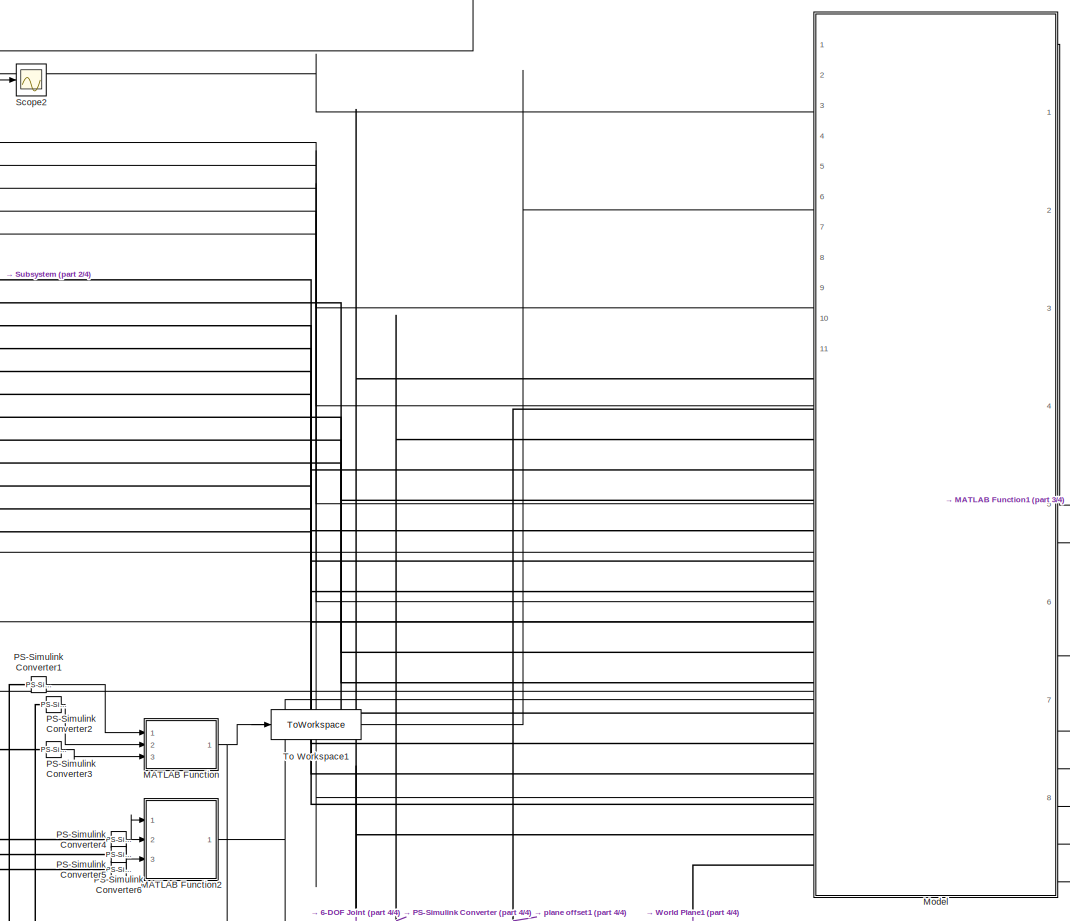
[diagram: root canvas - part 1/4, central region]
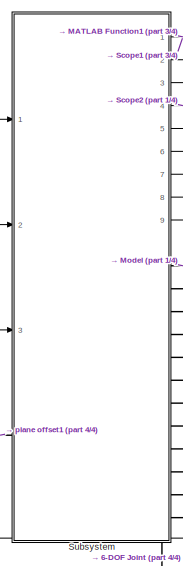
[diagram: root canvas - part 2/4, top left region]
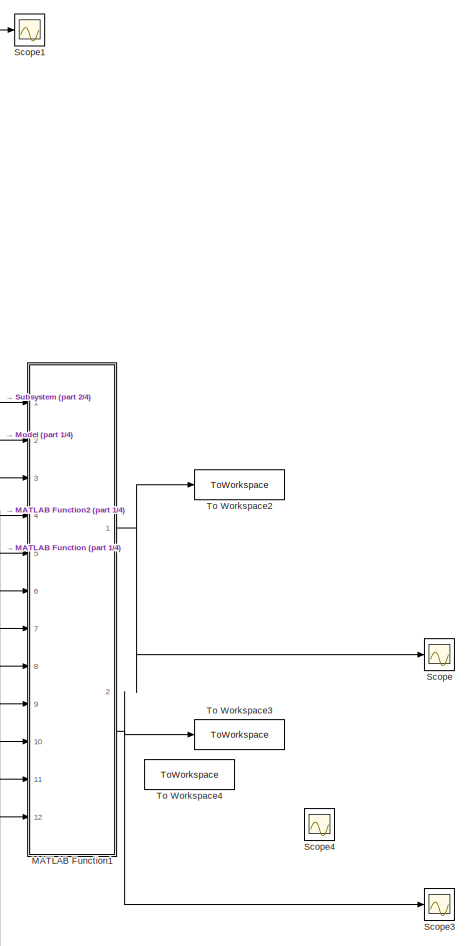
[diagram: root canvas - part 3/4, middle right region]
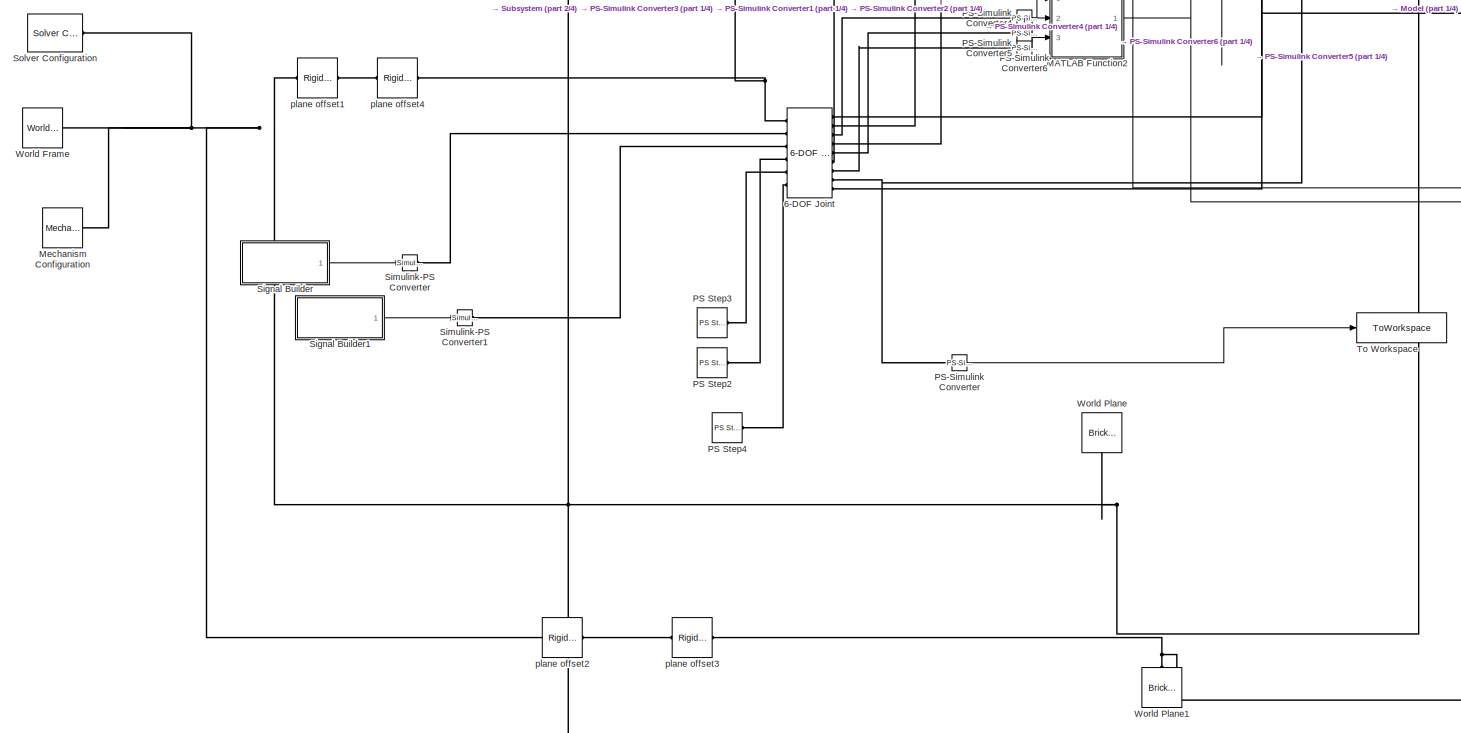
[diagram: root canvas - part 4/4, bottom left region]
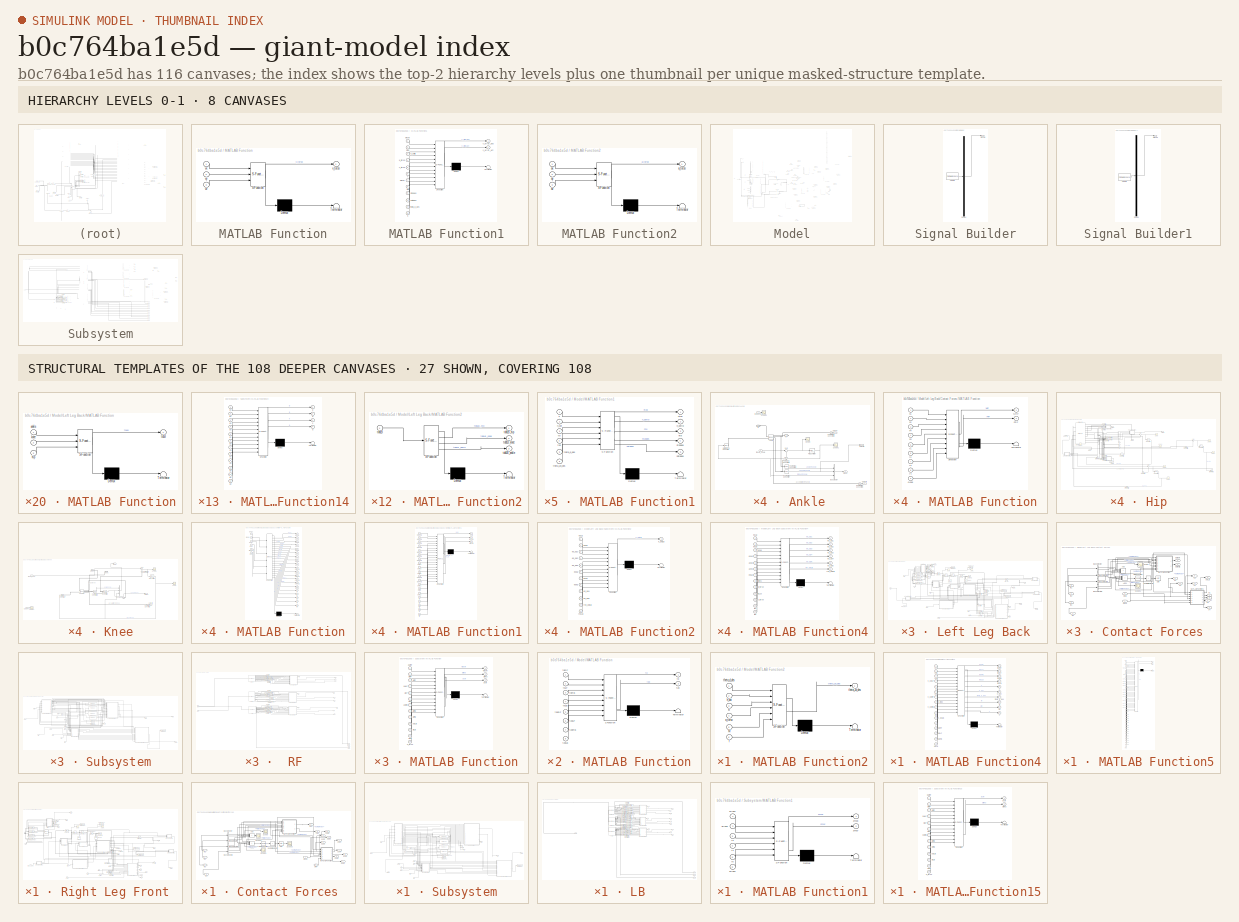
[diagram: thumbnail index - top-2 hierarchy levels (8 canvases) + 27 structural-template representatives of the remaining 108 canvases]
MODEL slx_b0c764ba1e5d
KIND model
CONFIG AbsTol = auto
CONFIG EnableMultiTasking = on
CONFIG FixedStep = 1e-3
CONFIG MaxStep = auto
CONFIG MinStep = auto
CONFIG RelTol = 1e-5
CONFIG SampleTimeConstraint = Unconstrained
CONFIG SolverName = ode15s
CONFIG StartTime = 0.0
CONFIG StopTime = 10
BLOCK [Reference] 6-DOF Joint  REF=sm_lib/Joints/6-DOF Joint
  Ports = [0, 0, 0, 0, 0, 6, 9]
  SourceBlock = sm_lib/Joints/6-DOF Joint
  SourceProductBaseCode = MS
  SourceType = 6-DOF Joint
BLOCK [SubSystem] MATLAB Function
  ErrorFcn = Stateflow.Translate.translate
  PermitHierarchicalResolution = ExplicitOnly
  Ports = [3, 1]
  RequestExecContextInheritance = off
  SFBlockType = MATLAB Function
  TreatAsAtomicUnit = on
BLOCK [Demux] MATLAB Function/ Demux 
  Outputs = 1
  Ports = [1, 1]
BLOCK [S-Function] MATLAB Function/ SFunction 
  EnableBusSupport = on
  FunctionName = sf_sfun
  PortCounts = [3 2]
  Ports = [3, 2]
  SFcnIsStateOwnerBlock = off
  SFunctionDeploymentMode = off
  Tag = Stateflow S-Function 14
BLOCK [Terminator] MATLAB Function/ Terminator 
BLOCK [Outport] MATLAB Function/v_torso
BLOCK [Inport] MATLAB Function/vx
BLOCK [Inport] MATLAB Function/vy
  Port = 2
BLOCK [Inport] MATLAB Function/vz
  Port = 3
BLOCK [SubSystem] MATLAB Function1
  ErrorFcn = Stateflow.Translate.translate
  PermitHierarchicalResolution = ExplicitOnly
  Ports = [12, 2]
  RequestExecContextInheritance = off
  SFBlockType = MATLAB Function
  TreatAsAtomicUnit = on
BLOCK [Demux] MATLAB Function1/ Demux 
  Outputs = 1
  Ports = [1, 1]
BLOCK [S-Function] MATLAB Function1/ SFunction 
  EnableBusSupport = on
  FunctionName = sf_sfun
  PortCounts = [12 3]
  Ports = [12, 3]
  SFcnIsStateOwnerBlock = off
  SFunctionDeploymentMode = off
  Tag = Stateflow S-Function 35
BLOCK [Terminator] MATLAB Function1/ Terminator 
BLOCK [Inport] MATLAB Function1/Macm
  Port = 7
BLOCK [Inport] MATLAB Function1/Mvcm
BLOCK [Inport] MATLAB Function1/a_torso
  Port = 4
BLOCK [Inport] MATLAB Function1/f
  Port = 6
BLOCK [Inport] MATLAB Function1/h
  Port = 12
BLOCK [Inport] MATLAB Function1/h_dottd
  Port = 3
BLOCK [Inport] MATLAB Function1/hdtddes
  Port = 10
BLOCK [Inport] MATLAB Function1/ht2d
  Port = 2
BLOCK [Inport] MATLAB Function1/ht2ddes
  Port = 9
BLOCK [Inport] MATLAB Function1/htd
  Port = 8
BLOCK [Inport] MATLAB Function1/theta_d_des
  Port = 11
BLOCK [Outport] MATLAB Function1/v_error_act
  Port = 2
BLOCK [Outport] MATLAB Function1/v_error_des
BLOCK [Inport] MATLAB Function1/v_torso
  Port = 5
BLOCK [SubSystem] MATLAB Function2
  ErrorFcn = Stateflow.Translate.translate
  PermitHierarchicalResolution = ExplicitOnly
  Ports = [3, 1]
  RequestExecContextInheritance = off
  SFBlockType = MATLAB Function
  TreatAsAtomicUnit = on
BLOCK [Demux] MATLAB Function2/ Demux 
  Outputs = 1
  Ports = [1, 1]
BLOCK [S-Function] MATLAB Function2/ SFunction 
  EnableBusSupport = on
  FunctionName = sf_sfun
  PortCounts = [3 2]
  Ports = [3, 2]
  SFcnIsStateOwnerBlock = off
  SFunctionDeploymentMode = off
  Tag = Stateflow S-Function 46
BLOCK [Terminator] MATLAB Function2/ Terminator 
BLOCK [Outport] MATLAB Function2/a_torso
BLOCK [Inport] MATLAB Function2/ax
BLOCK [Inport] MATLAB Function2/ay
  Port = 2
BLOCK [Inport] MATLAB Function2/az
  Port = 3
BLOCK [Reference] Mechanism Configuration  REF=sm_lib/Utilities/Mechanism
Configuration
  Ports = [0, 0, 0, 0, 0, 0, 1]
  SourceBlock = sm_lib/Utilities/Mechanism\nConfiguration
  SourceProductBaseCode = MS
  SourceType = Mechanism\nConfiguration
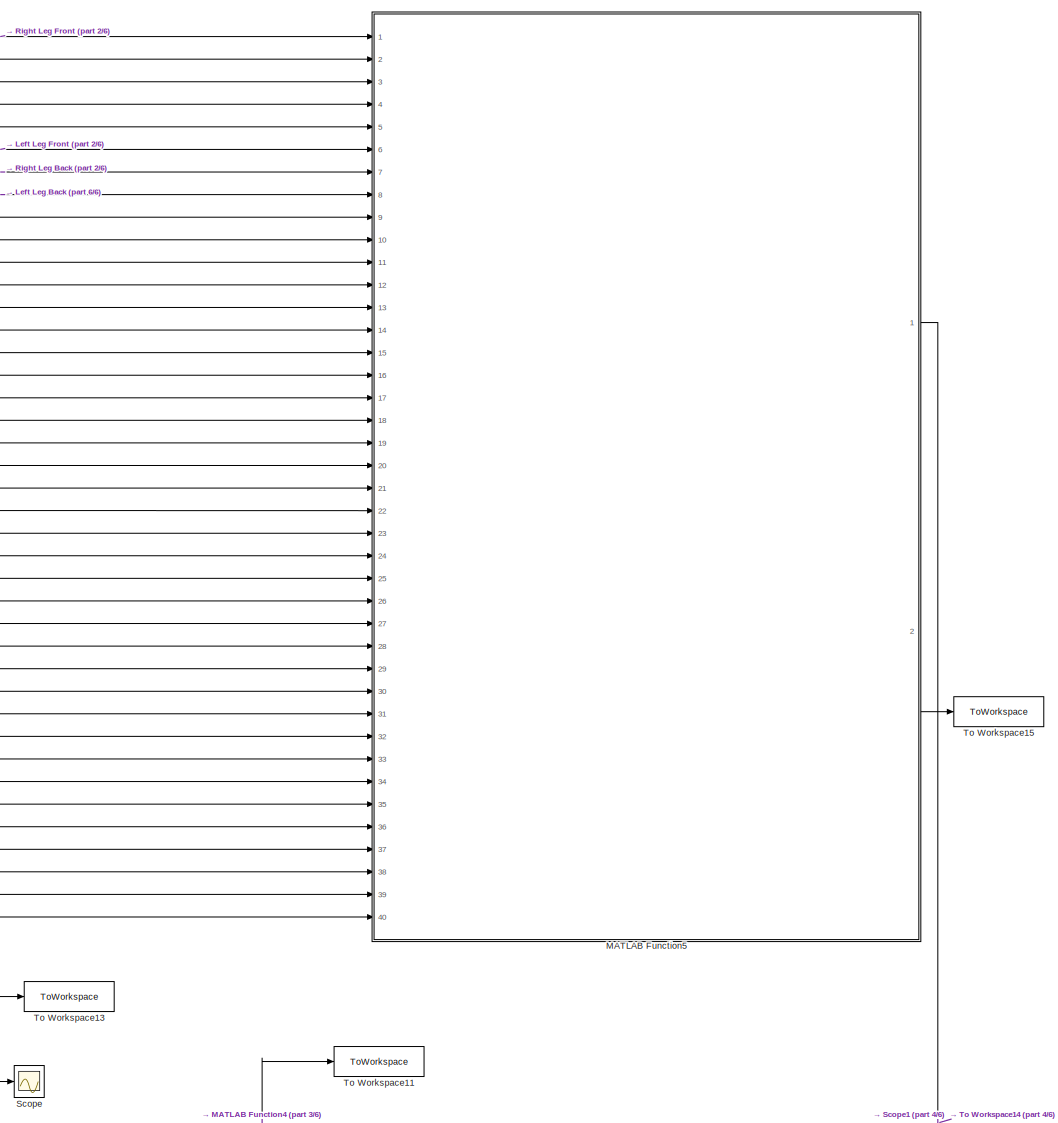
[diagram: Model - part 1/6, top right region]
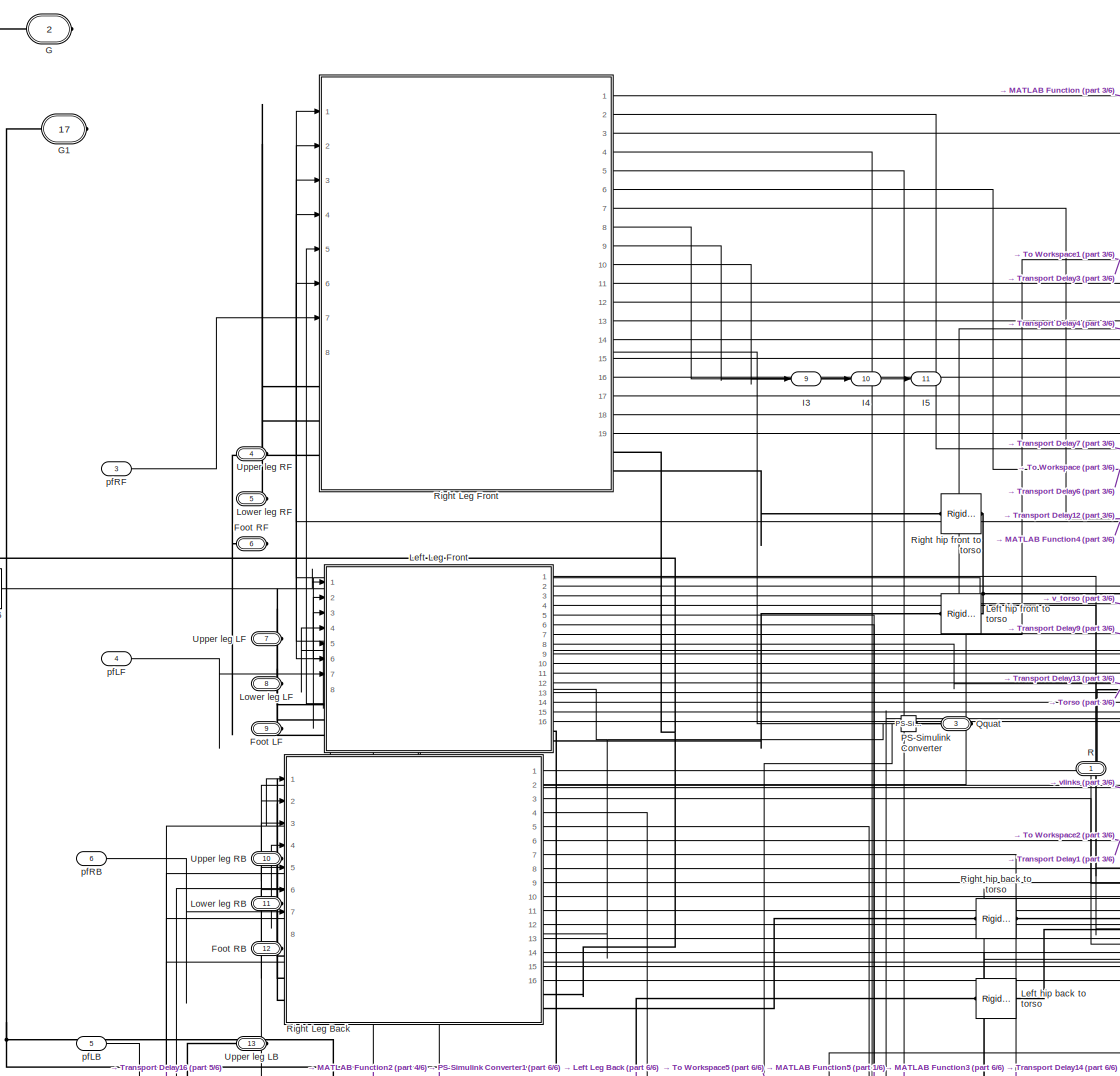
[diagram: Model - part 2/6, middle left region]
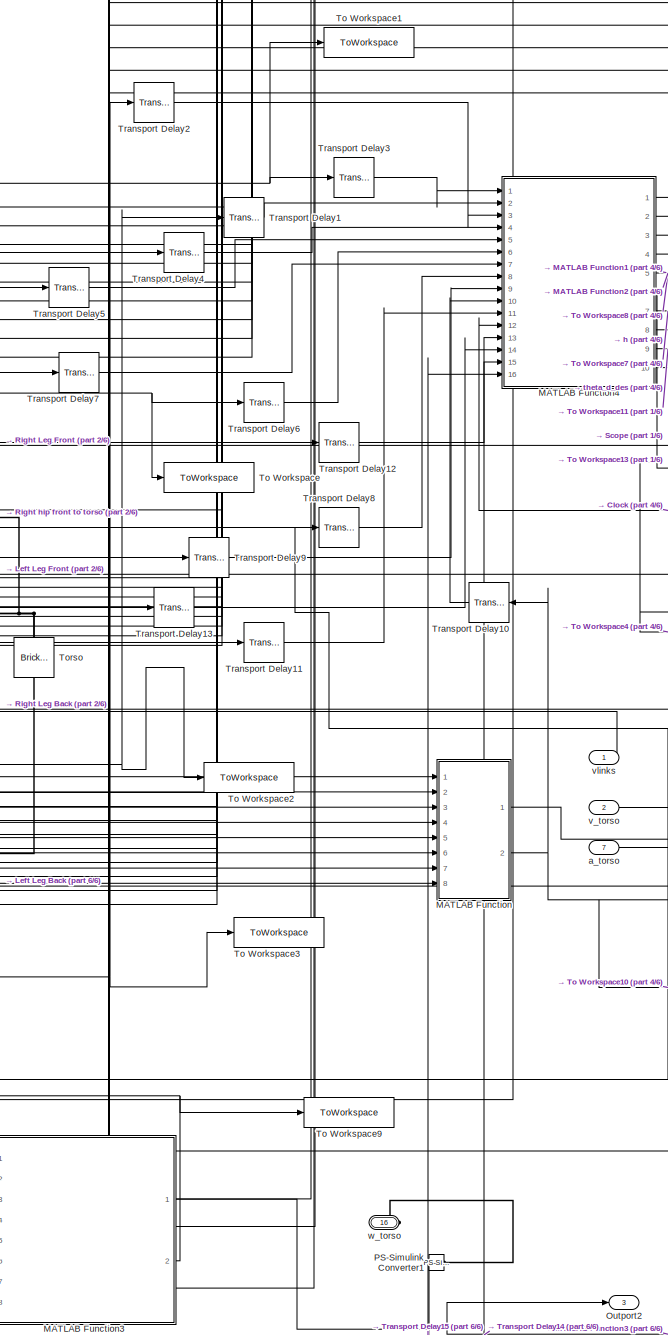
[diagram: Model - part 3/6, central region]
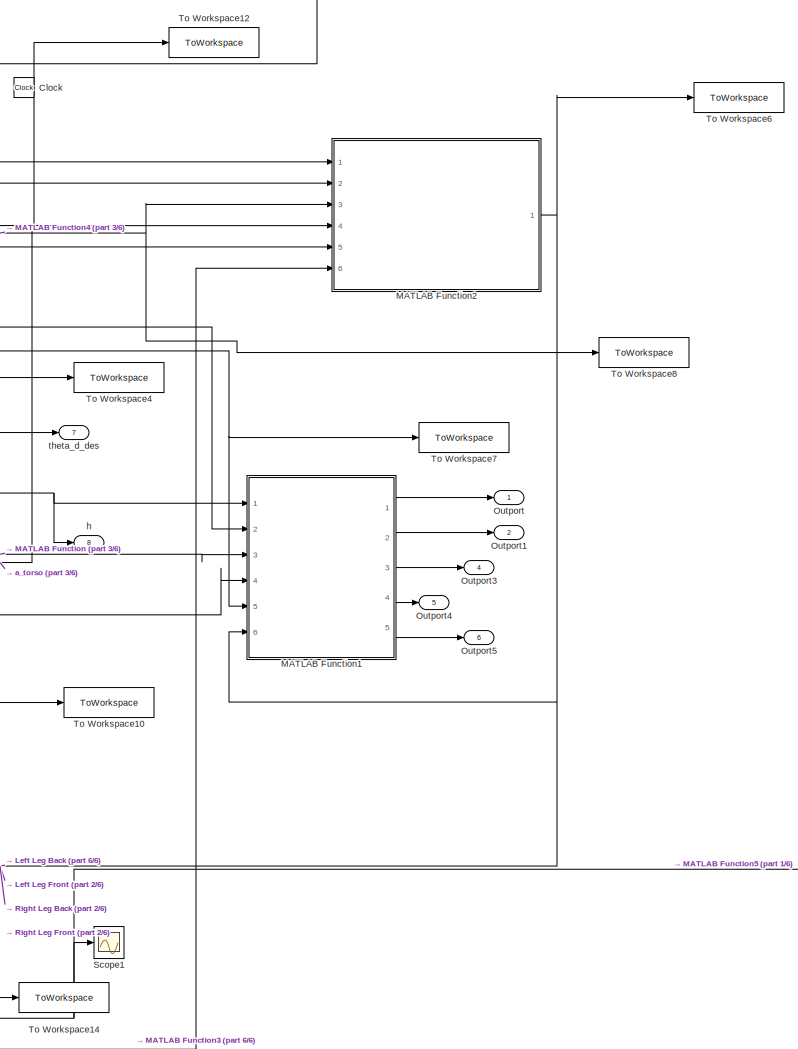
[diagram: Model - part 4/6, middle right region]
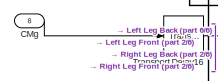
[diagram: Model - part 5/6, middle left region]
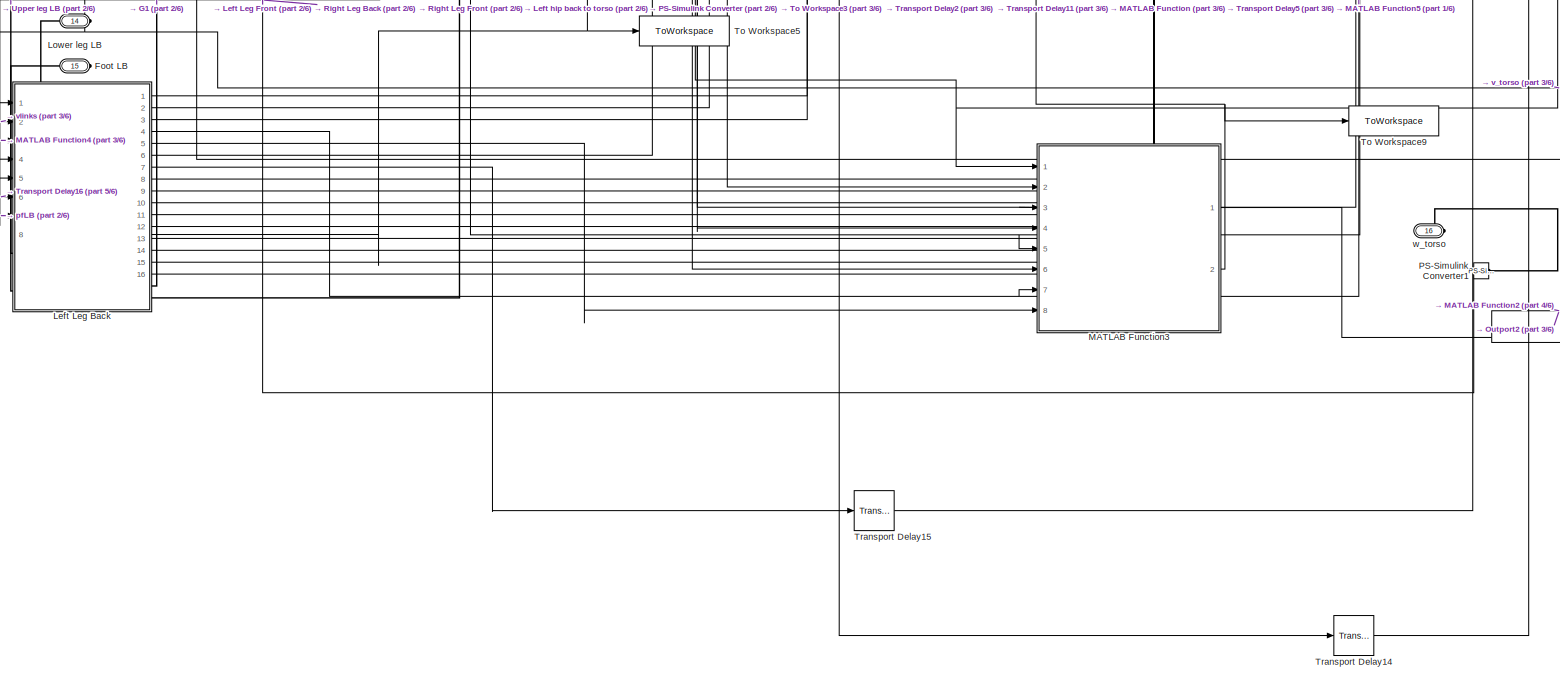
[diagram: Model - part 6/6, bottom center region]
BLOCK [SubSystem] Model
  PortSchema = {"entries":[{"content":{"sides":[{"content":{"connectorIds":["Out1","Out2","Out3","Out4","Out5","Out6","Out7","Out8","Out9","Out10","Out11"]},"type":"ConnectorPlacement.EquallySpacedRectSide","uuid":"648e0f1c-94fd-432d-b314-f859853b28dc"},{"content":{"connectorIds":["In1","In2","RConn1","In3","In4","In5","In6","RConn2","RConn3","RConn4","RConn5","RConn6","RConn7","RConn8","RConn9","RConn10","RConn...<+659ch>
  Ports = [8, 11, 0, 0, 0, 0, 17]
  RequestExecContextInheritance = off
BLOCK [Inport] Model/CMg
  Port = 8
BLOCK [Clock] Model/Clock
BLOCK [PMIOPort] Model/Foot LB
  Port = 15
  Side = Right
BLOCK [PMIOPort] Model/Foot LF
  Port = 9
  Side = Right
BLOCK [PMIOPort] Model/Foot RB
  Port = 12
  Side = Right
BLOCK [PMIOPort] Model/Foot RF
  Port = 6
  Side = Right
BLOCK [PMIOPort] Model/G
  Port = 2
  Side = Right
BLOCK [PMIOPort] Model/G1
  Port = 17
  Side = Right
BLOCK [Outport] Model/I3
  Port = 9
BLOCK [Outport] Model/I4
  Port = 10
BLOCK [Outport] Model/I5
  Port = 11
BLOCK [SubSystem] Model/Left Leg Back
  PortSchema = {"entries":[{"content":{"sides":[{"content":{"connectorIds":["LConn1","LConn2","In1","In2","LConn3","In3","In4","In5","In6","In7"]},"type":"ConnectorPlacement.EquallySpacedRectSide","uuid":"22ee734e-d516-4767-9dd7-a84a6d7499a1"},{"content":{"connectorIds":["Out1","Out2","Out3","Out4","Out5","Out6","Out7","Out8","Out9","Out10","Out11","Out12","Out13","Out14","Out15","Out16","In8","RConn1","RConn2"]...<+439ch>
  Ports = [8, 16, 0, 0, 0, 3, 2]
  RequestExecContextInheritance = off
BLOCK [SubSystem] Model/Left Leg Back/Ankle 
  PortSchema = {"entries":[{"content":{"sides":[{"content":{"connectorIds":["In1","LConn1","In2"]},"type":"ConnectorPlacement.EquallySpacedRectSide","uuid":"8820d672-3cef-4e81-999d-8ce69d7112c4"},{"content":{"connectorIds":["Out1","Out2","Out3","Out4","RConn1"],"side":"RIGHT"},"type":"ConnectorPlacement.EquallySpacedRectSide","uuid":"2ab010ff-dc37-45a7-8249-0a0b10f28039"},{"content":{"connectorIds":[],"side":"TO...<+285ch>  <repeated x4 — deduplicated; at blocks: Ankle>
  Ports = [2, 4, 0, 0, 0, 1, 1]
  RequestExecContextInheritance = off
BLOCK [Reference] Model/Left Leg Back/Ankle /Ankle  REF=sm_lib/Joints/Revolute Joint
  Ports = [0, 0, 0, 0, 0, 2, 4]
  SourceBlock = sm_lib/Joints/Revolute Joint
  SourceProductBaseCode = MS
  SourceType = Revolute Joint
BLOCK [PMIOPort] Model/Left Leg Back/Ankle /B
  Side = Left
BLOCK [BusCreator] Model/Left Leg Back/Ankle /Bus Creator
  DisplayOption = bar
  InheritFromInputs = on
  Inputs = 3
  Ports = [3, 1]
BLOCK [PMIOPort] Model/Left Leg Back/Ankle /F
  Port = 2
  Side = Right
BLOCK [Outport] Model/Left Leg Back/Ankle /Outport
  Port = 2
BLOCK [Outport] Model/Left Leg Back/Ankle /Outport1
  Port = 3
BLOCK [Outport] Model/Left Leg Back/Ankle /Outport2
  Port = 4
BLOCK [Reference] Model/Left Leg Back/Ankle /PID Controller  REF=pid_lib/PID Controller
  Ports = [1, 1]
  SourceBlock = pid_lib/PID Controller
  SourceProductBaseCode = SL
  SourceType = PID 1dof
BLOCK [Reference] Model/Left Leg Back/Ankle /PS-Simulink Converter  REF=nesl_utility/PS-Simulink
Converter
  NameLocation = top
  Ports = [0, 1, 0, 0, 0, 1]
  SourceBlock = nesl_utility/PS-Simulink\nConverter
  SourceProductBaseCode = PW,SS
  SourceType = PS-Simulink\nConverter
BLOCK [Reference] Model/Left Leg Back/Ankle /PS-Simulink Converter1  REF=nesl_utility/PS-Simulink
Converter
  Ports = [0, 1, 0, 0, 0, 1]
  SourceBlock = nesl_utility/PS-Simulink\nConverter
  SourceProductBaseCode = PW,SS
  SourceType = PS-Simulink\nConverter
BLOCK [Reference] Model/Left Leg Back/Ankle /PS-Simulink Converter2  REF=nesl_utility/PS-Simulink
Converter
  Ports = [0, 1, 0, 0, 0, 1]
  SourceBlock = nesl_utility/PS-Simulink\nConverter
  SourceProductBaseCode = PW,SS
  SourceType = PS-Simulink\nConverter
BLOCK [Reference] Model/Left Leg Back/Ankle /PS-Simulink Converter3  REF=nesl_utility/PS-Simulink
Converter
  Ports = [0, 1, 0, 0, 0, 1]
  SourceBlock = nesl_utility/PS-Simulink\nConverter
  SourceProductBaseCode = PW,SS
  SourceType = PS-Simulink\nConverter
BLOCK [Reference] Model/Left Leg Back/Ankle /PS-Simulink Converter4  REF=nesl_utility/PS-Simulink
Converter
  NameLocation = right
  Ports = [0, 1, 0, 0, 0, 1]
  SourceBlock = nesl_utility/PS-Simulink\nConverter
  SourceProductBaseCode = PW,SS
  SourceType = PS-Simulink\nConverter
BLOCK [Scope] Model/Left Leg Back/Ankle /Scope
  Floating = off
  NumInputPorts = 1
  Ports = [1]
  ScopeSpecificationString = Simulink.scopes.TimeScopeBlockCfg('CurrentConfiguration', extmgr.ConfigurationSet(extmgr.Configuration('Core','General UI',true),extmgr.Configuration('Core','Source UI',true),extmgr.Configuration('Sources','WiredSimulink',true,'DataLoggingVariableName','ScopeData1'),extmgr.Configuration('Visuals','Time Domain',true,'SerializedDisplays',{struct('MinYLimReal','-50.74829','MaxYLimReal','52.50975','YL...<+1387ch>  <repeated x4 — deduplicated; at blocks: Scope>
BLOCK [Scope] Model/Left Leg Back/Ankle /Scope1
  Floating = off
  NumInputPorts = 1
  Ports = [1]
  ScopeSpecificationString = Simulink.scopes.TimeScopeBlockCfg('CurrentConfiguration', extmgr.ConfigurationSet(extmgr.Configuration('Core','General UI',true),extmgr.Configuration('Core','Source UI',true),extmgr.Configuration('Sources','WiredSimulink',true,'DataLoggingVariableName','ScopeData2'),extmgr.Configuration('Visuals','Time Domain',true,'SerializedDisplays',{struct('MinYLimReal','-20516.67305','MaxYLimReal','25733.4016...<+1402ch>  <repeated x4 — deduplicated; at blocks: Scope1>
BLOCK [Scope] Model/Left Leg Back/Ankle /Scope2
  Floating = off
  NumInputPorts = 1
  Ports = [1]
  ScopeSpecificationString = Simulink.scopes.TimeScopeBlockCfg('CurrentConfiguration', extmgr.ConfigurationSet(extmgr.Configuration('Core','General UI',true),extmgr.Configuration('Core','Source UI',true),extmgr.Configuration('Sources','WiredSimulink',true,'DataLoggingVariableName','ScopeData4'),extmgr.Configuration('Visuals','Time Domain',true),extmgr.Configuration('Tools','Plot Navigation',true),extmgr.Configuration('Tools',...<+40ch>  <repeated x4 — deduplicated; at blocks: Scope2>
BLOCK [Reference] Model/Left Leg Back/Ankle /Simulink-PS Converter  REF=nesl_utility/Simulink-PS
Converter
  Ports = [1, 0, 0, 0, 0, 0, 1]
  SourceBlock = nesl_utility/Simulink-PS\nConverter
  SourceProductBaseCode = PW,SS
  SourceType = Simulink-PS\nConverter
BLOCK [Sum] Model/Left Leg Back/Ankle /Sum
  Inputs = |+-
  Ports = [2, 1]
BLOCK [Outport] Model/Left Leg Back/Ankle /meas
  VectorParamsAs1DForOutWhenUnconnected = off
BLOCK [Inport] Model/Left Leg Back/Ankle /t2ddankle
  Port = 2
BLOCK [Inport] Model/Left Leg Back/Ankle /tddLB_ankle
BLOCK [Reference] Model/Left Leg Back/Ankle to Lower Leg  REF=sm_lib/Frames and
Transforms/Rigid
Transform
  Ports = [0, 0, 0, 0, 0, 1, 1]
  SourceBlock = sm_lib/Frames and\nTransforms/Rigid\nTransform
  SourceProductBaseCode = MS
  SourceType = Rigid\nTransform
BLOCK [Inport] Model/Left Leg Back/CMg
  Port = 6
BLOCK [SubSystem] Model/Left Leg Back/Contact Forces 
  Ports = [6, 11]
  RequestExecContextInheritance = off
BLOCK [Sum] Model/Left Leg Back/Contact Forces /Add
  IconShape = rectangular
  Inputs = ++++
  Ports = [4, 1]
BLOCK [Sum] Model/Left Leg Back/Contact Forces /Add1
  IconShape = rectangular
  Inputs = ++++
  Ports = [4, 1]
BLOCK [BusSelector] Model/Left Leg Back/Contact Forces /Bus Selector
  OutputSignals = Normal Force,Friction Force
  Ports = [1, 2]
BLOCK [BusSelector] Model/Left Leg Back/Contact Forces /Bus Selector1
  OutputSignals = Normal Force,Friction Force
  Ports = [1, 2]
BLOCK [BusSelector] Model/Left Leg Back/Contact Forces /Bus Selector2
  OutputSignals = Normal Force,Friction Force
  Ports = [1, 2]
BLOCK [BusSelector] Model/Left Leg Back/Contact Forces /Bus Selector3
  OutputSignals = Normal Force,Friction Force
  Ports = [1, 2]
BLOCK [Inport] Model/Left Leg Back/Contact Forces /In1
BLOCK [Inport] Model/Left Leg Back/Contact Forces /In2
  Port = 2
BLOCK [Inport] Model/Left Leg Back/Contact Forces /In3
  Port = 3
BLOCK [Inport] Model/Left Leg Back/Contact Forces /In4
  Port = 6
BLOCK [SubSystem] Model/Left Leg Back/Contact Forces /MATLAB Function
  ErrorFcn = Stateflow.Translate.translate
  PermitHierarchicalResolution = ExplicitOnly
  Ports = [9, 2]
  RequestExecContextInheritance = off
  SFBlockType = MATLAB Function
  TreatAsAtomicUnit = on
BLOCK [Demux] Model/Left Leg Back/Contact Forces /MATLAB Function/ Demux 
  Outputs = 1
  Ports = [1, 1]
BLOCK [S-Function] Model/Left Leg Back/Contact Forces /MATLAB Function/ SFunction 
  EnableBusSupport = on
  FunctionName = sf_sfun
  PortCounts = [9 3]
  Ports = [9, 3]
  SFcnIsStateOwnerBlock = off
  SFunctionDeploymentMode = off
  Tag = Stateflow S-Function 8
BLOCK [Terminator] Model/Left Leg Back/Contact Forces /MATLAB Function/ Terminator 
BLOCK [Outport] Model/Left Leg Back/Contact Forces /MATLAB Function/FRF
  Port = 2
BLOCK [Outport] Model/Left Leg Back/Contact Forces /MATLAB Function/NRF
BLOCK [Inport] Model/Left Leg Back/Contact Forces /MATLAB Function/Qd3g
  Port = 9
BLOCK [Inport] Model/Left Leg Back/Contact Forces /MATLAB Function/f1
  Port = 5
BLOCK [Inport] Model/Left Leg Back/Contact Forces /MATLAB Function/f2
  Port = 6
BLOCK [Inport] Model/Left Leg Back/Contact Forces /MATLAB Function/f3
  Port = 7
BLOCK [Inport] Model/Left Leg Back/Contact Forces /MATLAB Function/f4
  Port = 8
BLOCK [Inport] Model/Left Leg Back/Contact Forces /MATLAB Function/n1
BLOCK [Inport] Model/Left Leg Back/Contact Forces /MATLAB Function/n2
  Port = 2
BLOCK [Inport] Model/Left Leg Back/Contact Forces /MATLAB Function/n3
  Port = 4
BLOCK [Inport] Model/Left Leg Back/Contact Forces /MATLAB Function/n4
  Port = 3
BLOCK [SubSystem] Model/Left Leg Back/Contact Forces /MATLAB Function1
  ErrorFcn = Stateflow.Translate.translate
  PermitHierarchicalResolution = ExplicitOnly
  Ports = [6, 5]
  RequestExecContextInheritance = off
  SFBlockType = MATLAB Function
  TreatAsAtomicUnit = on
BLOCK [Demux] Model/Left Leg Back/Contact Forces /MATLAB Function1/ Demux 
  Outputs = 1
  Ports = [1, 1]
BLOCK [S-Function] Model/Left Leg Back/Contact Forces /MATLAB Function1/ SFunction 
  EnableBusSupport = on
  FunctionName = sf_sfun
  PortCounts = [6 6]
  Ports = [6, 6]
  SFcnIsStateOwnerBlock = off
  SFunctionDeploymentMode = off
  Tag = Stateflow S-Function 82
BLOCK [Terminator] Model/Left Leg Back/Contact Forces /MATLAB Function1/ Terminator 
BLOCK [Inport] Model/Left Leg Back/Contact Forces /MATLAB Function1/Qd5g
  Port = 5
BLOCK [Inport] Model/Left Leg Back/Contact Forces /MATLAB Function1/n1
BLOCK [Inport] Model/Left Leg Back/Contact Forces /MATLAB Function1/n2
  Port = 2
BLOCK [Inport] Model/Left Leg Back/Contact Forces /MATLAB Function1/n3
  Port = 3
BLOCK [Inport] Model/Left Leg Back/Contact Forces /MATLAB Function1/n4
  Port = 4
BLOCK [Outport] Model/Left Leg Back/Contact Forces /MATLAB Function1/p1
  Port = 2
BLOCK [Outport] Model/Left Leg Back/Contact Forces /MATLAB Function1/p2
  Port = 3
BLOCK [Outport] Model/Left Leg Back/Contact Forces /MATLAB Function1/p3
  Port = 4
BLOCK [Outport] Model/Left Leg Back/Contact Forces /MATLAB Function1/p4
  Port = 5
BLOCK [Outport] Model/Left Leg Back/Contact Forces /MATLAB Function1/pNLB
BLOCK [Inport] Model/Left Leg Back/Contact Forces /MATLAB Function1/pfLB
  Port = 6
BLOCK [Math] Model/Left Leg Back/Contact Forces /Math Function
  Operator = square
  Ports = [1, 1]
  SignedPower = on
BLOCK [Outport] Model/Left Leg Back/Contact Forces /Outport
BLOCK [Outport] Model/Left Leg Back/Contact Forces /Outport1
  Port = 2
BLOCK [Inport] Model/Left Leg Back/Contact Forces /Qd3g
  Port = 5
BLOCK [Scope] Model/Left Leg Back/Contact Forces /Scope
  Floating = off
  NumInputPorts = 1
  Ports = [1]
  ScopeSpecificationString = Simulink.scopes.TimeScopeBlockCfg('CurrentConfiguration', extmgr.ConfigurationSet(extmgr.Configuration('Core','General UI',true),extmgr.Configuration('Core','Source UI',true),extmgr.Configuration('Sources','WiredSimulink',true,'DataLoggingVariableName','ScopeData1'),extmgr.Configuration('Visuals','Time Domain',true,'SerializedDisplays',{struct('MinYLimReal','1.13436','MaxYLimReal','4.67734','YLabe...<+1371ch>  <repeated x4 — deduplicated; at blocks: Scope>
BLOCK [Scope] Model/Left Leg Back/Contact Forces /Scope1
  Floating = off
  NumInputPorts = 1
  Ports = [1]
  ScopeSpecificationString = Simulink.scopes.TimeScopeBlockCfg('CurrentConfiguration', extmgr.ConfigurationSet(extmgr.Configuration('Core','General UI',true),extmgr.Configuration('Core','Source UI',true),extmgr.Configuration('Sources','WiredSimulink',true,'DataLoggingVariableName','ScopeData2'),extmgr.Configuration('Visuals','Time Domain',true,'SerializedDisplays',{struct('MinYLimReal','-0.01466','MaxYLimReal','0.13197','YLab...<+1540ch>  <repeated x4 — deduplicated; at blocks: Scope1>
BLOCK [Sqrt] Model/Left Leg Back/Contact Forces /Sqrt
BLOCK [Sum] Model/Left Leg Back/Contact Forces /Sum of Elements
  IconShape = rectangular
  Inputs = +
  Ports = [1, 1]
BLOCK [Outport] Model/Left Leg Back/Contact Forces /n1
  Port = 8
BLOCK [Outport] Model/Left Leg Back/Contact Forces /n2
  Port = 9
BLOCK [Outport] Model/Left Leg Back/Contact Forces /n3
  Port = 10
BLOCK [Outport] Model/Left Leg Back/Contact Forces /n4
  Port = 11
BLOCK [Outport] Model/Left Leg Back/Contact Forces /p1
  Port = 4
BLOCK [Outport] Model/Left Leg Back/Contact Forces /p2
  Port = 5
BLOCK [Outport] Model/Left Leg Back/Contact Forces /p3
  Port = 6
BLOCK [Outport] Model/Left Leg Back/Contact Forces /p4
  Port = 7
BLOCK [Outport] Model/Left Leg Back/Contact Forces /pNLB
  Port = 3
BLOCK [Inport] Model/Left Leg Back/Contact Forces /pfLB
  Port = 4
BLOCK [Reference] Model/Left Leg Back/Foot  REF=sm_lib/Body Elements/Brick Solid
  Ports = [0, 0, 0, 0, 0, 3, 2]
  SourceBlock = sm_lib/Body Elements/Brick Solid
  SourceProductBaseCode = MS
  SourceType = Brick Solid
BLOCK [PMIOPort] Model/Left Leg Back/Foot RB
  NameLocation = top
  Port = 3
  Side = Left
BLOCK [Reference] Model/Left Leg Back/Foot to Ankle  REF=sm_lib/Frames and
Transforms/Rigid
Transform
  Ports = [0, 0, 0, 0, 0, 1, 1]
  SourceBlock = sm_lib/Frames and\nTransforms/Rigid\nTransform
  SourceProductBaseCode = MS
  SourceType = Rigid\nTransform
BLOCK [PMIOPort] Model/Left Leg Back/G 
  Port = 4
  Side = Right
BLOCK [PMIOPort] Model/Left Leg Back/H
  Port = 5
  Side = Right
BLOCK [SubSystem] Model/Left Leg Back/Hip
  PortSchema = {"entries":[{"content":{"sides":[{"content":{"connectorIds":["In1","In2"]},"type":"ConnectorPlacement.EquallySpacedRectSide","uuid":"3c672348-e331-4589-83a8-aa84cb04ec22"},{"content":{"connectorIds":["Out1","Out2","Out3","RConn1","RConn2","RConn3","RConn4"],"side":"RIGHT"},"type":"ConnectorPlacement.EquallySpacedRectSide","uuid":"0cc20eac-f861-4ef7-921b-23889a7eea47"},{"content":{"connectorIds":["...<+304ch>  <repeated x4 — deduplicated; at blocks: Hip>
  Ports = [2, 3, 0, 0, 0, 1, 4]
  RequestExecContextInheritance = off
BLOCK [Reference] Model/Left Leg Back/Hip to Torso  REF=sm_lib/Frames and
Transforms/Rigid
Transform
  Ports = [0, 0, 0, 0, 0, 1, 1]
  SourceBlock = sm_lib/Frames and\nTransforms/Rigid\nTransform
  SourceProductBaseCode = MS
  SourceType = Rigid\nTransform
BLOCK [PMIOPort] Model/Left Leg Back/Hip/Conn1
  Side = Left
BLOCK [PMIOPort] Model/Left Leg Back/Hip/Conn2
  Port = 2
  Side = Right
BLOCK [Reference] Model/Left Leg Back/Hip/Gimbal Joint  REF=sm_lib/Joints/Gimbal Joint
  Ports = [0, 0, 0, 0, 0, 4, 10]
  SourceBlock = sm_lib/Joints/Gimbal Joint
  SourceProductBaseCode = MS
  SourceType = Gimbal Joint
BLOCK [SubSystem] Model/Left Leg Back/Hip/MATLAB Function
  ErrorFcn = Stateflow.Translate.translate
  PermitHierarchicalResolution = ExplicitOnly
  Ports = [3, 1]
  RequestExecContextInheritance = off
  SFBlockType = MATLAB Function
  TreatAsAtomicUnit = on
BLOCK [Demux] Model/Left Leg Back/Hip/MATLAB Function/ Demux 
  Outputs = 1
  Ports = [1, 1]
BLOCK [S-Function] Model/Left Leg Back/Hip/MATLAB Function/ SFunction 
  EnableBusSupport = on
  FunctionName = sf_sfun
  PortCounts = [3 2]
  Ports = [3, 2]
  SFcnIsStateOwnerBlock = off
  SFunctionDeploymentMode = off
  Tag = Stateflow S-Function 13
BLOCK [Terminator] Model/Left Leg Back/Hip/MATLAB Function/ Terminator 
BLOCK [Outport] Model/Left Leg Back/Hip/MATLAB Function/hip
BLOCK [Inport] Model/Left Leg Back/Hip/MATLAB Function/qx
BLOCK [Inport] Model/Left Leg Back/Hip/MATLAB Function/qy
  Port = 2
BLOCK [Inport] Model/Left Leg Back/Hip/MATLAB Function/qz
  Port = 3
BLOCK [SubSystem] Model/Left Leg Back/Hip/MATLAB Function1
  ErrorFcn = Stateflow.Translate.translate
  PermitHierarchicalResolution = ExplicitOnly
  Ports = [3, 1]
  RequestExecContextInheritance = off
  SFBlockType = MATLAB Function
  TreatAsAtomicUnit = on
BLOCK [Demux] Model/Left Leg Back/Hip/MATLAB Function1/ Demux 
  Outputs = 1
  Ports = [1, 1]
BLOCK [S-Function] Model/Left Leg Back/Hip/MATLAB Function1/ SFunction 
  EnableBusSupport = on
  FunctionName = sf_sfun
  PortCounts = [3 2]
  Ports = [3, 2]
  SFcnIsStateOwnerBlock = off
  SFunctionDeploymentMode = off
  Tag = Stateflow S-Function 18
BLOCK [Terminator] Model/Left Leg Back/Hip/MATLAB Function1/ Terminator 
BLOCK [Outport] Model/Left Leg Back/Hip/MATLAB Function1/hip
BLOCK [Inport] Model/Left Leg Back/Hip/MATLAB Function1/wx
BLOCK [Inport] Model/Left Leg Back/Hip/MATLAB Function1/wy
  Port = 2
BLOCK [Inport] Model/Left Leg Back/Hip/MATLAB Function1/wz
  Port = 3
BLOCK [SubSystem] Model/Left Leg Back/Hip/MATLAB Function2
  ErrorFcn = Stateflow.Translate.translate
  PermitHierarchicalResolution = ExplicitOnly
  Ports = [1, 3]
  RequestExecContextInheritance = off
  SFBlockType = MATLAB Function
  TreatAsAtomicUnit = on
BLOCK [Demux] Model/Left Leg Back/Hip/MATLAB Function2/ Demux 
  Outputs = 1
  Ports = [1, 1]
BLOCK [S-Function] Model/Left Leg Back/Hip/MATLAB Function2/ SFunction 
  EnableBusSupport = on
  FunctionName = sf_sfun
  PortCounts = [1 4]
  Ports = [1, 4]
  SFcnIsStateOwnerBlock = off
  SFunctionDeploymentMode = off
  Tag = Stateflow S-Function 32
BLOCK [Terminator] Model/Left Leg Back/Hip/MATLAB Function2/ Terminator 
BLOCK [Inport] Model/Left Leg Back/Hip/MATLAB Function2/tddRF
BLOCK [Outport] Model/Left Leg Back/Hip/MATLAB Function2/tddRFx
BLOCK [Outport] Model/Left Leg Back/Hip/MATLAB Function2/tddRFy
  Port = 2
BLOCK [Outport] Model/Left Leg Back/Hip/MATLAB Function2/tddRFz
  Port = 3
BLOCK [SubSystem] Model/Left Leg Back/Hip/MATLAB Function3
  ErrorFcn = Stateflow.Translate.translate
  PermitHierarchicalResolution = ExplicitOnly
  Ports = [3, 1]
  RequestExecContextInheritance = off
  SFBlockType = MATLAB Function
  TreatAsAtomicUnit = on
BLOCK [Demux] Model/Left Leg Back/Hip/MATLAB Function3/ Demux 
  Outputs = 1
  Ports = [1, 1]
BLOCK [S-Function] Model/Left Leg Back/Hip/MATLAB Function3/ SFunction 
  EnableBusSupport = on
  FunctionName = sf_sfun
  PortCounts = [3 2]
  Ports = [3, 2]
  SFcnIsStateOwnerBlock = off
  SFunctionDeploymentMode = off
  Tag = Stateflow S-Function 42
BLOCK [Terminator] Model/Left Leg Back/Hip/MATLAB Function3/ Terminator 
BLOCK [Inport] Model/Left Leg Back/Hip/MATLAB Function3/bx
BLOCK [Inport] Model/Left Leg Back/Hip/MATLAB Function3/by
  Port = 2
BLOCK [Inport] Model/Left Leg Back/Hip/MATLAB Function3/bz
  Port = 3
BLOCK [Outport] Model/Left Leg Back/Hip/MATLAB Function3/hip
BLOCK [Outport] Model/Left Leg Back/Hip/Outport
  Port = 3
BLOCK [Outport] Model/Left Leg Back/Hip/Outport1
  Port = 2
BLOCK [Outport] Model/Left Leg Back/Hip/Outport2
BLOCK [Reference] Model/Left Leg Back/Hip/PID Controller  REF=pid_lib/PID Controller
  Ports = [1, 1]
  SourceBlock = pid_lib/PID Controller
  SourceProductBaseCode = SL
  SourceType = PID 1dof
BLOCK [Reference] Model/Left Leg Back/Hip/PID Controller1  REF=pid_lib/PID Controller
  Ports = [1, 1]
  SourceBlock = pid_lib/PID Controller
  SourceProductBaseCode = SL
  SourceType = PID 1dof
BLOCK [Reference] Model/Left Leg Back/Hip/PID Controller2  REF=pid_lib/PID Controller
  Ports = [1, 1]
  SourceBlock = pid_lib/PID Controller
  SourceProductBaseCode = SL
  SourceType = PID 1dof
BLOCK [Reference] Model/Left Leg Back/Hip/PS-Simulink Converter  REF=nesl_utility/PS-Simulink
Converter
  Ports = [0, 1, 0, 0, 0, 1]
  SourceBlock = nesl_utility/PS-Simulink\nConverter
  SourceProductBaseCode = PW,SS
  SourceType = PS-Simulink\nConverter
BLOCK [Reference] Model/Left Leg Back/Hip/PS-Simulink Converter1  REF=nesl_utility/PS-Simulink
Converter
  Ports = [0, 1, 0, 0, 0, 1]
  SourceBlock = nesl_utility/PS-Simulink\nConverter
  SourceProductBaseCode = PW,SS
  SourceType = PS-Simulink\nConverter
BLOCK [Reference] Model/Left Leg Back/Hip/PS-Simulink Converter10  REF=nesl_utility/PS-Simulink
Converter
  Ports = [0, 1, 0, 0, 0, 1]
  SourceBlock = nesl_utility/PS-Simulink\nConverter
  SourceProductBaseCode = PW,SS
  SourceType = PS-Simulink\nConverter
BLOCK [Reference] Model/Left Leg Back/Hip/PS-Simulink Converter11  REF=nesl_utility/PS-Simulink
Converter
  NameLocation = right
  Ports = [0, 1, 0, 0, 0, 1]
  SourceBlock = nesl_utility/PS-Simulink\nConverter
  SourceProductBaseCode = PW,SS
  SourceType = PS-Simulink\nConverter
BLOCK [Reference] Model/Left Leg Back/Hip/PS-Simulink Converter2  REF=nesl_utility/PS-Simulink
Converter
  Ports = [0, 1, 0, 0, 0, 1]
  SourceBlock = nesl_utility/PS-Simulink\nConverter
  SourceProductBaseCode = PW,SS
  SourceType = PS-Simulink\nConverter
BLOCK [Reference] Model/Left Leg Back/Hip/PS-Simulink Converter3  REF=nesl_utility/PS-Simulink
Converter
  Ports = [0, 1, 0, 0, 0, 1]
  SourceBlock = nesl_utility/PS-Simulink\nConverter
  SourceProductBaseCode = PW,SS
  SourceType = PS-Simulink\nConverter
BLOCK [Reference] Model/Left Leg Back/Hip/PS-Simulink Converter4  REF=nesl_utility/PS-Simulink
Converter
  Ports = [0, 1, 0, 0, 0, 1]
  SourceBlock = nesl_utility/PS-Simulink\nConverter
  SourceProductBaseCode = PW,SS
  SourceType = PS-Simulink\nConverter
BLOCK [Reference] Model/Left Leg Back/Hip/PS-Simulink Converter5  REF=nesl_utility/PS-Simulink
Converter
  Ports = [0, 1, 0, 0, 0, 1]
  SourceBlock = nesl_utility/PS-Simulink\nConverter
  SourceProductBaseCode = PW,SS
  SourceType = PS-Simulink\nConverter
BLOCK [Reference] Model/Left Leg Back/Hip/PS-Simulink Converter6  REF=nesl_utility/PS-Simulink
Converter
  Ports = [0, 1, 0, 0, 0, 1]
  SourceBlock = nesl_utility/PS-Simulink\nConverter
  SourceProductBaseCode = PW,SS
  SourceType = PS-Simulink\nConverter
BLOCK [Reference] Model/Left Leg Back/Hip/PS-Simulink Converter7  REF=nesl_utility/PS-Simulink
Converter
  Ports = [0, 1, 0, 0, 0, 1]
  SourceBlock = nesl_utility/PS-Simulink\nConverter
  SourceProductBaseCode = PW,SS
  SourceType = PS-Simulink\nConverter
BLOCK [Reference] Model/Left Leg Back/Hip/PS-Simulink Converter8  REF=nesl_utility/PS-Simulink
Converter
  Ports = [0, 1, 0, 0, 0, 1]
  SourceBlock = nesl_utility/PS-Simulink\nConverter
  SourceProductBaseCode = PW,SS
  SourceType = PS-Simulink\nConverter
BLOCK [Reference] Model/Left Leg Back/Hip/PS-Simulink Converter9  REF=nesl_utility/PS-Simulink
Converter
  Ports = [0, 1, 0, 0, 0, 1]
  SourceBlock = nesl_utility/PS-Simulink\nConverter
  SourceProductBaseCode = PW,SS
  SourceType = PS-Simulink\nConverter
BLOCK [Scope] Model/Left Leg Back/Hip/Scope
  Floating = off
  NumInputPorts = 1
  Ports = [1]
  ScopeSpecificationString = Simulink.scopes.TimeScopeBlockCfg('CurrentConfiguration', extmgr.ConfigurationSet(extmgr.Configuration('Core','General UI',true),extmgr.Configuration('Core','Source UI',true),extmgr.Configuration('Sources','WiredSimulink',true,'DataLoggingVariableName','ScopeData5'),extmgr.Configuration('Visuals','Time Domain',true,'SerializedDisplays',{struct('MinYLimReal','-4.97156','MaxYLimReal','2.83845','YLab...<+1362ch>  <repeated x4 — deduplicated; at blocks: Scope>
BLOCK [Scope] Model/Left Leg Back/Hip/Scope1
  Floating = off
  NumInputPorts = 1
  Ports = [1]
  ScopeSpecificationString = Simulink.scopes.TimeScopeBlockCfg('CurrentConfiguration', extmgr.ConfigurationSet(extmgr.Configuration('Core','General UI',true),extmgr.Configuration('Core','Source UI',true),extmgr.Configuration('Sources','WiredSimulink',true,'DataLoggingVariableName','ScopeData6'),extmgr.Configuration('Visuals','Time Domain',true,'SerializedDisplays',{struct('MinYLimReal','-0.04079','MaxYLimReal','0.37302','YLab...<+1370ch>  <repeated x4 — deduplicated; at blocks: Scope1>
BLOCK [Scope] Model/Left Leg Back/Hip/Scope2
  Floating = off
  NumInputPorts = 1
  Ports = [1]
  ScopeSpecificationString = Simulink.scopes.TimeScopeBlockCfg('CurrentConfiguration', extmgr.ConfigurationSet(extmgr.Configuration('Core','General UI',true),extmgr.Configuration('Core','Source UI',true),extmgr.Configuration('Sources','WiredSimulink',true,'DataLoggingVariableName','ScopeData6'),extmgr.Configuration('Visuals','Time Domain',true),extmgr.Configuration('Tools','Plot Navigation',true),extmgr.Configuration('Tools',...<+40ch>  <repeated x4 — deduplicated; at blocks: Scope2>
BLOCK [Scope] Model/Left Leg Back/Hip/Scope3
  Floating = off
  NumInputPorts = 1
  Ports = [1]
  ScopeSpecificationString = Simulink.scopes.TimeScopeBlockCfg('CurrentConfiguration', extmgr.ConfigurationSet(extmgr.Configuration('Core','General UI',true),extmgr.Configuration('Core','Source UI',true),extmgr.Configuration('Sources','WiredSimulink',true,'DataLoggingVariableName','ScopeData1'),extmgr.Configuration('Visuals','Time Domain',true,'SerializedDisplays',{struct('MinYLimReal','-4.97156','MaxYLimReal','2.83845','YLab...<+1362ch>  <repeated x4 — deduplicated; at blocks: Scope3>
BLOCK [Scope] Model/Left Leg Back/Hip/Scope4
  Floating = off
  NumInputPorts = 1
  Ports = [1]
  ScopeSpecificationString = Simulink.scopes.TimeScopeBlockCfg('CurrentConfiguration', extmgr.ConfigurationSet(extmgr.Configuration('Core','General UI',true),extmgr.Configuration('Core','Source UI',true),extmgr.Configuration('Sources','WiredSimulink',true,'DataLoggingVariableName','ScopeData2'),extmgr.Configuration('Visuals','Time Domain',true,'SerializedDisplays',{struct('MinYLimReal','-0.04079','MaxYLimReal','0.37302','YLab...<+1370ch>  <repeated x4 — deduplicated; at blocks: Scope4>
BLOCK [Scope] Model/Left Leg Back/Hip/Scope5
  Floating = off
  NumInputPorts = 1
  Ports = [1]
  ScopeSpecificationString = Simulink.scopes.TimeScopeBlockCfg('CurrentConfiguration', extmgr.ConfigurationSet(extmgr.Configuration('Core','General UI',true),extmgr.Configuration('Core','Source UI',true),extmgr.Configuration('Sources','WiredSimulink',true,'DataLoggingVariableName','ScopeData3'),extmgr.Configuration('Visuals','Time Domain',true,'SerializedDisplays',{struct('MinYLimReal','-4.97156','MaxYLimReal','2.83845','YLab...<+1362ch>  <repeated x4 — deduplicated; at blocks: Scope5>
BLOCK [Scope] Model/Left Leg Back/Hip/Scope6
  Floating = off
  NumInputPorts = 1
  Ports = [1]
  ScopeSpecificationString = Simulink.scopes.TimeScopeBlockCfg('CurrentConfiguration', extmgr.ConfigurationSet(extmgr.Configuration('Core','General UI',true),extmgr.Configuration('Core','Source UI',true),extmgr.Configuration('Sources','WiredSimulink',true,'DataLoggingVariableName','ScopeData4'),extmgr.Configuration('Visuals','Time Domain',true,'SerializedDisplays',{struct('MinYLimReal','-0.04079','MaxYLimReal','0.37302','YLab...<+1370ch>  <repeated x4 — deduplicated; at blocks: Scope6>
BLOCK [Reference] Model/Left Leg Back/Hip/Simulink-PS Converter  REF=nesl_utility/Simulink-PS
Converter
  Ports = [1, 0, 0, 0, 0, 0, 1]
  SourceBlock = nesl_utility/Simulink-PS\nConverter
  SourceProductBaseCode = PW,SS
  SourceType = Simulink-PS\nConverter
BLOCK [Reference] Model/Left Leg Back/Hip/Simulink-PS Converter1  REF=nesl_utility/Simulink-PS
Converter
  NameLocation = top
  Ports = [1, 0, 0, 0, 0, 0, 1]
  SourceBlock = nesl_utility/Simulink-PS\nConverter
  SourceProductBaseCode = PW,SS
  SourceType = Simulink-PS\nConverter
BLOCK [Reference] Model/Left Leg Back/Hip/Simulink-PS Converter2  REF=nesl_utility/Simulink-PS
Converter
  Ports = [1, 0, 0, 0, 0, 0, 1]
  SourceBlock = nesl_utility/Simulink-PS\nConverter
  SourceProductBaseCode = PW,SS
  SourceType = Simulink-PS\nConverter
BLOCK [Sum] Model/Left Leg Back/Hip/Sum
  Inputs = |+-
  Ports = [2, 1]
BLOCK [Sum] Model/Left Leg Back/Hip/Sum1
  Inputs = |+-
  Ports = [2, 1]
BLOCK [Sum] Model/Left Leg Back/Hip/Sum2
  Inputs = |+-
  Ports = [2, 1]
BLOCK [PMIOPort] Model/Left Leg Back/Hip/qx
  Port = 3
  Side = Right
BLOCK [PMIOPort] Model/Left Leg Back/Hip/qy
  Port = 4
  Side = Right
BLOCK [PMIOPort] Model/Left Leg Back/Hip/qz
  Port = 5
  Side = Right
BLOCK [Inport] Model/Left Leg Back/Hip/t2ddhip
BLOCK [Inport] Model/Left Leg Back/Hip/tddLB_hip
  Port = 2
BLOCK [Inport] Model/Left Leg Back/In2
  Port = 8
BLOCK [SubSystem] Model/Left Leg Back/Knee
  PortSchema = {"entries":[{"content":{"sides":[{"content":{"connectorIds":["LConn1","In1","In2","LConn2"]},"type":"ConnectorPlacement.EquallySpacedRectSide","uuid":"3c672348-e331-4589-83a8-aa84cb04ec22"},{"content":{"connectorIds":["Out1","Out2","Out3","RConn1"],"side":"RIGHT"},"type":"ConnectorPlacement.EquallySpacedRectSide","uuid":"0cc20eac-f861-4ef7-921b-23889a7eea47"},{"content":{"connectorIds":[],"side":"...<+287ch>  <repeated x4 — deduplicated; at blocks: Knee>
  Ports = [2, 3, 0, 0, 0, 2, 1]
  RequestExecContextInheritance = off
BLOCK [Reference] Model/Left Leg Back/Knee to Upper Leg  REF=sm_lib/Frames and
Transforms/Rigid
Transform
  Ports = [0, 0, 0, 0, 0, 1, 1]
  SourceBlock = sm_lib/Frames and\nTransforms/Rigid\nTransform
  SourceProductBaseCode = MS
  SourceType = Rigid\nTransform
BLOCK [BusCreator] Model/Left Leg Back/Knee/Bus Creator
  DisplayOption = bar
  InheritFromInputs = on
  Inputs = 3
  Ports = [3, 1]
BLOCK [PMIOPort] Model/Left Leg Back/Knee/Conn1
  Side = Left
BLOCK [PMIOPort] Model/Left Leg Back/Knee/Conn2
  Port = 2
  Side = Right
BLOCK [Reference] Model/Left Leg Back/Knee/Knee joint  REF=sm_lib/Joints/Revolute Joint
  Ports = [0, 0, 0, 0, 0, 2, 4]
  SourceBlock = sm_lib/Joints/Revolute Joint
  SourceProductBaseCode = MS
  SourceType = Revolute Joint
BLOCK [Outport] Model/Left Leg Back/Knee/Outport
  Port = 2
BLOCK [Outport] Model/Left Leg Back/Knee/Outport2
  Port = 3
BLOCK [Reference] Model/Left Leg Back/Knee/PID Controller  REF=pid_lib/PID Controller
  Ports = [1, 1]
  SourceBlock = pid_lib/PID Controller
  SourceProductBaseCode = SL
  SourceType = PID 1dof
BLOCK [Reference] Model/Left Leg Back/Knee/PS-Simulink Converter  REF=nesl_utility/PS-Simulink
Converter
  NameLocation = right
  Ports = [0, 1, 0, 0, 0, 1]
  SourceBlock = nesl_utility/PS-Simulink\nConverter
  SourceProductBaseCode = PW,SS
  SourceType = PS-Simulink\nConverter
BLOCK [Reference] Model/Left Leg Back/Knee/PS-Simulink Converter1  REF=nesl_utility/PS-Simulink
Converter
  Ports = [0, 1, 0, 0, 0, 1]
  SourceBlock = nesl_utility/PS-Simulink\nConverter
  SourceProductBaseCode = PW,SS
  SourceType = PS-Simulink\nConverter
BLOCK [Reference] Model/Left Leg Back/Knee/PS-Simulink Converter2  REF=nesl_utility/PS-Simulink
Converter
  Ports = [0, 1, 0, 0, 0, 1]
  SourceBlock = nesl_utility/PS-Simulink\nConverter
  SourceProductBaseCode = PW,SS
  SourceType = PS-Simulink\nConverter
BLOCK [Reference] Model/Left Leg Back/Knee/PS-Simulink Converter3  REF=nesl_utility/PS-Simulink
Converter
  Ports = [0, 1, 0, 0, 0, 1]
  SourceBlock = nesl_utility/PS-Simulink\nConverter
  SourceProductBaseCode = PW,SS
  SourceType = PS-Simulink\nConverter
BLOCK [Scope] Model/Left Leg Back/Knee/Scope
  Floating = off
  NumInputPorts = 1
  Ports = [1]
  ScopeSpecificationString = Simulink.scopes.TimeScopeBlockCfg('CurrentConfiguration', extmgr.ConfigurationSet(extmgr.Configuration('Core','General UI',true),extmgr.Configuration('Core','Source UI',true),extmgr.Configuration('Sources','WiredSimulink',true,'DataLoggingVariableName','ScopeData3'),extmgr.Configuration('Visuals','Time Domain',true,'SerializedDisplays',{struct('MinYLimReal','-4.80986','MaxYLimReal','1.32489','YLab...<+1469ch>  <repeated x4 — deduplicated; at blocks: Scope>
BLOCK [Scope] Model/Left Leg Back/Knee/Scope1
  Floating = off
  NumInputPorts = 1
  Ports = [1]
  ScopeSpecificationString = Simulink.scopes.TimeScopeBlockCfg('CurrentConfiguration', extmgr.ConfigurationSet(extmgr.Configuration('Core','General UI',true),extmgr.Configuration('Core','Source UI',true),extmgr.Configuration('Sources','WiredSimulink',true,'DataLoggingVariableName','ScopeData4'),extmgr.Configuration('Visuals','Time Domain',true,'SerializedDisplays',{struct('MinYLimReal','-2.13903','MaxYLimReal','3.70067','YLab...<+1362ch>  <repeated x4 — deduplicated; at blocks: Scope1>
BLOCK [Scope] Model/Left Leg Back/Knee/Scope2
  Floating = off
  NumInputPorts = 1
  Ports = [1]
  ScopeSpecificationString = Simulink.scopes.TimeScopeBlockCfg('CurrentConfiguration', extmgr.ConfigurationSet(extmgr.Configuration('Core','General UI',true),extmgr.Configuration('Core','Source UI',true),extmgr.Configuration('Sources','WiredSimulink',true,'DataLoggingVariableName','ScopeData5'),extmgr.Configuration('Visuals','Time Domain',true,'SerializedDisplays',{struct('MinYLimReal','-1.1631','MaxYLimReal','0.37895','YLabe...<+1365ch>  <repeated x4 — deduplicated; at blocks: Scope2>
BLOCK [Reference] Model/Left Leg Back/Knee/Simulink-PS Converter  REF=nesl_utility/Simulink-PS
Converter
  Ports = [1, 0, 0, 0, 0, 0, 1]
  SourceBlock = nesl_utility/Simulink-PS\nConverter
  SourceProductBaseCode = PW,SS
  SourceType = Simulink-PS\nConverter
BLOCK [Sum] Model/Left Leg Back/Knee/Sum
  Inputs = |+-
  Ports = [2, 1]
BLOCK [Outport] Model/Left Leg Back/Knee/meas
BLOCK [PMIOPort] Model/Left Leg Back/Knee/q
  Port = 3
  Side = Left
BLOCK [Inport] Model/Left Leg Back/Knee/t2ddknee
  Port = 2
BLOCK [Inport] Model/Left Leg Back/Knee/tddLB_knee
BLOCK [Reference] Model/Left Leg Back/Lower Leg  REF=sm_lib/Body Elements/Cylindrical Solid
  NameLocation = right
  Ports = [0, 0, 0, 0, 0, 0, 1]
  SourceBlock = sm_lib/Body Elements/Cylindrical Solid
  SourceProductBaseCode = MS
  SourceType = Cylindrical Solid
BLOCK [Reference] Model/Left Leg Back/Lower Leg to Knee  REF=sm_lib/Frames and
Transforms/Rigid
Transform
  Ports = [0, 0, 0, 0, 0, 1, 1]
  SourceBlock = sm_lib/Frames and\nTransforms/Rigid\nTransform
  SourceProductBaseCode = MS
  SourceType = Rigid\nTransform
BLOCK [PMIOPort] Model/Left Leg Back/Lower leg RB
  NameLocation = top
  Port = 2
  Side = Left
BLOCK [SubSystem] Model/Left Leg Back/MATLAB Function
  ErrorFcn = Stateflow.Translate.translate
  PermitHierarchicalResolution = ExplicitOnly
  Ports = [3, 1]
  RequestExecContextInheritance = off
  SFBlockType = MATLAB Function
  TreatAsAtomicUnit = on
BLOCK [Demux] Model/Left Leg Back/MATLAB Function/ Demux 
  Outputs = 1
  Ports = [1, 1]
BLOCK [S-Function] Model/Left Leg Back/MATLAB Function/ SFunction 
  EnableBusSupport = on
  FunctionName = sf_sfun
  PortCounts = [3 2]
  Ports = [3, 2]
  SFcnIsStateOwnerBlock = off
  SFunctionDeploymentMode = off
  Tag = Stateflow S-Function 43
BLOCK [Terminator] Model/Left Leg Back/MATLAB Function/ Terminator 
BLOCK [Inport] Model/Left Leg Back/MATLAB Function/ankle
BLOCK [Inport] Model/Left Leg Back/MATLAB Function/hip
  Port = 3
BLOCK [Inport] Model/Left Leg Back/MATLAB Function/knee
  Port = 2
BLOCK [Outport] Model/Left Leg Back/MATLAB Function/tdLB
BLOCK [SubSystem] Model/Left Leg Back/MATLAB Function1
  ErrorFcn = Stateflow.Translate.translate
  PermitHierarchicalResolution = ExplicitOnly
  Ports = [3, 1]
  RequestExecContextInheritance = off
  SFBlockType = MATLAB Function
  TreatAsAtomicUnit = on
BLOCK [Demux] Model/Left Leg Back/MATLAB Function1/ Demux 
  Outputs = 1
  Ports = [1, 1]
BLOCK [S-Function] Model/Left Leg Back/MATLAB Function1/ SFunction 
  EnableBusSupport = on
  FunctionName = sf_sfun
  PortCounts = [3 2]
  Ports = [3, 2]
  SFcnIsStateOwnerBlock = off
  SFunctionDeploymentMode = off
  Tag = Stateflow S-Function 51
BLOCK [Terminator] Model/Left Leg Back/MATLAB Function1/ Terminator 
BLOCK [Inport] Model/Left Leg Back/MATLAB Function1/ankle
BLOCK [Inport] Model/Left Leg Back/MATLAB Function1/hip
  Port = 3
BLOCK [Inport] Model/Left Leg Back/MATLAB Function1/knee
  Port = 2
BLOCK [Outport] Model/Left Leg Back/MATLAB Function1/t2dLB
BLOCK [SubSystem] Model/Left Leg Back/MATLAB Function2
  ErrorFcn = Stateflow.Translate.translate
  PermitHierarchicalResolution = ExplicitOnly
  Ports = [1, 3]
  RequestExecContextInheritance = off
  SFBlockType = MATLAB Function
  TreatAsAtomicUnit = on
BLOCK [Demux] Model/Left Leg Back/MATLAB Function2/ Demux 
  Outputs = 1
  Ports = [1, 1]
BLOCK [S-Function] Model/Left Leg Back/MATLAB Function2/ SFunction 
  EnableBusSupport = on
  FunctionName = sf_sfun
  PortCounts = [1 4]
  Ports = [1, 4]
  SFcnIsStateOwnerBlock = off
  SFunctionDeploymentMode = off
  Tag = Stateflow S-Function 56
BLOCK [Terminator] Model/Left Leg Back/MATLAB Function2/ Terminator 
BLOCK [Inport] Model/Left Leg Back/MATLAB Function2/tddLB
BLOCK [Outport] Model/Left Leg Back/MATLAB Function2/tddLB_ankle
  Port = 3
BLOCK [Outport] Model/Left Leg Back/MATLAB Function2/tddLB_hip
BLOCK [Outport] Model/Left Leg Back/MATLAB Function2/tddLB_knee
  Port = 2
BLOCK [SubSystem] Model/Left Leg Back/MATLAB Function3
  ErrorFcn = Stateflow.Translate.translate
  PermitHierarchicalResolution = ExplicitOnly
  Ports = [1, 3]
  RequestExecContextInheritance = off
  SFBlockType = MATLAB Function
  TreatAsAtomicUnit = on
BLOCK [Demux] Model/Left Leg Back/MATLAB Function3/ Demux 
  Outputs = 1
  Ports = [1, 1]
BLOCK [S-Function] Model/Left Leg Back/MATLAB Function3/ SFunction 
  EnableBusSupport = on
  FunctionName = sf_sfun
  PortCounts = [1 4]
  Ports = [1, 4]
  SFcnIsStateOwnerBlock = off
  SFunctionDeploymentMode = off
  Tag = Stateflow S-Function 58
BLOCK [Terminator] Model/Left Leg Back/MATLAB Function3/ Terminator 
BLOCK [Outport] Model/Left Leg Back/MATLAB Function3/t2ddankle
  Port = 3
BLOCK [Outport] Model/Left Leg Back/MATLAB Function3/t2ddhip
BLOCK [Outport] Model/Left Leg Back/MATLAB Function3/t2ddknee
  Port = 2
BLOCK [Inport] Model/Left Leg Back/MATLAB Function3/theta_2d_des
BLOCK [Outport] Model/Left Leg Back/Outport1
BLOCK [Outport] Model/Left Leg Back/Outport2
  Port = 2
BLOCK [Outport] Model/Left Leg Back/Outport3
  Port = 3
BLOCK [Outport] Model/Left Leg Back/Outport4
  Port = 4
BLOCK [Outport] Model/Left Leg Back/Outport5
  Port = 5
BLOCK [Reference] Model/Left Leg Back/PS-Simulink Converter  REF=nesl_utility/PS-Simulink
Converter
  Ports = [0, 1, 0, 0, 0, 1]
  SourceBlock = nesl_utility/PS-Simulink\nConverter
  SourceProductBaseCode = PW,SS
  SourceType = PS-Simulink\nConverter
BLOCK [Reference] Model/Left Leg Back/PS-Simulink Converter1  REF=nesl_utility/PS-Simulink
Converter
  NameLocation = right
  Ports = [0, 1, 0, 0, 0, 1]
  SourceBlock = nesl_utility/PS-Simulink\nConverter
  SourceProductBaseCode = PW,SS
  SourceType = PS-Simulink\nConverter
BLOCK [Reference] Model/Left Leg Back/PS-Simulink Converter2  REF=nesl_utility/PS-Simulink
Converter
  Ports = [0, 1, 0, 0, 0, 1]
  SourceBlock = nesl_utility/PS-Simulink\nConverter
  SourceProductBaseCode = PW,SS
  SourceType = PS-Simulink\nConverter
BLOCK [Reference] Model/Left Leg Back/PS-Simulink Converter3  REF=nesl_utility/PS-Simulink
Converter
  Ports = [0, 1, 0, 0, 0, 1]
  SourceBlock = nesl_utility/PS-Simulink\nConverter
  SourceProductBaseCode = PW,SS
  SourceType = PS-Simulink\nConverter
BLOCK [Scope] Model/Left Leg Back/Scope
  Floating = off
  NumInputPorts = 1
  Ports = [1]
  ScopeSpecificationString = Simulink.scopes.TimeScopeBlockCfg('CurrentConfiguration', extmgr.ConfigurationSet(extmgr.Configuration('Core','General UI',true),extmgr.Configuration('Core','Source UI',true),extmgr.Configuration('Sources','WiredSimulink',true),extmgr.Configuration('Visuals','Time Domain',true,'SerializedDisplays',{struct('MinYLimReal','-4.59525','MaxYLimReal','5.86763','YLabelReal','','MinYLimMag','0.00000','MaxY...<+1856ch>  <repeated x4 — deduplicated; at blocks: Scope>
BLOCK [Scope] Model/Left Leg Back/Scope1
  Floating = off
  NumInputPorts = 1
  Ports = [1]
  ScopeSpecificationString = Simulink.scopes.TimeScopeBlockCfg('CurrentConfiguration', extmgr.ConfigurationSet(extmgr.Configuration('Core','General UI',true),extmgr.Configuration('Core','Source UI',true),extmgr.Configuration('Sources','WiredSimulink',true,'DataLoggingVariableName','ScopeData1'),extmgr.Configuration('Visuals','Time Domain',true,'SerializedDisplays',{struct('MinYLimReal','-4.59525','MaxYLimReal','5.86763','YLab...<+1890ch>  <repeated x4 — deduplicated; at blocks: Scope1>
BLOCK [Reference] Model/Left Leg Back/Sphere to Plane Force  REF=Contact_Forces_Lib/3D/Sphere to Plane Force
  Ports = [0, 1, 0, 0, 0, 1, 1]
  SourceBlock = Contact_Forces_Lib/3D/Sphere to Plane Force
  SourceProductName = Simscape Multibody Contact Forces Library
  SourceType = Sphere to Plane Force
BLOCK [Reference] Model/Left Leg Back/Sphere to Plane Force1  REF=Contact_Forces_Lib/3D/Sphere to Plane Force
  Ports = [0, 1, 0, 0, 0, 1, 1]
  SourceBlock = Contact_Forces_Lib/3D/Sphere to Plane Force
  SourceProductName = Simscape Multibody Contact Forces Library
  SourceType = Sphere to Plane Force
BLOCK [Reference] Model/Left Leg Back/Sphere to Plane Force2  REF=Contact_Forces_Lib/3D/Sphere to Plane Force
  Ports = [0, 1, 0, 0, 0, 1, 1]
  SourceBlock = Contact_Forces_Lib/3D/Sphere to Plane Force
  SourceProductName = Simscape Multibody Contact Forces Library
  SourceType = Sphere to Plane Force
BLOCK [Reference] Model/Left Leg Back/Sphere to Plane Force4  REF=Contact_Forces_Lib/3D/Sphere to Plane Force
  Ports = [0, 1, 0, 0, 0, 1, 1]
  SourceBlock = Contact_Forces_Lib/3D/Sphere to Plane Force
  SourceProductName = Simscape Multibody Contact Forces Library
  SourceType = Sphere to Plane Force
BLOCK [SubSystem] Model/Left Leg Back/Subsystem
  PortSchema = {"entries":[{"content":{"sides":[{"content":{"connectorIds":["In1","In2","In3","In4","In5","In6","In7","In8","In9","In10","In11","In12"]},"type":"ConnectorPlacement.EquallySpacedRectSide","uuid":"86ce1042-93a3-4257-9482-b934ed56108e"},{"content":{"connectorIds":["Out1","Out2","Out3","Out4"],"side":"RIGHT"},"type":"ConnectorPlacement.EquallySpacedRectSide","uuid":"9186dd22-c036-4814-9c8f-a02c82466c...<+336ch>  <repeated x3 — deduplicated; at blocks: Subsystem>
  Ports = [13, 4]
  RequestExecContextInheritance = off
BLOCK [Inport] Model/Left Leg Back/Subsystem/CMg
  Port = 2
BLOCK [SubSystem] Model/Left Leg Back/Subsystem/MATLAB Function
  ErrorFcn = Stateflow.Translate.translate
  PermitHierarchicalResolution = ExplicitOnly
  Ports = [6, 20]
  RequestExecContextInheritance = off
  SFBlockType = MATLAB Function
  TreatAsAtomicUnit = on
BLOCK [Demux] Model/Left Leg Back/Subsystem/MATLAB Function/ Demux 
  Outputs = 1
  Ports = [1, 1]
BLOCK [S-Function] Model/Left Leg Back/Subsystem/MATLAB Function/ SFunction 
  EnableBusSupport = on
  FunctionName = sf_sfun
  PortCounts = [6 21]
  Ports = [6, 21]
  SFcnIsStateOwnerBlock = off
  SFunctionDeploymentMode = off
  Tag = Stateflow S-Function 73
BLOCK [Terminator] Model/Left Leg Back/Subsystem/MATLAB Function/ Terminator 
BLOCK [Outport] Model/Left Leg Back/Subsystem/MATLAB Function/I1
  Port = 16
BLOCK [Outport] Model/Left Leg Back/Subsystem/MATLAB Function/I2
  Port = 17
BLOCK [Outport] Model/Left Leg Back/Subsystem/MATLAB Function/I3
  Port = 18
BLOCK [Outport] Model/Left Leg Back/Subsystem/MATLAB Function/I4
  Port = 19
BLOCK [Outport] Model/Left Leg Back/Subsystem/MATLAB Function/I5
  Port = 20
BLOCK [Outport] Model/Left Leg Back/Subsystem/MATLAB Function/Qd5g
  Port = 15
BLOCK [Inport] Model/Left Leg Back/Subsystem/MATLAB Function/Qquat
  Port = 5
BLOCK [Outport] Model/Left Leg Back/Subsystem/MATLAB Function/ad1g
  Port = 6
BLOCK [Outport] Model/Left Leg Back/Subsystem/MATLAB Function/ad2g
  Port = 7
BLOCK [Outport] Model/Left Leg Back/Subsystem/MATLAB Function/ad3g
  Port = 8
BLOCK [Outport] Model/Left Leg Back/Subsystem/MATLAB Function/ad4g
  Port = 9
BLOCK [Outport] Model/Left Leg Back/Subsystem/MATLAB Function/cmd1g
  Port = 10
BLOCK [Outport] Model/Left Leg Back/Subsystem/MATLAB Function/cmd2g
  Port = 11
BLOCK [Outport] Model/Left Leg Back/Subsystem/MATLAB Function/cmd3g
  Port = 12
BLOCK [Outport] Model/Left Leg Back/Subsystem/MATLAB Function/cmd4g
  Port = 13
BLOCK [Outport] Model/Left Leg Back/Subsystem/MATLAB Function/cmd5g
  Port = 14
BLOCK [Outport] Model/Left Leg Back/Subsystem/MATLAB Function/ed1g
BLOCK [Outport] Model/Left Leg Back/Subsystem/MATLAB Function/ed2g
  Port = 2
BLOCK [Outport] Model/Left Leg Back/Subsystem/MATLAB Function/ed3g
  Port = 3
BLOCK [Outport] Model/Left Leg Back/Subsystem/MATLAB Function/ed4g
  Port = 4
BLOCK [Outport] Model/Left Leg Back/Subsystem/MATLAB Function/ed5g
  Port = 5
BLOCK [Inport] Model/Left Leg Back/Subsystem/MATLAB Function/qad
  Port = 4
BLOCK [Inport] Model/Left Leg Back/Subsystem/MATLAB Function/qhdx
  Port = 2
BLOCK [Inport] Model/Left Leg Back/Subsystem/MATLAB Function/qhdy
  Port = 3
BLOCK [Inport] Model/Left Leg Back/Subsystem/MATLAB Function/qhdz
BLOCK [Inport] Model/Left Leg Back/Subsystem/MATLAB Function/qkd
  Port = 6
BLOCK [SubSystem] Model/Left Leg Back/Subsystem/MATLAB Function1
  ErrorFcn = Stateflow.Translate.translate
  PermitHierarchicalResolution = ExplicitOnly
  Ports = [20, 3]
  RequestExecContextInheritance = off
  SFBlockType = MATLAB Function
  TreatAsAtomicUnit = on
BLOCK [Demux] Model/Left Leg Back/Subsystem/MATLAB Function1/ Demux 
  Outputs = 1
  Ports = [1, 1]
BLOCK [S-Function] Model/Left Leg Back/Subsystem/MATLAB Function1/ SFunction 
  EnableBusSupport = on
  FunctionName = sf_sfun
  PortCounts = [20 4]
  Ports = [20, 4]
  SFcnIsStateOwnerBlock = off
  SFunctionDeploymentMode = off
  Tag = Stateflow S-Function 74
BLOCK [Terminator] Model/Left Leg Back/Subsystem/MATLAB Function1/ Terminator 
BLOCK [Inport] Model/Left Leg Back/Subsystem/MATLAB Function1/CMg
  Port = 14
BLOCK [Inport] Model/Left Leg Back/Subsystem/MATLAB Function1/I1
  Port = 16
BLOCK [Inport] Model/Left Leg Back/Subsystem/MATLAB Function1/I2
  Port = 17
BLOCK [Inport] Model/Left Leg Back/Subsystem/MATLAB Function1/I3
  Port = 18
BLOCK [Inport] Model/Left Leg Back/Subsystem/MATLAB Function1/I4
  Port = 19
BLOCK [Inport] Model/Left Leg Back/Subsystem/MATLAB Function1/I5
  Port = 20
BLOCK [Inport] Model/Left Leg Back/Subsystem/MATLAB Function1/ad10g
  Port = 5
BLOCK [Inport] Model/Left Leg Back/Subsystem/MATLAB Function1/ad20g
  Port = 6
BLOCK [Inport] Model/Left Leg Back/Subsystem/MATLAB Function1/ad30g
  Port = 7
BLOCK [Inport] Model/Left Leg Back/Subsystem/MATLAB Function1/ad40g
  Port = 12
BLOCK [Outport] Model/Left Leg Back/Subsystem/MATLAB Function1/alpLB
  Port = 3
BLOCK [Inport] Model/Left Leg Back/Subsystem/MATLAB Function1/cmd1
  Port = 13
BLOCK [Inport] Model/Left Leg Back/Subsystem/MATLAB Function1/cmd2
  Port = 15
BLOCK [Inport] Model/Left Leg Back/Subsystem/MATLAB Function1/cmd3
  Port = 9
BLOCK [Inport] Model/Left Leg Back/Subsystem/MATLAB Function1/cmd4
  Port = 8
BLOCK [Inport] Model/Left Leg Back/Subsystem/MATLAB Function1/cmd5
  Port = 10
BLOCK [Inport] Model/Left Leg Back/Subsystem/MATLAB Function1/ed10g
BLOCK [Inport] Model/Left Leg Back/Subsystem/MATLAB Function1/ed20g
  Port = 2
BLOCK [Inport] Model/Left Leg Back/Subsystem/MATLAB Function1/ed30g
  Port = 3
BLOCK [Inport] Model/Left Leg Back/Subsystem/MATLAB Function1/ed40g
  Port = 4
BLOCK [Inport] Model/Left Leg Back/Subsystem/MATLAB Function1/ed50g
  Port = 11
BLOCK [Outport] Model/Left Leg Back/Subsystem/MATLAB Function1/hLB
BLOCK [Outport] Model/Left Leg Back/Subsystem/MATLAB Function1/rhoLB
  Port = 2
BLOCK [SubSystem] Model/Left Leg Back/Subsystem/MATLAB Function2
  ErrorFcn = Stateflow.Translate.translate
  PermitHierarchicalResolution = ExplicitOnly
  Ports = [12, 1]
  RequestExecContextInheritance = off
  SFBlockType = MATLAB Function
  TreatAsAtomicUnit = on
BLOCK [Demux] Model/Left Leg Back/Subsystem/MATLAB Function2/ Demux 
  Outputs = 1
  Ports = [1, 1]
BLOCK [S-Function] Model/Left Leg Back/Subsystem/MATLAB Function2/ SFunction 
  EnableBusSupport = on
  FunctionName = sf_sfun
  PortCounts = [12 2]
  Ports = [12, 2]
  SFcnIsStateOwnerBlock = off
  SFunctionDeploymentMode = off
  Tag = Stateflow S-Function 75
BLOCK [Terminator] Model/Left Leg Back/Subsystem/MATLAB Function2/ Terminator 
BLOCK [Inport] Model/Left Leg Back/Subsystem/MATLAB Function2/ed1g
BLOCK [Inport] Model/Left Leg Back/Subsystem/MATLAB Function2/ed2g
  Port = 2
BLOCK [Inport] Model/Left Leg Back/Subsystem/MATLAB Function2/ed3g
  Port = 6
BLOCK [Inport] Model/Left Leg Back/Subsystem/MATLAB Function2/ed4g
  Port = 7
BLOCK [Inport] Model/Left Leg Back/Subsystem/MATLAB Function2/ed5g
  Port = 8
BLOCK [Inport] Model/Left Leg Back/Subsystem/MATLAB Function2/ed_dg1
  Port = 3
BLOCK [Inport] Model/Left Leg Back/Subsystem/MATLAB Function2/ed_dg2
  Port = 4
BLOCK [Inport] Model/Left Leg Back/Subsystem/MATLAB Function2/ed_dg3
  Port = 5
BLOCK [Inport] Model/Left Leg Back/Subsystem/MATLAB Function2/ed_dg4
  Port = 9
BLOCK [Inport] Model/Left Leg Back/Subsystem/MATLAB Function2/ed_dg5
  Port = 10
BLOCK [Outport] Model/Left Leg Back/Subsystem/MATLAB Function2/h_dotLB
BLOCK [Inport] Model/Left Leg Back/Subsystem/MATLAB Function2/rhoLB
  Port = 12
BLOCK [Inport] Model/Left Leg Back/Subsystem/MATLAB Function2/rho_dotLB
  Port = 11
BLOCK [SubSystem] Model/Left Leg Back/Subsystem/MATLAB Function4
  ErrorFcn = Stateflow.Translate.translate
  PermitHierarchicalResolution = ExplicitOnly
  Ports = [13, 6]
  RequestExecContextInheritance = off
  SFBlockType = MATLAB Function
  TreatAsAtomicUnit = on
BLOCK [Demux] Model/Left Leg Back/Subsystem/MATLAB Function4/ Demux 
  Outputs = 1
  Ports = [1, 1]
BLOCK [S-Function] Model/Left Leg Back/Subsystem/MATLAB Function4/ SFunction 
  EnableBusSupport = on
  FunctionName = sf_sfun
  PortCounts = [13 7]
  Ports = [13, 7]
  SFcnIsStateOwnerBlock = off
  SFunctionDeploymentMode = off
  Tag = Stateflow S-Function 76
BLOCK [Terminator] Model/Left Leg Back/Subsystem/MATLAB Function4/ Terminator 
BLOCK [Inport] Model/Left Leg Back/Subsystem/MATLAB Function4/ad3g
  Port = 5
BLOCK [Inport] Model/Left Leg Back/Subsystem/MATLAB Function4/ad4g
  Port = 6
BLOCK [Inport] Model/Left Leg Back/Subsystem/MATLAB Function4/ed1g
BLOCK [Inport] Model/Left Leg Back/Subsystem/MATLAB Function4/ed2g
  Port = 2
BLOCK [Inport] Model/Left Leg Back/Subsystem/MATLAB Function4/ed3g
  Port = 3
BLOCK [Inport] Model/Left Leg Back/Subsystem/MATLAB Function4/ed4g
  Port = 4
BLOCK [Inport] Model/Left Leg Back/Subsystem/MATLAB Function4/ed5g
  Port = 7
BLOCK [Outport] Model/Left Leg Back/Subsystem/MATLAB Function4/ed_dg1
BLOCK [Outport] Model/Left Leg Back/Subsystem/MATLAB Function4/ed_dg2
  Port = 2
BLOCK [Outport] Model/Left Leg Back/Subsystem/MATLAB Function4/ed_dg3
  Port = 3
BLOCK [Outport] Model/Left Leg Back/Subsystem/MATLAB Function4/ed_dg4
  Port = 4
BLOCK [Outport] Model/Left Leg Back/Subsystem/MATLAB Function4/ed_dg5
  Port = 5
BLOCK [Outport] Model/Left Leg Back/Subsystem/MATLAB Function4/rho_dotLB
  Port = 6
BLOCK [Inport] Model/Left Leg Back/Subsystem/MATLAB Function4/td123
  Port = 10
BLOCK [Inport] Model/Left Leg Back/Subsystem/MATLAB Function4/td4
  Port = 12
BLOCK [Inport] Model/Left Leg Back/Subsystem/MATLAB Function4/td5
  Port = 13
BLOCK [Inport] Model/Left Leg Back/Subsystem/MATLAB Function4/v_torso
  Port = 11
BLOCK [Inport] Model/Left Leg Back/Subsystem/MATLAB Function4/vlinks
  Port = 8
BLOCK [Inport] Model/Left Leg Back/Subsystem/MATLAB Function4/w_torso
  Port = 9
BLOCK [Outport] Model/Left Leg Back/Subsystem/Outport2
  Port = 3
BLOCK [Inport] Model/Left Leg Back/Subsystem/Qquat
  Port = 4
BLOCK [ToWorkspace] Model/Left Leg Back/Subsystem/To Workspace
  FixptAsFi = on
  MaxDataPoints = inf
  Ports = [1]
  SampleTime = -1
  SaveFormat = Timeseries
  VariableName = h_dotLB
BLOCK [ToWorkspace] Model/Left Leg Back/Subsystem/To Workspace2
  FixptAsFi = on
  MaxDataPoints = inf
  Ports = [1]
  SampleTime = -1
  SaveFormat = Timeseries
  VariableName = ed4g
BLOCK [ToWorkspace] Model/Left Leg Back/Subsystem/To Workspace4
  FixptAsFi = on
  MaxDataPoints = inf
  Ports = [1]
  SampleTime = -1
  SaveFormat = Timeseries
  VariableName = ed5g
BLOCK [ToWorkspace] Model/Left Leg Back/Subsystem/To Workspace5
  FixptAsFi = on
  MaxDataPoints = inf
  Ports = [1]
  SampleTime = -1
  SaveFormat = Timeseries
  VariableName = cmd4
BLOCK [ToWorkspace] Model/Left Leg Back/Subsystem/To Workspace6
  FixptAsFi = on
  MaxDataPoints = inf
  Ports = [1]
  SampleTime = -1
  SaveFormat = Timeseries
  VariableName = ad3g
BLOCK [ToWorkspace] Model/Left Leg Back/Subsystem/To Workspace7
  FixptAsFi = on
  MaxDataPoints = inf
  Ports = [1]
  SampleTime = -1
  SaveFormat = Timeseries
  VariableName = ad4g
BLOCK [ToWorkspace] Model/Left Leg Back/Subsystem/To Workspace8
  FixptAsFi = on
  MaxDataPoints = inf
  Ports = [1]
  SampleTime = -1
  SaveFormat = Timeseries
  VariableName = cmd5
BLOCK [Outport] Model/Left Leg Back/Subsystem/alpLB
  Port = 4
BLOCK [Outport] Model/Left Leg Back/Subsystem/hLB
BLOCK [Outport] Model/Left Leg Back/Subsystem/h_dotLB
  Port = 2
BLOCK [Inport] Model/Left Leg Back/Subsystem/qad
BLOCK [Inport] Model/Left Leg Back/Subsystem/qhdx
  Port = 11
BLOCK [Inport] Model/Left Leg Back/Subsystem/qhdy
  Port = 12
BLOCK [Inport] Model/Left Leg Back/Subsystem/qhdz
  Port = 3
BLOCK [Inport] Model/Left Leg Back/Subsystem/qkd
  Port = 5
BLOCK [Inport] Model/Left Leg Back/Subsystem/td123
  Port = 13
BLOCK [Inport] Model/Left Leg Back/Subsystem/td4
  Port = 6
BLOCK [Inport] Model/Left Leg Back/Subsystem/td5
  Port = 7
BLOCK [Inport] Model/Left Leg Back/Subsystem/v_torso
  Port = 10
BLOCK [Inport] Model/Left Leg Back/Subsystem/vlinks
  Port = 9
BLOCK [Inport] Model/Left Leg Back/Subsystem/w_torso
  Port = 8
BLOCK [ToWorkspace] Model/Left Leg Back/To Workspace
  FixptAsFi = on
  MaxDataPoints = inf
  Ports = [1]
  SampleTime = -1
  SaveFormat = Timeseries
  VariableName = LBAnkle_measures
BLOCK [ToWorkspace] Model/Left Leg Back/To Workspace1
  FixptAsFi = on
  MaxDataPoints = inf
  Ports = [1]
  SampleTime = -1
  SaveFormat = Timeseries
  VariableName = LBKnee_measures
BLOCK [ToWorkspace] Model/Left Leg Back/To Workspace2
  FixptAsFi = on
  MaxDataPoints = inf
  Ports = [1]
  SampleTime = -1
  SaveFormat = Timeseries
  VariableName = tdLB
BLOCK [ToWorkspace] Model/Left Leg Back/To Workspace4
  FixptAsFi = on
  MaxDataPoints = inf
  Ports = [1]
  SampleTime = -1
  SaveFormat = Timeseries
  VariableName = LBhip
BLOCK [Reference] Model/Left Leg Back/Upper Leg  REF=sm_lib/Body Elements/Cylindrical Solid
  NameLocation = right
  Ports = [0, 0, 0, 0, 0, 0, 1]
  SourceBlock = sm_lib/Body Elements/Cylindrical Solid
  SourceProductBaseCode = MS
  SourceType = Cylindrical Solid
BLOCK [PMIOPort] Model/Left Leg Back/Upper leg RB
  NameLocation = top
  Side = Left
BLOCK [Reference] Model/Left Leg Back/Upper leg to Hip  REF=sm_lib/Frames and
Transforms/Rigid
Transform
  Ports = [0, 0, 0, 0, 0, 1, 1]
  SourceBlock = sm_lib/Frames and\nTransforms/Rigid\nTransform
  SourceProductBaseCode = MS
  SourceType = Rigid\nTransform
BLOCK [Outport] Model/Left Leg Back/alpLB
  Port = 7
BLOCK [Outport] Model/Left Leg Back/hLB
  Port = 6
BLOCK [Outport] Model/Left Leg Back/n1
  Port = 13
BLOCK [Outport] Model/Left Leg Back/n2
  Port = 14
BLOCK [Outport] Model/Left Leg Back/n3
  Port = 15
BLOCK [Outport] Model/Left Leg Back/n4
  Port = 16
BLOCK [Outport] Model/Left Leg Back/p1
  Port = 9
BLOCK [Outport] Model/Left Leg Back/p2
  Port = 10
BLOCK [Outport] Model/Left Leg Back/p3
  Port = 11
BLOCK [Outport] Model/Left Leg Back/p4
  Port = 12
BLOCK [Outport] Model/Left Leg Back/pNLB
  Port = 8
BLOCK [Inport] Model/Left Leg Back/pfLB
  Port = 7
BLOCK [Inport] Model/Left Leg Back/tddLB
  Port = 3
BLOCK [Inport] Model/Left Leg Back/theta_2d_des
BLOCK [Inport] Model/Left Leg Back/v_torso
  Port = 5
BLOCK [Inport] Model/Left Leg Back/vlinks
  Port = 2
BLOCK [Inport] Model/Left Leg Back/w_torso
  Port = 4
BLOCK [SubSystem] Model/Left Leg Front 
  PortSchema = {"entries":[{"content":{"sides":[{"content":{"connectorIds":["In1","LConn1","LConn2","In2","In3","LConn3","In4","In5","In6","In7"]},"type":"ConnectorPlacement.EquallySpacedRectSide","uuid":"22ee734e-d516-4767-9dd7-a84a6d7499a1"},{"content":{"connectorIds":["Out1","Out2","Out3","Out4","Out5","Out6","Out7","Out8","Out9","Out10","Out11","Out12","Out13","Out14","Out15","Out16","In8","RConn1","RConn2"]...<+439ch>
  Ports = [8, 16, 0, 0, 0, 3, 2]
  RequestExecContextInheritance = off
BLOCK [SubSystem] Model/Left Leg Front /Ankle 
  Ports = [2, 4, 0, 0, 0, 1, 1]
  RequestExecContextInheritance = off
BLOCK [Reference] Model/Left Leg Front /Ankle /Ankle  REF=sm_lib/Joints/Revolute Joint
  Ports = [0, 0, 0, 0, 0, 2, 4]
  SourceBlock = sm_lib/Joints/Revolute Joint
  SourceProductBaseCode = MS
  SourceType = Revolute Joint
BLOCK [PMIOPort] Model/Left Leg Front /Ankle /B
  Side = Left
BLOCK [BusCreator] Model/Left Leg Front /Ankle /Bus Creator
  DisplayOption = bar
  InheritFromInputs = on
  Inputs = 3
  Ports = [3, 1]
BLOCK [PMIOPort] Model/Left Leg Front /Ankle /F
  Port = 2
  Side = Right
BLOCK [Outport] Model/Left Leg Front /Ankle /Outport
  Port = 2
BLOCK [Outport] Model/Left Leg Front /Ankle /Outport1
  Port = 3
BLOCK [Outport] Model/Left Leg Front /Ankle /Outport2
  Port = 4
BLOCK [Reference] Model/Left Leg Front /Ankle /PID Controller  REF=pid_lib/PID Controller
  Ports = [1, 1]
  SourceBlock = pid_lib/PID Controller
  SourceProductBaseCode = SL
  SourceType = PID 1dof
BLOCK [Reference] Model/Left Leg Front /Ankle /PS-Simulink Converter  REF=nesl_utility/PS-Simulink
Converter
  NameLocation = top
  Ports = [0, 1, 0, 0, 0, 1]
  SourceBlock = nesl_utility/PS-Simulink\nConverter
  SourceProductBaseCode = PW,SS
  SourceType = PS-Simulink\nConverter
BLOCK [Reference] Model/Left Leg Front /Ankle /PS-Simulink Converter1  REF=nesl_utility/PS-Simulink
Converter
  Ports = [0, 1, 0, 0, 0, 1]
  SourceBlock = nesl_utility/PS-Simulink\nConverter
  SourceProductBaseCode = PW,SS
  SourceType = PS-Simulink\nConverter
BLOCK [Reference] Model/Left Leg Front /Ankle /PS-Simulink Converter2  REF=nesl_utility/PS-Simulink
Converter
  Ports = [0, 1, 0, 0, 0, 1]
  SourceBlock = nesl_utility/PS-Simulink\nConverter
  SourceProductBaseCode = PW,SS
  SourceType = PS-Simulink\nConverter
BLOCK [Reference] Model/Left Leg Front /Ankle /PS-Simulink Converter3  REF=nesl_utility/PS-Simulink
Converter
  Ports = [0, 1, 0, 0, 0, 1]
  SourceBlock = nesl_utility/PS-Simulink\nConverter
  SourceProductBaseCode = PW,SS
  SourceType = PS-Simulink\nConverter
BLOCK [Reference] Model/Left Leg Front /Ankle /PS-Simulink Converter4  REF=nesl_utility/PS-Simulink
Converter
  NameLocation = right
  Ports = [0, 1, 0, 0, 0, 1]
  SourceBlock = nesl_utility/PS-Simulink\nConverter
  SourceProductBaseCode = PW,SS
  SourceType = PS-Simulink\nConverter
BLOCK [Scope] Model/Left Leg Front /Ankle /Scope
  Floating = off
  NumInputPorts = 1
  Ports = [1]
BLOCK [Scope] Model/Left Leg Front /Ankle /Scope1
  Floating = off
  NumInputPorts = 1
  Ports = [1]
BLOCK [Scope] Model/Left Leg Front /Ankle /Scope2
  Floating = off
  NumInputPorts = 1
  Ports = [1]
BLOCK [Reference] Model/Left Leg Front /Ankle /Simulink-PS Converter  REF=nesl_utility/Simulink-PS
Converter
  Ports = [1, 0, 0, 0, 0, 0, 1]
  SourceBlock = nesl_utility/Simulink-PS\nConverter
  SourceProductBaseCode = PW,SS
  SourceType = Simulink-PS\nConverter
BLOCK [Sum] Model/Left Leg Front /Ankle /Sum
  Inputs = |+-
  Ports = [2, 1]
BLOCK [Outport] Model/Left Leg Front /Ankle /meas
  VectorParamsAs1DForOutWhenUnconnected = off
BLOCK [Inport] Model/Left Leg Front /Ankle /t2ddankle
  Port = 2
BLOCK [Inport] Model/Left Leg Front /Ankle /tddLF_ankle
BLOCK [Reference] Model/Left Leg Front /Ankle to Lower Leg  REF=sm_lib/Frames and
Transforms/Rigid
Transform
  Ports = [0, 0, 0, 0, 0, 1, 1]
  SourceBlock = sm_lib/Frames and\nTransforms/Rigid\nTransform
  SourceProductBaseCode = MS
  SourceType = Rigid\nTransform
BLOCK [Inport] Model/Left Leg Front /CMg
BLOCK [SubSystem] Model/Left Leg Front /Contact Forces 
  Ports = [6, 11]
  RequestExecContextInheritance = off
BLOCK [Sum] Model/Left Leg Front /Contact Forces /Add
  IconShape = rectangular
  Inputs = ++++
  Ports = [4, 1]
BLOCK [Sum] Model/Left Leg Front /Contact Forces /Add1
  IconShape = rectangular
  Inputs = ++++
  Ports = [4, 1]
BLOCK [BusSelector] Model/Left Leg Front /Contact Forces /Bus Selector
  OutputSignals = Normal Force,Friction Force
  Ports = [1, 2]
BLOCK [BusSelector] Model/Left Leg Front /Contact Forces /Bus Selector1
  OutputSignals = Normal Force,Friction Force
  Ports = [1, 2]
BLOCK [BusSelector] Model/Left Leg Front /Contact Forces /Bus Selector2
  OutputSignals = Normal Force,Friction Force
  Ports = [1, 2]
BLOCK [BusSelector] Model/Left Leg Front /Contact Forces /Bus Selector3
  OutputSignals = Normal Force,Friction Force
  Ports = [1, 2]
BLOCK [Inport] Model/Left Leg Front /Contact Forces /In1
BLOCK [Inport] Model/Left Leg Front /Contact Forces /In2
  Port = 2
BLOCK [Inport] Model/Left Leg Front /Contact Forces /In3
  Port = 3
BLOCK [Inport] Model/Left Leg Front /Contact Forces /In4
  Port = 5
BLOCK [SubSystem] Model/Left Leg Front /Contact Forces /MATLAB Function
  ErrorFcn = Stateflow.Translate.translate
  PermitHierarchicalResolution = ExplicitOnly
  Ports = [9, 2]
  RequestExecContextInheritance = off
  SFBlockType = MATLAB Function
  TreatAsAtomicUnit = on
BLOCK [Demux] Model/Left Leg Front /Contact Forces /MATLAB Function/ Demux 
  Outputs = 1
  Ports = [1, 1]
BLOCK [S-Function] Model/Left Leg Front /Contact Forces /MATLAB Function/ SFunction 
  EnableBusSupport = on
  FunctionName = sf_sfun
  PortCounts = [9 3]
  Ports = [9, 3]
  SFcnIsStateOwnerBlock = off
  SFunctionDeploymentMode = off
  Tag = Stateflow S-Function 6
BLOCK [Terminator] Model/Left Leg Front /Contact Forces /MATLAB Function/ Terminator 
BLOCK [Outport] Model/Left Leg Front /Contact Forces /MATLAB Function/FRF
  Port = 2
BLOCK [Outport] Model/Left Leg Front /Contact Forces /MATLAB Function/NRF
BLOCK [Inport] Model/Left Leg Front /Contact Forces /MATLAB Function/Qd3g
  Port = 9
BLOCK [Inport] Model/Left Leg Front /Contact Forces /MATLAB Function/f1
  Port = 5
BLOCK [Inport] Model/Left Leg Front /Contact Forces /MATLAB Function/f2
  Port = 6
BLOCK [Inport] Model/Left Leg Front /Contact Forces /MATLAB Function/f3
  Port = 7
BLOCK [Inport] Model/Left Leg Front /Contact Forces /MATLAB Function/f4
  Port = 8
BLOCK [Inport] Model/Left Leg Front /Contact Forces /MATLAB Function/n1
BLOCK [Inport] Model/Left Leg Front /Contact Forces /MATLAB Function/n2
  Port = 2
BLOCK [Inport] Model/Left Leg Front /Contact Forces /MATLAB Function/n3
  Port = 4
BLOCK [Inport] Model/Left Leg Front /Contact Forces /MATLAB Function/n4
  Port = 3
BLOCK [SubSystem] Model/Left Leg Front /Contact Forces /MATLAB Function1
  ErrorFcn = Stateflow.Translate.translate
  PermitHierarchicalResolution = ExplicitOnly
  Ports = [6, 5]
  RequestExecContextInheritance = off
  SFBlockType = MATLAB Function
  TreatAsAtomicUnit = on
BLOCK [Demux] Model/Left Leg Front /Contact Forces /MATLAB Function1/ Demux 
  Outputs = 1
  Ports = [1, 1]
BLOCK [S-Function] Model/Left Leg Front /Contact Forces /MATLAB Function1/ SFunction 
  EnableBusSupport = on
  FunctionName = sf_sfun
  PortCounts = [6 6]
  Ports = [6, 6]
  SFcnIsStateOwnerBlock = off
  SFunctionDeploymentMode = off
  Tag = Stateflow S-Function 80
BLOCK [Terminator] Model/Left Leg Front /Contact Forces /MATLAB Function1/ Terminator 
BLOCK [Inport] Model/Left Leg Front /Contact Forces /MATLAB Function1/Qd5g
  Port = 5
BLOCK [Inport] Model/Left Leg Front /Contact Forces /MATLAB Function1/n1
BLOCK [Inport] Model/Left Leg Front /Contact Forces /MATLAB Function1/n2
  Port = 2
BLOCK [Inport] Model/Left Leg Front /Contact Forces /MATLAB Function1/n3
  Port = 3
BLOCK [Inport] Model/Left Leg Front /Contact Forces /MATLAB Function1/n4
  Port = 4
BLOCK [Outport] Model/Left Leg Front /Contact Forces /MATLAB Function1/p1
  Port = 2
BLOCK [Outport] Model/Left Leg Front /Contact Forces /MATLAB Function1/p2
  Port = 3
BLOCK [Outport] Model/Left Leg Front /Contact Forces /MATLAB Function1/p3
  Port = 4
BLOCK [Outport] Model/Left Leg Front /Contact Forces /MATLAB Function1/p4
  Port = 5
BLOCK [Outport] Model/Left Leg Front /Contact Forces /MATLAB Function1/pNLF
BLOCK [Inport] Model/Left Leg Front /Contact Forces /MATLAB Function1/pfLF
  Port = 6
BLOCK [Math] Model/Left Leg Front /Contact Forces /Math Function
  Operator = square
  Ports = [1, 1]
  SignedPower = on
BLOCK [Outport] Model/Left Leg Front /Contact Forces /Outport
BLOCK [Outport] Model/Left Leg Front /Contact Forces /Outport1
  Port = 2
BLOCK [Inport] Model/Left Leg Front /Contact Forces /Qd3g
  Port = 4
BLOCK [Scope] Model/Left Leg Front /Contact Forces /Scope
  Floating = off
  NumInputPorts = 1
  Ports = [1]
BLOCK [Scope] Model/Left Leg Front /Contact Forces /Scope1
  Floating = off
  NumInputPorts = 1
  Ports = [1]
BLOCK [Sqrt] Model/Left Leg Front /Contact Forces /Sqrt
BLOCK [Sum] Model/Left Leg Front /Contact Forces /Sum of Elements
  IconShape = rectangular
  Inputs = +
  Ports = [1, 1]
BLOCK [Outport] Model/Left Leg Front /Contact Forces /n1
  Port = 8
BLOCK [Outport] Model/Left Leg Front /Contact Forces /n2
  Port = 9
BLOCK [Outport] Model/Left Leg Front /Contact Forces /n3
  Port = 10
BLOCK [Outport] Model/Left Leg Front /Contact Forces /n4
  Port = 11
BLOCK [Outport] Model/Left Leg Front /Contact Forces /p1
  Port = 4
BLOCK [Outport] Model/Left Leg Front /Contact Forces /p2
  Port = 5
BLOCK [Outport] Model/Left Leg Front /Contact Forces /p3
  Port = 6
BLOCK [Outport] Model/Left Leg Front /Contact Forces /p4
  Port = 7
BLOCK [Outport] Model/Left Leg Front /Contact Forces /pNLF
  Port = 3
BLOCK [Inport] Model/Left Leg Front /Contact Forces /pfLF
  Port = 6
BLOCK [Reference] Model/Left Leg Front /Foot  REF=sm_lib/Body Elements/Brick Solid
  Ports = [0, 0, 0, 0, 0, 3, 2]
  SourceBlock = sm_lib/Body Elements/Brick Solid
  SourceProductBaseCode = MS
  SourceType = Brick Solid
BLOCK [PMIOPort] Model/Left Leg Front /Foot RF
  NameLocation = top
  Port = 3
  Side = Left
BLOCK [Reference] Model/Left Leg Front /Foot to Ankle  REF=sm_lib/Frames and
Transforms/Rigid
Transform
  Ports = [0, 0, 0, 0, 0, 1, 1]
  SourceBlock = sm_lib/Frames and\nTransforms/Rigid\nTransform
  SourceProductBaseCode = MS
  SourceType = Rigid\nTransform
BLOCK [PMIOPort] Model/Left Leg Front /G 
  Port = 4
  Side = Right
BLOCK [PMIOPort] Model/Left Leg Front /H
  Port = 5
  Side = Right
BLOCK [SubSystem] Model/Left Leg Front /Hip
  Ports = [2, 3, 0, 0, 0, 1, 4]
  RequestExecContextInheritance = off
BLOCK [Reference] Model/Left Leg Front /Hip to Torso  REF=sm_lib/Frames and
Transforms/Rigid
Transform
  Ports = [0, 0, 0, 0, 0, 1, 1]
  SourceBlock = sm_lib/Frames and\nTransforms/Rigid\nTransform
  SourceProductBaseCode = MS
  SourceType = Rigid\nTransform
BLOCK [PMIOPort] Model/Left Leg Front /Hip/Conn1
  Side = Left
BLOCK [PMIOPort] Model/Left Leg Front /Hip/Conn2
  Port = 2
  Side = Right
BLOCK [Reference] Model/Left Leg Front /Hip/Gimbal Joint  REF=sm_lib/Joints/Gimbal Joint
  Ports = [0, 0, 0, 0, 0, 4, 10]
  SourceBlock = sm_lib/Joints/Gimbal Joint
  SourceProductBaseCode = MS
  SourceType = Gimbal Joint
BLOCK [SubSystem] Model/Left Leg Front /Hip/MATLAB Function
  ErrorFcn = Stateflow.Translate.translate
  PermitHierarchicalResolution = ExplicitOnly
  Ports = [3, 1]
  RequestExecContextInheritance = off
  SFBlockType = MATLAB Function
  TreatAsAtomicUnit = on
BLOCK [Demux] Model/Left Leg Front /Hip/MATLAB Function/ Demux 
  Outputs = 1
  Ports = [1, 1]
BLOCK [S-Function] Model/Left Leg Front /Hip/MATLAB Function/ SFunction 
  EnableBusSupport = on
  FunctionName = sf_sfun
  PortCounts = [3 2]
  Ports = [3, 2]
  SFcnIsStateOwnerBlock = off
  SFunctionDeploymentMode = off
  Tag = Stateflow S-Function 11
BLOCK [Terminator] Model/Left Leg Front /Hip/MATLAB Function/ Terminator 
BLOCK [Outport] Model/Left Leg Front /Hip/MATLAB Function/hip
BLOCK [Inport] Model/Left Leg Front /Hip/MATLAB Function/qx
BLOCK [Inport] Model/Left Leg Front /Hip/MATLAB Function/qy
  Port = 2
BLOCK [Inport] Model/Left Leg Front /Hip/MATLAB Function/qz
  Port = 3
BLOCK [SubSystem] Model/Left Leg Front /Hip/MATLAB Function1
  ErrorFcn = Stateflow.Translate.translate
  PermitHierarchicalResolution = ExplicitOnly
  Ports = [3, 1]
  RequestExecContextInheritance = off
  SFBlockType = MATLAB Function
  TreatAsAtomicUnit = on
BLOCK [Demux] Model/Left Leg Front /Hip/MATLAB Function1/ Demux 
  Outputs = 1
  Ports = [1, 1]
BLOCK [S-Function] Model/Left Leg Front /Hip/MATLAB Function1/ SFunction 
  EnableBusSupport = on
  FunctionName = sf_sfun
  PortCounts = [3 2]
  Ports = [3, 2]
  SFcnIsStateOwnerBlock = off
  SFunctionDeploymentMode = off
  Tag = Stateflow S-Function 16
BLOCK [Terminator] Model/Left Leg Front /Hip/MATLAB Function1/ Terminator 
BLOCK [Outport] Model/Left Leg Front /Hip/MATLAB Function1/hip
BLOCK [Inport] Model/Left Leg Front /Hip/MATLAB Function1/wx
BLOCK [Inport] Model/Left Leg Front /Hip/MATLAB Function1/wy
  Port = 2
BLOCK [Inport] Model/Left Leg Front /Hip/MATLAB Function1/wz
  Port = 3
BLOCK [SubSystem] Model/Left Leg Front /Hip/MATLAB Function2
  ErrorFcn = Stateflow.Translate.translate
  PermitHierarchicalResolution = ExplicitOnly
  Ports = [1, 3]
  RequestExecContextInheritance = off
  SFBlockType = MATLAB Function
  TreatAsAtomicUnit = on
BLOCK [Demux] Model/Left Leg Front /Hip/MATLAB Function2/ Demux 
  Outputs = 1
  Ports = [1, 1]
BLOCK [S-Function] Model/Left Leg Front /Hip/MATLAB Function2/ SFunction 
  EnableBusSupport = on
  FunctionName = sf_sfun
  PortCounts = [1 4]
  Ports = [1, 4]
  SFcnIsStateOwnerBlock = off
  SFunctionDeploymentMode = off
  Tag = Stateflow S-Function 30
BLOCK [Terminator] Model/Left Leg Front /Hip/MATLAB Function2/ Terminator 
BLOCK [Inport] Model/Left Leg Front /Hip/MATLAB Function2/tddRF
BLOCK [Outport] Model/Left Leg Front /Hip/MATLAB Function2/tddRFx
BLOCK [Outport] Model/Left Leg Front /Hip/MATLAB Function2/tddRFy
  Port = 2
BLOCK [Outport] Model/Left Leg Front /Hip/MATLAB Function2/tddRFz
  Port = 3
BLOCK [SubSystem] Model/Left Leg Front /Hip/MATLAB Function3
  ErrorFcn = Stateflow.Translate.translate
  PermitHierarchicalResolution = ExplicitOnly
  Ports = [3, 1]
  RequestExecContextInheritance = off
  SFBlockType = MATLAB Function
  TreatAsAtomicUnit = on
BLOCK [Demux] Model/Left Leg Front /Hip/MATLAB Function3/ Demux 
  Outputs = 1
  Ports = [1, 1]
BLOCK [S-Function] Model/Left Leg Front /Hip/MATLAB Function3/ SFunction 
  EnableBusSupport = on
  FunctionName = sf_sfun
  PortCounts = [3 2]
  Ports = [3, 2]
  SFcnIsStateOwnerBlock = off
  SFunctionDeploymentMode = off
  Tag = Stateflow S-Function 37
BLOCK [Terminator] Model/Left Leg Front /Hip/MATLAB Function3/ Terminator 
BLOCK [Inport] Model/Left Leg Front /Hip/MATLAB Function3/bx
BLOCK [Inport] Model/Left Leg Front /Hip/MATLAB Function3/by
  Port = 2
BLOCK [Inport] Model/Left Leg Front /Hip/MATLAB Function3/bz
  Port = 3
BLOCK [Outport] Model/Left Leg Front /Hip/MATLAB Function3/hip
BLOCK [Outport] Model/Left Leg Front /Hip/Outport
  Port = 3
BLOCK [Outport] Model/Left Leg Front /Hip/Outport1
  Port = 2
BLOCK [Outport] Model/Left Leg Front /Hip/Outport2
BLOCK [Reference] Model/Left Leg Front /Hip/PID Controller  REF=pid_lib/PID Controller
  Ports = [1, 1]
  SourceBlock = pid_lib/PID Controller
  SourceProductBaseCode = SL
  SourceType = PID 1dof
BLOCK [Reference] Model/Left Leg Front /Hip/PID Controller1  REF=pid_lib/PID Controller
  Ports = [1, 1]
  SourceBlock = pid_lib/PID Controller
  SourceProductBaseCode = SL
  SourceType = PID 1dof
BLOCK [Reference] Model/Left Leg Front /Hip/PID Controller2  REF=pid_lib/PID Controller
  Ports = [1, 1]
  SourceBlock = pid_lib/PID Controller
  SourceProductBaseCode = SL
  SourceType = PID 1dof
BLOCK [Reference] Model/Left Leg Front /Hip/PS-Simulink Converter  REF=nesl_utility/PS-Simulink
Converter
  Ports = [0, 1, 0, 0, 0, 1]
  SourceBlock = nesl_utility/PS-Simulink\nConverter
  SourceProductBaseCode = PW,SS
  SourceType = PS-Simulink\nConverter
BLOCK [Reference] Model/Left Leg Front /Hip/PS-Simulink Converter1  REF=nesl_utility/PS-Simulink
Converter
  Ports = [0, 1, 0, 0, 0, 1]
  SourceBlock = nesl_utility/PS-Simulink\nConverter
  SourceProductBaseCode = PW,SS
  SourceType = PS-Simulink\nConverter
BLOCK [Reference] Model/Left Leg Front /Hip/PS-Simulink Converter10  REF=nesl_utility/PS-Simulink
Converter
  Ports = [0, 1, 0, 0, 0, 1]
  SourceBlock = nesl_utility/PS-Simulink\nConverter
  SourceProductBaseCode = PW,SS
  SourceType = PS-Simulink\nConverter
BLOCK [Reference] Model/Left Leg Front /Hip/PS-Simulink Converter11  REF=nesl_utility/PS-Simulink
Converter
  NameLocation = right
  Ports = [0, 1, 0, 0, 0, 1]
  SourceBlock = nesl_utility/PS-Simulink\nConverter
  SourceProductBaseCode = PW,SS
  SourceType = PS-Simulink\nConverter
BLOCK [Reference] Model/Left Leg Front /Hip/PS-Simulink Converter2  REF=nesl_utility/PS-Simulink
Converter
  Ports = [0, 1, 0, 0, 0, 1]
  SourceBlock = nesl_utility/PS-Simulink\nConverter
  SourceProductBaseCode = PW,SS
  SourceType = PS-Simulink\nConverter
BLOCK [Reference] Model/Left Leg Front /Hip/PS-Simulink Converter3  REF=nesl_utility/PS-Simulink
Converter
  Ports = [0, 1, 0, 0, 0, 1]
  SourceBlock = nesl_utility/PS-Simulink\nConverter
  SourceProductBaseCode = PW,SS
  SourceType = PS-Simulink\nConverter
BLOCK [Reference] Model/Left Leg Front /Hip/PS-Simulink Converter4  REF=nesl_utility/PS-Simulink
Converter
  Ports = [0, 1, 0, 0, 0, 1]
  SourceBlock = nesl_utility/PS-Simulink\nConverter
  SourceProductBaseCode = PW,SS
  SourceType = PS-Simulink\nConverter
BLOCK [Reference] Model/Left Leg Front /Hip/PS-Simulink Converter5  REF=nesl_utility/PS-Simulink
Converter
  Ports = [0, 1, 0, 0, 0, 1]
  SourceBlock = nesl_utility/PS-Simulink\nConverter
  SourceProductBaseCode = PW,SS
  SourceType = PS-Simulink\nConverter
BLOCK [Reference] Model/Left Leg Front /Hip/PS-Simulink Converter6  REF=nesl_utility/PS-Simulink
Converter
  Ports = [0, 1, 0, 0, 0, 1]
  SourceBlock = nesl_utility/PS-Simulink\nConverter
  SourceProductBaseCode = PW,SS
  SourceType = PS-Simulink\nConverter
BLOCK [Reference] Model/Left Leg Front /Hip/PS-Simulink Converter7  REF=nesl_utility/PS-Simulink
Converter
  Ports = [0, 1, 0, 0, 0, 1]
  SourceBlock = nesl_utility/PS-Simulink\nConverter
  SourceProductBaseCode = PW,SS
  SourceType = PS-Simulink\nConverter
BLOCK [Reference] Model/Left Leg Front /Hip/PS-Simulink Converter8  REF=nesl_utility/PS-Simulink
Converter
  Ports = [0, 1, 0, 0, 0, 1]
  SourceBlock = nesl_utility/PS-Simulink\nConverter
  SourceProductBaseCode = PW,SS
  SourceType = PS-Simulink\nConverter
BLOCK [Reference] Model/Left Leg Front /Hip/PS-Simulink Converter9  REF=nesl_utility/PS-Simulink
Converter
  Ports = [0, 1, 0, 0, 0, 1]
  SourceBlock = nesl_utility/PS-Simulink\nConverter
  SourceProductBaseCode = PW,SS
  SourceType = PS-Simulink\nConverter
BLOCK [Scope] Model/Left Leg Front /Hip/Scope
  Floating = off
  NumInputPorts = 1
  Ports = [1]
BLOCK [Scope] Model/Left Leg Front /Hip/Scope1
  Floating = off
  NumInputPorts = 1
  Ports = [1]
BLOCK [Scope] Model/Left Leg Front /Hip/Scope2
  Floating = off
  NumInputPorts = 1
  Ports = [1]
BLOCK [Scope] Model/Left Leg Front /Hip/Scope3
  Floating = off
  NumInputPorts = 1
  Ports = [1]
BLOCK [Scope] Model/Left Leg Front /Hip/Scope4
  Floating = off
  NumInputPorts = 1
  Ports = [1]
BLOCK [Scope] Model/Left Leg Front /Hip/Scope5
  Floating = off
  NumInputPorts = 1
  Ports = [1]
BLOCK [Scope] Model/Left Leg Front /Hip/Scope6
  Floating = off
  NumInputPorts = 1
  Ports = [1]
BLOCK [Reference] Model/Left Leg Front /Hip/Simulink-PS Converter  REF=nesl_utility/Simulink-PS
Converter
  Ports = [1, 0, 0, 0, 0, 0, 1]
  SourceBlock = nesl_utility/Simulink-PS\nConverter
  SourceProductBaseCode = PW,SS
  SourceType = Simulink-PS\nConverter
BLOCK [Reference] Model/Left Leg Front /Hip/Simulink-PS Converter1  REF=nesl_utility/Simulink-PS
Converter
  NameLocation = top
  Ports = [1, 0, 0, 0, 0, 0, 1]
  SourceBlock = nesl_utility/Simulink-PS\nConverter
  SourceProductBaseCode = PW,SS
  SourceType = Simulink-PS\nConverter
BLOCK [Reference] Model/Left Leg Front /Hip/Simulink-PS Converter2  REF=nesl_utility/Simulink-PS
Converter
  Ports = [1, 0, 0, 0, 0, 0, 1]
  SourceBlock = nesl_utility/Simulink-PS\nConverter
  SourceProductBaseCode = PW,SS
  SourceType = Simulink-PS\nConverter
BLOCK [Sum] Model/Left Leg Front /Hip/Sum
  Inputs = |+-
  Ports = [2, 1]
BLOCK [Sum] Model/Left Leg Front /Hip/Sum1
  Inputs = |+-
  Ports = [2, 1]
BLOCK [Sum] Model/Left Leg Front /Hip/Sum2
  Inputs = |+-
  Ports = [2, 1]
BLOCK [PMIOPort] Model/Left Leg Front /Hip/qx
  Port = 3
  Side = Right
BLOCK [PMIOPort] Model/Left Leg Front /Hip/qy
  Port = 4
  Side = Right
BLOCK [PMIOPort] Model/Left Leg Front /Hip/qz
  Port = 5
  Side = Right
BLOCK [Inport] Model/Left Leg Front /Hip/t2ddhip
BLOCK [Inport] Model/Left Leg Front /Hip/tddLF_hip
  Port = 2
BLOCK [Inport] Model/Left Leg Front /In2
  Port = 8
BLOCK [SubSystem] Model/Left Leg Front /Knee
  Ports = [2, 3, 0, 0, 0, 2, 1]
  RequestExecContextInheritance = off
BLOCK [Reference] Model/Left Leg Front /Knee to Upper Leg  REF=sm_lib/Frames and
Transforms/Rigid
Transform
  Ports = [0, 0, 0, 0, 0, 1, 1]
  SourceBlock = sm_lib/Frames and\nTransforms/Rigid\nTransform
  SourceProductBaseCode = MS
  SourceType = Rigid\nTransform
BLOCK [BusCreator] Model/Left Leg Front /Knee/Bus Creator
  DisplayOption = bar
  InheritFromInputs = on
  Inputs = 3
  Ports = [3, 1]
BLOCK [PMIOPort] Model/Left Leg Front /Knee/Conn1
  Side = Left
BLOCK [PMIOPort] Model/Left Leg Front /Knee/Conn2
  Port = 2
  Side = Right
BLOCK [Reference] Model/Left Leg Front /Knee/Knee joint  REF=sm_lib/Joints/Revolute Joint
  Ports = [0, 0, 0, 0, 0, 2, 4]
  SourceBlock = sm_lib/Joints/Revolute Joint
  SourceProductBaseCode = MS
  SourceType = Revolute Joint
BLOCK [Outport] Model/Left Leg Front /Knee/Outport
  Port = 2
BLOCK [Outport] Model/Left Leg Front /Knee/Outport2
  Port = 3
BLOCK [Reference] Model/Left Leg Front /Knee/PID Controller  REF=pid_lib/PID Controller
  Ports = [1, 1]
  SourceBlock = pid_lib/PID Controller
  SourceProductBaseCode = SL
  SourceType = PID 1dof
BLOCK [Reference] Model/Left Leg Front /Knee/PS-Simulink Converter  REF=nesl_utility/PS-Simulink
Converter
  NameLocation = right
  Ports = [0, 1, 0, 0, 0, 1]
  SourceBlock = nesl_utility/PS-Simulink\nConverter
  SourceProductBaseCode = PW,SS
  SourceType = PS-Simulink\nConverter
BLOCK [Reference] Model/Left Leg Front /Knee/PS-Simulink Converter1  REF=nesl_utility/PS-Simulink
Converter
  Ports = [0, 1, 0, 0, 0, 1]
  SourceBlock = nesl_utility/PS-Simulink\nConverter
  SourceProductBaseCode = PW,SS
  SourceType = PS-Simulink\nConverter
BLOCK [Reference] Model/Left Leg Front /Knee/PS-Simulink Converter2  REF=nesl_utility/PS-Simulink
Converter
  Ports = [0, 1, 0, 0, 0, 1]
  SourceBlock = nesl_utility/PS-Simulink\nConverter
  SourceProductBaseCode = PW,SS
  SourceType = PS-Simulink\nConverter
BLOCK [Reference] Model/Left Leg Front /Knee/PS-Simulink Converter3  REF=nesl_utility/PS-Simulink
Converter
  Ports = [0, 1, 0, 0, 0, 1]
  SourceBlock = nesl_utility/PS-Simulink\nConverter
  SourceProductBaseCode = PW,SS
  SourceType = PS-Simulink\nConverter
BLOCK [Scope] Model/Left Leg Front /Knee/Scope
  Floating = off
  NumInputPorts = 1
  Ports = [1]
BLOCK [Scope] Model/Left Leg Front /Knee/Scope1
  Floating = off
  NumInputPorts = 1
  Ports = [1]
BLOCK [Scope] Model/Left Leg Front /Knee/Scope2
  Floating = off
  NumInputPorts = 1
  Ports = [1]
BLOCK [Reference] Model/Left Leg Front /Knee/Simulink-PS Converter  REF=nesl_utility/Simulink-PS
Converter
  Ports = [1, 0, 0, 0, 0, 0, 1]
  SourceBlock = nesl_utility/Simulink-PS\nConverter
  SourceProductBaseCode = PW,SS
  SourceType = Simulink-PS\nConverter
BLOCK [Sum] Model/Left Leg Front /Knee/Sum
  Inputs = |+-
  Ports = [2, 1]
BLOCK [Outport] Model/Left Leg Front /Knee/meas
BLOCK [PMIOPort] Model/Left Leg Front /Knee/q
  Port = 3
  Side = Left
BLOCK [Inport] Model/Left Leg Front /Knee/t2ddknee
  Port = 2
BLOCK [Inport] Model/Left Leg Front /Knee/tddLF_knee
BLOCK [Reference] Model/Left Leg Front /Lower Leg  REF=sm_lib/Body Elements/Cylindrical Solid
  NameLocation = right
  Ports = [0, 0, 0, 0, 0, 0, 1]
  SourceBlock = sm_lib/Body Elements/Cylindrical Solid
  SourceProductBaseCode = MS
  SourceType = Cylindrical Solid
BLOCK [Reference] Model/Left Leg Front /Lower Leg to Knee  REF=sm_lib/Frames and
Transforms/Rigid
Transform
  Ports = [0, 0, 0, 0, 0, 1, 1]
  SourceBlock = sm_lib/Frames and\nTransforms/Rigid\nTransform
  SourceProductBaseCode = MS
  SourceType = Rigid\nTransform
BLOCK [PMIOPort] Model/Left Leg Front /Lower leg RF
  NameLocation = top
  Port = 2
  Side = Left
BLOCK [SubSystem] Model/Left Leg Front /MATLAB Function
  ErrorFcn = Stateflow.Translate.translate
  PermitHierarchicalResolution = ExplicitOnly
  Ports = [3, 1]
  RequestExecContextInheritance = off
  SFBlockType = MATLAB Function
  TreatAsAtomicUnit = on
BLOCK [Demux] Model/Left Leg Front /MATLAB Function/ Demux 
  Outputs = 1
  Ports = [1, 1]
BLOCK [S-Function] Model/Left Leg Front /MATLAB Function/ SFunction 
  EnableBusSupport = on
  FunctionName = sf_sfun
  PortCounts = [3 2]
  Ports = [3, 2]
  SFcnIsStateOwnerBlock = off
  SFunctionDeploymentMode = off
  Tag = Stateflow S-Function 39
BLOCK [Terminator] Model/Left Leg Front /MATLAB Function/ Terminator 
BLOCK [Inport] Model/Left Leg Front /MATLAB Function/ankle
BLOCK [Inport] Model/Left Leg Front /MATLAB Function/hip
  Port = 3
BLOCK [Inport] Model/Left Leg Front /MATLAB Function/knee
  Port = 2
BLOCK [Outport] Model/Left Leg Front /MATLAB Function/tdLF
BLOCK [SubSystem] Model/Left Leg Front /MATLAB Function1
  ErrorFcn = Stateflow.Translate.translate
  PermitHierarchicalResolution = ExplicitOnly
  Ports = [3, 1]
  RequestExecContextInheritance = off
  SFBlockType = MATLAB Function
  TreatAsAtomicUnit = on
BLOCK [Demux] Model/Left Leg Front /MATLAB Function1/ Demux 
  Outputs = 1
  Ports = [1, 1]
BLOCK [S-Function] Model/Left Leg Front /MATLAB Function1/ SFunction 
  EnableBusSupport = on
  FunctionName = sf_sfun
  PortCounts = [3 2]
  Ports = [3, 2]
  SFcnIsStateOwnerBlock = off
  SFunctionDeploymentMode = off
  Tag = Stateflow S-Function 44
BLOCK [Terminator] Model/Left Leg Front /MATLAB Function1/ Terminator 
BLOCK [Inport] Model/Left Leg Front /MATLAB Function1/ankle
BLOCK [Inport] Model/Left Leg Front /MATLAB Function1/hip
  Port = 3
BLOCK [Inport] Model/Left Leg Front /MATLAB Function1/knee
  Port = 2
BLOCK [Outport] Model/Left Leg Front /MATLAB Function1/t2dLF
BLOCK [SubSystem] Model/Left Leg Front /MATLAB Function2
  ErrorFcn = Stateflow.Translate.translate
  PermitHierarchicalResolution = ExplicitOnly
  Ports = [1, 3]
  RequestExecContextInheritance = off
  SFBlockType = MATLAB Function
  TreatAsAtomicUnit = on
BLOCK [Demux] Model/Left Leg Front /MATLAB Function2/ Demux 
  Outputs = 1
  Ports = [1, 1]
BLOCK [S-Function] Model/Left Leg Front /MATLAB Function2/ SFunction 
  EnableBusSupport = on
  FunctionName = sf_sfun
  PortCounts = [1 4]
  Ports = [1, 4]
  SFcnIsStateOwnerBlock = off
  SFunctionDeploymentMode = off
  Tag = Stateflow S-Function 47
BLOCK [Terminator] Model/Left Leg Front /MATLAB Function2/ Terminator 
BLOCK [Inport] Model/Left Leg Front /MATLAB Function2/tddLF
BLOCK [Outport] Model/Left Leg Front /MATLAB Function2/tddLF_ankle
  Port = 3
BLOCK [Outport] Model/Left Leg Front /MATLAB Function2/tddLF_hip
BLOCK [Outport] Model/Left Leg Front /MATLAB Function2/tddLF_knee
  Port = 2
BLOCK [SubSystem] Model/Left Leg Front /MATLAB Function3
  ErrorFcn = Stateflow.Translate.translate
  PermitHierarchicalResolution = ExplicitOnly
  Ports = [1, 3]
  RequestExecContextInheritance = off
  SFBlockType = MATLAB Function
  TreatAsAtomicUnit = on
BLOCK [Demux] Model/Left Leg Front /MATLAB Function3/ Demux 
  Outputs = 1
  Ports = [1, 1]
BLOCK [S-Function] Model/Left Leg Front /MATLAB Function3/ SFunction 
  EnableBusSupport = on
  FunctionName = sf_sfun
  PortCounts = [1 4]
  Ports = [1, 4]
  SFcnIsStateOwnerBlock = off
  SFunctionDeploymentMode = off
  Tag = Stateflow S-Function 54
BLOCK [Terminator] Model/Left Leg Front /MATLAB Function3/ Terminator 
BLOCK [Outport] Model/Left Leg Front /MATLAB Function3/t2ddankle
  Port = 3
BLOCK [Outport] Model/Left Leg Front /MATLAB Function3/t2ddhip
BLOCK [Outport] Model/Left Leg Front /MATLAB Function3/t2ddknee
  Port = 2
BLOCK [Inport] Model/Left Leg Front /MATLAB Function3/theta_2d_des
BLOCK [Outport] Model/Left Leg Front /Outport1
BLOCK [Outport] Model/Left Leg Front /Outport2
  Port = 3
BLOCK [Outport] Model/Left Leg Front /Outport3
  Port = 4
BLOCK [Outport] Model/Left Leg Front /Outport4
  Port = 5
BLOCK [Outport] Model/Left Leg Front /Outport5
  Port = 6
BLOCK [Reference] Model/Left Leg Front /PS-Simulink Converter  REF=nesl_utility/PS-Simulink
Converter
  Ports = [0, 1, 0, 0, 0, 1]
  SourceBlock = nesl_utility/PS-Simulink\nConverter
  SourceProductBaseCode = PW,SS
  SourceType = PS-Simulink\nConverter
BLOCK [Reference] Model/Left Leg Front /PS-Simulink Converter1  REF=nesl_utility/PS-Simulink
Converter
  NameLocation = right
  Ports = [0, 1, 0, 0, 0, 1]
  SourceBlock = nesl_utility/PS-Simulink\nConverter
  SourceProductBaseCode = PW,SS
  SourceType = PS-Simulink\nConverter
BLOCK [Reference] Model/Left Leg Front /PS-Simulink Converter2  REF=nesl_utility/PS-Simulink
Converter
  Ports = [0, 1, 0, 0, 0, 1]
  SourceBlock = nesl_utility/PS-Simulink\nConverter
  SourceProductBaseCode = PW,SS
  SourceType = PS-Simulink\nConverter
BLOCK [Reference] Model/Left Leg Front /PS-Simulink Converter3  REF=nesl_utility/PS-Simulink
Converter
  Ports = [0, 1, 0, 0, 0, 1]
  SourceBlock = nesl_utility/PS-Simulink\nConverter
  SourceProductBaseCode = PW,SS
  SourceType = PS-Simulink\nConverter
BLOCK [Scope] Model/Left Leg Front /Scope
  Floating = off
  NumInputPorts = 1
  Ports = [1]
BLOCK [Scope] Model/Left Leg Front /Scope1
  Floating = off
  NumInputPorts = 1
  Ports = [1]
BLOCK [Reference] Model/Left Leg Front /Sphere to Plane Force  REF=Contact_Forces_Lib/3D/Sphere to Plane Force
  Ports = [0, 1, 0, 0, 0, 1, 1]
  SourceBlock = Contact_Forces_Lib/3D/Sphere to Plane Force
  SourceProductName = Simscape Multibody Contact Forces Library
  SourceType = Sphere to Plane Force
BLOCK [Reference] Model/Left Leg Front /Sphere to Plane Force1  REF=Contact_Forces_Lib/3D/Sphere to Plane Force
  Ports = [0, 1, 0, 0, 0, 1, 1]
  SourceBlock = Contact_Forces_Lib/3D/Sphere to Plane Force
  SourceProductName = Simscape Multibody Contact Forces Library
  SourceType = Sphere to Plane Force
BLOCK [Reference] Model/Left Leg Front /Sphere to Plane Force2  REF=Contact_Forces_Lib/3D/Sphere to Plane Force
  Ports = [0, 1, 0, 0, 0, 1, 1]
  SourceBlock = Contact_Forces_Lib/3D/Sphere to Plane Force
  SourceProductName = Simscape Multibody Contact Forces Library
  SourceType = Sphere to Plane Force
BLOCK [Reference] Model/Left Leg Front /Sphere to Plane Force4  REF=Contact_Forces_Lib/3D/Sphere to Plane Force
  Ports = [0, 1, 0, 0, 0, 1, 1]
  SourceBlock = Contact_Forces_Lib/3D/Sphere to Plane Force
  SourceProductName = Simscape Multibody Contact Forces Library
  SourceType = Sphere to Plane Force
BLOCK [SubSystem] Model/Left Leg Front /Subsystem
  Ports = [13, 4]
  RequestExecContextInheritance = off
BLOCK [Inport] Model/Left Leg Front /Subsystem/CMg
  Port = 12
BLOCK [SubSystem] Model/Left Leg Front /Subsystem/MATLAB Function
  ErrorFcn = Stateflow.Translate.translate
  PermitHierarchicalResolution = ExplicitOnly
  Ports = [6, 20]
  RequestExecContextInheritance = off
  SFBlockType = MATLAB Function
  TreatAsAtomicUnit = on
BLOCK [Demux] Model/Left Leg Front /Subsystem/MATLAB Function/ Demux 
  Outputs = 1
  Ports = [1, 1]
BLOCK [S-Function] Model/Left Leg Front /Subsystem/MATLAB Function/ SFunction 
  EnableBusSupport = on
  FunctionName = sf_sfun
  PortCounts = [6 21]
  Ports = [6, 21]
  SFcnIsStateOwnerBlock = off
  SFunctionDeploymentMode = off
  Tag = Stateflow S-Function 65
BLOCK [Terminator] Model/Left Leg Front /Subsystem/MATLAB Function/ Terminator 
BLOCK [Outport] Model/Left Leg Front /Subsystem/MATLAB Function/I1
  Port = 16
BLOCK [Outport] Model/Left Leg Front /Subsystem/MATLAB Function/I2
  Port = 17
BLOCK [Outport] Model/Left Leg Front /Subsystem/MATLAB Function/I3
  Port = 18
BLOCK [Outport] Model/Left Leg Front /Subsystem/MATLAB Function/I4
  Port = 19
BLOCK [Outport] Model/Left Leg Front /Subsystem/MATLAB Function/I5
  Port = 20
BLOCK [Outport] Model/Left Leg Front /Subsystem/MATLAB Function/Qd5g
  Port = 15
BLOCK [Inport] Model/Left Leg Front /Subsystem/MATLAB Function/Qquat
  Port = 5
BLOCK [Outport] Model/Left Leg Front /Subsystem/MATLAB Function/ab1g
  Port = 6
BLOCK [Outport] Model/Left Leg Front /Subsystem/MATLAB Function/ab2g
  Port = 7
BLOCK [Outport] Model/Left Leg Front /Subsystem/MATLAB Function/ab3g
  Port = 8
BLOCK [Outport] Model/Left Leg Front /Subsystem/MATLAB Function/ab4g
  Port = 9
BLOCK [Outport] Model/Left Leg Front /Subsystem/MATLAB Function/cmb1g
  Port = 10
BLOCK [Outport] Model/Left Leg Front /Subsystem/MATLAB Function/cmb2g
  Port = 11
BLOCK [Outport] Model/Left Leg Front /Subsystem/MATLAB Function/cmb3g
  Port = 12
BLOCK [Outport] Model/Left Leg Front /Subsystem/MATLAB Function/cmb4g
  Port = 13
BLOCK [Outport] Model/Left Leg Front /Subsystem/MATLAB Function/cmb5g
  Port = 14
BLOCK [Outport] Model/Left Leg Front /Subsystem/MATLAB Function/eb1g
BLOCK [Outport] Model/Left Leg Front /Subsystem/MATLAB Function/eb2g
  Port = 2
BLOCK [Outport] Model/Left Leg Front /Subsystem/MATLAB Function/eb3g
  Port = 3
BLOCK [Outport] Model/Left Leg Front /Subsystem/MATLAB Function/eb4g
  Port = 4
BLOCK [Outport] Model/Left Leg Front /Subsystem/MATLAB Function/eb5g
  Port = 5
BLOCK [Inport] Model/Left Leg Front /Subsystem/MATLAB Function/qab
  Port = 4
BLOCK [Inport] Model/Left Leg Front /Subsystem/MATLAB Function/qhbx
  Port = 2
BLOCK [Inport] Model/Left Leg Front /Subsystem/MATLAB Function/qhby
  Port = 3
BLOCK [Inport] Model/Left Leg Front /Subsystem/MATLAB Function/qhbz
BLOCK [Inport] Model/Left Leg Front /Subsystem/MATLAB Function/qkb
  Port = 6
BLOCK [SubSystem] Model/Left Leg Front /Subsystem/MATLAB Function1
  ErrorFcn = Stateflow.Translate.translate
  PermitHierarchicalResolution = ExplicitOnly
  Ports = [20, 3]
  RequestExecContextInheritance = off
  SFBlockType = MATLAB Function
  TreatAsAtomicUnit = on
BLOCK [Demux] Model/Left Leg Front /Subsystem/MATLAB Function1/ Demux 
  Outputs = 1
  Ports = [1, 1]
BLOCK [S-Function] Model/Left Leg Front /Subsystem/MATLAB Function1/ SFunction 
  EnableBusSupport = on
  FunctionName = sf_sfun
  PortCounts = [20 4]
  Ports = [20, 4]
  SFcnIsStateOwnerBlock = off
  SFunctionDeploymentMode = off
  Tag = Stateflow S-Function 66
BLOCK [Terminator] Model/Left Leg Front /Subsystem/MATLAB Function1/ Terminator 
BLOCK [Inport] Model/Left Leg Front /Subsystem/MATLAB Function1/CMg
  Port = 20
BLOCK [Inport] Model/Left Leg Front /Subsystem/MATLAB Function1/I1
  Port = 15
BLOCK [Inport] Model/Left Leg Front /Subsystem/MATLAB Function1/I2
  Port = 16
BLOCK [Inport] Model/Left Leg Front /Subsystem/MATLAB Function1/I3
  Port = 17
BLOCK [Inport] Model/Left Leg Front /Subsystem/MATLAB Function1/I4
  Port = 18
BLOCK [Inport] Model/Left Leg Front /Subsystem/MATLAB Function1/I5
  Port = 19
BLOCK [Inport] Model/Left Leg Front /Subsystem/MATLAB Function1/ab10g
  Port = 5
BLOCK [Inport] Model/Left Leg Front /Subsystem/MATLAB Function1/ab20g
  Port = 6
BLOCK [Inport] Model/Left Leg Front /Subsystem/MATLAB Function1/ab30g
  Port = 7
BLOCK [Inport] Model/Left Leg Front /Subsystem/MATLAB Function1/ab40g
  Port = 12
BLOCK [Outport] Model/Left Leg Front /Subsystem/MATLAB Function1/alpLF
  Port = 3
BLOCK [Inport] Model/Left Leg Front /Subsystem/MATLAB Function1/cmb1
  Port = 13
BLOCK [Inport] Model/Left Leg Front /Subsystem/MATLAB Function1/cmb2
  Port = 14
BLOCK [Inport] Model/Left Leg Front /Subsystem/MATLAB Function1/cmb3
  Port = 9
BLOCK [Inport] Model/Left Leg Front /Subsystem/MATLAB Function1/cmb4
  Port = 8
BLOCK [Inport] Model/Left Leg Front /Subsystem/MATLAB Function1/cmb5
  Port = 10
BLOCK [Inport] Model/Left Leg Front /Subsystem/MATLAB Function1/eb10g
BLOCK [Inport] Model/Left Leg Front /Subsystem/MATLAB Function1/eb20g
  Port = 2
BLOCK [Inport] Model/Left Leg Front /Subsystem/MATLAB Function1/eb30g
  Port = 3
BLOCK [Inport] Model/Left Leg Front /Subsystem/MATLAB Function1/eb40g
  Port = 4
BLOCK [Inport] Model/Left Leg Front /Subsystem/MATLAB Function1/eb50g
  Port = 11
BLOCK [Outport] Model/Left Leg Front /Subsystem/MATLAB Function1/hLF
BLOCK [Outport] Model/Left Leg Front /Subsystem/MATLAB Function1/rhoLF
  Port = 2
BLOCK [SubSystem] Model/Left Leg Front /Subsystem/MATLAB Function2
  ErrorFcn = Stateflow.Translate.translate
  PermitHierarchicalResolution = ExplicitOnly
  Ports = [12, 1]
  RequestExecContextInheritance = off
  SFBlockType = MATLAB Function
  TreatAsAtomicUnit = on
BLOCK [Demux] Model/Left Leg Front /Subsystem/MATLAB Function2/ Demux 
  Outputs = 1
  Ports = [1, 1]
BLOCK [S-Function] Model/Left Leg Front /Subsystem/MATLAB Function2/ SFunction 
  EnableBusSupport = on
  FunctionName = sf_sfun
  PortCounts = [12 2]
  Ports = [12, 2]
  SFcnIsStateOwnerBlock = off
  SFunctionDeploymentMode = off
  Tag = Stateflow S-Function 67
BLOCK [Terminator] Model/Left Leg Front /Subsystem/MATLAB Function2/ Terminator 
BLOCK [Inport] Model/Left Leg Front /Subsystem/MATLAB Function2/eb1g
BLOCK [Inport] Model/Left Leg Front /Subsystem/MATLAB Function2/eb2g
  Port = 2
BLOCK [Inport] Model/Left Leg Front /Subsystem/MATLAB Function2/eb3g
  Port = 6
BLOCK [Inport] Model/Left Leg Front /Subsystem/MATLAB Function2/eb4g
  Port = 7
BLOCK [Inport] Model/Left Leg Front /Subsystem/MATLAB Function2/eb5g
  Port = 8
BLOCK [Inport] Model/Left Leg Front /Subsystem/MATLAB Function2/eb_dg1
  Port = 3
BLOCK [Inport] Model/Left Leg Front /Subsystem/MATLAB Function2/eb_dg2
  Port = 4
BLOCK [Inport] Model/Left Leg Front /Subsystem/MATLAB Function2/eb_dg3
  Port = 5
BLOCK [Inport] Model/Left Leg Front /Subsystem/MATLAB Function2/eb_dg4
  Port = 9
BLOCK [Inport] Model/Left Leg Front /Subsystem/MATLAB Function2/eb_dg5
  Port = 10
BLOCK [Outport] Model/Left Leg Front /Subsystem/MATLAB Function2/h_dotLF
BLOCK [Inport] Model/Left Leg Front /Subsystem/MATLAB Function2/rhoLF
  Port = 12
BLOCK [Inport] Model/Left Leg Front /Subsystem/MATLAB Function2/rho_dotLF
  Port = 11
BLOCK [SubSystem] Model/Left Leg Front /Subsystem/MATLAB Function4
  ErrorFcn = Stateflow.Translate.translate
  PermitHierarchicalResolution = ExplicitOnly
  Ports = [13, 6]
  RequestExecContextInheritance = off
  SFBlockType = MATLAB Function
  TreatAsAtomicUnit = on
BLOCK [Demux] Model/Left Leg Front /Subsystem/MATLAB Function4/ Demux 
  Outputs = 1
  Ports = [1, 1]
BLOCK [S-Function] Model/Left Leg Front /Subsystem/MATLAB Function4/ SFunction 
  EnableBusSupport = on
  FunctionName = sf_sfun
  PortCounts = [13 7]
  Ports = [13, 7]
  SFcnIsStateOwnerBlock = off
  SFunctionDeploymentMode = off
  Tag = Stateflow S-Function 68
BLOCK [Terminator] Model/Left Leg Front /Subsystem/MATLAB Function4/ Terminator 
BLOCK [Inport] Model/Left Leg Front /Subsystem/MATLAB Function4/ab3g
  Port = 5
BLOCK [Inport] Model/Left Leg Front /Subsystem/MATLAB Function4/ab4g
  Port = 6
BLOCK [Inport] Model/Left Leg Front /Subsystem/MATLAB Function4/eb1g
BLOCK [Inport] Model/Left Leg Front /Subsystem/MATLAB Function4/eb2g
  Port = 2
BLOCK [Inport] Model/Left Leg Front /Subsystem/MATLAB Function4/eb3g
  Port = 3
BLOCK [Inport] Model/Left Leg Front /Subsystem/MATLAB Function4/eb4g
  Port = 4
BLOCK [Inport] Model/Left Leg Front /Subsystem/MATLAB Function4/eb5g
  Port = 7
BLOCK [Outport] Model/Left Leg Front /Subsystem/MATLAB Function4/eb_dg1
BLOCK [Outport] Model/Left Leg Front /Subsystem/MATLAB Function4/eb_dg2
  Port = 2
BLOCK [Outport] Model/Left Leg Front /Subsystem/MATLAB Function4/eb_dg3
  Port = 3
BLOCK [Outport] Model/Left Leg Front /Subsystem/MATLAB Function4/eb_dg4
  Port = 4
BLOCK [Outport] Model/Left Leg Front /Subsystem/MATLAB Function4/eb_dg5
  Port = 5
BLOCK [Outport] Model/Left Leg Front /Subsystem/MATLAB Function4/rho_dotLF
  Port = 6
BLOCK [Inport] Model/Left Leg Front /Subsystem/MATLAB Function4/td123
  Port = 10
BLOCK [Inport] Model/Left Leg Front /Subsystem/MATLAB Function4/td4
  Port = 12
BLOCK [Inport] Model/Left Leg Front /Subsystem/MATLAB Function4/td5
  Port = 13
BLOCK [Inport] Model/Left Leg Front /Subsystem/MATLAB Function4/v_torso
  Port = 11
BLOCK [Inport] Model/Left Leg Front /Subsystem/MATLAB Function4/vlinks
  Port = 8
BLOCK [Inport] Model/Left Leg Front /Subsystem/MATLAB Function4/w_torso
  Port = 9
BLOCK [Outport] Model/Left Leg Front /Subsystem/Qd5g
  Port = 3
BLOCK [Inport] Model/Left Leg Front /Subsystem/Qquat
  Port = 3
BLOCK [ToWorkspace] Model/Left Leg Front /Subsystem/To Workspace
  FixptAsFi = on
  MaxDataPoints = inf
  Ports = [1]
  SampleTime = -1
  SaveFormat = Timeseries
  VariableName = h_dotLF
BLOCK [ToWorkspace] Model/Left Leg Front /Subsystem/To Workspace2
  FixptAsFi = on
  MaxDataPoints = inf
  Ports = [1]
  SampleTime = -1
  SaveFormat = Timeseries
  VariableName = eb4g
BLOCK [ToWorkspace] Model/Left Leg Front /Subsystem/To Workspace4
  FixptAsFi = on
  MaxDataPoints = inf
  Ports = [1]
  SampleTime = -1
  SaveFormat = Timeseries
  VariableName = eb5g
BLOCK [ToWorkspace] Model/Left Leg Front /Subsystem/To Workspace5
  FixptAsFi = on
  MaxDataPoints = inf
  Ports = [1]
  SampleTime = -1
  SaveFormat = Timeseries
  VariableName = cmb4
BLOCK [ToWorkspace] Model/Left Leg Front /Subsystem/To Workspace6
  FixptAsFi = on
  MaxDataPoints = inf
  Ports = [1]
  SampleTime = -1
  SaveFormat = Timeseries
  VariableName = ab3g
BLOCK [ToWorkspace] Model/Left Leg Front /Subsystem/To Workspace7
  FixptAsFi = on
  MaxDataPoints = inf
  Ports = [1]
  SampleTime = -1
  SaveFormat = Timeseries
  VariableName = ab4g
BLOCK [ToWorkspace] Model/Left Leg Front /Subsystem/To Workspace8
  FixptAsFi = on
  MaxDataPoints = inf
  Ports = [1]
  SampleTime = -1
  SaveFormat = Timeseries
  VariableName = cmb5
BLOCK [Outport] Model/Left Leg Front /Subsystem/alpLF
  Port = 4
BLOCK [Outport] Model/Left Leg Front /Subsystem/hLF
BLOCK [Outport] Model/Left Leg Front /Subsystem/h_dotLF
  Port = 2
BLOCK [Inport] Model/Left Leg Front /Subsystem/qaa
BLOCK [Inport] Model/Left Leg Front /Subsystem/qhax
  Port = 10
BLOCK [Inport] Model/Left Leg Front /Subsystem/qhay
  Port = 11
BLOCK [Inport] Model/Left Leg Front /Subsystem/qhaz
  Port = 2
BLOCK [Inport] Model/Left Leg Front /Subsystem/qka
  Port = 4
BLOCK [Inport] Model/Left Leg Front /Subsystem/td123
  Port = 13
BLOCK [Inport] Model/Left Leg Front /Subsystem/td4
  Port = 5
BLOCK [Inport] Model/Left Leg Front /Subsystem/td5
  Port = 6
BLOCK [Inport] Model/Left Leg Front /Subsystem/v_torso
  Port = 9
BLOCK [Inport] Model/Left Leg Front /Subsystem/vlinks
  Port = 8
BLOCK [Inport] Model/Left Leg Front /Subsystem/w_torso
  Port = 7
BLOCK [ToWorkspace] Model/Left Leg Front /To Workspace
  FixptAsFi = on
  MaxDataPoints = inf
  Ports = [1]
  SampleTime = -1
  SaveFormat = Timeseries
  VariableName = LFAnkle_measures
BLOCK [ToWorkspace] Model/Left Leg Front /To Workspace1
  FixptAsFi = on
  MaxDataPoints = inf
  Ports = [1]
  SampleTime = -1
  SaveFormat = Timeseries
  VariableName = LFKnee_measures
BLOCK [ToWorkspace] Model/Left Leg Front /To Workspace2
  FixptAsFi = on
  MaxDataPoints = inf
  Ports = [1]
  SampleTime = -1
  SaveFormat = Timeseries
  VariableName = tdLF
BLOCK [ToWorkspace] Model/Left Leg Front /To Workspace4
  FixptAsFi = on
  MaxDataPoints = inf
  Ports = [1]
  SampleTime = -1
  SaveFormat = Timeseries
  VariableName = LFhip
BLOCK [Reference] Model/Left Leg Front /Upper Leg  REF=sm_lib/Body Elements/Cylindrical Solid
  NameLocation = right
  Ports = [0, 0, 0, 0, 0, 0, 1]
  SourceBlock = sm_lib/Body Elements/Cylindrical Solid
  SourceProductBaseCode = MS
  SourceType = Cylindrical Solid
BLOCK [PMIOPort] Model/Left Leg Front /Upper leg RF
  NameLocation = top
  Side = Left
BLOCK [Reference] Model/Left Leg Front /Upper leg to Hip  REF=sm_lib/Frames and
Transforms/Rigid
Transform
  Ports = [0, 0, 0, 0, 0, 1, 1]
  SourceBlock = sm_lib/Frames and\nTransforms/Rigid\nTransform
  SourceProductBaseCode = MS
  SourceType = Rigid\nTransform
BLOCK [Outport] Model/Left Leg Front /alpLF
  Port = 8
BLOCK [Outport] Model/Left Leg Front /hLF
  Port = 7
BLOCK [Outport] Model/Left Leg Front /n1
  Port = 13
BLOCK [Outport] Model/Left Leg Front /n2
  Port = 14
BLOCK [Outport] Model/Left Leg Front /n3
  Port = 15
BLOCK [Outport] Model/Left Leg Front /n4
  Port = 16
BLOCK [Outport] Model/Left Leg Front /p1
  Port = 9
BLOCK [Outport] Model/Left Leg Front /p2
  Port = 10
BLOCK [Outport] Model/Left Leg Front /p3
  Port = 11
BLOCK [Outport] Model/Left Leg Front /p4
  Port = 12
BLOCK [Outport] Model/Left Leg Front /pNLF
  Port = 2
BLOCK [Inport] Model/Left Leg Front /pfLF
  Port = 7
BLOCK [Inport] Model/Left Leg Front /tddLF
  Port = 4
BLOCK [Inport] Model/Left Leg Front /theta_2d_des
  Port = 2
BLOCK [Inport] Model/Left Leg Front /v_torso
  Port = 6
BLOCK [Inport] Model/Left Leg Front /vlinks
  Port = 3
BLOCK [Inport] Model/Left Leg Front /w_torso
  Port = 5
BLOCK [Reference] Model/Left hip back to torso  REF=sm_lib/Frames and
Transforms/Rigid
Transform
  Ports = [0, 0, 0, 0, 0, 1, 1]
  SourceBlock = sm_lib/Frames and\nTransforms/Rigid\nTransform
  SourceProductBaseCode = MS
  SourceType = Rigid\nTransform
BLOCK [Reference] Model/Left hip front to torso  REF=sm_lib/Frames and
Transforms/Rigid
Transform
  Ports = [0, 0, 0, 0, 0, 1, 1]
  SourceBlock = sm_lib/Frames and\nTransforms/Rigid\nTransform
  SourceProductBaseCode = MS
  SourceType = Rigid\nTransform
BLOCK [PMIOPort] Model/Lower leg LB
  Port = 14
  Side = Right
BLOCK [PMIOPort] Model/Lower leg LF
  Port = 8
  Side = Right
BLOCK [PMIOPort] Model/Lower leg RB
  Port = 11
  Side = Right
BLOCK [PMIOPort] Model/Lower leg RF
  Port = 5
  Side = Right
BLOCK [SubSystem] Model/MATLAB Function
  ErrorFcn = Stateflow.Translate.translate
  PermitHierarchicalResolution = ExplicitOnly
  Ports = [8, 2]
  RequestExecContextInheritance = off
  SFBlockType = MATLAB Function
  TreatAsAtomicUnit = on
BLOCK [Demux] Model/MATLAB Function/ Demux 
  Outputs = 1
  Ports = [1, 1]
BLOCK [S-Function] Model/MATLAB Function/ SFunction 
  EnableBusSupport = on
  FunctionName = sf_sfun
  PortCounts = [8 3]
  Ports = [8, 3]
  SFcnIsStateOwnerBlock = off
  SFunctionDeploymentMode = off
  Tag = Stateflow S-Function 33
BLOCK [Terminator] Model/MATLAB Function/ Terminator 
BLOCK [Outport] Model/MATLAB Function/t2d
  Port = 2
BLOCK [Inport] Model/MATLAB Function/t2dLB
  Port = 8
BLOCK [Inport] Model/MATLAB Function/t2dLF
  Port = 6
BLOCK [Inport] Model/MATLAB Function/t2dRB
  Port = 7
BLOCK [Inport] Model/MATLAB Function/t2dRF
  Port = 5
BLOCK [Outport] Model/MATLAB Function/td
BLOCK [Inport] Model/MATLAB Function/tdLB
  Port = 4
BLOCK [Inport] Model/MATLAB Function/tdLF
  Port = 2
BLOCK [Inport] Model/MATLAB Function/tdRB
  Port = 3
BLOCK [Inport] Model/MATLAB Function/tdRF
BLOCK [SubSystem] Model/MATLAB Function1
  ErrorFcn = Stateflow.Translate.translate
  PermitHierarchicalResolution = ExplicitOnly
  Ports = [6, 5]
  RequestExecContextInheritance = off
  SFBlockType = MATLAB Function
  TreatAsAtomicUnit = on
BLOCK [Demux] Model/MATLAB Function1/ Demux 
  Outputs = 1
  Ports = [1, 1]
BLOCK [S-Function] Model/MATLAB Function1/ SFunction 
  EnableBusSupport = on
  FunctionName = sf_sfun
  PortCounts = [6 6]
  Ports = [6, 6]
  SFcnIsStateOwnerBlock = off
  SFunctionDeploymentMode = off
  Tag = Stateflow S-Function 34
BLOCK [Terminator] Model/MATLAB Function1/ Terminator 
BLOCK [Inport] Model/MATLAB Function1/h
BLOCK [Inport] Model/MATLAB Function1/h_dot
  Port = 2
BLOCK [Outport] Model/MATLAB Function1/h_dottd
  Port = 2
BLOCK [Outport] Model/MATLAB Function1/hdtddes
  Port = 5
BLOCK [Outport] Model/MATLAB Function1/ht2d
BLOCK [Outport] Model/MATLAB Function1/ht2ddes
  Port = 4
BLOCK [Outport] Model/MATLAB Function1/htd
  Port = 3
BLOCK [Inport] Model/MATLAB Function1/t2d
  Port = 4
BLOCK [Inport] Model/MATLAB Function1/td
  Port = 3
BLOCK [Inport] Model/MATLAB Function1/theta_2d_des
  Port = 6
BLOCK [Inport] Model/MATLAB Function1/theta_d_des
  Port = 5
BLOCK [SubSystem] Model/MATLAB Function2
  ErrorFcn = Stateflow.Translate.translate
  PermitHierarchicalResolution = ExplicitOnly
  Ports = [6, 1]
  RequestExecContextInheritance = off
  SFBlockType = MATLAB Function
  TreatAsAtomicUnit = on
BLOCK [Demux] Model/MATLAB Function2/ Demux 
  Outputs = 1
  Ports = [1, 1]
BLOCK [S-Function] Model/MATLAB Function2/ SFunction 
  EnableBusSupport = on
  FunctionName = sf_sfun
  PortCounts = [6 2]
  Ports = [6, 2]
  SFcnIsStateOwnerBlock = off
  SFunctionDeploymentMode = off
  Tag = Stateflow S-Function 48
BLOCK [Terminator] Model/MATLAB Function2/ Terminator 
BLOCK [Inport] Model/MATLAB Function2/M
  Port = 5
BLOCK [Inport] Model/MATLAB Function2/a_torso
  Port = 4
BLOCK [Inport] Model/MATLAB Function2/f
  Port = 6
BLOCK [Inport] Model/MATLAB Function2/h
  Port = 3
BLOCK [Inport] Model/MATLAB Function2/h_dot
  Port = 2
BLOCK [Outport] Model/MATLAB Function2/theta_2d_des
BLOCK [Inport] Model/MATLAB Function2/theta_d_des
BLOCK [SubSystem] Model/MATLAB Function3
  ErrorFcn = Stateflow.Translate.translate
  PermitHierarchicalResolution = ExplicitOnly
  Ports = [8, 2]
  RequestExecContextInheritance = off
  SFBlockType = MATLAB Function
  TreatAsAtomicUnit = on
BLOCK [Demux] Model/MATLAB Function3/ Demux 
  Outputs = 1
  Ports = [1, 1]
BLOCK [S-Function] Model/MATLAB Function3/ SFunction 
  EnableBusSupport = on
  FunctionName = sf_sfun
  PortCounts = [8 3]
  Ports = [8, 3]
  SFcnIsStateOwnerBlock = off
  SFunctionDeploymentMode = off
  Tag = Stateflow S-Function 52
BLOCK [Terminator] Model/MATLAB Function3/ Terminator 
BLOCK [Inport] Model/MATLAB Function3/FLB
  Port = 8
BLOCK [Inport] Model/MATLAB Function3/FLF
  Port = 4
BLOCK [Inport] Model/MATLAB Function3/FRB
  Port = 6
BLOCK [Inport] Model/MATLAB Function3/FRF
  Port = 2
BLOCK [Outport] Model/MATLAB Function3/N
  Port = 2
BLOCK [Inport] Model/MATLAB Function3/NLB
  Port = 7
BLOCK [Inport] Model/MATLAB Function3/NLF
  Port = 3
BLOCK [Inport] Model/MATLAB Function3/NRB
  Port = 5
BLOCK [Inport] Model/MATLAB Function3/NRF
BLOCK [Outport] Model/MATLAB Function3/f
BLOCK [SubSystem] Model/MATLAB Function4
  ErrorFcn = Stateflow.Translate.translate
  PermitHierarchicalResolution = ExplicitOnly
  Ports = [16, 10]
  RequestExecContextInheritance = off
  SFBlockType = MATLAB Function
  TreatAsAtomicUnit = on
BLOCK [Demux] Model/MATLAB Function4/ Demux 
  Outputs = 1
  Ports = [1, 1]
BLOCK [S-Function] Model/MATLAB Function4/ SFunction 
  EnableBusSupport = on
  FunctionName = sf_sfun
  PortCounts = [16 11]
  Ports = [16, 11]
  SFcnIsStateOwnerBlock = off
  SFunctionDeploymentMode = off
  Tag = Stateflow S-Function 9
BLOCK [Terminator] Model/MATLAB Function4/ Terminator 
BLOCK [Outport] Model/MATLAB Function4/M
  Port = 8
BLOCK [Inport] Model/MATLAB Function4/N
  Port = 5
BLOCK [Outport] Model/MATLAB Function4/alp
  Port = 9
BLOCK [Inport] Model/MATLAB Function4/alpLB
  Port = 16
BLOCK [Inport] Model/MATLAB Function4/alpLF
  Port = 14
BLOCK [Inport] Model/MATLAB Function4/alpRB
  Port = 15
BLOCK [Inport] Model/MATLAB Function4/alpRF
  Port = 13
BLOCK [Outport] Model/MATLAB Function4/h
  Port = 5
BLOCK [Inport] Model/MATLAB Function4/hLB
  Port = 3
BLOCK [Inport] Model/MATLAB Function4/hLF
BLOCK [Inport] Model/MATLAB Function4/hRB
  Port = 2
BLOCK [Inport] Model/MATLAB Function4/hRF
  Port = 6
BLOCK [Outport] Model/MATLAB Function4/h_dot
  Port = 6
BLOCK [Inport] Model/MATLAB Function4/h_dotLB
  Port = 11
BLOCK [Inport] Model/MATLAB Function4/h_dotLF
  Port = 4
BLOCK [Inport] Model/MATLAB Function4/h_dotRB
  Port = 9
BLOCK [Inport] Model/MATLAB Function4/h_dotRF
  Port = 7
BLOCK [Inport] Model/MATLAB Function4/t
  Port = 12
BLOCK [Inport] Model/MATLAB Function4/t2d
  Port = 10
BLOCK [Outport] Model/MATLAB Function4/tddLB
  Port = 4
BLOCK [Outport] Model/MATLAB Function4/tddLF
  Port = 2
BLOCK [Outport] Model/MATLAB Function4/tddRB
  Port = 3
BLOCK [Outport] Model/MATLAB Function4/tddRF
BLOCK [Outport] Model/MATLAB Function4/theta_d_des
  Port = 7
BLOCK [Inport] Model/MATLAB Function4/v_torso
  Port = 8
BLOCK [Outport] Model/MATLAB Function4/x
  Port = 10
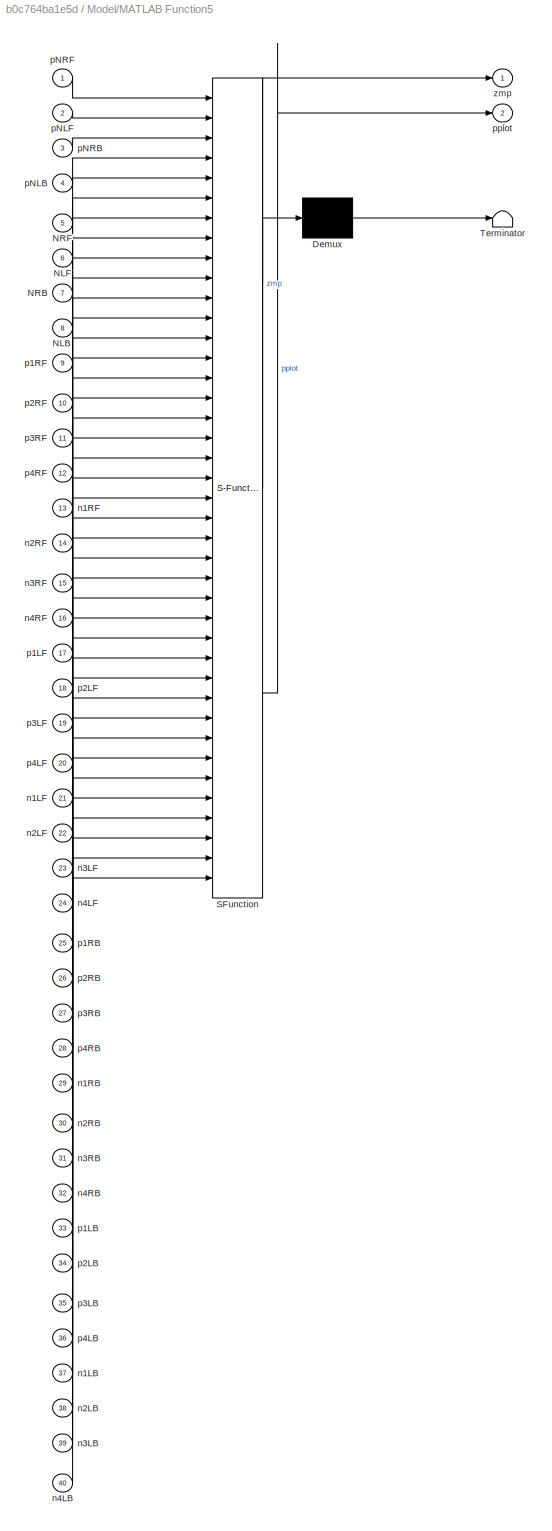
BLOCK [SubSystem] Model/MATLAB Function5
  ErrorFcn = Stateflow.Translate.translate
  PermitHierarchicalResolution = ExplicitOnly
  Ports = [40, 2]
  RequestExecContextInheritance = off
  SFBlockType = MATLAB Function
  TreatAsAtomicUnit = on
BLOCK [Demux] Model/MATLAB Function5/ Demux 
  Outputs = 1
  Ports = [1, 1]
BLOCK [S-Function] Model/MATLAB Function5/ SFunction 
  EnableBusSupport = on
  FunctionName = sf_sfun
  PortCounts = [40 3]
  Ports = [40, 3]
  SFcnIsStateOwnerBlock = off
  SFunctionDeploymentMode = off
  Tag = Stateflow S-Function 83
BLOCK [Terminator] Model/MATLAB Function5/ Terminator 
BLOCK [Inport] Model/MATLAB Function5/NLB
  Port = 8
BLOCK [Inport] Model/MATLAB Function5/NLF
  Port = 6
BLOCK [Inport] Model/MATLAB Function5/NRB
  Port = 7
BLOCK [Inport] Model/MATLAB Function5/NRF
  Port = 5
BLOCK [Inport] Model/MATLAB Function5/n1LB
  Port = 37
BLOCK [Inport] Model/MATLAB Function5/n1LF
  Port = 21
BLOCK [Inport] Model/MATLAB Function5/n1RB
  Port = 29
BLOCK [Inport] Model/MATLAB Function5/n1RF
  Port = 13
BLOCK [Inport] Model/MATLAB Function5/n2LB
  Port = 38
BLOCK [Inport] Model/MATLAB Function5/n2LF
  Port = 22
BLOCK [Inport] Model/MATLAB Function5/n2RB
  Port = 30
BLOCK [Inport] Model/MATLAB Function5/n2RF
  Port = 14
BLOCK [Inport] Model/MATLAB Function5/n3LB
  Port = 39
BLOCK [Inport] Model/MATLAB Function5/n3LF
  Port = 23
BLOCK [Inport] Model/MATLAB Function5/n3RB
  Port = 31
BLOCK [Inport] Model/MATLAB Function5/n3RF
  Port = 15
BLOCK [Inport] Model/MATLAB Function5/n4LB
  Port = 40
BLOCK [Inport] Model/MATLAB Function5/n4LF
  Port = 24
BLOCK [Inport] Model/MATLAB Function5/n4RB
  Port = 32
BLOCK [Inport] Model/MATLAB Function5/n4RF
  Port = 16
BLOCK [Inport] Model/MATLAB Function5/p1LB
  Port = 33
BLOCK [Inport] Model/MATLAB Function5/p1LF
  Port = 17
BLOCK [Inport] Model/MATLAB Function5/p1RB
  Port = 25
BLOCK [Inport] Model/MATLAB Function5/p1RF
  Port = 9
BLOCK [Inport] Model/MATLAB Function5/p2LB
  Port = 34
BLOCK [Inport] Model/MATLAB Function5/p2LF
  Port = 18
BLOCK [Inport] Model/MATLAB Function5/p2RB
  Port = 26
BLOCK [Inport] Model/MATLAB Function5/p2RF
  Port = 10
BLOCK [Inport] Model/MATLAB Function5/p3LB
  Port = 35
BLOCK [Inport] Model/MATLAB Function5/p3LF
  Port = 19
BLOCK [Inport] Model/MATLAB Function5/p3RB
  Port = 27
BLOCK [Inport] Model/MATLAB Function5/p3RF
  Port = 11
BLOCK [Inport] Model/MATLAB Function5/p4LB
  Port = 36
BLOCK [Inport] Model/MATLAB Function5/p4LF
  Port = 20
BLOCK [Inport] Model/MATLAB Function5/p4RB
  Port = 28
BLOCK [Inport] Model/MATLAB Function5/p4RF
  Port = 12
BLOCK [Inport] Model/MATLAB Function5/pNLB
  Port = 4
BLOCK [Inport] Model/MATLAB Function5/pNLF
  Port = 2
BLOCK [Inport] Model/MATLAB Function5/pNRB
  Port = 3
BLOCK [Inport] Model/MATLAB Function5/pNRF
BLOCK [Outport] Model/MATLAB Function5/pplot
  Port = 2
BLOCK [Outport] Model/MATLAB Function5/zmp
BLOCK [Outport] Model/Outport
BLOCK [Outport] Model/Outport1
  Port = 2
BLOCK [Outport] Model/Outport2
  Port = 3
BLOCK [Outport] Model/Outport3
  Port = 4
BLOCK [Outport] Model/Outport4
  Port = 5
BLOCK [Outport] Model/Outport5
  Port = 6
BLOCK [Reference] Model/PS-Simulink Converter  REF=nesl_utility/PS-Simulink
Converter
  NameLocation = top
  Ports = [0, 1, 0, 0, 0, 1]
  SourceBlock = nesl_utility/PS-Simulink\nConverter
  SourceProductBaseCode = PW,SS
  SourceType = PS-Simulink\nConverter
BLOCK [Reference] Model/PS-Simulink Converter1  REF=nesl_utility/PS-Simulink
Converter
  NameLocation = top
  Ports = [0, 1, 0, 0, 0, 1]
  SourceBlock = nesl_utility/PS-Simulink\nConverter
  SourceProductBaseCode = PW,SS
  SourceType = PS-Simulink\nConverter
BLOCK [PMIOPort] Model/Qquat
  Port = 3
  Side = Right
BLOCK [PMIOPort] Model/R
  Side = Right
BLOCK [SubSystem] Model/Right Leg Back
  PortSchema = {"entries":[{"content":{"sides":[{"content":{"connectorIds":["LConn1","LConn2","In1","LConn3","In2","In3","In4","In5","In6","In7"]},"type":"ConnectorPlacement.EquallySpacedRectSide","uuid":"22ee734e-d516-4767-9dd7-a84a6d7499a1"},{"content":{"connectorIds":["Out1","Out2","Out3","Out4","Out5","Out6","Out7","Out8","Out9","Out10","Out11","Out12","Out13","Out14","Out15","Out16","In8","RConn1","RConn2"]...<+439ch>
  Ports = [8, 16, 0, 0, 0, 3, 2]
  RequestExecContextInheritance = off
BLOCK [SubSystem] Model/Right Leg Back/Ankle 
  Ports = [2, 4, 0, 0, 0, 1, 1]
  RequestExecContextInheritance = off
BLOCK [Reference] Model/Right Leg Back/Ankle /Ankle  REF=sm_lib/Joints/Revolute Joint
  Ports = [0, 0, 0, 0, 0, 2, 4]
  SourceBlock = sm_lib/Joints/Revolute Joint
  SourceProductBaseCode = MS
  SourceType = Revolute Joint
BLOCK [PMIOPort] Model/Right Leg Back/Ankle /B
  Side = Left
BLOCK [BusCreator] Model/Right Leg Back/Ankle /Bus Creator
  DisplayOption = bar
  InheritFromInputs = on
  Inputs = 3
  Ports = [3, 1]
BLOCK [PMIOPort] Model/Right Leg Back/Ankle /F
  Port = 2
  Side = Right
BLOCK [Outport] Model/Right Leg Back/Ankle /Outport
  Port = 2
BLOCK [Outport] Model/Right Leg Back/Ankle /Outport1
  Port = 3
BLOCK [Outport] Model/Right Leg Back/Ankle /Outport2
  Port = 4
BLOCK [Reference] Model/Right Leg Back/Ankle /PID Controller  REF=pid_lib/PID Controller
  Ports = [1, 1]
  SourceBlock = pid_lib/PID Controller
  SourceProductBaseCode = SL
  SourceType = PID 1dof
BLOCK [Reference] Model/Right Leg Back/Ankle /PS-Simulink Converter  REF=nesl_utility/PS-Simulink
Converter
  NameLocation = top
  Ports = [0, 1, 0, 0, 0, 1]
  SourceBlock = nesl_utility/PS-Simulink\nConverter
  SourceProductBaseCode = PW,SS
  SourceType = PS-Simulink\nConverter
BLOCK [Reference] Model/Right Leg Back/Ankle /PS-Simulink Converter1  REF=nesl_utility/PS-Simulink
Converter
  Ports = [0, 1, 0, 0, 0, 1]
  SourceBlock = nesl_utility/PS-Simulink\nConverter
  SourceProductBaseCode = PW,SS
  SourceType = PS-Simulink\nConverter
BLOCK [Reference] Model/Right Leg Back/Ankle /PS-Simulink Converter2  REF=nesl_utility/PS-Simulink
Converter
  Ports = [0, 1, 0, 0, 0, 1]
  SourceBlock = nesl_utility/PS-Simulink\nConverter
  SourceProductBaseCode = PW,SS
  SourceType = PS-Simulink\nConverter
BLOCK [Reference] Model/Right Leg Back/Ankle /PS-Simulink Converter3  REF=nesl_utility/PS-Simulink
Converter
  Ports = [0, 1, 0, 0, 0, 1]
  SourceBlock = nesl_utility/PS-Simulink\nConverter
  SourceProductBaseCode = PW,SS
  SourceType = PS-Simulink\nConverter
BLOCK [Reference] Model/Right Leg Back/Ankle /PS-Simulink Converter4  REF=nesl_utility/PS-Simulink
Converter
  NameLocation = right
  Ports = [0, 1, 0, 0, 0, 1]
  SourceBlock = nesl_utility/PS-Simulink\nConverter
  SourceProductBaseCode = PW,SS
  SourceType = PS-Simulink\nConverter
BLOCK [Scope] Model/Right Leg Back/Ankle /Scope
  Floating = off
  NumInputPorts = 1
  Ports = [1]
BLOCK [Scope] Model/Right Leg Back/Ankle /Scope1
  Floating = off
  NumInputPorts = 1
  Ports = [1]
BLOCK [Scope] Model/Right Leg Back/Ankle /Scope2
  Floating = off
  NumInputPorts = 1
  Ports = [1]
BLOCK [Reference] Model/Right Leg Back/Ankle /Simulink-PS Converter  REF=nesl_utility/Simulink-PS
Converter
  Ports = [1, 0, 0, 0, 0, 0, 1]
  SourceBlock = nesl_utility/Simulink-PS\nConverter
  SourceProductBaseCode = PW,SS
  SourceType = Simulink-PS\nConverter
BLOCK [Sum] Model/Right Leg Back/Ankle /Sum
  Inputs = |+-
  Ports = [2, 1]
BLOCK [Outport] Model/Right Leg Back/Ankle /meas
  VectorParamsAs1DForOutWhenUnconnected = off
BLOCK [Inport] Model/Right Leg Back/Ankle /t2ddankle
  Port = 2
BLOCK [Inport] Model/Right Leg Back/Ankle /tddRB_ankle
BLOCK [Reference] Model/Right Leg Back/Ankle to Lower Leg  REF=sm_lib/Frames and
Transforms/Rigid
Transform
  Ports = [0, 0, 0, 0, 0, 1, 1]
  SourceBlock = sm_lib/Frames and\nTransforms/Rigid\nTransform
  SourceProductBaseCode = MS
  SourceType = Rigid\nTransform
BLOCK [Inport] Model/Right Leg Back/CMg
  Port = 6
BLOCK [SubSystem] Model/Right Leg Back/Contact Forces 
  Ports = [6, 11]
  RequestExecContextInheritance = off
BLOCK [Sum] Model/Right Leg Back/Contact Forces /Add
  IconShape = rectangular
  Inputs = ++++
  Ports = [4, 1]
BLOCK [Sum] Model/Right Leg Back/Contact Forces /Add1
  IconShape = rectangular
  Inputs = ++++
  Ports = [4, 1]
BLOCK [BusSelector] Model/Right Leg Back/Contact Forces /Bus Selector
  OutputSignals = Normal Force,Friction Force
  Ports = [1, 2]
BLOCK [BusSelector] Model/Right Leg Back/Contact Forces /Bus Selector1
  OutputSignals = Normal Force,Friction Force
  Ports = [1, 2]
BLOCK [BusSelector] Model/Right Leg Back/Contact Forces /Bus Selector2
  OutputSignals = Normal Force,Friction Force
  Ports = [1, 2]
BLOCK [BusSelector] Model/Right Leg Back/Contact Forces /Bus Selector3
  OutputSignals = Normal Force,Friction Force
  Ports = [1, 2]
BLOCK [Inport] Model/Right Leg Back/Contact Forces /In1
BLOCK [Inport] Model/Right Leg Back/Contact Forces /In2
  Port = 2
BLOCK [Inport] Model/Right Leg Back/Contact Forces /In3
  Port = 3
BLOCK [Inport] Model/Right Leg Back/Contact Forces /In4
  Port = 6
BLOCK [SubSystem] Model/Right Leg Back/Contact Forces /MATLAB Function
  ErrorFcn = Stateflow.Translate.translate
  PermitHierarchicalResolution = ExplicitOnly
  Ports = [9, 2]
  RequestExecContextInheritance = off
  SFBlockType = MATLAB Function
  TreatAsAtomicUnit = on
BLOCK [Demux] Model/Right Leg Back/Contact Forces /MATLAB Function/ Demux 
  Outputs = 1
  Ports = [1, 1]
BLOCK [S-Function] Model/Right Leg Back/Contact Forces /MATLAB Function/ SFunction 
  EnableBusSupport = on
  FunctionName = sf_sfun
  PortCounts = [9 3]
  Ports = [9, 3]
  SFcnIsStateOwnerBlock = off
  SFunctionDeploymentMode = off
  Tag = Stateflow S-Function 7
BLOCK [Terminator] Model/Right Leg Back/Contact Forces /MATLAB Function/ Terminator 
BLOCK [Outport] Model/Right Leg Back/Contact Forces /MATLAB Function/FRF
  Port = 2
BLOCK [Outport] Model/Right Leg Back/Contact Forces /MATLAB Function/NRF
BLOCK [Inport] Model/Right Leg Back/Contact Forces /MATLAB Function/Qd3g
  Port = 9
BLOCK [Inport] Model/Right Leg Back/Contact Forces /MATLAB Function/f1
  Port = 5
BLOCK [Inport] Model/Right Leg Back/Contact Forces /MATLAB Function/f2
  Port = 6
BLOCK [Inport] Model/Right Leg Back/Contact Forces /MATLAB Function/f3
  Port = 7
BLOCK [Inport] Model/Right Leg Back/Contact Forces /MATLAB Function/f4
  Port = 8
BLOCK [Inport] Model/Right Leg Back/Contact Forces /MATLAB Function/n1
BLOCK [Inport] Model/Right Leg Back/Contact Forces /MATLAB Function/n2
  Port = 2
BLOCK [Inport] Model/Right Leg Back/Contact Forces /MATLAB Function/n3
  Port = 4
BLOCK [Inport] Model/Right Leg Back/Contact Forces /MATLAB Function/n4
  Port = 3
BLOCK [SubSystem] Model/Right Leg Back/Contact Forces /MATLAB Function1
  ErrorFcn = Stateflow.Translate.translate
  PermitHierarchicalResolution = ExplicitOnly
  Ports = [6, 5]
  RequestExecContextInheritance = off
  SFBlockType = MATLAB Function
  TreatAsAtomicUnit = on
BLOCK [Demux] Model/Right Leg Back/Contact Forces /MATLAB Function1/ Demux 
  Outputs = 1
  Ports = [1, 1]
BLOCK [S-Function] Model/Right Leg Back/Contact Forces /MATLAB Function1/ SFunction 
  EnableBusSupport = on
  FunctionName = sf_sfun
  PortCounts = [6 6]
  Ports = [6, 6]
  SFcnIsStateOwnerBlock = off
  SFunctionDeploymentMode = off
  Tag = Stateflow S-Function 81
BLOCK [Terminator] Model/Right Leg Back/Contact Forces /MATLAB Function1/ Terminator 
BLOCK [Inport] Model/Right Leg Back/Contact Forces /MATLAB Function1/Qd5g
  Port = 5
BLOCK [Inport] Model/Right Leg Back/Contact Forces /MATLAB Function1/n1
BLOCK [Inport] Model/Right Leg Back/Contact Forces /MATLAB Function1/n2
  Port = 2
BLOCK [Inport] Model/Right Leg Back/Contact Forces /MATLAB Function1/n3
  Port = 3
BLOCK [Inport] Model/Right Leg Back/Contact Forces /MATLAB Function1/n4
  Port = 4
BLOCK [Outport] Model/Right Leg Back/Contact Forces /MATLAB Function1/p1
  Port = 2
BLOCK [Outport] Model/Right Leg Back/Contact Forces /MATLAB Function1/p2
  Port = 3
BLOCK [Outport] Model/Right Leg Back/Contact Forces /MATLAB Function1/p3
  Port = 4
BLOCK [Outport] Model/Right Leg Back/Contact Forces /MATLAB Function1/p4
  Port = 5
BLOCK [Outport] Model/Right Leg Back/Contact Forces /MATLAB Function1/pNRB
BLOCK [Inport] Model/Right Leg Back/Contact Forces /MATLAB Function1/pfRB
  Port = 6
BLOCK [Math] Model/Right Leg Back/Contact Forces /Math Function
  Operator = square
  Ports = [1, 1]
  SignedPower = on
BLOCK [Outport] Model/Right Leg Back/Contact Forces /Outport
BLOCK [Outport] Model/Right Leg Back/Contact Forces /Outport1
  Port = 2
BLOCK [Inport] Model/Right Leg Back/Contact Forces /Qd3g
  Port = 4
BLOCK [Scope] Model/Right Leg Back/Contact Forces /Scope
  Floating = off
  NumInputPorts = 1
  Ports = [1]
BLOCK [Scope] Model/Right Leg Back/Contact Forces /Scope1
  Floating = off
  NumInputPorts = 1
  Ports = [1]
BLOCK [Sqrt] Model/Right Leg Back/Contact Forces /Sqrt
BLOCK [Sum] Model/Right Leg Back/Contact Forces /Sum of Elements
  IconShape = rectangular
  Inputs = +
  Ports = [1, 1]
BLOCK [Outport] Model/Right Leg Back/Contact Forces /n1
  Port = 5
BLOCK [Outport] Model/Right Leg Back/Contact Forces /n2
  Port = 6
BLOCK [Outport] Model/Right Leg Back/Contact Forces /n3
  Port = 7
BLOCK [Outport] Model/Right Leg Back/Contact Forces /n4
  Port = 8
BLOCK [Outport] Model/Right Leg Back/Contact Forces /p1
  Port = 4
BLOCK [Outport] Model/Right Leg Back/Contact Forces /p2
  Port = 9
BLOCK [Outport] Model/Right Leg Back/Contact Forces /p3
  Port = 10
BLOCK [Outport] Model/Right Leg Back/Contact Forces /p4
  Port = 11
BLOCK [Outport] Model/Right Leg Back/Contact Forces /pNRB
  Port = 3
BLOCK [Inport] Model/Right Leg Back/Contact Forces /pfRB
  Port = 5
BLOCK [Reference] Model/Right Leg Back/Foot  REF=sm_lib/Body Elements/Brick Solid
  Ports = [0, 0, 0, 0, 0, 3, 2]
  SourceBlock = sm_lib/Body Elements/Brick Solid
  SourceProductBaseCode = MS
  SourceType = Brick Solid
BLOCK [PMIOPort] Model/Right Leg Back/Foot RB
  NameLocation = top
  Port = 3
  Side = Left
BLOCK [Reference] Model/Right Leg Back/Foot to Ankle  REF=sm_lib/Frames and
Transforms/Rigid
Transform
  Ports = [0, 0, 0, 0, 0, 1, 1]
  SourceBlock = sm_lib/Frames and\nTransforms/Rigid\nTransform
  SourceProductBaseCode = MS
  SourceType = Rigid\nTransform
BLOCK [PMIOPort] Model/Right Leg Back/G 
  Port = 4
  Side = Right
BLOCK [PMIOPort] Model/Right Leg Back/H
  Port = 5
  Side = Right
BLOCK [SubSystem] Model/Right Leg Back/Hip
  Ports = [2, 3, 0, 0, 0, 1, 4]
  RequestExecContextInheritance = off
BLOCK [Reference] Model/Right Leg Back/Hip to Torso  REF=sm_lib/Frames and
Transforms/Rigid
Transform
  Ports = [0, 0, 0, 0, 0, 1, 1]
  SourceBlock = sm_lib/Frames and\nTransforms/Rigid\nTransform
  SourceProductBaseCode = MS
  SourceType = Rigid\nTransform
BLOCK [PMIOPort] Model/Right Leg Back/Hip/Conn1
  Side = Left
BLOCK [PMIOPort] Model/Right Leg Back/Hip/Conn2
  Port = 2
  Side = Right
BLOCK [Reference] Model/Right Leg Back/Hip/Gimbal Joint  REF=sm_lib/Joints/Gimbal Joint
  Ports = [0, 0, 0, 0, 0, 4, 10]
  SourceBlock = sm_lib/Joints/Gimbal Joint
  SourceProductBaseCode = MS
  SourceType = Gimbal Joint
BLOCK [SubSystem] Model/Right Leg Back/Hip/MATLAB Function
  ErrorFcn = Stateflow.Translate.translate
  PermitHierarchicalResolution = ExplicitOnly
  Ports = [3, 1]
  RequestExecContextInheritance = off
  SFBlockType = MATLAB Function
  TreatAsAtomicUnit = on
BLOCK [Demux] Model/Right Leg Back/Hip/MATLAB Function/ Demux 
  Outputs = 1
  Ports = [1, 1]
BLOCK [S-Function] Model/Right Leg Back/Hip/MATLAB Function/ SFunction 
  EnableBusSupport = on
  FunctionName = sf_sfun
  PortCounts = [3 2]
  Ports = [3, 2]
  SFcnIsStateOwnerBlock = off
  SFunctionDeploymentMode = off
  Tag = Stateflow S-Function 12
BLOCK [Terminator] Model/Right Leg Back/Hip/MATLAB Function/ Terminator 
BLOCK [Outport] Model/Right Leg Back/Hip/MATLAB Function/hip
BLOCK [Inport] Model/Right Leg Back/Hip/MATLAB Function/qx
BLOCK [Inport] Model/Right Leg Back/Hip/MATLAB Function/qy
  Port = 2
BLOCK [Inport] Model/Right Leg Back/Hip/MATLAB Function/qz
  Port = 3
BLOCK [SubSystem] Model/Right Leg Back/Hip/MATLAB Function1
  ErrorFcn = Stateflow.Translate.translate
  PermitHierarchicalResolution = ExplicitOnly
  Ports = [3, 1]
  RequestExecContextInheritance = off
  SFBlockType = MATLAB Function
  TreatAsAtomicUnit = on
BLOCK [Demux] Model/Right Leg Back/Hip/MATLAB Function1/ Demux 
  Outputs = 1
  Ports = [1, 1]
BLOCK [S-Function] Model/Right Leg Back/Hip/MATLAB Function1/ SFunction 
  EnableBusSupport = on
  FunctionName = sf_sfun
  PortCounts = [3 2]
  Ports = [3, 2]
  SFcnIsStateOwnerBlock = off
  SFunctionDeploymentMode = off
  Tag = Stateflow S-Function 17
BLOCK [Terminator] Model/Right Leg Back/Hip/MATLAB Function1/ Terminator 
BLOCK [Outport] Model/Right Leg Back/Hip/MATLAB Function1/hip
BLOCK [Inport] Model/Right Leg Back/Hip/MATLAB Function1/wx
BLOCK [Inport] Model/Right Leg Back/Hip/MATLAB Function1/wy
  Port = 2
BLOCK [Inport] Model/Right Leg Back/Hip/MATLAB Function1/wz
  Port = 3
BLOCK [SubSystem] Model/Right Leg Back/Hip/MATLAB Function2
  ErrorFcn = Stateflow.Translate.translate
  PermitHierarchicalResolution = ExplicitOnly
  Ports = [1, 3]
  RequestExecContextInheritance = off
  SFBlockType = MATLAB Function
  TreatAsAtomicUnit = on
BLOCK [Demux] Model/Right Leg Back/Hip/MATLAB Function2/ Demux 
  Outputs = 1
  Ports = [1, 1]
BLOCK [S-Function] Model/Right Leg Back/Hip/MATLAB Function2/ SFunction 
  EnableBusSupport = on
  FunctionName = sf_sfun
  PortCounts = [1 4]
  Ports = [1, 4]
  SFcnIsStateOwnerBlock = off
  SFunctionDeploymentMode = off
  Tag = Stateflow S-Function 31
BLOCK [Terminator] Model/Right Leg Back/Hip/MATLAB Function2/ Terminator 
BLOCK [Inport] Model/Right Leg Back/Hip/MATLAB Function2/tddRF
BLOCK [Outport] Model/Right Leg Back/Hip/MATLAB Function2/tddRFx
BLOCK [Outport] Model/Right Leg Back/Hip/MATLAB Function2/tddRFy
  Port = 2
BLOCK [Outport] Model/Right Leg Back/Hip/MATLAB Function2/tddRFz
  Port = 3
BLOCK [SubSystem] Model/Right Leg Back/Hip/MATLAB Function3
  ErrorFcn = Stateflow.Translate.translate
  PermitHierarchicalResolution = ExplicitOnly
  Ports = [3, 1]
  RequestExecContextInheritance = off
  SFBlockType = MATLAB Function
  TreatAsAtomicUnit = on
BLOCK [Demux] Model/Right Leg Back/Hip/MATLAB Function3/ Demux 
  Outputs = 1
  Ports = [1, 1]
BLOCK [S-Function] Model/Right Leg Back/Hip/MATLAB Function3/ SFunction 
  EnableBusSupport = on
  FunctionName = sf_sfun
  PortCounts = [3 2]
  Ports = [3, 2]
  SFcnIsStateOwnerBlock = off
  SFunctionDeploymentMode = off
  Tag = Stateflow S-Function 40
BLOCK [Terminator] Model/Right Leg Back/Hip/MATLAB Function3/ Terminator 
BLOCK [Inport] Model/Right Leg Back/Hip/MATLAB Function3/bx
BLOCK [Inport] Model/Right Leg Back/Hip/MATLAB Function3/by
  Port = 2
BLOCK [Inport] Model/Right Leg Back/Hip/MATLAB Function3/bz
  Port = 3
BLOCK [Outport] Model/Right Leg Back/Hip/MATLAB Function3/hip
BLOCK [Outport] Model/Right Leg Back/Hip/Outport
  Port = 3
BLOCK [Outport] Model/Right Leg Back/Hip/Outport1
  Port = 2
BLOCK [Outport] Model/Right Leg Back/Hip/Outport2
BLOCK [Reference] Model/Right Leg Back/Hip/PID Controller  REF=pid_lib/PID Controller
  Ports = [1, 1]
  SourceBlock = pid_lib/PID Controller
  SourceProductBaseCode = SL
  SourceType = PID 1dof
BLOCK [Reference] Model/Right Leg Back/Hip/PID Controller1  REF=pid_lib/PID Controller
  Ports = [1, 1]
  SourceBlock = pid_lib/PID Controller
  SourceProductBaseCode = SL
  SourceType = PID 1dof
BLOCK [Reference] Model/Right Leg Back/Hip/PID Controller2  REF=pid_lib/PID Controller
  Ports = [1, 1]
  SourceBlock = pid_lib/PID Controller
  SourceProductBaseCode = SL
  SourceType = PID 1dof
BLOCK [Reference] Model/Right Leg Back/Hip/PS-Simulink Converter  REF=nesl_utility/PS-Simulink
Converter
  Ports = [0, 1, 0, 0, 0, 1]
  SourceBlock = nesl_utility/PS-Simulink\nConverter
  SourceProductBaseCode = PW,SS
  SourceType = PS-Simulink\nConverter
BLOCK [Reference] Model/Right Leg Back/Hip/PS-Simulink Converter1  REF=nesl_utility/PS-Simulink
Converter
  Ports = [0, 1, 0, 0, 0, 1]
  SourceBlock = nesl_utility/PS-Simulink\nConverter
  SourceProductBaseCode = PW,SS
  SourceType = PS-Simulink\nConverter
BLOCK [Reference] Model/Right Leg Back/Hip/PS-Simulink Converter10  REF=nesl_utility/PS-Simulink
Converter
  Ports = [0, 1, 0, 0, 0, 1]
  SourceBlock = nesl_utility/PS-Simulink\nConverter
  SourceProductBaseCode = PW,SS
  SourceType = PS-Simulink\nConverter
BLOCK [Reference] Model/Right Leg Back/Hip/PS-Simulink Converter11  REF=nesl_utility/PS-Simulink
Converter
  NameLocation = right
  Ports = [0, 1, 0, 0, 0, 1]
  SourceBlock = nesl_utility/PS-Simulink\nConverter
  SourceProductBaseCode = PW,SS
  SourceType = PS-Simulink\nConverter
BLOCK [Reference] Model/Right Leg Back/Hip/PS-Simulink Converter2  REF=nesl_utility/PS-Simulink
Converter
  Ports = [0, 1, 0, 0, 0, 1]
  SourceBlock = nesl_utility/PS-Simulink\nConverter
  SourceProductBaseCode = PW,SS
  SourceType = PS-Simulink\nConverter
BLOCK [Reference] Model/Right Leg Back/Hip/PS-Simulink Converter3  REF=nesl_utility/PS-Simulink
Converter
  Ports = [0, 1, 0, 0, 0, 1]
  SourceBlock = nesl_utility/PS-Simulink\nConverter
  SourceProductBaseCode = PW,SS
  SourceType = PS-Simulink\nConverter
BLOCK [Reference] Model/Right Leg Back/Hip/PS-Simulink Converter4  REF=nesl_utility/PS-Simulink
Converter
  Ports = [0, 1, 0, 0, 0, 1]
  SourceBlock = nesl_utility/PS-Simulink\nConverter
  SourceProductBaseCode = PW,SS
  SourceType = PS-Simulink\nConverter
BLOCK [Reference] Model/Right Leg Back/Hip/PS-Simulink Converter5  REF=nesl_utility/PS-Simulink
Converter
  Ports = [0, 1, 0, 0, 0, 1]
  SourceBlock = nesl_utility/PS-Simulink\nConverter
  SourceProductBaseCode = PW,SS
  SourceType = PS-Simulink\nConverter
BLOCK [Reference] Model/Right Leg Back/Hip/PS-Simulink Converter6  REF=nesl_utility/PS-Simulink
Converter
  Ports = [0, 1, 0, 0, 0, 1]
  SourceBlock = nesl_utility/PS-Simulink\nConverter
  SourceProductBaseCode = PW,SS
  SourceType = PS-Simulink\nConverter
BLOCK [Reference] Model/Right Leg Back/Hip/PS-Simulink Converter7  REF=nesl_utility/PS-Simulink
Converter
  Ports = [0, 1, 0, 0, 0, 1]
  SourceBlock = nesl_utility/PS-Simulink\nConverter
  SourceProductBaseCode = PW,SS
  SourceType = PS-Simulink\nConverter
BLOCK [Reference] Model/Right Leg Back/Hip/PS-Simulink Converter8  REF=nesl_utility/PS-Simulink
Converter
  Ports = [0, 1, 0, 0, 0, 1]
  SourceBlock = nesl_utility/PS-Simulink\nConverter
  SourceProductBaseCode = PW,SS
  SourceType = PS-Simulink\nConverter
BLOCK [Reference] Model/Right Leg Back/Hip/PS-Simulink Converter9  REF=nesl_utility/PS-Simulink
Converter
  Ports = [0, 1, 0, 0, 0, 1]
  SourceBlock = nesl_utility/PS-Simulink\nConverter
  SourceProductBaseCode = PW,SS
  SourceType = PS-Simulink\nConverter
BLOCK [Scope] Model/Right Leg Back/Hip/Scope
  Floating = off
  NumInputPorts = 1
  Ports = [1]
BLOCK [Scope] Model/Right Leg Back/Hip/Scope1
  Floating = off
  NumInputPorts = 1
  Ports = [1]
BLOCK [Scope] Model/Right Leg Back/Hip/Scope2
  Floating = off
  NumInputPorts = 1
  Ports = [1]
BLOCK [Scope] Model/Right Leg Back/Hip/Scope3
  Floating = off
  NumInputPorts = 1
  Ports = [1]
BLOCK [Scope] Model/Right Leg Back/Hip/Scope4
  Floating = off
  NumInputPorts = 1
  Ports = [1]
BLOCK [Scope] Model/Right Leg Back/Hip/Scope5
  Floating = off
  NumInputPorts = 1
  Ports = [1]
BLOCK [Scope] Model/Right Leg Back/Hip/Scope6
  Floating = off
  NumInputPorts = 1
  Ports = [1]
BLOCK [Reference] Model/Right Leg Back/Hip/Simulink-PS Converter  REF=nesl_utility/Simulink-PS
Converter
  Ports = [1, 0, 0, 0, 0, 0, 1]
  SourceBlock = nesl_utility/Simulink-PS\nConverter
  SourceProductBaseCode = PW,SS
  SourceType = Simulink-PS\nConverter
BLOCK [Reference] Model/Right Leg Back/Hip/Simulink-PS Converter1  REF=nesl_utility/Simulink-PS
Converter
  NameLocation = top
  Ports = [1, 0, 0, 0, 0, 0, 1]
  SourceBlock = nesl_utility/Simulink-PS\nConverter
  SourceProductBaseCode = PW,SS
  SourceType = Simulink-PS\nConverter
BLOCK [Reference] Model/Right Leg Back/Hip/Simulink-PS Converter2  REF=nesl_utility/Simulink-PS
Converter
  Ports = [1, 0, 0, 0, 0, 0, 1]
  SourceBlock = nesl_utility/Simulink-PS\nConverter
  SourceProductBaseCode = PW,SS
  SourceType = Simulink-PS\nConverter
BLOCK [Sum] Model/Right Leg Back/Hip/Sum
  Inputs = |+-
  Ports = [2, 1]
BLOCK [Sum] Model/Right Leg Back/Hip/Sum1
  Inputs = |+-
  Ports = [2, 1]
BLOCK [Sum] Model/Right Leg Back/Hip/Sum2
  Inputs = |+-
  Ports = [2, 1]
BLOCK [PMIOPort] Model/Right Leg Back/Hip/qx
  Port = 3
  Side = Right
BLOCK [PMIOPort] Model/Right Leg Back/Hip/qy
  Port = 4
  Side = Right
BLOCK [PMIOPort] Model/Right Leg Back/Hip/qz
  Port = 5
  Side = Right
BLOCK [Inport] Model/Right Leg Back/Hip/t2ddhip
BLOCK [Inport] Model/Right Leg Back/Hip/tddRB_hip
  Port = 2
BLOCK [Inport] Model/Right Leg Back/In2
  Port = 8
BLOCK [SubSystem] Model/Right Leg Back/Knee
  Ports = [2, 3, 0, 0, 0, 2, 1]
  RequestExecContextInheritance = off
BLOCK [Reference] Model/Right Leg Back/Knee to Upper Leg  REF=sm_lib/Frames and
Transforms/Rigid
Transform
  Ports = [0, 0, 0, 0, 0, 1, 1]
  SourceBlock = sm_lib/Frames and\nTransforms/Rigid\nTransform
  SourceProductBaseCode = MS
  SourceType = Rigid\nTransform
BLOCK [BusCreator] Model/Right Leg Back/Knee/Bus Creator
  DisplayOption = bar
  InheritFromInputs = on
  Inputs = 3
  Ports = [3, 1]
BLOCK [PMIOPort] Model/Right Leg Back/Knee/Conn1
  Side = Left
BLOCK [PMIOPort] Model/Right Leg Back/Knee/Conn2
  Port = 2
  Side = Right
BLOCK [Reference] Model/Right Leg Back/Knee/Knee joint  REF=sm_lib/Joints/Revolute Joint
  Ports = [0, 0, 0, 0, 0, 2, 4]
  SourceBlock = sm_lib/Joints/Revolute Joint
  SourceProductBaseCode = MS
  SourceType = Revolute Joint
BLOCK [Outport] Model/Right Leg Back/Knee/Outport
  Port = 2
BLOCK [Outport] Model/Right Leg Back/Knee/Outport2
  Port = 3
BLOCK [Reference] Model/Right Leg Back/Knee/PID Controller  REF=pid_lib/PID Controller
  Ports = [1, 1]
  SourceBlock = pid_lib/PID Controller
  SourceProductBaseCode = SL
  SourceType = PID 1dof
BLOCK [Reference] Model/Right Leg Back/Knee/PS-Simulink Converter  REF=nesl_utility/PS-Simulink
Converter
  NameLocation = right
  Ports = [0, 1, 0, 0, 0, 1]
  SourceBlock = nesl_utility/PS-Simulink\nConverter
  SourceProductBaseCode = PW,SS
  SourceType = PS-Simulink\nConverter
BLOCK [Reference] Model/Right Leg Back/Knee/PS-Simulink Converter1  REF=nesl_utility/PS-Simulink
Converter
  Ports = [0, 1, 0, 0, 0, 1]
  SourceBlock = nesl_utility/PS-Simulink\nConverter
  SourceProductBaseCode = PW,SS
  SourceType = PS-Simulink\nConverter
BLOCK [Reference] Model/Right Leg Back/Knee/PS-Simulink Converter2  REF=nesl_utility/PS-Simulink
Converter
  Ports = [0, 1, 0, 0, 0, 1]
  SourceBlock = nesl_utility/PS-Simulink\nConverter
  SourceProductBaseCode = PW,SS
  SourceType = PS-Simulink\nConverter
BLOCK [Reference] Model/Right Leg Back/Knee/PS-Simulink Converter3  REF=nesl_utility/PS-Simulink
Converter
  Ports = [0, 1, 0, 0, 0, 1]
  SourceBlock = nesl_utility/PS-Simulink\nConverter
  SourceProductBaseCode = PW,SS
  SourceType = PS-Simulink\nConverter
BLOCK [Scope] Model/Right Leg Back/Knee/Scope
  Floating = off
  NumInputPorts = 1
  Ports = [1]
BLOCK [Scope] Model/Right Leg Back/Knee/Scope1
  Floating = off
  NumInputPorts = 1
  Ports = [1]
BLOCK [Scope] Model/Right Leg Back/Knee/Scope2
  Floating = off
  NumInputPorts = 1
  Ports = [1]
BLOCK [Reference] Model/Right Leg Back/Knee/Simulink-PS Converter  REF=nesl_utility/Simulink-PS
Converter
  Ports = [1, 0, 0, 0, 0, 0, 1]
  SourceBlock = nesl_utility/Simulink-PS\nConverter
  SourceProductBaseCode = PW,SS
  SourceType = Simulink-PS\nConverter
BLOCK [Sum] Model/Right Leg Back/Knee/Sum
  Inputs = |+-
  Ports = [2, 1]
BLOCK [Outport] Model/Right Leg Back/Knee/meas
BLOCK [PMIOPort] Model/Right Leg Back/Knee/q
  Port = 3
  Side = Left
BLOCK [Inport] Model/Right Leg Back/Knee/t2ddknee
  Port = 2
BLOCK [Inport] Model/Right Leg Back/Knee/tddRB_knee
BLOCK [Reference] Model/Right Leg Back/Lower Leg  REF=sm_lib/Body Elements/Cylindrical Solid
  NameLocation = right
  Ports = [0, 0, 0, 0, 0, 0, 1]
  SourceBlock = sm_lib/Body Elements/Cylindrical Solid
  SourceProductBaseCode = MS
  SourceType = Cylindrical Solid
BLOCK [Reference] Model/Right Leg Back/Lower Leg to Knee  REF=sm_lib/Frames and
Transforms/Rigid
Transform
  Ports = [0, 0, 0, 0, 0, 1, 1]
  SourceBlock = sm_lib/Frames and\nTransforms/Rigid\nTransform
  SourceProductBaseCode = MS
  SourceType = Rigid\nTransform
BLOCK [PMIOPort] Model/Right Leg Back/Lower leg RB
  NameLocation = top
  Port = 2
  Side = Left
BLOCK [SubSystem] Model/Right Leg Back/MATLAB Function
  ErrorFcn = Stateflow.Translate.translate
  PermitHierarchicalResolution = ExplicitOnly
  Ports = [3, 1]
  RequestExecContextInheritance = off
  SFBlockType = MATLAB Function
  TreatAsAtomicUnit = on
BLOCK [Demux] Model/Right Leg Back/MATLAB Function/ Demux 
  Outputs = 1
  Ports = [1, 1]
BLOCK [S-Function] Model/Right Leg Back/MATLAB Function/ SFunction 
  EnableBusSupport = on
  FunctionName = sf_sfun
  PortCounts = [3 2]
  Ports = [3, 2]
  SFcnIsStateOwnerBlock = off
  SFunctionDeploymentMode = off
  Tag = Stateflow S-Function 41
BLOCK [Terminator] Model/Right Leg Back/MATLAB Function/ Terminator 
BLOCK [Inport] Model/Right Leg Back/MATLAB Function/ankle
BLOCK [Inport] Model/Right Leg Back/MATLAB Function/hip
  Port = 3
BLOCK [Inport] Model/Right Leg Back/MATLAB Function/knee
  Port = 2
BLOCK [Outport] Model/Right Leg Back/MATLAB Function/tdRB
BLOCK [SubSystem] Model/Right Leg Back/MATLAB Function1
  ErrorFcn = Stateflow.Translate.translate
  PermitHierarchicalResolution = ExplicitOnly
  Ports = [3, 1]
  RequestExecContextInheritance = off
  SFBlockType = MATLAB Function
  TreatAsAtomicUnit = on
BLOCK [Demux] Model/Right Leg Back/MATLAB Function1/ Demux 
  Outputs = 1
  Ports = [1, 1]
BLOCK [S-Function] Model/Right Leg Back/MATLAB Function1/ SFunction 
  EnableBusSupport = on
  FunctionName = sf_sfun
  PortCounts = [3 2]
  Ports = [3, 2]
  SFcnIsStateOwnerBlock = off
  SFunctionDeploymentMode = off
  Tag = Stateflow S-Function 50
BLOCK [Terminator] Model/Right Leg Back/MATLAB Function1/ Terminator 
BLOCK [Inport] Model/Right Leg Back/MATLAB Function1/ankle
BLOCK [Inport] Model/Right Leg Back/MATLAB Function1/hip
  Port = 3
BLOCK [Inport] Model/Right Leg Back/MATLAB Function1/knee
  Port = 2
BLOCK [Outport] Model/Right Leg Back/MATLAB Function1/t2dRB
BLOCK [SubSystem] Model/Right Leg Back/MATLAB Function2
  ErrorFcn = Stateflow.Translate.translate
  PermitHierarchicalResolution = ExplicitOnly
  Ports = [1, 3]
  RequestExecContextInheritance = off
  SFBlockType = MATLAB Function
  TreatAsAtomicUnit = on
BLOCK [Demux] Model/Right Leg Back/MATLAB Function2/ Demux 
  Outputs = 1
  Ports = [1, 1]
BLOCK [S-Function] Model/Right Leg Back/MATLAB Function2/ SFunction 
  EnableBusSupport = on
  FunctionName = sf_sfun
  PortCounts = [1 4]
  Ports = [1, 4]
  SFcnIsStateOwnerBlock = off
  SFunctionDeploymentMode = off
  Tag = Stateflow S-Function 55
BLOCK [Terminator] Model/Right Leg Back/MATLAB Function2/ Terminator 
BLOCK [Inport] Model/Right Leg Back/MATLAB Function2/tddRB
BLOCK [Outport] Model/Right Leg Back/MATLAB Function2/tddRB_ankle
  Port = 3
BLOCK [Outport] Model/Right Leg Back/MATLAB Function2/tddRB_hip
BLOCK [Outport] Model/Right Leg Back/MATLAB Function2/tddRB_knee
  Port = 2
BLOCK [SubSystem] Model/Right Leg Back/MATLAB Function3
  ErrorFcn = Stateflow.Translate.translate
  PermitHierarchicalResolution = ExplicitOnly
  Ports = [1, 3]
  RequestExecContextInheritance = off
  SFBlockType = MATLAB Function
  TreatAsAtomicUnit = on
BLOCK [Demux] Model/Right Leg Back/MATLAB Function3/ Demux 
  Outputs = 1
  Ports = [1, 1]
BLOCK [S-Function] Model/Right Leg Back/MATLAB Function3/ SFunction 
  EnableBusSupport = on
  FunctionName = sf_sfun
  PortCounts = [1 4]
  Ports = [1, 4]
  SFcnIsStateOwnerBlock = off
  SFunctionDeploymentMode = off
  Tag = Stateflow S-Function 57
BLOCK [Terminator] Model/Right Leg Back/MATLAB Function3/ Terminator 
BLOCK [Outport] Model/Right Leg Back/MATLAB Function3/t2ddankle
  Port = 3
BLOCK [Outport] Model/Right Leg Back/MATLAB Function3/t2ddhip
BLOCK [Outport] Model/Right Leg Back/MATLAB Function3/t2ddknee
  Port = 2
BLOCK [Inport] Model/Right Leg Back/MATLAB Function3/theta_2d_des
BLOCK [Outport] Model/Right Leg Back/Outport1
BLOCK [Outport] Model/Right Leg Back/Outport2
  Port = 2
BLOCK [Outport] Model/Right Leg Back/Outport3
  Port = 3
BLOCK [Outport] Model/Right Leg Back/Outport4
  Port = 4
BLOCK [Outport] Model/Right Leg Back/Outport5
  Port = 5
BLOCK [Reference] Model/Right Leg Back/PS-Simulink Converter  REF=nesl_utility/PS-Simulink
Converter
  Ports = [0, 1, 0, 0, 0, 1]
  SourceBlock = nesl_utility/PS-Simulink\nConverter
  SourceProductBaseCode = PW,SS
  SourceType = PS-Simulink\nConverter
BLOCK [Reference] Model/Right Leg Back/PS-Simulink Converter1  REF=nesl_utility/PS-Simulink
Converter
  NameLocation = right
  Ports = [0, 1, 0, 0, 0, 1]
  SourceBlock = nesl_utility/PS-Simulink\nConverter
  SourceProductBaseCode = PW,SS
  SourceType = PS-Simulink\nConverter
BLOCK [Reference] Model/Right Leg Back/PS-Simulink Converter2  REF=nesl_utility/PS-Simulink
Converter
  Ports = [0, 1, 0, 0, 0, 1]
  SourceBlock = nesl_utility/PS-Simulink\nConverter
  SourceProductBaseCode = PW,SS
  SourceType = PS-Simulink\nConverter
BLOCK [Reference] Model/Right Leg Back/PS-Simulink Converter3  REF=nesl_utility/PS-Simulink
Converter
  Ports = [0, 1, 0, 0, 0, 1]
  SourceBlock = nesl_utility/PS-Simulink\nConverter
  SourceProductBaseCode = PW,SS
  SourceType = PS-Simulink\nConverter
BLOCK [Scope] Model/Right Leg Back/Scope
  Floating = off
  NumInputPorts = 1
  Ports = [1]
BLOCK [Scope] Model/Right Leg Back/Scope1
  Floating = off
  NumInputPorts = 1
  Ports = [1]
BLOCK [Reference] Model/Right Leg Back/Sphere to Plane Force  REF=Contact_Forces_Lib/3D/Sphere to Plane Force
  Ports = [0, 1, 0, 0, 0, 1, 1]
  SourceBlock = Contact_Forces_Lib/3D/Sphere to Plane Force
  SourceProductName = Simscape Multibody Contact Forces Library
  SourceType = Sphere to Plane Force
BLOCK [Reference] Model/Right Leg Back/Sphere to Plane Force1  REF=Contact_Forces_Lib/3D/Sphere to Plane Force
  Ports = [0, 1, 0, 0, 0, 1, 1]
  SourceBlock = Contact_Forces_Lib/3D/Sphere to Plane Force
  SourceProductName = Simscape Multibody Contact Forces Library
  SourceType = Sphere to Plane Force
BLOCK [Reference] Model/Right Leg Back/Sphere to Plane Force2  REF=Contact_Forces_Lib/3D/Sphere to Plane Force
  Ports = [0, 1, 0, 0, 0, 1, 1]
  SourceBlock = Contact_Forces_Lib/3D/Sphere to Plane Force
  SourceProductName = Simscape Multibody Contact Forces Library
  SourceType = Sphere to Plane Force
BLOCK [Reference] Model/Right Leg Back/Sphere to Plane Force4  REF=Contact_Forces_Lib/3D/Sphere to Plane Force
  Ports = [0, 1, 0, 0, 0, 1, 1]
  SourceBlock = Contact_Forces_Lib/3D/Sphere to Plane Force
  SourceProductName = Simscape Multibody Contact Forces Library
  SourceType = Sphere to Plane Force
BLOCK [SubSystem] Model/Right Leg Back/Subsystem
  Ports = [13, 4]
  RequestExecContextInheritance = off
BLOCK [Inport] Model/Right Leg Back/Subsystem/CMg
  Port = 12
BLOCK [SubSystem] Model/Right Leg Back/Subsystem/MATLAB Function
  ErrorFcn = Stateflow.Translate.translate
  PermitHierarchicalResolution = ExplicitOnly
  Ports = [6, 20]
  RequestExecContextInheritance = off
  SFBlockType = MATLAB Function
  TreatAsAtomicUnit = on
BLOCK [Demux] Model/Right Leg Back/Subsystem/MATLAB Function/ Demux 
  Outputs = 1
  Ports = [1, 1]
BLOCK [S-Function] Model/Right Leg Back/Subsystem/MATLAB Function/ SFunction 
  EnableBusSupport = on
  FunctionName = sf_sfun
  PortCounts = [6 21]
  Ports = [6, 21]
  SFcnIsStateOwnerBlock = off
  SFunctionDeploymentMode = off
  Tag = Stateflow S-Function 69
BLOCK [Terminator] Model/Right Leg Back/Subsystem/MATLAB Function/ Terminator 
BLOCK [Outport] Model/Right Leg Back/Subsystem/MATLAB Function/I1
  Port = 16
BLOCK [Outport] Model/Right Leg Back/Subsystem/MATLAB Function/I2
  Port = 17
BLOCK [Outport] Model/Right Leg Back/Subsystem/MATLAB Function/I3
  Port = 18
BLOCK [Outport] Model/Right Leg Back/Subsystem/MATLAB Function/I4
  Port = 19
BLOCK [Outport] Model/Right Leg Back/Subsystem/MATLAB Function/I5
  Port = 20
BLOCK [Outport] Model/Right Leg Back/Subsystem/MATLAB Function/Qd5g
  Port = 15
BLOCK [Inport] Model/Right Leg Back/Subsystem/MATLAB Function/Qquat
  Port = 5
BLOCK [Outport] Model/Right Leg Back/Subsystem/MATLAB Function/ac1g
  Port = 6
BLOCK [Outport] Model/Right Leg Back/Subsystem/MATLAB Function/ac2g
  Port = 7
BLOCK [Outport] Model/Right Leg Back/Subsystem/MATLAB Function/ac3g
  Port = 8
BLOCK [Outport] Model/Right Leg Back/Subsystem/MATLAB Function/ac4g
  Port = 9
BLOCK [Outport] Model/Right Leg Back/Subsystem/MATLAB Function/cmc1g
  Port = 10
BLOCK [Outport] Model/Right Leg Back/Subsystem/MATLAB Function/cmc2g
  Port = 11
BLOCK [Outport] Model/Right Leg Back/Subsystem/MATLAB Function/cmc3g
  Port = 12
BLOCK [Outport] Model/Right Leg Back/Subsystem/MATLAB Function/cmc4g
  Port = 13
BLOCK [Outport] Model/Right Leg Back/Subsystem/MATLAB Function/cmc5g
  Port = 14
BLOCK [Outport] Model/Right Leg Back/Subsystem/MATLAB Function/ec1g
BLOCK [Outport] Model/Right Leg Back/Subsystem/MATLAB Function/ec2g
  Port = 2
BLOCK [Outport] Model/Right Leg Back/Subsystem/MATLAB Function/ec3g
  Port = 3
BLOCK [Outport] Model/Right Leg Back/Subsystem/MATLAB Function/ec4g
  Port = 4
BLOCK [Outport] Model/Right Leg Back/Subsystem/MATLAB Function/ec5g
  Port = 5
BLOCK [Inport] Model/Right Leg Back/Subsystem/MATLAB Function/qac
  Port = 4
BLOCK [Inport] Model/Right Leg Back/Subsystem/MATLAB Function/qhcx
  Port = 2
BLOCK [Inport] Model/Right Leg Back/Subsystem/MATLAB Function/qhcy
  Port = 3
BLOCK [Inport] Model/Right Leg Back/Subsystem/MATLAB Function/qhcz
BLOCK [Inport] Model/Right Leg Back/Subsystem/MATLAB Function/qkc
  Port = 6
BLOCK [SubSystem] Model/Right Leg Back/Subsystem/MATLAB Function1
  ErrorFcn = Stateflow.Translate.translate
  PermitHierarchicalResolution = ExplicitOnly
  Ports = [20, 3]
  RequestExecContextInheritance = off
  SFBlockType = MATLAB Function
  TreatAsAtomicUnit = on
BLOCK [Demux] Model/Right Leg Back/Subsystem/MATLAB Function1/ Demux 
  Outputs = 1
  Ports = [1, 1]
BLOCK [S-Function] Model/Right Leg Back/Subsystem/MATLAB Function1/ SFunction 
  EnableBusSupport = on
  FunctionName = sf_sfun
  PortCounts = [20 4]
  Ports = [20, 4]
  SFcnIsStateOwnerBlock = off
  SFunctionDeploymentMode = off
  Tag = Stateflow S-Function 70
BLOCK [Terminator] Model/Right Leg Back/Subsystem/MATLAB Function1/ Terminator 
BLOCK [Inport] Model/Right Leg Back/Subsystem/MATLAB Function1/CMg
  Port = 15
BLOCK [Inport] Model/Right Leg Back/Subsystem/MATLAB Function1/I1
  Port = 16
BLOCK [Inport] Model/Right Leg Back/Subsystem/MATLAB Function1/I2
  Port = 17
BLOCK [Inport] Model/Right Leg Back/Subsystem/MATLAB Function1/I3
  Port = 18
BLOCK [Inport] Model/Right Leg Back/Subsystem/MATLAB Function1/I4
  Port = 19
BLOCK [Inport] Model/Right Leg Back/Subsystem/MATLAB Function1/I5
  Port = 20
BLOCK [Inport] Model/Right Leg Back/Subsystem/MATLAB Function1/ac10g
  Port = 5
BLOCK [Inport] Model/Right Leg Back/Subsystem/MATLAB Function1/ac20g
  Port = 6
BLOCK [Inport] Model/Right Leg Back/Subsystem/MATLAB Function1/ac30g
  Port = 7
BLOCK [Inport] Model/Right Leg Back/Subsystem/MATLAB Function1/ac40g
  Port = 12
BLOCK [Outport] Model/Right Leg Back/Subsystem/MATLAB Function1/alpRB
  Port = 3
BLOCK [Inport] Model/Right Leg Back/Subsystem/MATLAB Function1/cmc1
  Port = 13
BLOCK [Inport] Model/Right Leg Back/Subsystem/MATLAB Function1/cmc2
  Port = 14
BLOCK [Inport] Model/Right Leg Back/Subsystem/MATLAB Function1/cmc3
  Port = 9
BLOCK [Inport] Model/Right Leg Back/Subsystem/MATLAB Function1/cmc4
  Port = 8
BLOCK [Inport] Model/Right Leg Back/Subsystem/MATLAB Function1/cmc5
  Port = 10
BLOCK [Inport] Model/Right Leg Back/Subsystem/MATLAB Function1/ec10g
BLOCK [Inport] Model/Right Leg Back/Subsystem/MATLAB Function1/ec20g
  Port = 2
BLOCK [Inport] Model/Right Leg Back/Subsystem/MATLAB Function1/ec30g
  Port = 3
BLOCK [Inport] Model/Right Leg Back/Subsystem/MATLAB Function1/ec40g
  Port = 4
BLOCK [Inport] Model/Right Leg Back/Subsystem/MATLAB Function1/ec50g
  Port = 11
BLOCK [Outport] Model/Right Leg Back/Subsystem/MATLAB Function1/hRB
BLOCK [Outport] Model/Right Leg Back/Subsystem/MATLAB Function1/rhoRB
  Port = 2
BLOCK [SubSystem] Model/Right Leg Back/Subsystem/MATLAB Function2
  ErrorFcn = Stateflow.Translate.translate
  PermitHierarchicalResolution = ExplicitOnly
  Ports = [12, 1]
  RequestExecContextInheritance = off
  SFBlockType = MATLAB Function
  TreatAsAtomicUnit = on
BLOCK [Demux] Model/Right Leg Back/Subsystem/MATLAB Function2/ Demux 
  Outputs = 1
  Ports = [1, 1]
BLOCK [S-Function] Model/Right Leg Back/Subsystem/MATLAB Function2/ SFunction 
  EnableBusSupport = on
  FunctionName = sf_sfun
  PortCounts = [12 2]
  Ports = [12, 2]
  SFcnIsStateOwnerBlock = off
  SFunctionDeploymentMode = off
  Tag = Stateflow S-Function 71
BLOCK [Terminator] Model/Right Leg Back/Subsystem/MATLAB Function2/ Terminator 
BLOCK [Inport] Model/Right Leg Back/Subsystem/MATLAB Function2/ec1g
BLOCK [Inport] Model/Right Leg Back/Subsystem/MATLAB Function2/ec2g
  Port = 2
BLOCK [Inport] Model/Right Leg Back/Subsystem/MATLAB Function2/ec3g
  Port = 6
BLOCK [Inport] Model/Right Leg Back/Subsystem/MATLAB Function2/ec4g
  Port = 7
BLOCK [Inport] Model/Right Leg Back/Subsystem/MATLAB Function2/ec5g
  Port = 8
BLOCK [Inport] Model/Right Leg Back/Subsystem/MATLAB Function2/ec_dg1
  Port = 3
BLOCK [Inport] Model/Right Leg Back/Subsystem/MATLAB Function2/ec_dg2
  Port = 4
BLOCK [Inport] Model/Right Leg Back/Subsystem/MATLAB Function2/ec_dg3
  Port = 5
BLOCK [Inport] Model/Right Leg Back/Subsystem/MATLAB Function2/ec_dg4
  Port = 9
BLOCK [Inport] Model/Right Leg Back/Subsystem/MATLAB Function2/ec_dg5
  Port = 10
BLOCK [Outport] Model/Right Leg Back/Subsystem/MATLAB Function2/h_dotRB
BLOCK [Inport] Model/Right Leg Back/Subsystem/MATLAB Function2/rhoRB
  Port = 12
BLOCK [Inport] Model/Right Leg Back/Subsystem/MATLAB Function2/rho_dotRB
  Port = 11
BLOCK [SubSystem] Model/Right Leg Back/Subsystem/MATLAB Function4
  ErrorFcn = Stateflow.Translate.translate
  PermitHierarchicalResolution = ExplicitOnly
  Ports = [13, 6]
  RequestExecContextInheritance = off
  SFBlockType = MATLAB Function
  TreatAsAtomicUnit = on
BLOCK [Demux] Model/Right Leg Back/Subsystem/MATLAB Function4/ Demux 
  Outputs = 1
  Ports = [1, 1]
BLOCK [S-Function] Model/Right Leg Back/Subsystem/MATLAB Function4/ SFunction 
  EnableBusSupport = on
  FunctionName = sf_sfun
  PortCounts = [13 7]
  Ports = [13, 7]
  SFcnIsStateOwnerBlock = off
  SFunctionDeploymentMode = off
  Tag = Stateflow S-Function 72
BLOCK [Terminator] Model/Right Leg Back/Subsystem/MATLAB Function4/ Terminator 
BLOCK [Inport] Model/Right Leg Back/Subsystem/MATLAB Function4/ac3g
  Port = 5
BLOCK [Inport] Model/Right Leg Back/Subsystem/MATLAB Function4/ac4g
  Port = 6
BLOCK [Inport] Model/Right Leg Back/Subsystem/MATLAB Function4/ec1g
BLOCK [Inport] Model/Right Leg Back/Subsystem/MATLAB Function4/ec2g
  Port = 2
BLOCK [Inport] Model/Right Leg Back/Subsystem/MATLAB Function4/ec3g
  Port = 3
BLOCK [Inport] Model/Right Leg Back/Subsystem/MATLAB Function4/ec4g
  Port = 4
BLOCK [Inport] Model/Right Leg Back/Subsystem/MATLAB Function4/ec5g
  Port = 7
BLOCK [Outport] Model/Right Leg Back/Subsystem/MATLAB Function4/ec_dg1
BLOCK [Outport] Model/Right Leg Back/Subsystem/MATLAB Function4/ec_dg2
  Port = 2
BLOCK [Outport] Model/Right Leg Back/Subsystem/MATLAB Function4/ec_dg3
  Port = 3
BLOCK [Outport] Model/Right Leg Back/Subsystem/MATLAB Function4/ec_dg4
  Port = 4
BLOCK [Outport] Model/Right Leg Back/Subsystem/MATLAB Function4/ec_dg5
  Port = 5
BLOCK [Outport] Model/Right Leg Back/Subsystem/MATLAB Function4/rho_dotRB
  Port = 6
BLOCK [Inport] Model/Right Leg Back/Subsystem/MATLAB Function4/td123
  Port = 10
BLOCK [Inport] Model/Right Leg Back/Subsystem/MATLAB Function4/td4
  Port = 12
BLOCK [Inport] Model/Right Leg Back/Subsystem/MATLAB Function4/td5
  Port = 13
BLOCK [Inport] Model/Right Leg Back/Subsystem/MATLAB Function4/v_torso
  Port = 11
BLOCK [Inport] Model/Right Leg Back/Subsystem/MATLAB Function4/vlinks
  Port = 8
BLOCK [Inport] Model/Right Leg Back/Subsystem/MATLAB Function4/w_torso
  Port = 9
BLOCK [Outport] Model/Right Leg Back/Subsystem/Outport2
  Port = 3
BLOCK [Inport] Model/Right Leg Back/Subsystem/Qquat
  Port = 3
BLOCK [ToWorkspace] Model/Right Leg Back/Subsystem/To Workspace
  FixptAsFi = on
  MaxDataPoints = inf
  Ports = [1]
  SampleTime = -1
  SaveFormat = Timeseries
  VariableName = h_dotRB
BLOCK [ToWorkspace] Model/Right Leg Back/Subsystem/To Workspace2
  FixptAsFi = on
  MaxDataPoints = inf
  Ports = [1]
  SampleTime = -1
  SaveFormat = Timeseries
  VariableName = ec4g
BLOCK [ToWorkspace] Model/Right Leg Back/Subsystem/To Workspace4
  FixptAsFi = on
  MaxDataPoints = inf
  Ports = [1]
  SampleTime = -1
  SaveFormat = Timeseries
  VariableName = ec5g
BLOCK [ToWorkspace] Model/Right Leg Back/Subsystem/To Workspace5
  FixptAsFi = on
  MaxDataPoints = inf
  Ports = [1]
  SampleTime = -1
  SaveFormat = Timeseries
  VariableName = cmc4
BLOCK [ToWorkspace] Model/Right Leg Back/Subsystem/To Workspace6
  FixptAsFi = on
  MaxDataPoints = inf
  Ports = [1]
  SampleTime = -1
  SaveFormat = Timeseries
  VariableName = ac3g
BLOCK [ToWorkspace] Model/Right Leg Back/Subsystem/To Workspace7
  FixptAsFi = on
  MaxDataPoints = inf
  Ports = [1]
  SampleTime = -1
  SaveFormat = Timeseries
  VariableName = ac4g
BLOCK [ToWorkspace] Model/Right Leg Back/Subsystem/To Workspace8
  FixptAsFi = on
  MaxDataPoints = inf
  Ports = [1]
  SampleTime = -1
  SaveFormat = Timeseries
  VariableName = cmc5
BLOCK [Outport] Model/Right Leg Back/Subsystem/alpRB
  Port = 4
BLOCK [Outport] Model/Right Leg Back/Subsystem/hRB
BLOCK [Outport] Model/Right Leg Back/Subsystem/h_dotRB
  Port = 2
BLOCK [Inport] Model/Right Leg Back/Subsystem/qac
BLOCK [Inport] Model/Right Leg Back/Subsystem/qhacx
  Port = 10
BLOCK [Inport] Model/Right Leg Back/Subsystem/qhcy
  Port = 11
BLOCK [Inport] Model/Right Leg Back/Subsystem/qhcz
  Port = 2
BLOCK [Inport] Model/Right Leg Back/Subsystem/qkc
  Port = 4
BLOCK [Inport] Model/Right Leg Back/Subsystem/td123
  Port = 13
BLOCK [Inport] Model/Right Leg Back/Subsystem/td4
  Port = 5
BLOCK [Inport] Model/Right Leg Back/Subsystem/td5
  Port = 6
BLOCK [Inport] Model/Right Leg Back/Subsystem/v_torso
  Port = 9
BLOCK [Inport] Model/Right Leg Back/Subsystem/vlinks
  Port = 8
BLOCK [Inport] Model/Right Leg Back/Subsystem/w_torso
  Port = 7
BLOCK [ToWorkspace] Model/Right Leg Back/To Workspace
  FixptAsFi = on
  MaxDataPoints = inf
  Ports = [1]
  SampleTime = -1
  SaveFormat = Timeseries
  VariableName = RBAnkle_measures
BLOCK [ToWorkspace] Model/Right Leg Back/To Workspace1
  FixptAsFi = on
  MaxDataPoints = inf
  Ports = [1]
  SampleTime = -1
  SaveFormat = Timeseries
  VariableName = RBKnee_measures
BLOCK [ToWorkspace] Model/Right Leg Back/To Workspace2
  FixptAsFi = on
  MaxDataPoints = inf
  Ports = [1]
  SampleTime = -1
  SaveFormat = Timeseries
  VariableName = tdRB
BLOCK [ToWorkspace] Model/Right Leg Back/To Workspace4
  FixptAsFi = on
  MaxDataPoints = inf
  Ports = [1]
  SampleTime = -1
  SaveFormat = Timeseries
  VariableName = RBhip
BLOCK [Reference] Model/Right Leg Back/Upper Leg  REF=sm_lib/Body Elements/Cylindrical Solid
  NameLocation = right
  Ports = [0, 0, 0, 0, 0, 0, 1]
  SourceBlock = sm_lib/Body Elements/Cylindrical Solid
  SourceProductBaseCode = MS
  SourceType = Cylindrical Solid
BLOCK [PMIOPort] Model/Right Leg Back/Upper leg RB
  NameLocation = top
  Side = Left
BLOCK [Reference] Model/Right Leg Back/Upper leg to Hip  REF=sm_lib/Frames and
Transforms/Rigid
Transform
  Ports = [0, 0, 0, 0, 0, 1, 1]
  SourceBlock = sm_lib/Frames and\nTransforms/Rigid\nTransform
  SourceProductBaseCode = MS
  SourceType = Rigid\nTransform
BLOCK [Outport] Model/Right Leg Back/alpRB
  Port = 7
BLOCK [Outport] Model/Right Leg Back/hRB
  Port = 6
BLOCK [Outport] Model/Right Leg Back/n1
  Port = 13
BLOCK [Outport] Model/Right Leg Back/n2
  Port = 14
BLOCK [Outport] Model/Right Leg Back/n3
  Port = 15
BLOCK [Outport] Model/Right Leg Back/n4
  Port = 16
BLOCK [Outport] Model/Right Leg Back/p1
  Port = 9
BLOCK [Outport] Model/Right Leg Back/p2
  Port = 10
BLOCK [Outport] Model/Right Leg Back/p3
  Port = 11
BLOCK [Outport] Model/Right Leg Back/p4
  Port = 12
BLOCK [Outport] Model/Right Leg Back/pNRB
  Port = 8
BLOCK [Inport] Model/Right Leg Back/pfRB
  Port = 7
BLOCK [Inport] Model/Right Leg Back/tddRB
  Port = 2
BLOCK [Inport] Model/Right Leg Back/theta_2d_des
BLOCK [Inport] Model/Right Leg Back/v_torso
  Port = 5
BLOCK [Inport] Model/Right Leg Back/vlinks
  Port = 3
BLOCK [Inport] Model/Right Leg Back/w_torso
  Port = 4
BLOCK [SubSystem] Model/Right Leg Front 
  PortSchema = {"entries":[{"content":{"sides":[{"content":{"connectorIds":["LConn1","LConn2","In1","In2","LConn3","In3","In4","In5","In6","In7"]},"type":"ConnectorPlacement.EquallySpacedRectSide","uuid":"22ee734e-d516-4767-9dd7-a84a6d7499a1"},{"content":{"connectorIds":["Out1","Out2","Out3","Out4","Out5","Out6","Out7","Out8","Out9","Out10","Out11","Out12","Out13","Out14","Out15","Out16","Out17","Out18","Out19",...<+463ch>
  Ports = [8, 19, 0, 0, 0, 3, 2]
  RequestExecContextInheritance = off
BLOCK [SubSystem] Model/Right Leg Front /Ankle 
  Ports = [2, 4, 0, 0, 0, 1, 1]
  RequestExecContextInheritance = off
BLOCK [Reference] Model/Right Leg Front /Ankle /Ankle  REF=sm_lib/Joints/Revolute Joint
  Ports = [0, 0, 0, 0, 0, 2, 4]
  SourceBlock = sm_lib/Joints/Revolute Joint
  SourceProductBaseCode = MS
  SourceType = Revolute Joint
BLOCK [PMIOPort] Model/Right Leg Front /Ankle /B
  Side = Left
BLOCK [BusCreator] Model/Right Leg Front /Ankle /Bus Creator
  DisplayOption = bar
  InheritFromInputs = on
  Inputs = 3
  Ports = [3, 1]
BLOCK [PMIOPort] Model/Right Leg Front /Ankle /F
  Port = 2
  Side = Right
BLOCK [Outport] Model/Right Leg Front /Ankle /Outport
  Port = 2
BLOCK [Outport] Model/Right Leg Front /Ankle /Outport1
  Port = 3
BLOCK [Outport] Model/Right Leg Front /Ankle /Outport2
  Port = 4
BLOCK [Reference] Model/Right Leg Front /Ankle /PID Controller  REF=pid_lib/PID Controller
  Ports = [1, 1]
  SourceBlock = pid_lib/PID Controller
  SourceProductBaseCode = SL
  SourceType = PID 1dof
BLOCK [Reference] Model/Right Leg Front /Ankle /PS-Simulink Converter  REF=nesl_utility/PS-Simulink
Converter
  NameLocation = top
  Ports = [0, 1, 0, 0, 0, 1]
  SourceBlock = nesl_utility/PS-Simulink\nConverter
  SourceProductBaseCode = PW,SS
  SourceType = PS-Simulink\nConverter
BLOCK [Reference] Model/Right Leg Front /Ankle /PS-Simulink Converter1  REF=nesl_utility/PS-Simulink
Converter
  Ports = [0, 1, 0, 0, 0, 1]
  SourceBlock = nesl_utility/PS-Simulink\nConverter
  SourceProductBaseCode = PW,SS
  SourceType = PS-Simulink\nConverter
BLOCK [Reference] Model/Right Leg Front /Ankle /PS-Simulink Converter2  REF=nesl_utility/PS-Simulink
Converter
  Ports = [0, 1, 0, 0, 0, 1]
  SourceBlock = nesl_utility/PS-Simulink\nConverter
  SourceProductBaseCode = PW,SS
  SourceType = PS-Simulink\nConverter
BLOCK [Reference] Model/Right Leg Front /Ankle /PS-Simulink Converter3  REF=nesl_utility/PS-Simulink
Converter
  Ports = [0, 1, 0, 0, 0, 1]
  SourceBlock = nesl_utility/PS-Simulink\nConverter
  SourceProductBaseCode = PW,SS
  SourceType = PS-Simulink\nConverter
BLOCK [Reference] Model/Right Leg Front /Ankle /PS-Simulink Converter4  REF=nesl_utility/PS-Simulink
Converter
  NameLocation = right
  Ports = [0, 1, 0, 0, 0, 1]
  SourceBlock = nesl_utility/PS-Simulink\nConverter
  SourceProductBaseCode = PW,SS
  SourceType = PS-Simulink\nConverter
BLOCK [Scope] Model/Right Leg Front /Ankle /Scope
  Floating = off
  NumInputPorts = 1
  Ports = [1]
BLOCK [Scope] Model/Right Leg Front /Ankle /Scope1
  Floating = off
  NumInputPorts = 1
  Ports = [1]
BLOCK [Scope] Model/Right Leg Front /Ankle /Scope2
  Floating = off
  NumInputPorts = 1
  Ports = [1]
BLOCK [Reference] Model/Right Leg Front /Ankle /Simulink-PS Converter  REF=nesl_utility/Simulink-PS
Converter
  Ports = [1, 0, 0, 0, 0, 0, 1]
  SourceBlock = nesl_utility/Simulink-PS\nConverter
  SourceProductBaseCode = PW,SS
  SourceType = Simulink-PS\nConverter
BLOCK [Sum] Model/Right Leg Front /Ankle /Sum
  Inputs = |+-
  Ports = [2, 1]
BLOCK [Outport] Model/Right Leg Front /Ankle /meas
  VectorParamsAs1DForOutWhenUnconnected = off
BLOCK [Inport] Model/Right Leg Front /Ankle /t2ddankle
  Port = 2
BLOCK [Inport] Model/Right Leg Front /Ankle /tddRF_ankle
BLOCK [Reference] Model/Right Leg Front /Ankle to Lower Leg  REF=sm_lib/Frames and
Transforms/Rigid
Transform
  Ports = [0, 0, 0, 0, 0, 1, 1]
  SourceBlock = sm_lib/Frames and\nTransforms/Rigid\nTransform
  SourceProductBaseCode = MS
  SourceType = Rigid\nTransform
BLOCK [Inport] Model/Right Leg Front /CMg
  Port = 3
BLOCK [SubSystem] Model/Right Leg Front /Contact Forces 
  Ports = [6, 11]
  RequestExecContextInheritance = off
BLOCK [Sum] Model/Right Leg Front /Contact Forces /Add
  IconShape = rectangular
  Inputs = ++++
  Ports = [4, 1]
BLOCK [Sum] Model/Right Leg Front /Contact Forces /Add1
  IconShape = rectangular
  Inputs = ++++
  Ports = [4, 1]
BLOCK [BusSelector] Model/Right Leg Front /Contact Forces /Bus Selector
  OutputSignals = Normal Force,Friction Force
  Ports = [1, 2]
BLOCK [BusSelector] Model/Right Leg Front /Contact Forces /Bus Selector1
  OutputSignals = Normal Force,Friction Force
  Ports = [1, 2]
BLOCK [BusSelector] Model/Right Leg Front /Contact Forces /Bus Selector2
  OutputSignals = Normal Force,Friction Force
  Ports = [1, 2]
BLOCK [BusSelector] Model/Right Leg Front /Contact Forces /Bus Selector3
  OutputSignals = Normal Force,Friction Force
  Ports = [1, 2]
BLOCK [Outport] Model/Right Leg Front /Contact Forces /FRF
  Port = 2
BLOCK [Inport] Model/Right Leg Front /Contact Forces /In1
BLOCK [Inport] Model/Right Leg Front /Contact Forces /In2
  Port = 2
BLOCK [Inport] Model/Right Leg Front /Contact Forces /In3
  Port = 3
BLOCK [Inport] Model/Right Leg Front /Contact Forces /In4
  Port = 6
BLOCK [SubSystem] Model/Right Leg Front /Contact Forces /MATLAB Function
  ErrorFcn = Stateflow.Translate.translate
  PermitHierarchicalResolution = ExplicitOnly
  Ports = [9, 2]
  RequestExecContextInheritance = off
  SFBlockType = MATLAB Function
  TreatAsAtomicUnit = on
BLOCK [Demux] Model/Right Leg Front /Contact Forces /MATLAB Function/ Demux 
  Outputs = 1
  Ports = [1, 1]
BLOCK [S-Function] Model/Right Leg Front /Contact Forces /MATLAB Function/ SFunction 
  EnableBusSupport = on
  FunctionName = sf_sfun
  PortCounts = [9 3]
  Ports = [9, 3]
  SFcnIsStateOwnerBlock = off
  SFunctionDeploymentMode = off
  Tag = Stateflow S-Function 49
BLOCK [Terminator] Model/Right Leg Front /Contact Forces /MATLAB Function/ Terminator 
BLOCK [Outport] Model/Right Leg Front /Contact Forces /MATLAB Function/FRF
  Port = 2
BLOCK [Outport] Model/Right Leg Front /Contact Forces /MATLAB Function/NRF
BLOCK [Inport] Model/Right Leg Front /Contact Forces /MATLAB Function/Qd5g
  Port = 9
BLOCK [Inport] Model/Right Leg Front /Contact Forces /MATLAB Function/f1
  Port = 5
BLOCK [Inport] Model/Right Leg Front /Contact Forces /MATLAB Function/f2
  Port = 6
BLOCK [Inport] Model/Right Leg Front /Contact Forces /MATLAB Function/f3
  Port = 7
BLOCK [Inport] Model/Right Leg Front /Contact Forces /MATLAB Function/f4
  Port = 8
BLOCK [Inport] Model/Right Leg Front /Contact Forces /MATLAB Function/n1
BLOCK [Inport] Model/Right Leg Front /Contact Forces /MATLAB Function/n2
  Port = 2
BLOCK [Inport] Model/Right Leg Front /Contact Forces /MATLAB Function/n3
  Port = 4
BLOCK [Inport] Model/Right Leg Front /Contact Forces /MATLAB Function/n4
  Port = 3
BLOCK [SubSystem] Model/Right Leg Front /Contact Forces /MATLAB Function1
  ErrorFcn = Stateflow.Translate.translate
  PermitHierarchicalResolution = ExplicitOnly
  Ports = [6, 5]
  RequestExecContextInheritance = off
  SFBlockType = MATLAB Function
  TreatAsAtomicUnit = on
BLOCK [Demux] Model/Right Leg Front /Contact Forces /MATLAB Function1/ Demux 
  Outputs = 1
  Ports = [1, 1]
BLOCK [S-Function] Model/Right Leg Front /Contact Forces /MATLAB Function1/ SFunction 
  EnableBusSupport = on
  FunctionName = sf_sfun
  PortCounts = [6 6]
  Ports = [6, 6]
  SFcnIsStateOwnerBlock = off
  SFunctionDeploymentMode = off
  Tag = Stateflow S-Function 79
BLOCK [Terminator] Model/Right Leg Front /Contact Forces /MATLAB Function1/ Terminator 
BLOCK [Inport] Model/Right Leg Front /Contact Forces /MATLAB Function1/Qd5g
  Port = 5
BLOCK [Inport] Model/Right Leg Front /Contact Forces /MATLAB Function1/n1
BLOCK [Inport] Model/Right Leg Front /Contact Forces /MATLAB Function1/n2
  Port = 2
BLOCK [Inport] Model/Right Leg Front /Contact Forces /MATLAB Function1/n3
  Port = 3
BLOCK [Inport] Model/Right Leg Front /Contact Forces /MATLAB Function1/n4
  Port = 4
BLOCK [Outport] Model/Right Leg Front /Contact Forces /MATLAB Function1/p1
  Port = 2
BLOCK [Outport] Model/Right Leg Front /Contact Forces /MATLAB Function1/p2
  Port = 3
BLOCK [Outport] Model/Right Leg Front /Contact Forces /MATLAB Function1/p3
  Port = 4
BLOCK [Outport] Model/Right Leg Front /Contact Forces /MATLAB Function1/p4
  Port = 5
BLOCK [Outport] Model/Right Leg Front /Contact Forces /MATLAB Function1/pNRF
BLOCK [Inport] Model/Right Leg Front /Contact Forces /MATLAB Function1/pfRF
  Port = 6
BLOCK [Math] Model/Right Leg Front /Contact Forces /Math Function
  Operator = square
  Ports = [1, 1]
  SignedPower = on
BLOCK [Outport] Model/Right Leg Front /Contact Forces /NRF
BLOCK [Inport] Model/Right Leg Front /Contact Forces /Qd5g
  Port = 4
BLOCK [Scope] Model/Right Leg Front /Contact Forces /Scope
  Floating = off
  NumInputPorts = 1
  Ports = [1]
BLOCK [Scope] Model/Right Leg Front /Contact Forces /Scope1
  Floating = off
  NumInputPorts = 1
  Ports = [1]
BLOCK [Scope] Model/Right Leg Front /Contact Forces /Scope2
  Floating = off
  NumInputPorts = 1
  Ports = [1]
  ScopeSpecificationString = Simulink.scopes.TimeScopeBlockCfg('CurrentConfiguration', extmgr.ConfigurationSet(extmgr.Configuration('Core','General UI',true),extmgr.Configuration('Core','Source UI',true),extmgr.Configuration('Sources','WiredSimulink',true,'DataLoggingVariableName','ScopeData1'),extmgr.Configuration('Visuals','Time Domain',true),extmgr.Configuration('Tools','Plot Navigation',true),extmgr.Configuration('Tools',...<+40ch>  <repeated x3 — deduplicated; at blocks: Scope2, Scope4>
BLOCK [Scope] Model/Right Leg Front /Contact Forces /Scope3
  Floating = off
  NumInputPorts = 1
  Ports = [1]
  ScopeSpecificationString = Simulink.scopes.TimeScopeBlockCfg('CurrentConfiguration', extmgr.ConfigurationSet(extmgr.Configuration('Core','General UI',true),extmgr.Configuration('Core','Source UI',true),extmgr.Configuration('Sources','WiredSimulink',true,'DataLoggingVariableName','ScopeData2'),extmgr.Configuration('Visuals','Time Domain',true),extmgr.Configuration('Tools','Plot Navigation',true),extmgr.Configuration('Tools',...<+40ch>  <repeated x3 — deduplicated; at blocks: Scope3, Scope5>
BLOCK [Sqrt] Model/Right Leg Front /Contact Forces /Sqrt
BLOCK [Sum] Model/Right Leg Front /Contact Forces /Sum of Elements
  IconShape = rectangular
  Inputs = +
  Ports = [1, 1]
BLOCK [Outport] Model/Right Leg Front /Contact Forces /n1RF
  Port = 8
BLOCK [Outport] Model/Right Leg Front /Contact Forces /n2RF
  Port = 9
BLOCK [Outport] Model/Right Leg Front /Contact Forces /n3RF
  Port = 10
BLOCK [Outport] Model/Right Leg Front /Contact Forces /n4RF
  Port = 11
BLOCK [Outport] Model/Right Leg Front /Contact Forces /p1RF
  Port = 4
BLOCK [Outport] Model/Right Leg Front /Contact Forces /p2RF
  Port = 5
BLOCK [Outport] Model/Right Leg Front /Contact Forces /p3RF
  Port = 6
BLOCK [Outport] Model/Right Leg Front /Contact Forces /p4RF
  Port = 7
BLOCK [Outport] Model/Right Leg Front /Contact Forces /pNRF
  Port = 3
BLOCK [Inport] Model/Right Leg Front /Contact Forces /pfRF
  Port = 5
BLOCK [Outport] Model/Right Leg Front /FRF
  Port = 5
BLOCK [Reference] Model/Right Leg Front /Foot  REF=sm_lib/Body Elements/Brick Solid
  Ports = [0, 0, 0, 0, 0, 3, 2]
  SourceBlock = sm_lib/Body Elements/Brick Solid
  SourceProductBaseCode = MS
  SourceType = Brick Solid
BLOCK [PMIOPort] Model/Right Leg Front /Foot RF
  NameLocation = top
  Port = 3
  Side = Left
BLOCK [Reference] Model/Right Leg Front /Foot to Ankle  REF=sm_lib/Frames and
Transforms/Rigid
Transform
  Ports = [0, 0, 0, 0, 0, 1, 1]
  SourceBlock = sm_lib/Frames and\nTransforms/Rigid\nTransform
  SourceProductBaseCode = MS
  SourceType = Rigid\nTransform
BLOCK [PMIOPort] Model/Right Leg Front /G 
  Port = 4
  Side = Right
BLOCK [PMIOPort] Model/Right Leg Front /H
  Port = 5
  Side = Right
BLOCK [SubSystem] Model/Right Leg Front /Hip
  Ports = [2, 3, 0, 0, 0, 1, 4]
  RequestExecContextInheritance = off
BLOCK [Reference] Model/Right Leg Front /Hip to Torso  REF=sm_lib/Frames and
Transforms/Rigid
Transform
  Ports = [0, 0, 0, 0, 0, 1, 1]
  SourceBlock = sm_lib/Frames and\nTransforms/Rigid\nTransform
  SourceProductBaseCode = MS
  SourceType = Rigid\nTransform
BLOCK [PMIOPort] Model/Right Leg Front /Hip/Conn1
  Side = Left
BLOCK [PMIOPort] Model/Right Leg Front /Hip/Conn2
  Port = 2
  Side = Right
BLOCK [Reference] Model/Right Leg Front /Hip/Gimbal Joint  REF=sm_lib/Joints/Gimbal Joint
  Ports = [0, 0, 0, 0, 0, 4, 10]
  SourceBlock = sm_lib/Joints/Gimbal Joint
  SourceProductBaseCode = MS
  SourceType = Gimbal Joint
BLOCK [SubSystem] Model/Right Leg Front /Hip/MATLAB Function
  ErrorFcn = Stateflow.Translate.translate
  PermitHierarchicalResolution = ExplicitOnly
  Ports = [3, 1]
  RequestExecContextInheritance = off
  SFBlockType = MATLAB Function
  TreatAsAtomicUnit = on
BLOCK [Demux] Model/Right Leg Front /Hip/MATLAB Function/ Demux 
  Outputs = 1
  Ports = [1, 1]
BLOCK [S-Function] Model/Right Leg Front /Hip/MATLAB Function/ SFunction 
  EnableBusSupport = on
  FunctionName = sf_sfun
  PortCounts = [3 2]
  Ports = [3, 2]
  SFcnIsStateOwnerBlock = off
  SFunctionDeploymentMode = off
  Tag = Stateflow S-Function 61
BLOCK [Terminator] Model/Right Leg Front /Hip/MATLAB Function/ Terminator 
BLOCK [Outport] Model/Right Leg Front /Hip/MATLAB Function/hip
BLOCK [Inport] Model/Right Leg Front /Hip/MATLAB Function/qx
BLOCK [Inport] Model/Right Leg Front /Hip/MATLAB Function/qy
  Port = 2
BLOCK [Inport] Model/Right Leg Front /Hip/MATLAB Function/qz
  Port = 3
BLOCK [SubSystem] Model/Right Leg Front /Hip/MATLAB Function1
  ErrorFcn = Stateflow.Translate.translate
  PermitHierarchicalResolution = ExplicitOnly
  Ports = [3, 1]
  RequestExecContextInheritance = off
  SFBlockType = MATLAB Function
  TreatAsAtomicUnit = on
BLOCK [Demux] Model/Right Leg Front /Hip/MATLAB Function1/ Demux 
  Outputs = 1
  Ports = [1, 1]
BLOCK [S-Function] Model/Right Leg Front /Hip/MATLAB Function1/ SFunction 
  EnableBusSupport = on
  FunctionName = sf_sfun
  PortCounts = [3 2]
  Ports = [3, 2]
  SFcnIsStateOwnerBlock = off
  SFunctionDeploymentMode = off
  Tag = Stateflow S-Function 62
BLOCK [Terminator] Model/Right Leg Front /Hip/MATLAB Function1/ Terminator 
BLOCK [Outport] Model/Right Leg Front /Hip/MATLAB Function1/hip
BLOCK [Inport] Model/Right Leg Front /Hip/MATLAB Function1/wx
BLOCK [Inport] Model/Right Leg Front /Hip/MATLAB Function1/wy
  Port = 2
BLOCK [Inport] Model/Right Leg Front /Hip/MATLAB Function1/wz
  Port = 3
BLOCK [SubSystem] Model/Right Leg Front /Hip/MATLAB Function2
  ErrorFcn = Stateflow.Translate.translate
  PermitHierarchicalResolution = ExplicitOnly
  Ports = [1, 3]
  RequestExecContextInheritance = off
  SFBlockType = MATLAB Function
  TreatAsAtomicUnit = on
BLOCK [Demux] Model/Right Leg Front /Hip/MATLAB Function2/ Demux 
  Outputs = 1
  Ports = [1, 1]
BLOCK [S-Function] Model/Right Leg Front /Hip/MATLAB Function2/ SFunction 
  EnableBusSupport = on
  FunctionName = sf_sfun
  PortCounts = [1 4]
  Ports = [1, 4]
  SFcnIsStateOwnerBlock = off
  SFunctionDeploymentMode = off
  Tag = Stateflow S-Function 63
BLOCK [Terminator] Model/Right Leg Front /Hip/MATLAB Function2/ Terminator 
BLOCK [Inport] Model/Right Leg Front /Hip/MATLAB Function2/tddRF
BLOCK [Outport] Model/Right Leg Front /Hip/MATLAB Function2/tddRFx
BLOCK [Outport] Model/Right Leg Front /Hip/MATLAB Function2/tddRFy
  Port = 2
BLOCK [Outport] Model/Right Leg Front /Hip/MATLAB Function2/tddRFz
  Port = 3
BLOCK [SubSystem] Model/Right Leg Front /Hip/MATLAB Function3
  ErrorFcn = Stateflow.Translate.translate
  PermitHierarchicalResolution = ExplicitOnly
  Ports = [3, 1]
  RequestExecContextInheritance = off
  SFBlockType = MATLAB Function
  TreatAsAtomicUnit = on
BLOCK [Demux] Model/Right Leg Front /Hip/MATLAB Function3/ Demux 
  Outputs = 1
  Ports = [1, 1]
BLOCK [S-Function] Model/Right Leg Front /Hip/MATLAB Function3/ SFunction 
  EnableBusSupport = on
  FunctionName = sf_sfun
  PortCounts = [3 2]
  Ports = [3, 2]
  SFcnIsStateOwnerBlock = off
  SFunctionDeploymentMode = off
  Tag = Stateflow S-Function 64
BLOCK [Terminator] Model/Right Leg Front /Hip/MATLAB Function3/ Terminator 
BLOCK [Inport] Model/Right Leg Front /Hip/MATLAB Function3/bx
BLOCK [Inport] Model/Right Leg Front /Hip/MATLAB Function3/by
  Port = 2
BLOCK [Inport] Model/Right Leg Front /Hip/MATLAB Function3/bz
  Port = 3
BLOCK [Outport] Model/Right Leg Front /Hip/MATLAB Function3/hip
BLOCK [Outport] Model/Right Leg Front /Hip/Outport
  Port = 3
BLOCK [Outport] Model/Right Leg Front /Hip/Outport1
  Port = 2
BLOCK [Outport] Model/Right Leg Front /Hip/Outport2
BLOCK [Reference] Model/Right Leg Front /Hip/PID Controller  REF=pid_lib/PID Controller
  Ports = [1, 1]
  SourceBlock = pid_lib/PID Controller
  SourceProductBaseCode = SL
  SourceType = PID 1dof
BLOCK [Reference] Model/Right Leg Front /Hip/PID Controller1  REF=pid_lib/PID Controller
  Ports = [1, 1]
  SourceBlock = pid_lib/PID Controller
  SourceProductBaseCode = SL
  SourceType = PID 1dof
BLOCK [Reference] Model/Right Leg Front /Hip/PID Controller2  REF=pid_lib/PID Controller
  Ports = [1, 1]
  SourceBlock = pid_lib/PID Controller
  SourceProductBaseCode = SL
  SourceType = PID 1dof
BLOCK [Reference] Model/Right Leg Front /Hip/PS-Simulink Converter  REF=nesl_utility/PS-Simulink
Converter
  Ports = [0, 1, 0, 0, 0, 1]
  SourceBlock = nesl_utility/PS-Simulink\nConverter
  SourceProductBaseCode = PW,SS
  SourceType = PS-Simulink\nConverter
BLOCK [Reference] Model/Right Leg Front /Hip/PS-Simulink Converter1  REF=nesl_utility/PS-Simulink
Converter
  Ports = [0, 1, 0, 0, 0, 1]
  SourceBlock = nesl_utility/PS-Simulink\nConverter
  SourceProductBaseCode = PW,SS
  SourceType = PS-Simulink\nConverter
BLOCK [Reference] Model/Right Leg Front /Hip/PS-Simulink Converter10  REF=nesl_utility/PS-Simulink
Converter
  Ports = [0, 1, 0, 0, 0, 1]
  SourceBlock = nesl_utility/PS-Simulink\nConverter
  SourceProductBaseCode = PW,SS
  SourceType = PS-Simulink\nConverter
BLOCK [Reference] Model/Right Leg Front /Hip/PS-Simulink Converter11  REF=nesl_utility/PS-Simulink
Converter
  NameLocation = right
  Ports = [0, 1, 0, 0, 0, 1]
  SourceBlock = nesl_utility/PS-Simulink\nConverter
  SourceProductBaseCode = PW,SS
  SourceType = PS-Simulink\nConverter
BLOCK [Reference] Model/Right Leg Front /Hip/PS-Simulink Converter2  REF=nesl_utility/PS-Simulink
Converter
  Ports = [0, 1, 0, 0, 0, 1]
  SourceBlock = nesl_utility/PS-Simulink\nConverter
  SourceProductBaseCode = PW,SS
  SourceType = PS-Simulink\nConverter
BLOCK [Reference] Model/Right Leg Front /Hip/PS-Simulink Converter3  REF=nesl_utility/PS-Simulink
Converter
  Ports = [0, 1, 0, 0, 0, 1]
  SourceBlock = nesl_utility/PS-Simulink\nConverter
  SourceProductBaseCode = PW,SS
  SourceType = PS-Simulink\nConverter
BLOCK [Reference] Model/Right Leg Front /Hip/PS-Simulink Converter4  REF=nesl_utility/PS-Simulink
Converter
  Ports = [0, 1, 0, 0, 0, 1]
  SourceBlock = nesl_utility/PS-Simulink\nConverter
  SourceProductBaseCode = PW,SS
  SourceType = PS-Simulink\nConverter
BLOCK [Reference] Model/Right Leg Front /Hip/PS-Simulink Converter5  REF=nesl_utility/PS-Simulink
Converter
  Ports = [0, 1, 0, 0, 0, 1]
  SourceBlock = nesl_utility/PS-Simulink\nConverter
  SourceProductBaseCode = PW,SS
  SourceType = PS-Simulink\nConverter
BLOCK [Reference] Model/Right Leg Front /Hip/PS-Simulink Converter6  REF=nesl_utility/PS-Simulink
Converter
  Ports = [0, 1, 0, 0, 0, 1]
  SourceBlock = nesl_utility/PS-Simulink\nConverter
  SourceProductBaseCode = PW,SS
  SourceType = PS-Simulink\nConverter
BLOCK [Reference] Model/Right Leg Front /Hip/PS-Simulink Converter7  REF=nesl_utility/PS-Simulink
Converter
  Ports = [0, 1, 0, 0, 0, 1]
  SourceBlock = nesl_utility/PS-Simulink\nConverter
  SourceProductBaseCode = PW,SS
  SourceType = PS-Simulink\nConverter
BLOCK [Reference] Model/Right Leg Front /Hip/PS-Simulink Converter8  REF=nesl_utility/PS-Simulink
Converter
  Ports = [0, 1, 0, 0, 0, 1]
  SourceBlock = nesl_utility/PS-Simulink\nConverter
  SourceProductBaseCode = PW,SS
  SourceType = PS-Simulink\nConverter
BLOCK [Reference] Model/Right Leg Front /Hip/PS-Simulink Converter9  REF=nesl_utility/PS-Simulink
Converter
  Ports = [0, 1, 0, 0, 0, 1]
  SourceBlock = nesl_utility/PS-Simulink\nConverter
  SourceProductBaseCode = PW,SS
  SourceType = PS-Simulink\nConverter
BLOCK [Scope] Model/Right Leg Front /Hip/Scope
  Floating = off
  NumInputPorts = 1
  Ports = [1]
BLOCK [Scope] Model/Right Leg Front /Hip/Scope1
  Floating = off
  NumInputPorts = 1
  Ports = [1]
BLOCK [Scope] Model/Right Leg Front /Hip/Scope2
  Floating = off
  NumInputPorts = 1
  Ports = [1]
BLOCK [Scope] Model/Right Leg Front /Hip/Scope3
  Floating = off
  NumInputPorts = 1
  Ports = [1]
BLOCK [Scope] Model/Right Leg Front /Hip/Scope4
  Floating = off
  NumInputPorts = 1
  Ports = [1]
BLOCK [Scope] Model/Right Leg Front /Hip/Scope5
  Floating = off
  NumInputPorts = 1
  Ports = [1]
BLOCK [Scope] Model/Right Leg Front /Hip/Scope6
  Floating = off
  NumInputPorts = 1
  Ports = [1]
BLOCK [Reference] Model/Right Leg Front /Hip/Simulink-PS Converter  REF=nesl_utility/Simulink-PS
Converter
  Ports = [1, 0, 0, 0, 0, 0, 1]
  SourceBlock = nesl_utility/Simulink-PS\nConverter
  SourceProductBaseCode = PW,SS
  SourceType = Simulink-PS\nConverter
BLOCK [Reference] Model/Right Leg Front /Hip/Simulink-PS Converter1  REF=nesl_utility/Simulink-PS
Converter
  NameLocation = top
  Ports = [1, 0, 0, 0, 0, 0, 1]
  SourceBlock = nesl_utility/Simulink-PS\nConverter
  SourceProductBaseCode = PW,SS
  SourceType = Simulink-PS\nConverter
BLOCK [Reference] Model/Right Leg Front /Hip/Simulink-PS Converter2  REF=nesl_utility/Simulink-PS
Converter
  Ports = [1, 0, 0, 0, 0, 0, 1]
  SourceBlock = nesl_utility/Simulink-PS\nConverter
  SourceProductBaseCode = PW,SS
  SourceType = Simulink-PS\nConverter
BLOCK [Sum] Model/Right Leg Front /Hip/Sum
  Inputs = |+-
  Ports = [2, 1]
BLOCK [Sum] Model/Right Leg Front /Hip/Sum1
  Inputs = |+-
  Ports = [2, 1]
BLOCK [Sum] Model/Right Leg Front /Hip/Sum2
  Inputs = |+-
  Ports = [2, 1]
BLOCK [PMIOPort] Model/Right Leg Front /Hip/qx
  Port = 3
  Side = Right
BLOCK [PMIOPort] Model/Right Leg Front /Hip/qy
  Port = 4
  Side = Right
BLOCK [PMIOPort] Model/Right Leg Front /Hip/qz
  Port = 5
  Side = Right
BLOCK [Inport] Model/Right Leg Front /Hip/t2ddhip
BLOCK [Inport] Model/Right Leg Front /Hip/tddRF_hip
  Port = 2
BLOCK [Outport] Model/Right Leg Front /I3
  Port = 8
BLOCK [Outport] Model/Right Leg Front /I4
  Port = 9
BLOCK [Outport] Model/Right Leg Front /I5
  Port = 10
BLOCK [SubSystem] Model/Right Leg Front /Knee
  Ports = [2, 3, 0, 0, 0, 2, 1]
  RequestExecContextInheritance = off
BLOCK [Reference] Model/Right Leg Front /Knee to Upper Leg  REF=sm_lib/Frames and
Transforms/Rigid
Transform
  Ports = [0, 0, 0, 0, 0, 1, 1]
  SourceBlock = sm_lib/Frames and\nTransforms/Rigid\nTransform
  SourceProductBaseCode = MS
  SourceType = Rigid\nTransform
BLOCK [BusCreator] Model/Right Leg Front /Knee/Bus Creator
  DisplayOption = bar
  InheritFromInputs = on
  Inputs = 3
  Ports = [3, 1]
BLOCK [PMIOPort] Model/Right Leg Front /Knee/Conn1
  Side = Left
BLOCK [PMIOPort] Model/Right Leg Front /Knee/Conn2
  Port = 2
  Side = Right
BLOCK [Reference] Model/Right Leg Front /Knee/Knee joint  REF=sm_lib/Joints/Revolute Joint
  Ports = [0, 0, 0, 0, 0, 2, 4]
  SourceBlock = sm_lib/Joints/Revolute Joint
  SourceProductBaseCode = MS
  SourceType = Revolute Joint
BLOCK [Outport] Model/Right Leg Front /Knee/Outport
  Port = 2
BLOCK [Outport] Model/Right Leg Front /Knee/Outport2
  Port = 3
BLOCK [Reference] Model/Right Leg Front /Knee/PID Controller  REF=pid_lib/PID Controller
  Ports = [1, 1]
  SourceBlock = pid_lib/PID Controller
  SourceProductBaseCode = SL
  SourceType = PID 1dof
BLOCK [Reference] Model/Right Leg Front /Knee/PS-Simulink Converter  REF=nesl_utility/PS-Simulink
Converter
  NameLocation = right
  Ports = [0, 1, 0, 0, 0, 1]
  SourceBlock = nesl_utility/PS-Simulink\nConverter
  SourceProductBaseCode = PW,SS
  SourceType = PS-Simulink\nConverter
BLOCK [Reference] Model/Right Leg Front /Knee/PS-Simulink Converter1  REF=nesl_utility/PS-Simulink
Converter
  Ports = [0, 1, 0, 0, 0, 1]
  SourceBlock = nesl_utility/PS-Simulink\nConverter
  SourceProductBaseCode = PW,SS
  SourceType = PS-Simulink\nConverter
BLOCK [Reference] Model/Right Leg Front /Knee/PS-Simulink Converter2  REF=nesl_utility/PS-Simulink
Converter
  Ports = [0, 1, 0, 0, 0, 1]
  SourceBlock = nesl_utility/PS-Simulink\nConverter
  SourceProductBaseCode = PW,SS
  SourceType = PS-Simulink\nConverter
BLOCK [Reference] Model/Right Leg Front /Knee/PS-Simulink Converter3  REF=nesl_utility/PS-Simulink
Converter
  Ports = [0, 1, 0, 0, 0, 1]
  SourceBlock = nesl_utility/PS-Simulink\nConverter
  SourceProductBaseCode = PW,SS
  SourceType = PS-Simulink\nConverter
BLOCK [Scope] Model/Right Leg Front /Knee/Scope
  Floating = off
  NumInputPorts = 1
  Ports = [1]
BLOCK [Scope] Model/Right Leg Front /Knee/Scope1
  Floating = off
  NumInputPorts = 1
  Ports = [1]
BLOCK [Scope] Model/Right Leg Front /Knee/Scope2
  Floating = off
  NumInputPorts = 1
  Ports = [1]
BLOCK [Reference] Model/Right Leg Front /Knee/Simulink-PS Converter  REF=nesl_utility/Simulink-PS
Converter
  Ports = [1, 0, 0, 0, 0, 0, 1]
  SourceBlock = nesl_utility/Simulink-PS\nConverter
  SourceProductBaseCode = PW,SS
  SourceType = Simulink-PS\nConverter
BLOCK [Sum] Model/Right Leg Front /Knee/Sum
  Inputs = |+-
  Ports = [2, 1]
BLOCK [Outport] Model/Right Leg Front /Knee/meas
BLOCK [PMIOPort] Model/Right Leg Front /Knee/q
  Port = 3
  Side = Left
BLOCK [Inport] Model/Right Leg Front /Knee/t2ddknee
  Port = 2
BLOCK [Inport] Model/Right Leg Front /Knee/tddRF_knee
BLOCK [Reference] Model/Right Leg Front /Lower Leg  REF=sm_lib/Body Elements/Cylindrical Solid
  NameLocation = right
  Ports = [0, 0, 0, 0, 0, 0, 1]
  SourceBlock = sm_lib/Body Elements/Cylindrical Solid
  SourceProductBaseCode = MS
  SourceType = Cylindrical Solid
BLOCK [Reference] Model/Right Leg Front /Lower Leg to Knee  REF=sm_lib/Frames and
Transforms/Rigid
Transform
  Ports = [0, 0, 0, 0, 0, 1, 1]
  SourceBlock = sm_lib/Frames and\nTransforms/Rigid\nTransform
  SourceProductBaseCode = MS
  SourceType = Rigid\nTransform
BLOCK [PMIOPort] Model/Right Leg Front /Lower leg RF
  NameLocation = top
  Port = 2
  Side = Left
BLOCK [SubSystem] Model/Right Leg Front /MATLAB Function
  ErrorFcn = Stateflow.Translate.translate
  PermitHierarchicalResolution = ExplicitOnly
  Ports = [3, 1]
  RequestExecContextInheritance = off
  SFBlockType = MATLAB Function
  TreatAsAtomicUnit = on
BLOCK [Demux] Model/Right Leg Front /MATLAB Function/ Demux 
  Outputs = 1
  Ports = [1, 1]
BLOCK [S-Function] Model/Right Leg Front /MATLAB Function/ SFunction 
  EnableBusSupport = on
  FunctionName = sf_sfun
  PortCounts = [3 2]
  Ports = [3, 2]
  SFcnIsStateOwnerBlock = off
  SFunctionDeploymentMode = off
  Tag = Stateflow S-Function 29
BLOCK [Terminator] Model/Right Leg Front /MATLAB Function/ Terminator 
BLOCK [Inport] Model/Right Leg Front /MATLAB Function/ankle
BLOCK [Inport] Model/Right Leg Front /MATLAB Function/hip
  Port = 3
BLOCK [Inport] Model/Right Leg Front /MATLAB Function/knee
  Port = 2
BLOCK [Outport] Model/Right Leg Front /MATLAB Function/tdRF
BLOCK [SubSystem] Model/Right Leg Front /MATLAB Function1
  ErrorFcn = Stateflow.Translate.translate
  PermitHierarchicalResolution = ExplicitOnly
  Ports = [3, 1]
  RequestExecContextInheritance = off
  SFBlockType = MATLAB Function
  TreatAsAtomicUnit = on
BLOCK [Demux] Model/Right Leg Front /MATLAB Function1/ Demux 
  Outputs = 1
  Ports = [1, 1]
BLOCK [S-Function] Model/Right Leg Front /MATLAB Function1/ SFunction 
  EnableBusSupport = on
  FunctionName = sf_sfun
  PortCounts = [3 2]
  Ports = [3, 2]
  SFcnIsStateOwnerBlock = off
  SFunctionDeploymentMode = off
  Tag = Stateflow S-Function 45
BLOCK [Terminator] Model/Right Leg Front /MATLAB Function1/ Terminator 
BLOCK [Inport] Model/Right Leg Front /MATLAB Function1/ankle
BLOCK [Inport] Model/Right Leg Front /MATLAB Function1/hip
  Port = 3
BLOCK [Inport] Model/Right Leg Front /MATLAB Function1/knee
  Port = 2
BLOCK [Outport] Model/Right Leg Front /MATLAB Function1/t2dRF
BLOCK [SubSystem] Model/Right Leg Front /MATLAB Function2
  ErrorFcn = Stateflow.Translate.translate
  PermitHierarchicalResolution = ExplicitOnly
  Ports = [1, 3]
  RequestExecContextInheritance = off
  SFBlockType = MATLAB Function
  TreatAsAtomicUnit = on
BLOCK [Demux] Model/Right Leg Front /MATLAB Function2/ Demux 
  Outputs = 1
  Ports = [1, 1]
BLOCK [S-Function] Model/Right Leg Front /MATLAB Function2/ SFunction 
  EnableBusSupport = on
  FunctionName = sf_sfun
  PortCounts = [1 4]
  Ports = [1, 4]
  SFcnIsStateOwnerBlock = off
  SFunctionDeploymentMode = off
  Tag = Stateflow S-Function 15
BLOCK [Terminator] Model/Right Leg Front /MATLAB Function2/ Terminator 
BLOCK [Inport] Model/Right Leg Front /MATLAB Function2/tddRF
BLOCK [Outport] Model/Right Leg Front /MATLAB Function2/tddRF_ankle
  Port = 3
BLOCK [Outport] Model/Right Leg Front /MATLAB Function2/tddRF_hip
BLOCK [Outport] Model/Right Leg Front /MATLAB Function2/tddRF_knee
  Port = 2
BLOCK [SubSystem] Model/Right Leg Front /MATLAB Function3
  ErrorFcn = Stateflow.Translate.translate
  PermitHierarchicalResolution = ExplicitOnly
  Ports = [1, 3]
  RequestExecContextInheritance = off
  SFBlockType = MATLAB Function
  TreatAsAtomicUnit = on
BLOCK [Demux] Model/Right Leg Front /MATLAB Function3/ Demux 
  Outputs = 1
  Ports = [1, 1]
BLOCK [S-Function] Model/Right Leg Front /MATLAB Function3/ SFunction 
  EnableBusSupport = on
  FunctionName = sf_sfun
  PortCounts = [1 4]
  Ports = [1, 4]
  SFcnIsStateOwnerBlock = off
  SFunctionDeploymentMode = off
  Tag = Stateflow S-Function 53
BLOCK [Terminator] Model/Right Leg Front /MATLAB Function3/ Terminator 
BLOCK [Outport] Model/Right Leg Front /MATLAB Function3/t2ddankle
  Port = 3
BLOCK [Outport] Model/Right Leg Front /MATLAB Function3/t2ddhip
BLOCK [Outport] Model/Right Leg Front /MATLAB Function3/t2ddknee
  Port = 2
BLOCK [Inport] Model/Right Leg Front /MATLAB Function3/theta_2d_des
BLOCK [Outport] Model/Right Leg Front /NRF
  Port = 4
BLOCK [Reference] Model/Right Leg Front /PS-Simulink Converter  REF=nesl_utility/PS-Simulink
Converter
  Ports = [0, 1, 0, 0, 0, 1]
  SourceBlock = nesl_utility/PS-Simulink\nConverter
  SourceProductBaseCode = PW,SS
  SourceType = PS-Simulink\nConverter
BLOCK [Reference] Model/Right Leg Front /PS-Simulink Converter1  REF=nesl_utility/PS-Simulink
Converter
  NameLocation = right
  Ports = [0, 1, 0, 0, 0, 1]
  SourceBlock = nesl_utility/PS-Simulink\nConverter
  SourceProductBaseCode = PW,SS
  SourceType = PS-Simulink\nConverter
BLOCK [Reference] Model/Right Leg Front /PS-Simulink Converter2  REF=nesl_utility/PS-Simulink
Converter
  Ports = [0, 1, 0, 0, 0, 1]
  SourceBlock = nesl_utility/PS-Simulink\nConverter
  SourceProductBaseCode = PW,SS
  SourceType = PS-Simulink\nConverter
BLOCK [Reference] Model/Right Leg Front /PS-Simulink Converter3  REF=nesl_utility/PS-Simulink
Converter
  Ports = [0, 1, 0, 0, 0, 1]
  SourceBlock = nesl_utility/PS-Simulink\nConverter
  SourceProductBaseCode = PW,SS
  SourceType = PS-Simulink\nConverter
BLOCK [Inport] Model/Right Leg Front /Qquat
  Port = 8
BLOCK [Scope] Model/Right Leg Front /Scope
  Floating = off
  NumInputPorts = 1
  Ports = [1]
BLOCK [Scope] Model/Right Leg Front /Scope1
  Floating = off
  NumInputPorts = 1
  Ports = [1]
BLOCK [Reference] Model/Right Leg Front /Sphere to Plane Force  REF=Contact_Forces_Lib/3D/Sphere to Plane Force
  Ports = [0, 1, 0, 0, 0, 1, 1]
  SourceBlock = Contact_Forces_Lib/3D/Sphere to Plane Force
  SourceProductName = Simscape Multibody Contact Forces Library
  SourceType = Sphere to Plane Force
BLOCK [Reference] Model/Right Leg Front /Sphere to Plane Force1  REF=Contact_Forces_Lib/3D/Sphere to Plane Force
  Ports = [0, 1, 0, 0, 0, 1, 1]
  SourceBlock = Contact_Forces_Lib/3D/Sphere to Plane Force
  SourceProductName = Simscape Multibody Contact Forces Library
  SourceType = Sphere to Plane Force
BLOCK [Reference] Model/Right Leg Front /Sphere to Plane Force2  REF=Contact_Forces_Lib/3D/Sphere to Plane Force
  Ports = [0, 1, 0, 0, 0, 1, 1]
  SourceBlock = Contact_Forces_Lib/3D/Sphere to Plane Force
  SourceProductName = Simscape Multibody Contact Forces Library
  SourceType = Sphere to Plane Force
BLOCK [Reference] Model/Right Leg Front /Sphere to Plane Force4  REF=Contact_Forces_Lib/3D/Sphere to Plane Force
  Ports = [0, 1, 0, 0, 0, 1, 1]
  SourceBlock = Contact_Forces_Lib/3D/Sphere to Plane Force
  SourceProductName = Simscape Multibody Contact Forces Library
  SourceType = Sphere to Plane Force
BLOCK [SubSystem] Model/Right Leg Front /Subsystem
  PortSchema = {"entries":[{"content":{"sides":[{"content":{"connectorIds":["In1","In2","In3","In4","In5","In6","In7","In8","In9","In10","In11","In12"]},"type":"ConnectorPlacement.EquallySpacedRectSide","uuid":"86ce1042-93a3-4257-9482-b934ed56108e"},{"content":{"connectorIds":["Out1","Out2","Out3","Out4","Out5","Out6","Out7"],"side":"RIGHT"},"type":"ConnectorPlacement.EquallySpacedRectSide","uuid":"9186dd22-c036...<+357ch>
  Ports = [13, 7]
  RequestExecContextInheritance = off
BLOCK [Inport] Model/Right Leg Front /Subsystem/CMg
  Port = 12
BLOCK [Outport] Model/Right Leg Front /Subsystem/I3
  Port = 5
BLOCK [Outport] Model/Right Leg Front /Subsystem/I4
  Port = 6
BLOCK [Outport] Model/Right Leg Front /Subsystem/I5
  Port = 7
BLOCK [SubSystem] Model/Right Leg Front /Subsystem/MATLAB Function
  ErrorFcn = Stateflow.Translate.translate
  PermitHierarchicalResolution = ExplicitOnly
  Ports = [6, 20]
  RequestExecContextInheritance = off
  SFBlockType = MATLAB Function
  TreatAsAtomicUnit = on
BLOCK [Demux] Model/Right Leg Front /Subsystem/MATLAB Function/ Demux 
  Outputs = 1
  Ports = [1, 1]
BLOCK [S-Function] Model/Right Leg Front /Subsystem/MATLAB Function/ SFunction 
  EnableBusSupport = on
  FunctionName = sf_sfun
  PortCounts = [6 21]
  Ports = [6, 21]
  SFcnIsStateOwnerBlock = off
  SFunctionDeploymentMode = off
  Tag = Stateflow S-Function 5
BLOCK [Terminator] Model/Right Leg Front /Subsystem/MATLAB Function/ Terminator 
BLOCK [Outport] Model/Right Leg Front /Subsystem/MATLAB Function/I1
  Port = 16
BLOCK [Outport] Model/Right Leg Front /Subsystem/MATLAB Function/I2
  Port = 17
BLOCK [Outport] Model/Right Leg Front /Subsystem/MATLAB Function/I3
  Port = 18
BLOCK [Outport] Model/Right Leg Front /Subsystem/MATLAB Function/I4
  Port = 19
BLOCK [Outport] Model/Right Leg Front /Subsystem/MATLAB Function/I5
  Port = 20
BLOCK [Outport] Model/Right Leg Front /Subsystem/MATLAB Function/Qd5g
  Port = 15
BLOCK [Inport] Model/Right Leg Front /Subsystem/MATLAB Function/Qquat
  Port = 5
BLOCK [Outport] Model/Right Leg Front /Subsystem/MATLAB Function/aa1g
  Port = 6
BLOCK [Outport] Model/Right Leg Front /Subsystem/MATLAB Function/aa2g
  Port = 7
BLOCK [Outport] Model/Right Leg Front /Subsystem/MATLAB Function/aa3g
  Port = 8
BLOCK [Outport] Model/Right Leg Front /Subsystem/MATLAB Function/aa4g
  Port = 9
BLOCK [Outport] Model/Right Leg Front /Subsystem/MATLAB Function/cma1g
  Port = 10
BLOCK [Outport] Model/Right Leg Front /Subsystem/MATLAB Function/cma2g
  Port = 11
BLOCK [Outport] Model/Right Leg Front /Subsystem/MATLAB Function/cma3g
  Port = 12
BLOCK [Outport] Model/Right Leg Front /Subsystem/MATLAB Function/cma4g
  Port = 13
BLOCK [Outport] Model/Right Leg Front /Subsystem/MATLAB Function/cma5g
  Port = 14
BLOCK [Outport] Model/Right Leg Front /Subsystem/MATLAB Function/ea1g
BLOCK [Outport] Model/Right Leg Front /Subsystem/MATLAB Function/ea2g
  Port = 2
BLOCK [Outport] Model/Right Leg Front /Subsystem/MATLAB Function/ea3g
  Port = 3
BLOCK [Outport] Model/Right Leg Front /Subsystem/MATLAB Function/ea4g
  Port = 4
BLOCK [Outport] Model/Right Leg Front /Subsystem/MATLAB Function/ea5g
  Port = 5
BLOCK [Inport] Model/Right Leg Front /Subsystem/MATLAB Function/qaa
  Port = 4
BLOCK [Inport] Model/Right Leg Front /Subsystem/MATLAB Function/qhax
  Port = 2
BLOCK [Inport] Model/Right Leg Front /Subsystem/MATLAB Function/qhay
  Port = 3
BLOCK [Inport] Model/Right Leg Front /Subsystem/MATLAB Function/qhaz
BLOCK [Inport] Model/Right Leg Front /Subsystem/MATLAB Function/qka
  Port = 6
BLOCK [SubSystem] Model/Right Leg Front /Subsystem/MATLAB Function1
  ErrorFcn = Stateflow.Translate.translate
  PermitHierarchicalResolution = ExplicitOnly
  Ports = [20, 3]
  RequestExecContextInheritance = off
  SFBlockType = MATLAB Function
  TreatAsAtomicUnit = on
BLOCK [Demux] Model/Right Leg Front /Subsystem/MATLAB Function1/ Demux 
  Outputs = 1
  Ports = [1, 1]
BLOCK [S-Function] Model/Right Leg Front /Subsystem/MATLAB Function1/ SFunction 
  EnableBusSupport = on
  FunctionName = sf_sfun
  PortCounts = [20 4]
  Ports = [20, 4]
  SFcnIsStateOwnerBlock = off
  SFunctionDeploymentMode = off
  Tag = Stateflow S-Function 10
BLOCK [Terminator] Model/Right Leg Front /Subsystem/MATLAB Function1/ Terminator 
BLOCK [Inport] Model/Right Leg Front /Subsystem/MATLAB Function1/CMg
  Port = 20
BLOCK [Inport] Model/Right Leg Front /Subsystem/MATLAB Function1/I1
  Port = 15
BLOCK [Inport] Model/Right Leg Front /Subsystem/MATLAB Function1/I2
  Port = 16
BLOCK [Inport] Model/Right Leg Front /Subsystem/MATLAB Function1/I3
  Port = 17
BLOCK [Inport] Model/Right Leg Front /Subsystem/MATLAB Function1/I4
  Port = 18
BLOCK [Inport] Model/Right Leg Front /Subsystem/MATLAB Function1/I5
  Port = 19
BLOCK [Inport] Model/Right Leg Front /Subsystem/MATLAB Function1/aa10g
  Port = 5
BLOCK [Inport] Model/Right Leg Front /Subsystem/MATLAB Function1/aa20g
  Port = 6
BLOCK [Inport] Model/Right Leg Front /Subsystem/MATLAB Function1/aa30g
  Port = 7
BLOCK [Inport] Model/Right Leg Front /Subsystem/MATLAB Function1/aa40g
  Port = 12
BLOCK [Outport] Model/Right Leg Front /Subsystem/MATLAB Function1/alpRF
  Port = 3
BLOCK [Inport] Model/Right Leg Front /Subsystem/MATLAB Function1/cma1
  Port = 13
BLOCK [Inport] Model/Right Leg Front /Subsystem/MATLAB Function1/cma2
  Port = 14
BLOCK [Inport] Model/Right Leg Front /Subsystem/MATLAB Function1/cma3
  Port = 9
BLOCK [Inport] Model/Right Leg Front /Subsystem/MATLAB Function1/cma4
  Port = 8
BLOCK [Inport] Model/Right Leg Front /Subsystem/MATLAB Function1/cma5
  Port = 10
BLOCK [Inport] Model/Right Leg Front /Subsystem/MATLAB Function1/ea10g
BLOCK [Inport] Model/Right Leg Front /Subsystem/MATLAB Function1/ea20g
  Port = 2
BLOCK [Inport] Model/Right Leg Front /Subsystem/MATLAB Function1/ea30g
  Port = 3
BLOCK [Inport] Model/Right Leg Front /Subsystem/MATLAB Function1/ea40g
  Port = 4
BLOCK [Inport] Model/Right Leg Front /Subsystem/MATLAB Function1/ea50g
  Port = 11
BLOCK [Outport] Model/Right Leg Front /Subsystem/MATLAB Function1/hRF
BLOCK [Outport] Model/Right Leg Front /Subsystem/MATLAB Function1/rhoRF
  Port = 2
BLOCK [SubSystem] Model/Right Leg Front /Subsystem/MATLAB Function2
  ErrorFcn = Stateflow.Translate.translate
  PermitHierarchicalResolution = ExplicitOnly
  Ports = [12, 1]
  RequestExecContextInheritance = off
  SFBlockType = MATLAB Function
  TreatAsAtomicUnit = on
BLOCK [Demux] Model/Right Leg Front /Subsystem/MATLAB Function2/ Demux 
  Outputs = 1
  Ports = [1, 1]
BLOCK [S-Function] Model/Right Leg Front /Subsystem/MATLAB Function2/ SFunction 
  EnableBusSupport = on
  FunctionName = sf_sfun
  PortCounts = [12 2]
  Ports = [12, 2]
  SFcnIsStateOwnerBlock = off
  SFunctionDeploymentMode = off
  Tag = Stateflow S-Function 36
BLOCK [Terminator] Model/Right Leg Front /Subsystem/MATLAB Function2/ Terminator 
BLOCK [Inport] Model/Right Leg Front /Subsystem/MATLAB Function2/ea1g
BLOCK [Inport] Model/Right Leg Front /Subsystem/MATLAB Function2/ea2g
  Port = 2
BLOCK [Inport] Model/Right Leg Front /Subsystem/MATLAB Function2/ea3g
  Port = 6
BLOCK [Inport] Model/Right Leg Front /Subsystem/MATLAB Function2/ea4g
  Port = 7
BLOCK [Inport] Model/Right Leg Front /Subsystem/MATLAB Function2/ea5g
  Port = 8
BLOCK [Inport] Model/Right Leg Front /Subsystem/MATLAB Function2/ea_dg1
  Port = 3
BLOCK [Inport] Model/Right Leg Front /Subsystem/MATLAB Function2/ea_dg2
  Port = 4
BLOCK [Inport] Model/Right Leg Front /Subsystem/MATLAB Function2/ea_dg3
  Port = 5
BLOCK [Inport] Model/Right Leg Front /Subsystem/MATLAB Function2/ea_dg4
  Port = 9
BLOCK [Inport] Model/Right Leg Front /Subsystem/MATLAB Function2/ea_dg5
  Port = 10
BLOCK [Outport] Model/Right Leg Front /Subsystem/MATLAB Function2/h_dotRF
BLOCK [Inport] Model/Right Leg Front /Subsystem/MATLAB Function2/rhoRF
  Port = 12
BLOCK [Inport] Model/Right Leg Front /Subsystem/MATLAB Function2/rho_dotRF
  Port = 11
BLOCK [SubSystem] Model/Right Leg Front /Subsystem/MATLAB Function4
  ErrorFcn = Stateflow.Translate.translate
  PermitHierarchicalResolution = ExplicitOnly
  Ports = [13, 6]
  RequestExecContextInheritance = off
  SFBlockType = MATLAB Function
  TreatAsAtomicUnit = on
BLOCK [Demux] Model/Right Leg Front /Subsystem/MATLAB Function4/ Demux 
  Outputs = 1
  Ports = [1, 1]
BLOCK [S-Function] Model/Right Leg Front /Subsystem/MATLAB Function4/ SFunction 
  EnableBusSupport = on
  FunctionName = sf_sfun
  PortCounts = [13 7]
  Ports = [13, 7]
  SFcnIsStateOwnerBlock = off
  SFunctionDeploymentMode = off
  Tag = Stateflow S-Function 38
BLOCK [Terminator] Model/Right Leg Front /Subsystem/MATLAB Function4/ Terminator 
BLOCK [Inport] Model/Right Leg Front /Subsystem/MATLAB Function4/aa3g
  Port = 5
BLOCK [Inport] Model/Right Leg Front /Subsystem/MATLAB Function4/aa4g
  Port = 6
BLOCK [Inport] Model/Right Leg Front /Subsystem/MATLAB Function4/ea1g
BLOCK [Inport] Model/Right Leg Front /Subsystem/MATLAB Function4/ea2g
  Port = 2
BLOCK [Inport] Model/Right Leg Front /Subsystem/MATLAB Function4/ea3g
  Port = 3
BLOCK [Inport] Model/Right Leg Front /Subsystem/MATLAB Function4/ea4g
  Port = 4
BLOCK [Inport] Model/Right Leg Front /Subsystem/MATLAB Function4/ea5g
  Port = 7
BLOCK [Outport] Model/Right Leg Front /Subsystem/MATLAB Function4/ea_dg1
BLOCK [Outport] Model/Right Leg Front /Subsystem/MATLAB Function4/ea_dg2
  Port = 2
BLOCK [Outport] Model/Right Leg Front /Subsystem/MATLAB Function4/ea_dg3
  Port = 3
BLOCK [Outport] Model/Right Leg Front /Subsystem/MATLAB Function4/ea_dg4
  Port = 4
BLOCK [Outport] Model/Right Leg Front /Subsystem/MATLAB Function4/ea_dg5
  Port = 5
BLOCK [Outport] Model/Right Leg Front /Subsystem/MATLAB Function4/rho_dotRF
  Port = 6
BLOCK [Inport] Model/Right Leg Front /Subsystem/MATLAB Function4/td123
  Port = 10
BLOCK [Inport] Model/Right Leg Front /Subsystem/MATLAB Function4/td4
  Port = 12
BLOCK [Inport] Model/Right Leg Front /Subsystem/MATLAB Function4/td5
  Port = 13
BLOCK [Inport] Model/Right Leg Front /Subsystem/MATLAB Function4/v_torso
  Port = 11
BLOCK [Inport] Model/Right Leg Front /Subsystem/MATLAB Function4/vlinks
  Port = 8
BLOCK [Inport] Model/Right Leg Front /Subsystem/MATLAB Function4/w_torso
  Port = 9
BLOCK [Outport] Model/Right Leg Front /Subsystem/Qd5g
  Port = 3
BLOCK [Inport] Model/Right Leg Front /Subsystem/Qquat
  Port = 3
BLOCK [ToWorkspace] Model/Right Leg Front /Subsystem/To Workspace
  FixptAsFi = on
  MaxDataPoints = inf
  Ports = [1]
  SampleTime = -1
  SaveFormat = Timeseries
  VariableName = h_dotRF
BLOCK [ToWorkspace] Model/Right Leg Front /Subsystem/To Workspace2
  FixptAsFi = on
  MaxDataPoints = inf
  Ports = [1]
  SampleTime = -1
  SaveFormat = Timeseries
  VariableName = ea4g
BLOCK [ToWorkspace] Model/Right Leg Front /Subsystem/To Workspace4
  FixptAsFi = on
  MaxDataPoints = inf
  Ports = [1]
  SampleTime = -1
  SaveFormat = Timeseries
  VariableName = ea5g
BLOCK [ToWorkspace] Model/Right Leg Front /Subsystem/To Workspace5
  FixptAsFi = on
  MaxDataPoints = inf
  Ports = [1]
  SampleTime = -1
  SaveFormat = Timeseries
  VariableName = cma4
BLOCK [ToWorkspace] Model/Right Leg Front /Subsystem/To Workspace6
  FixptAsFi = on
  MaxDataPoints = inf
  Ports = [1]
  SampleTime = -1
  SaveFormat = Timeseries
  VariableName = aa3g
BLOCK [ToWorkspace] Model/Right Leg Front /Subsystem/To Workspace7
  FixptAsFi = on
  MaxDataPoints = inf
  Ports = [1]
  SampleTime = -1
  SaveFormat = Timeseries
  VariableName = aa4g
BLOCK [ToWorkspace] Model/Right Leg Front /Subsystem/To Workspace8
  FixptAsFi = on
  MaxDataPoints = inf
  Ports = [1]
  SampleTime = -1
  SaveFormat = Timeseries
  VariableName = cma5
BLOCK [Outport] Model/Right Leg Front /Subsystem/alpRF
  Port = 4
BLOCK [Outport] Model/Right Leg Front /Subsystem/hRF
BLOCK [Outport] Model/Right Leg Front /Subsystem/h_dotRF
  Port = 2
BLOCK [Inport] Model/Right Leg Front /Subsystem/qaa
BLOCK [Inport] Model/Right Leg Front /Subsystem/qhax
  Port = 10
BLOCK [Inport] Model/Right Leg Front /Subsystem/qhay
  Port = 11
BLOCK [Inport] Model/Right Leg Front /Subsystem/qhaz
  Port = 2
BLOCK [Inport] Model/Right Leg Front /Subsystem/qka
  Port = 4
BLOCK [Inport] Model/Right Leg Front /Subsystem/td123
  Port = 13
BLOCK [Inport] Model/Right Leg Front /Subsystem/td4
  Port = 5
BLOCK [Inport] Model/Right Leg Front /Subsystem/td5
  Port = 6
BLOCK [Inport] Model/Right Leg Front /Subsystem/v_torso
  Port = 9
BLOCK [Inport] Model/Right Leg Front /Subsystem/vlinks
  Port = 8
BLOCK [Inport] Model/Right Leg Front /Subsystem/w_torso
  Port = 7
BLOCK [ToWorkspace] Model/Right Leg Front /To Workspace
  FixptAsFi = on
  MaxDataPoints = inf
  Ports = [1]
  SampleTime = -1
  SaveFormat = Timeseries
  VariableName = RFAnkle_measures
BLOCK [ToWorkspace] Model/Right Leg Front /To Workspace1
  FixptAsFi = on
  MaxDataPoints = inf
  Ports = [1]
  SampleTime = -1
  SaveFormat = Timeseries
  VariableName = RFKnee_measures
BLOCK [ToWorkspace] Model/Right Leg Front /To Workspace2
  FixptAsFi = on
  MaxDataPoints = inf
  Ports = [1]
  SampleTime = -1
  SaveFormat = Timeseries
  VariableName = tdRF
BLOCK [ToWorkspace] Model/Right Leg Front /To Workspace4
  FixptAsFi = on
  MaxDataPoints = inf
  Ports = [1]
  SampleTime = -1
  SaveFormat = Timeseries
  VariableName = RFhip
BLOCK [Reference] Model/Right Leg Front /Upper Leg  REF=sm_lib/Body Elements/Cylindrical Solid
  NameLocation = right
  Ports = [0, 0, 0, 0, 0, 0, 1]
  SourceBlock = sm_lib/Body Elements/Cylindrical Solid
  SourceProductBaseCode = MS
  SourceType = Cylindrical Solid
BLOCK [PMIOPort] Model/Right Leg Front /Upper leg RF
  NameLocation = top
  Side = Left
BLOCK [Reference] Model/Right Leg Front /Upper leg to Hip  REF=sm_lib/Frames and
Transforms/Rigid
Transform
  Ports = [0, 0, 0, 0, 0, 1, 1]
  SourceBlock = sm_lib/Frames and\nTransforms/Rigid\nTransform
  SourceProductBaseCode = MS
  SourceType = Rigid\nTransform
BLOCK [Outport] Model/Right Leg Front /alpRF
  Port = 7
BLOCK [Outport] Model/Right Leg Front /hRF
  Port = 6
BLOCK [Outport] Model/Right Leg Front /h_dotRF
  Port = 2
BLOCK [Outport] Model/Right Leg Front /n1
  Port = 16
BLOCK [Outport] Model/Right Leg Front /n2
  Port = 17
BLOCK [Outport] Model/Right Leg Front /n3
  Port = 18
BLOCK [Outport] Model/Right Leg Front /n4
  Port = 19
BLOCK [Outport] Model/Right Leg Front /p1
  Port = 12
BLOCK [Outport] Model/Right Leg Front /p2
  Port = 13
BLOCK [Outport] Model/Right Leg Front /p3
  Port = 14
BLOCK [Outport] Model/Right Leg Front /p4
  Port = 15
BLOCK [Outport] Model/Right Leg Front /pNRF
  Port = 11
BLOCK [Inport] Model/Right Leg Front /pfRF
  Port = 7
BLOCK [Outport] Model/Right Leg Front /t2dRF
  Port = 3
BLOCK [Outport] Model/Right Leg Front /tdRF
BLOCK [Inport] Model/Right Leg Front /tddRF
  Port = 4
BLOCK [Inport] Model/Right Leg Front /theta_2d_des
BLOCK [Inport] Model/Right Leg Front /v_torso
  Port = 6
BLOCK [Inport] Model/Right Leg Front /vlinks
  Port = 2
BLOCK [Inport] Model/Right Leg Front /w_torso
  Port = 5
BLOCK [Reference] Model/Right hip back to torso  REF=sm_lib/Frames and
Transforms/Rigid
Transform
  Ports = [0, 0, 0, 0, 0, 1, 1]
  SourceBlock = sm_lib/Frames and\nTransforms/Rigid\nTransform
  SourceProductBaseCode = MS
  SourceType = Rigid\nTransform
BLOCK [Reference] Model/Right hip front to torso  REF=sm_lib/Frames and
Transforms/Rigid
Transform
  Ports = [0, 0, 0, 0, 0, 1, 1]
  SourceBlock = sm_lib/Frames and\nTransforms/Rigid\nTransform
  SourceProductBaseCode = MS
  SourceType = Rigid\nTransform
BLOCK [Scope] Model/Scope
  Floating = off
  NumInputPorts = 1
  Ports = [1]
  ScopeSpecificationString = Simulink.scopes.TimeScopeBlockCfg('CurrentConfiguration', extmgr.ConfigurationSet(extmgr.Configuration('Core','General UI',true),extmgr.Configuration('Core','Source UI',true),extmgr.Configuration('Sources','WiredSimulink',true,'DataLoggingVariableName','ScopeData3'),extmgr.Configuration('Visuals','Time Domain',true),extmgr.Configuration('Tools','Plot Navigation',true),extmgr.Configuration('Tools',...<+40ch>
BLOCK [Scope] Model/Scope1
  Floating = off
  NumInputPorts = 1
  Ports = [1]
  ScopeSpecificationString = Simulink.scopes.TimeScopeBlockCfg('CurrentConfiguration', extmgr.ConfigurationSet(extmgr.Configuration('Core','General UI',true),extmgr.Configuration('Core','Source UI',true),extmgr.Configuration('Sources','WiredSimulink',true,'DataLoggingVariableName','ScopeData1'),extmgr.Configuration('Visuals','Time Domain',true,'SerializedDisplays',{struct('MinYLimReal','-2.64687','MaxYLimReal','5.01461','YLab...<+1478ch>
BLOCK [ToWorkspace] Model/To Workspace
  FixptAsFi = on
  MaxDataPoints = inf
  Ports = [1]
  SampleTime = -1
  SaveFormat = Timeseries
  VariableName = hRF
BLOCK [ToWorkspace] Model/To Workspace1
  FixptAsFi = on
  MaxDataPoints = inf
  Ports = [1]
  SampleTime = -1
  SaveFormat = Timeseries
  VariableName = hLF
BLOCK [ToWorkspace] Model/To Workspace10
  FixptAsFi = on
  MaxDataPoints = inf
  Ports = [1]
  SampleTime = -1
  SaveFormat = Timeseries
  VariableName = t2d
BLOCK [ToWorkspace] Model/To Workspace11
  FixptAsFi = on
  MaxDataPoints = inf
  Ports = [1]
  SampleTime = -1
  SaveFormat = Timeseries
  VariableName = alp
BLOCK [ToWorkspace] Model/To Workspace12
  FixptAsFi = on
  MaxDataPoints = inf
  Ports = [1]
  SampleTime = -1
  SaveFormat = Timeseries
  VariableName = t
BLOCK [ToWorkspace] Model/To Workspace13
  FixptAsFi = on
  MaxDataPoints = inf
  Ports = [1]
  SampleTime = -1
  SaveFormat = Timeseries
  VariableName = x
BLOCK [ToWorkspace] Model/To Workspace14
  FixptAsFi = on
  MaxDataPoints = inf
  Ports = [1]
  SampleTime = -1
  SaveFormat = Timeseries
  VariableName = zmp_fromN
BLOCK [ToWorkspace] Model/To Workspace15
  FixptAsFi = on
  MaxDataPoints = inf
  Ports = [1]
  SampleTime = -1
  SaveFormat = Timeseries
  VariableName = pplot
BLOCK [ToWorkspace] Model/To Workspace2
  FixptAsFi = on
  MaxDataPoints = inf
  Ports = [1]
  SampleTime = -1
  SaveFormat = Timeseries
  VariableName = hRB
BLOCK [ToWorkspace] Model/To Workspace3
  FixptAsFi = on
  MaxDataPoints = inf
  Ports = [1]
  SampleTime = -1
  SaveFormat = Timeseries
  VariableName = hLB
BLOCK [ToWorkspace] Model/To Workspace4
  FixptAsFi = on
  MaxDataPoints = inf
  Ports = [1]
  SampleTime = -1
  SaveFormat = Timeseries
  VariableName = h_dot
BLOCK [ToWorkspace] Model/To Workspace5
  FixptAsFi = on
  MaxDataPoints = inf
  Ports = [1]
  SampleTime = -1
  SaveFormat = Timeseries
  VariableName = qtrial
BLOCK [ToWorkspace] Model/To Workspace6
  FixptAsFi = on
  MaxDataPoints = inf
  Ports = [1]
  SampleTime = -1
  SaveFormat = Timeseries
  VariableName = theta_2d_des
BLOCK [ToWorkspace] Model/To Workspace7
  FixptAsFi = on
  MaxDataPoints = inf
  Ports = [1]
  SampleTime = -1
  SaveFormat = Timeseries
  VariableName = theta_d_des
BLOCK [ToWorkspace] Model/To Workspace8
  FixptAsFi = on
  MaxDataPoints = inf
  Ports = [1]
  SampleTime = -1
  SaveFormat = Timeseries
  VariableName = h
BLOCK [ToWorkspace] Model/To Workspace9
  FixptAsFi = on
  MaxDataPoints = inf
  Ports = [1]
  SampleTime = -1
  SaveFormat = Timeseries
  VariableName = N
BLOCK [Reference] Model/Torso  REF=sm_lib/Body Elements/Brick Solid
  NameLocation = right
  Ports = [0, 0, 0, 0, 0, 0, 1]
  SourceBlock = sm_lib/Body Elements/Brick Solid
  SourceProductBaseCode = MS
  SourceType = Brick Solid
BLOCK [TransportDelay] Model/Transport Delay1
  DelayTime = 0.0001
  Ports = [1, 1]
BLOCK [TransportDelay] Model/Transport Delay10
  DelayTime = 0.0001
  NameLocation = top
  Ports = [1, 1]
BLOCK [TransportDelay] Model/Transport Delay11
  DelayTime = 0.0001
  Ports = [1, 1]
BLOCK [TransportDelay] Model/Transport Delay12
  DelayTime = 0.0001
  Ports = [1, 1]
BLOCK [TransportDelay] Model/Transport Delay13
  DelayTime = 0.0001
  Ports = [1, 1]
BLOCK [TransportDelay] Model/Transport Delay14
  DelayTime = 0.0001
  Ports = [1, 1]
BLOCK [TransportDelay] Model/Transport Delay15
  DelayTime = 0.0001
  Ports = [1, 1]
BLOCK [TransportDelay] Model/Transport Delay16
  DelayTime = 0.0001
  Ports = [1, 1]
BLOCK [TransportDelay] Model/Transport Delay2
  DelayTime = 0.0001
  Ports = [1, 1]
BLOCK [TransportDelay] Model/Transport Delay3
  DelayTime = 0.0001
  Ports = [1, 1]
BLOCK [TransportDelay] Model/Transport Delay4
  DelayTime = 0.0001
  Ports = [1, 1]
BLOCK [TransportDelay] Model/Transport Delay5
  DelayTime = 0.0001
  Ports = [1, 1]
BLOCK [TransportDelay] Model/Transport Delay6
  DelayTime = 0.0001
  Ports = [1, 1]
BLOCK [TransportDelay] Model/Transport Delay7
  DelayTime = 0.0001
  Ports = [1, 1]
BLOCK [TransportDelay] Model/Transport Delay8
  DelayTime = 0.0001
  Ports = [1, 1]
BLOCK [TransportDelay] Model/Transport Delay9
  DelayTime = 0.0001
  Ports = [1, 1]
BLOCK [PMIOPort] Model/Upper leg LB
  Port = 13
  Side = Right
BLOCK [PMIOPort] Model/Upper leg LF
  Port = 7
  Side = Right
BLOCK [PMIOPort] Model/Upper leg RB
  Port = 10
  Side = Right
BLOCK [PMIOPort] Model/Upper leg RF
  Port = 4
  Side = Right
BLOCK [Inport] Model/a_torso
  Port = 7
BLOCK [Outport] Model/h
  Port = 8
BLOCK [Inport] Model/pfLB
  Port = 5
BLOCK [Inport] Model/pfLF
  Port = 4
BLOCK [Inport] Model/pfRB
  Port = 6
BLOCK [Inport] Model/pfRF
  Port = 3
BLOCK [Outport] Model/theta_d_des
  Port = 7
BLOCK [Inport] Model/v_torso
  Port = 2
BLOCK [Inport] Model/vlinks
BLOCK [PMIOPort] Model/w_torso
  Port = 16
  Side = Right
BLOCK [Reference] PS Step2  REF=fl_lib/Physical Signals/Sources/PS Step
  Ports = [0, 0, 0, 0, 0, 0, 1]
  SourceBlock = fl_lib/Physical Signals/Sources/PS Step
  SourceProductBaseCode = SS
  SourceType = PS Step
BLOCK [Reference] PS Step3  REF=fl_lib/Physical Signals/Sources/PS Step
  Ports = [0, 0, 0, 0, 0, 0, 1]
  SourceBlock = fl_lib/Physical Signals/Sources/PS Step
  SourceProductBaseCode = SS
  SourceType = PS Step
BLOCK [Reference] PS Step4  REF=fl_lib/Physical Signals/Sources/PS Step
  Ports = [0, 0, 0, 0, 0, 0, 1]
  SourceBlock = fl_lib/Physical Signals/Sources/PS Step
  SourceProductBaseCode = SS
  SourceType = PS Step
BLOCK [Reference] PS-Simulink Converter  REF=nesl_utility/PS-Simulink
Converter
  Ports = [0, 1, 0, 0, 0, 1]
  SourceBlock = nesl_utility/PS-Simulink\nConverter
  SourceProductBaseCode = PW,SS
  SourceType = PS-Simulink\nConverter
BLOCK [Reference] PS-Simulink Converter1  REF=nesl_utility/PS-Simulink
Converter
  Ports = [0, 1, 0, 0, 0, 1]
  SourceBlock = nesl_utility/PS-Simulink\nConverter
  SourceProductBaseCode = PW,SS
  SourceType = PS-Simulink\nConverter
BLOCK [Reference] PS-Simulink Converter2  REF=nesl_utility/PS-Simulink
Converter
  Ports = [0, 1, 0, 0, 0, 1]
  SourceBlock = nesl_utility/PS-Simulink\nConverter
  SourceProductBaseCode = PW,SS
  SourceType = PS-Simulink\nConverter
BLOCK [Reference] PS-Simulink Converter3  REF=nesl_utility/PS-Simulink
Converter
  Ports = [0, 1, 0, 0, 0, 1]
  SourceBlock = nesl_utility/PS-Simulink\nConverter
  SourceProductBaseCode = PW,SS
  SourceType = PS-Simulink\nConverter
BLOCK [Reference] PS-Simulink Converter4  REF=nesl_utility/PS-Simulink
Converter
  Ports = [0, 1, 0, 0, 0, 1]
  SourceBlock = nesl_utility/PS-Simulink\nConverter
  SourceProductBaseCode = PW,SS
  SourceType = PS-Simulink\nConverter
BLOCK [Reference] PS-Simulink Converter5  REF=nesl_utility/PS-Simulink
Converter
  Ports = [0, 1, 0, 0, 0, 1]
  SourceBlock = nesl_utility/PS-Simulink\nConverter
  SourceProductBaseCode = PW,SS
  SourceType = PS-Simulink\nConverter
BLOCK [Reference] PS-Simulink Converter6  REF=nesl_utility/PS-Simulink
Converter
  Ports = [0, 1, 0, 0, 0, 1]
  SourceBlock = nesl_utility/PS-Simulink\nConverter
  SourceProductBaseCode = PW,SS
  SourceType = PS-Simulink\nConverter
BLOCK [Scope] Scope
  Floating = off
  NumInputPorts = 1
  Ports = [1]
  ScopeSpecificationString = Simulink.scopes.TimeScopeBlockCfg('CurrentConfiguration', extmgr.ConfigurationSet(extmgr.Configuration('Core','General UI',true),extmgr.Configuration('Core','Source UI',true),extmgr.Configuration('Sources','WiredSimulink',true,'DataLoggingVariableName','ScopeData1'),extmgr.Configuration('Visuals','Time Domain',true,'SerializedDisplays',{struct('MinYLimReal','-0.10738','MaxYLimReal','0.63666','YLab...<+1605ch>
BLOCK [Scope] Scope1
  Floating = off
  NumInputPorts = 1
  Ports = [1]
  ScopeSpecificationString = Simulink.scopes.TimeScopeBlockCfg('CurrentConfiguration', extmgr.ConfigurationSet(extmgr.Configuration('Core','General UI',true),extmgr.Configuration('Core','Source UI',true),extmgr.Configuration('Sources','WiredSimulink',true,'DataLoggingVariableName','ScopeData2'),extmgr.Configuration('Visuals','Time Domain',true,'SerializedDisplays',{struct('MinYLimReal','-0.1749','MaxYLimReal','0.15546','YLabe...<+1554ch>
BLOCK [Scope] Scope2
  Floating = off
  NumInputPorts = 1
  Ports = [1]
  ScopeSpecificationString = Simulink.scopes.TimeScopeBlockCfg('CurrentConfiguration', extmgr.ConfigurationSet(extmgr.Configuration('Core','General UI',true),extmgr.Configuration('Core','Source UI',true),extmgr.Configuration('Sources','WiredSimulink',true,'DataLoggingVariableName','ScopeData1'),extmgr.Configuration('Visuals','Time Domain',true,'SerializedDisplays',{struct('MinYLimReal','-5.6061','MaxYLimReal','6.77343','YLabe...<+2138ch>
BLOCK [Scope] Scope3
  Floating = off
  NumInputPorts = 1
  Ports = [1]
  ScopeSpecificationString = Simulink.scopes.TimeScopeBlockCfg('CurrentConfiguration', extmgr.ConfigurationSet(extmgr.Configuration('Core','General UI',true),extmgr.Configuration('Core','Source UI',true),extmgr.Configuration('Sources','WiredSimulink',true,'DataLoggingVariableName','ScopeData1'),extmgr.Configuration('Visuals','Time Domain',true,'SerializedDisplays',{struct('MinYLimReal','-0.41904','MaxYLimReal','0.75857','YLab...<+1605ch>
BLOCK [Scope] Scope4
  Commented = on
  Floating = off
  NumInputPorts = 1
  Ports = [1]
  ScopeSpecificationString = Simulink.scopes.TimeScopeBlockCfg('CurrentConfiguration', extmgr.ConfigurationSet(extmgr.Configuration('Core','General UI',true),extmgr.Configuration('Core','Source UI',true),extmgr.Configuration('Sources','WiredSimulink',true,'DataLoggingVariableName','ScopeData1'),extmgr.Configuration('Visuals','Time Domain',true,'SerializedDisplays',{struct('MinYLimReal','-20.65364','MaxYLimReal','14.75469','YL...<+1541ch>
BLOCK [SubSystem] Signal Builder
  ClipboardFcn = sigbuilder_block('clipboard');
  CloseFcn = sigbuilder_block('close');
  ContinueFcn = sigbuilder_block('continue');
  CopyFcn = sigbuilder_block('copy');
  DeleteFcn = sigbuilder_block('delete');
  LoadFcn = sigbuilder_block('load');
  MaskHideContents = on
  ModelCloseFcn = sigbuilder_block('modelClose');
  NameChangeFcn = sigbuilder_block('namechange');
  OpenFcn = sigbuilder_block('open',[5.5 36 949 412 ]);
  PauseFcn = sigbuilder_block('pause');
  Ports = [0, 1]
  PreSaveFcn = sigbuilder_block('preSave');
  RequestExecContextInheritance = off
  StartFcn = sigbuilder_block('start');
  StopFcn = sigbuilder_block('stop');
  Tag = STV Subsys
BLOCK [Demux] Signal Builder/Demux
  DisplayOption = none
  Outputs = 1
  Ports = [1, 1]
  Tag = STV Demux
BLOCK [FromWorkspace] Signal Builder/FromWs
  Tag = STV FromWs
  VariableName = tuvar
BLOCK [Outport] Signal Builder/Signal 1
  Tag = STV Outport
BLOCK [SubSystem] Signal Builder1
  ClipboardFcn = sigbuilder_block('clipboard');
  CloseFcn = sigbuilder_block('close');
  ContinueFcn = sigbuilder_block('continue');
  CopyFcn = sigbuilder_block('copy');
  DeleteFcn = sigbuilder_block('delete');
  LoadFcn = sigbuilder_block('load');
  MaskHideContents = on
  ModelCloseFcn = sigbuilder_block('modelClose');
  NameChangeFcn = sigbuilder_block('namechange');
  OpenFcn = sigbuilder_block('open',[5.5 36 949 412 ]);
  PauseFcn = sigbuilder_block('pause');
  Ports = [0, 1]
  PreSaveFcn = sigbuilder_block('preSave');
  RequestExecContextInheritance = off
  StartFcn = sigbuilder_block('start');
  StopFcn = sigbuilder_block('stop');
  Tag = STV Subsys
BLOCK [Demux] Signal Builder1/Demux
  DisplayOption = none
  Outputs = 1
  Ports = [1, 1]
  Tag = STV Demux
BLOCK [FromWorkspace] Signal Builder1/FromWs
  Tag = STV FromWs
  VariableName = tuvar
BLOCK [Outport] Signal Builder1/Signal 1
  Tag = STV Outport
BLOCK [Reference] Simulink-PS Converter  REF=nesl_utility/Simulink-PS
Converter
  Ports = [1, 0, 0, 0, 0, 0, 1]
  SourceBlock = nesl_utility/Simulink-PS\nConverter
  SourceProductBaseCode = PW,SS
  SourceType = Simulink-PS\nConverter
BLOCK [Reference] Simulink-PS Converter1  REF=nesl_utility/Simulink-PS
Converter
  Ports = [1, 0, 0, 0, 0, 0, 1]
  SourceBlock = nesl_utility/Simulink-PS\nConverter
  SourceProductBaseCode = PW,SS
  SourceType = Simulink-PS\nConverter
BLOCK [Reference] Solver Configuration  REF=nesl_utility/Solver
Configuration
  Ports = [0, 0, 0, 0, 0, 0, 1]
  SourceBlock = nesl_utility/Solver\nConfiguration
  SourceProductBaseCode = PW,SS
  SourceType = Solver\nConfiguration
BLOCK [SubSystem] Subsystem
  PortSchema = {"entries":[{"content":{"sides":[{"content":{"connectorIds":["LConn1","In1","In2","In3"]},"type":"ConnectorPlacement.EquallySpacedRectSide","uuid":"565fd9a5-b941-4fd4-ab46-1c6515955fcf"},{"content":{"connectorIds":["Out1","Out2","Out3","Out4","Out5","Out6","Out7","Out8","Out9","RConn1","RConn2","RConn3","RConn4","RConn5","RConn6","RConn7","RConn8","RConn9","RConn10","RConn11","RConn12","RConn13"],...<+438ch>
  Ports = [3, 9, 0, 0, 0, 1, 13]
  RequestExecContextInheritance = off
BLOCK [SubSystem] Subsystem/ RF
  Ports = [0, 12, 0, 0, 0, 3, 3]
  RequestExecContextInheritance = off
BLOCK [PMIOPort] Subsystem/ RF/Conn1
  Side = Left
BLOCK [PMIOPort] Subsystem/ RF/Conn2
  Port = 2
  Side = Left
BLOCK [PMIOPort] Subsystem/ RF/Conn3
  Port = 3
  Side = Left
BLOCK [PMIOPort] Subsystem/ RF/Conn4
  Port = 4
  Side = Right
BLOCK [PMIOPort] Subsystem/ RF/Conn5
  Port = 5
  Side = Right
BLOCK [PMIOPort] Subsystem/ RF/Conn6
  Port = 6
  Side = Right
BLOCK [SubSystem] Subsystem/ RF/MATLAB Function1
  ErrorFcn = Stateflow.Translate.translate
  PermitHierarchicalResolution = ExplicitOnly
  Ports = [12, 4]
  RequestExecContextInheritance = off
  SFBlockType = MATLAB Function
  TreatAsAtomicUnit = on
BLOCK [Demux] Subsystem/ RF/MATLAB Function1/ Demux 
  Outputs = 1
  Ports = [1, 1]
BLOCK [S-Function] Subsystem/ RF/MATLAB Function1/ SFunction 
  EnableBusSupport = on
  FunctionName = sf_sfun
  PortCounts = [12 5]
  Ports = [12, 5]
  SFcnIsStateOwnerBlock = off
  SFunctionDeploymentMode = off
  Tag = Stateflow S-Function 1
BLOCK [Terminator] Subsystem/ RF/MATLAB Function1/ Terminator 
BLOCK [Outport] Subsystem/ RF/MATLAB Function1/a
  Port = 4
BLOCK [Inport] Subsystem/ RF/MATLAB Function1/ax
  Port = 10
BLOCK [Inport] Subsystem/ RF/MATLAB Function1/ay
  Port = 11
BLOCK [Inport] Subsystem/ RF/MATLAB Function1/az
  Port = 12
BLOCK [Outport] Subsystem/ RF/MATLAB Function1/b
BLOCK [Inport] Subsystem/ RF/MATLAB Function1/bx
BLOCK [Inport] Subsystem/ RF/MATLAB Function1/by
  Port = 2
BLOCK [Inport] Subsystem/ RF/MATLAB Function1/bz
  Port = 3
BLOCK [Outport] Subsystem/ RF/MATLAB Function1/p
  Port = 2
BLOCK [Inport] Subsystem/ RF/MATLAB Function1/px
  Port = 4
BLOCK [Inport] Subsystem/ RF/MATLAB Function1/py
  Port = 5
BLOCK [Inport] Subsystem/ RF/MATLAB Function1/pz
  Port = 6
BLOCK [Outport] Subsystem/ RF/MATLAB Function1/v
  Port = 3
BLOCK [Inport] Subsystem/ RF/MATLAB Function1/vx
  Port = 7
BLOCK [Inport] Subsystem/ RF/MATLAB Function1/vy
  Port = 8
BLOCK [Inport] Subsystem/ RF/MATLAB Function1/vz
  Port = 9
BLOCK [SubSystem] Subsystem/ RF/MATLAB Function2
  ErrorFcn = Stateflow.Translate.translate
  PermitHierarchicalResolution = ExplicitOnly
  Ports = [12, 4]
  RequestExecContextInheritance = off
  SFBlockType = MATLAB Function
  TreatAsAtomicUnit = on
BLOCK [Demux] Subsystem/ RF/MATLAB Function2/ Demux 
  Outputs = 1
  Ports = [1, 1]
BLOCK [S-Function] Subsystem/ RF/MATLAB Function2/ SFunction 
  EnableBusSupport = on
  FunctionName = sf_sfun
  PortCounts = [12 5]
  Ports = [12, 5]
  SFcnIsStateOwnerBlock = off
  SFunctionDeploymentMode = off
  Tag = Stateflow S-Function 3
BLOCK [Terminator] Subsystem/ RF/MATLAB Function2/ Terminator 
BLOCK [Outport] Subsystem/ RF/MATLAB Function2/a
  Port = 4
BLOCK [Inport] Subsystem/ RF/MATLAB Function2/ax
  Port = 10
BLOCK [Inport] Subsystem/ RF/MATLAB Function2/ay
  Port = 11
BLOCK [Inport] Subsystem/ RF/MATLAB Function2/az
  Port = 12
BLOCK [Outport] Subsystem/ RF/MATLAB Function2/b
BLOCK [Inport] Subsystem/ RF/MATLAB Function2/bx
BLOCK [Inport] Subsystem/ RF/MATLAB Function2/by
  Port = 2
BLOCK [Inport] Subsystem/ RF/MATLAB Function2/bz
  Port = 3
BLOCK [Outport] Subsystem/ RF/MATLAB Function2/p
  Port = 2
BLOCK [Inport] Subsystem/ RF/MATLAB Function2/px
  Port = 4
BLOCK [Inport] Subsystem/ RF/MATLAB Function2/py
  Port = 5
BLOCK [Inport] Subsystem/ RF/MATLAB Function2/pz
  Port = 6
BLOCK [Outport] Subsystem/ RF/MATLAB Function2/v
  Port = 3
BLOCK [Inport] Subsystem/ RF/MATLAB Function2/vx
  Port = 7
BLOCK [Inport] Subsystem/ RF/MATLAB Function2/vy
  Port = 8
BLOCK [Inport] Subsystem/ RF/MATLAB Function2/vz
  Port = 9
BLOCK [SubSystem] Subsystem/ RF/MATLAB Function3
  ErrorFcn = Stateflow.Translate.translate
  PermitHierarchicalResolution = ExplicitOnly
  Ports = [12, 4]
  RequestExecContextInheritance = off
  SFBlockType = MATLAB Function
  TreatAsAtomicUnit = on
BLOCK [Demux] Subsystem/ RF/MATLAB Function3/ Demux 
  Outputs = 1
  Ports = [1, 1]
BLOCK [S-Function] Subsystem/ RF/MATLAB Function3/ SFunction 
  EnableBusSupport = on
  FunctionName = sf_sfun
  PortCounts = [12 5]
  Ports = [12, 5]
  SFcnIsStateOwnerBlock = off
  SFunctionDeploymentMode = off
  Tag = Stateflow S-Function 4
BLOCK [Terminator] Subsystem/ RF/MATLAB Function3/ Terminator 
BLOCK [Outport] Subsystem/ RF/MATLAB Function3/a
  Port = 4
BLOCK [Inport] Subsystem/ RF/MATLAB Function3/ax
  Port = 10
BLOCK [Inport] Subsystem/ RF/MATLAB Function3/ay
  Port = 11
BLOCK [Inport] Subsystem/ RF/MATLAB Function3/az
  Port = 12
BLOCK [Outport] Subsystem/ RF/MATLAB Function3/b
BLOCK [Inport] Subsystem/ RF/MATLAB Function3/bx
BLOCK [Inport] Subsystem/ RF/MATLAB Function3/by
  Port = 2
BLOCK [Inport] Subsystem/ RF/MATLAB Function3/bz
  Port = 3
BLOCK [Outport] Subsystem/ RF/MATLAB Function3/p
  Port = 2
BLOCK [Inport] Subsystem/ RF/MATLAB Function3/px
  Port = 4
BLOCK [Inport] Subsystem/ RF/MATLAB Function3/py
  Port = 5
BLOCK [Inport] Subsystem/ RF/MATLAB Function3/pz
  Port = 6
BLOCK [Outport] Subsystem/ RF/MATLAB Function3/v
  Port = 3
BLOCK [Inport] Subsystem/ RF/MATLAB Function3/vx
  Port = 7
BLOCK [Inport] Subsystem/ RF/MATLAB Function3/vy
  Port = 8
BLOCK [Inport] Subsystem/ RF/MATLAB Function3/vz
  Port = 9
BLOCK [Reference] Subsystem/ RF/PS-Simulink Converter1  REF=nesl_utility/PS-Simulink
Converter
  Ports = [0, 1, 0, 0, 0, 1]
  SourceBlock = nesl_utility/PS-Simulink\nConverter
  SourceProductBaseCode = PW,SS
  SourceType = PS-Simulink\nConverter
BLOCK [Reference] Subsystem/ RF/PS-Simulink Converter10  REF=nesl_utility/PS-Simulink
Converter
  Ports = [0, 1, 0, 0, 0, 1]
  SourceBlock = nesl_utility/PS-Simulink\nConverter
  SourceProductBaseCode = PW,SS
  SourceType = PS-Simulink\nConverter
BLOCK [Reference] Subsystem/ RF/PS-Simulink Converter11  REF=nesl_utility/PS-Simulink
Converter
  Ports = [0, 1, 0, 0, 0, 1]
  SourceBlock = nesl_utility/PS-Simulink\nConverter
  SourceProductBaseCode = PW,SS
  SourceType = PS-Simulink\nConverter
BLOCK [Reference] Subsystem/ RF/PS-Simulink Converter115  REF=nesl_utility/PS-Simulink
Converter
  Ports = [0, 1, 0, 0, 0, 1]
  SourceBlock = nesl_utility/PS-Simulink\nConverter
  SourceProductBaseCode = PW,SS
  SourceType = PS-Simulink\nConverter
BLOCK [Reference] Subsystem/ RF/PS-Simulink Converter116  REF=nesl_utility/PS-Simulink
Converter
  Ports = [0, 1, 0, 0, 0, 1]
  SourceBlock = nesl_utility/PS-Simulink\nConverter
  SourceProductBaseCode = PW,SS
  SourceType = PS-Simulink\nConverter
BLOCK [Reference] Subsystem/ RF/PS-Simulink Converter12  REF=nesl_utility/PS-Simulink
Converter
  Ports = [0, 1, 0, 0, 0, 1]
  SourceBlock = nesl_utility/PS-Simulink\nConverter
  SourceProductBaseCode = PW,SS
  SourceType = PS-Simulink\nConverter
BLOCK [Reference] Subsystem/ RF/PS-Simulink Converter13  REF=nesl_utility/PS-Simulink
Converter
  Ports = [0, 1, 0, 0, 0, 1]
  SourceBlock = nesl_utility/PS-Simulink\nConverter
  SourceProductBaseCode = PW,SS
  SourceType = PS-Simulink\nConverter
BLOCK [Reference] Subsystem/ RF/PS-Simulink Converter14  REF=nesl_utility/PS-Simulink
Converter
  Ports = [0, 1, 0, 0, 0, 1]
  SourceBlock = nesl_utility/PS-Simulink\nConverter
  SourceProductBaseCode = PW,SS
  SourceType = PS-Simulink\nConverter
BLOCK [Reference] Subsystem/ RF/PS-Simulink Converter15  REF=nesl_utility/PS-Simulink
Converter
  Ports = [0, 1, 0, 0, 0, 1]
  SourceBlock = nesl_utility/PS-Simulink\nConverter
  SourceProductBaseCode = PW,SS
  SourceType = PS-Simulink\nConverter
BLOCK [Reference] Subsystem/ RF/PS-Simulink Converter16  REF=nesl_utility/PS-Simulink
Converter
  Ports = [0, 1, 0, 0, 0, 1]
  SourceBlock = nesl_utility/PS-Simulink\nConverter
  SourceProductBaseCode = PW,SS
  SourceType = PS-Simulink\nConverter
BLOCK [Reference] Subsystem/ RF/PS-Simulink Converter17  REF=nesl_utility/PS-Simulink
Converter
  Ports = [0, 1, 0, 0, 0, 1]
  SourceBlock = nesl_utility/PS-Simulink\nConverter
  SourceProductBaseCode = PW,SS
  SourceType = PS-Simulink\nConverter
BLOCK [Reference] Subsystem/ RF/PS-Simulink Converter18  REF=nesl_utility/PS-Simulink
Converter
  Ports = [0, 1, 0, 0, 0, 1]
  SourceBlock = nesl_utility/PS-Simulink\nConverter
  SourceProductBaseCode = PW,SS
  SourceType = PS-Simulink\nConverter
BLOCK [Reference] Subsystem/ RF/PS-Simulink Converter2  REF=nesl_utility/PS-Simulink
Converter
  Ports = [0, 1, 0, 0, 0, 1]
  SourceBlock = nesl_utility/PS-Simulink\nConverter
  SourceProductBaseCode = PW,SS
  SourceType = PS-Simulink\nConverter
BLOCK [Reference] Subsystem/ RF/PS-Simulink Converter3  REF=nesl_utility/PS-Simulink
Converter
  Ports = [0, 1, 0, 0, 0, 1]
  SourceBlock = nesl_utility/PS-Simulink\nConverter
  SourceProductBaseCode = PW,SS
  SourceType = PS-Simulink\nConverter
BLOCK [Reference] Subsystem/ RF/PS-Simulink Converter4  REF=nesl_utility/PS-Simulink
Converter
  Ports = [0, 1, 0, 0, 0, 1]
  SourceBlock = nesl_utility/PS-Simulink\nConverter
  SourceProductBaseCode = PW,SS
  SourceType = PS-Simulink\nConverter
BLOCK [Reference] Subsystem/ RF/PS-Simulink Converter40  REF=nesl_utility/PS-Simulink
Converter
  Ports = [0, 1, 0, 0, 0, 1]
  SourceBlock = nesl_utility/PS-Simulink\nConverter
  SourceProductBaseCode = PW,SS
  SourceType = PS-Simulink\nConverter
BLOCK [Reference] Subsystem/ RF/PS-Simulink Converter41  REF=nesl_utility/PS-Simulink
Converter
  Ports = [0, 1, 0, 0, 0, 1]
  SourceBlock = nesl_utility/PS-Simulink\nConverter
  SourceProductBaseCode = PW,SS
  SourceType = PS-Simulink\nConverter
BLOCK [Reference] Subsystem/ RF/PS-Simulink Converter42  REF=nesl_utility/PS-Simulink
Converter
  Ports = [0, 1, 0, 0, 0, 1]
  SourceBlock = nesl_utility/PS-Simulink\nConverter
  SourceProductBaseCode = PW,SS
  SourceType = PS-Simulink\nConverter
BLOCK [Reference] Subsystem/ RF/PS-Simulink Converter43  REF=nesl_utility/PS-Simulink
Converter
  Ports = [0, 1, 0, 0, 0, 1]
  SourceBlock = nesl_utility/PS-Simulink\nConverter
  SourceProductBaseCode = PW,SS
  SourceType = PS-Simulink\nConverter
BLOCK [Reference] Subsystem/ RF/PS-Simulink Converter44  REF=nesl_utility/PS-Simulink
Converter
  Ports = [0, 1, 0, 0, 0, 1]
  SourceBlock = nesl_utility/PS-Simulink\nConverter
  SourceProductBaseCode = PW,SS
  SourceType = PS-Simulink\nConverter
BLOCK [Reference] Subsystem/ RF/PS-Simulink Converter45  REF=nesl_utility/PS-Simulink
Converter
  Ports = [0, 1, 0, 0, 0, 1]
  SourceBlock = nesl_utility/PS-Simulink\nConverter
  SourceProductBaseCode = PW,SS
  SourceType = PS-Simulink\nConverter
BLOCK [Reference] Subsystem/ RF/PS-Simulink Converter46  REF=nesl_utility/PS-Simulink
Converter
  Ports = [0, 1, 0, 0, 0, 1]
  SourceBlock = nesl_utility/PS-Simulink\nConverter
  SourceProductBaseCode = PW,SS
  SourceType = PS-Simulink\nConverter
BLOCK [Reference] Subsystem/ RF/PS-Simulink Converter47  REF=nesl_utility/PS-Simulink
Converter
  Ports = [0, 1, 0, 0, 0, 1]
  SourceBlock = nesl_utility/PS-Simulink\nConverter
  SourceProductBaseCode = PW,SS
  SourceType = PS-Simulink\nConverter
BLOCK [Reference] Subsystem/ RF/PS-Simulink Converter48  REF=nesl_utility/PS-Simulink
Converter
  Ports = [0, 1, 0, 0, 0, 1]
  SourceBlock = nesl_utility/PS-Simulink\nConverter
  SourceProductBaseCode = PW,SS
  SourceType = PS-Simulink\nConverter
BLOCK [Reference] Subsystem/ RF/PS-Simulink Converter5  REF=nesl_utility/PS-Simulink
Converter
  Ports = [0, 1, 0, 0, 0, 1]
  SourceBlock = nesl_utility/PS-Simulink\nConverter
  SourceProductBaseCode = PW,SS
  SourceType = PS-Simulink\nConverter
BLOCK [Reference] Subsystem/ RF/PS-Simulink Converter6  REF=nesl_utility/PS-Simulink
Converter
  Ports = [0, 1, 0, 0, 0, 1]
  SourceBlock = nesl_utility/PS-Simulink\nConverter
  SourceProductBaseCode = PW,SS
  SourceType = PS-Simulink\nConverter
BLOCK [Reference] Subsystem/ RF/PS-Simulink Converter7  REF=nesl_utility/PS-Simulink
Converter
  Ports = [0, 1, 0, 0, 0, 1]
  SourceBlock = nesl_utility/PS-Simulink\nConverter
  SourceProductBaseCode = PW,SS
  SourceType = PS-Simulink\nConverter
BLOCK [Reference] Subsystem/ RF/PS-Simulink Converter79  REF=nesl_utility/PS-Simulink
Converter
  Ports = [0, 1, 0, 0, 0, 1]
  SourceBlock = nesl_utility/PS-Simulink\nConverter
  SourceProductBaseCode = PW,SS
  SourceType = PS-Simulink\nConverter
BLOCK [Reference] Subsystem/ RF/PS-Simulink Converter8  REF=nesl_utility/PS-Simulink
Converter
  Ports = [0, 1, 0, 0, 0, 1]
  SourceBlock = nesl_utility/PS-Simulink\nConverter
  SourceProductBaseCode = PW,SS
  SourceType = PS-Simulink\nConverter
BLOCK [Reference] Subsystem/ RF/PS-Simulink Converter80  REF=nesl_utility/PS-Simulink
Converter
  Ports = [0, 1, 0, 0, 0, 1]
  SourceBlock = nesl_utility/PS-Simulink\nConverter
  SourceProductBaseCode = PW,SS
  SourceType = PS-Simulink\nConverter
BLOCK [Reference] Subsystem/ RF/PS-Simulink Converter81  REF=nesl_utility/PS-Simulink
Converter
  Ports = [0, 1, 0, 0, 0, 1]
  SourceBlock = nesl_utility/PS-Simulink\nConverter
  SourceProductBaseCode = PW,SS
  SourceType = PS-Simulink\nConverter
BLOCK [Reference] Subsystem/ RF/PS-Simulink Converter82  REF=nesl_utility/PS-Simulink
Converter
  Ports = [0, 1, 0, 0, 0, 1]
  SourceBlock = nesl_utility/PS-Simulink\nConverter
  SourceProductBaseCode = PW,SS
  SourceType = PS-Simulink\nConverter
BLOCK [Reference] Subsystem/ RF/PS-Simulink Converter83  REF=nesl_utility/PS-Simulink
Converter
  Ports = [0, 1, 0, 0, 0, 1]
  SourceBlock = nesl_utility/PS-Simulink\nConverter
  SourceProductBaseCode = PW,SS
  SourceType = PS-Simulink\nConverter
BLOCK [Reference] Subsystem/ RF/PS-Simulink Converter84  REF=nesl_utility/PS-Simulink
Converter
  Ports = [0, 1, 0, 0, 0, 1]
  SourceBlock = nesl_utility/PS-Simulink\nConverter
  SourceProductBaseCode = PW,SS
  SourceType = PS-Simulink\nConverter
BLOCK [Reference] Subsystem/ RF/PS-Simulink Converter85  REF=nesl_utility/PS-Simulink
Converter
  Ports = [0, 1, 0, 0, 0, 1]
  SourceBlock = nesl_utility/PS-Simulink\nConverter
  SourceProductBaseCode = PW,SS
  SourceType = PS-Simulink\nConverter
BLOCK [Reference] Subsystem/ RF/PS-Simulink Converter9  REF=nesl_utility/PS-Simulink
Converter
  Ports = [0, 1, 0, 0, 0, 1]
  SourceBlock = nesl_utility/PS-Simulink\nConverter
  SourceProductBaseCode = PW,SS
  SourceType = PS-Simulink\nConverter
BLOCK [Outport] Subsystem/ RF/a
  Port = 7
BLOCK [Outport] Subsystem/ RF/a1
  Port = 8
BLOCK [Outport] Subsystem/ RF/a2
  Port = 9
BLOCK [Outport] Subsystem/ RF/b
  Port = 10
BLOCK [Outport] Subsystem/ RF/b1
  Port = 11
BLOCK [Outport] Subsystem/ RF/b2
  Port = 12
BLOCK [Reference] Subsystem/ RF/footRF  REF=sm_lib/Frames and
Transforms/Transform
Sensor
  Ports = [0, 0, 0, 0, 0, 1, 13]
  SourceBlock = sm_lib/Frames and\nTransforms/Transform\nSensor
  SourceProductBaseCode = MS
  SourceType = Transform\nSensor
BLOCK [Reference] Subsystem/ RF/lowerlegRF  REF=sm_lib/Frames and
Transforms/Transform
Sensor
  Ports = [0, 0, 0, 0, 0, 1, 13]
  SourceBlock = sm_lib/Frames and\nTransforms/Transform\nSensor
  SourceProductBaseCode = MS
  SourceType = Transform\nSensor
BLOCK [Outport] Subsystem/ RF/p
BLOCK [Outport] Subsystem/ RF/p1
  Port = 2
BLOCK [Outport] Subsystem/ RF/p2
  Port = 3
BLOCK [Reference] Subsystem/ RF/upperlegRF  REF=sm_lib/Frames and
Transforms/Transform
Sensor
  Ports = [0, 0, 0, 0, 0, 1, 13]
  SourceBlock = sm_lib/Frames and\nTransforms/Transform\nSensor
  SourceProductBaseCode = MS
  SourceType = Transform\nSensor
BLOCK [Outport] Subsystem/ RF/v
  Port = 4
BLOCK [Outport] Subsystem/ RF/v1
  Port = 5
BLOCK [Outport] Subsystem/ RF/v2
  Port = 6
BLOCK [Outport] Subsystem/CMg
  Port = 5
BLOCK [PMIOPort] Subsystem/Conn10
  Port = 3
  Side = Right
BLOCK [PMIOPort] Subsystem/Conn11
  Port = 4
  Side = Right
BLOCK [PMIOPort] Subsystem/Conn12
  Port = 5
  Side = Right
BLOCK [PMIOPort] Subsystem/Conn13
  Port = 6
  Side = Right
BLOCK [PMIOPort] Subsystem/Conn14
  Port = 7
  Side = Right
BLOCK [PMIOPort] Subsystem/Conn15
  Port = 8
  Side = Right
BLOCK [PMIOPort] Subsystem/Conn16
  Port = 9
  Side = Right
BLOCK [PMIOPort] Subsystem/Conn17
  Port = 10
  Side = Right
BLOCK [PMIOPort] Subsystem/Conn18
  Port = 11
  Side = Right
BLOCK [PMIOPort] Subsystem/Conn19
  Port = 12
  Side = Right
BLOCK [PMIOPort] Subsystem/Conn20
  Port = 13
  Side = Right
BLOCK [PMIOPort] Subsystem/Conn21
  Port = 14
  Side = Right
BLOCK [PMIOPort] Subsystem/Conn4
  Port = 2
  Side = Right
BLOCK [PMIOPort] Subsystem/Conn5
  NameLocation = top
  Side = Left
BLOCK [Inport] Subsystem/I3
BLOCK [Inport] Subsystem/I4
  Port = 2
BLOCK [Inport] Subsystem/I5
  Port = 3
BLOCK [SubSystem] Subsystem/LB
  Ports = [0, 12, 0, 0, 0, 1, 3]
  RequestExecContextInheritance = off
BLOCK [PMIOPort] Subsystem/LB/Conn1
  Side = Left
BLOCK [PMIOPort] Subsystem/LB/Conn2
  Port = 2
  Side = Right
BLOCK [PMIOPort] Subsystem/LB/Conn3
  Port = 3
  Side = Right
BLOCK [PMIOPort] Subsystem/LB/Conn4
  Port = 4
  Side = Right
BLOCK [SubSystem] Subsystem/LB/MATLAB Function10
  ErrorFcn = Stateflow.Translate.translate
  PermitHierarchicalResolution = ExplicitOnly
  Ports = [12, 4]
  RequestExecContextInheritance = off
  SFBlockType = MATLAB Function
  TreatAsAtomicUnit = on
BLOCK [Demux] Subsystem/LB/MATLAB Function10/ Demux 
  Outputs = 1
  Ports = [1, 1]
BLOCK [S-Function] Subsystem/LB/MATLAB Function10/ SFunction 
  EnableBusSupport = on
  FunctionName = sf_sfun
  PortCounts = [12 5]
  Ports = [12, 5]
  SFcnIsStateOwnerBlock = off
  SFunctionDeploymentMode = off
  Tag = Stateflow S-Function 25
BLOCK [Terminator] Subsystem/LB/MATLAB Function10/ Terminator 
BLOCK [Outport] Subsystem/LB/MATLAB Function10/a
  Port = 4
BLOCK [Inport] Subsystem/LB/MATLAB Function10/ax
  Port = 10
BLOCK [Inport] Subsystem/LB/MATLAB Function10/ay
  Port = 11
BLOCK [Inport] Subsystem/LB/MATLAB Function10/az
  Port = 12
BLOCK [Outport] Subsystem/LB/MATLAB Function10/b
BLOCK [Inport] Subsystem/LB/MATLAB Function10/bx
BLOCK [Inport] Subsystem/LB/MATLAB Function10/by
  Port = 2
BLOCK [Inport] Subsystem/LB/MATLAB Function10/bz
  Port = 3
BLOCK [Outport] Subsystem/LB/MATLAB Function10/p
  Port = 2
BLOCK [Inport] Subsystem/LB/MATLAB Function10/px
  Port = 4
BLOCK [Inport] Subsystem/LB/MATLAB Function10/py
  Port = 5
BLOCK [Inport] Subsystem/LB/MATLAB Function10/pz
  Port = 6
BLOCK [Outport] Subsystem/LB/MATLAB Function10/v
  Port = 3
BLOCK [Inport] Subsystem/LB/MATLAB Function10/vx
  Port = 7
BLOCK [Inport] Subsystem/LB/MATLAB Function10/vy
  Port = 8
BLOCK [Inport] Subsystem/LB/MATLAB Function10/vz
  Port = 9
BLOCK [SubSystem] Subsystem/LB/MATLAB Function12
  ErrorFcn = Stateflow.Translate.translate
  PermitHierarchicalResolution = ExplicitOnly
  Ports = [12, 4]
  RequestExecContextInheritance = off
  SFBlockType = MATLAB Function
  TreatAsAtomicUnit = on
BLOCK [Demux] Subsystem/LB/MATLAB Function12/ Demux 
  Outputs = 1
  Ports = [1, 1]
BLOCK [S-Function] Subsystem/LB/MATLAB Function12/ SFunction 
  EnableBusSupport = on
  FunctionName = sf_sfun
  PortCounts = [12 5]
  Ports = [12, 5]
  SFcnIsStateOwnerBlock = off
  SFunctionDeploymentMode = off
  Tag = Stateflow S-Function 27
BLOCK [Terminator] Subsystem/LB/MATLAB Function12/ Terminator 
BLOCK [Outport] Subsystem/LB/MATLAB Function12/a
  Port = 4
BLOCK [Inport] Subsystem/LB/MATLAB Function12/ax
  Port = 10
BLOCK [Inport] Subsystem/LB/MATLAB Function12/ay
  Port = 11
BLOCK [Inport] Subsystem/LB/MATLAB Function12/az
  Port = 12
BLOCK [Outport] Subsystem/LB/MATLAB Function12/b
BLOCK [Inport] Subsystem/LB/MATLAB Function12/bx
BLOCK [Inport] Subsystem/LB/MATLAB Function12/by
  Port = 2
BLOCK [Inport] Subsystem/LB/MATLAB Function12/bz
  Port = 3
BLOCK [Outport] Subsystem/LB/MATLAB Function12/p
  Port = 2
BLOCK [Inport] Subsystem/LB/MATLAB Function12/px
  Port = 4
BLOCK [Inport] Subsystem/LB/MATLAB Function12/py
  Port = 5
BLOCK [Inport] Subsystem/LB/MATLAB Function12/pz
  Port = 6
BLOCK [Outport] Subsystem/LB/MATLAB Function12/v
  Port = 3
BLOCK [Inport] Subsystem/LB/MATLAB Function12/vx
  Port = 7
BLOCK [Inport] Subsystem/LB/MATLAB Function12/vy
  Port = 8
BLOCK [Inport] Subsystem/LB/MATLAB Function12/vz
  Port = 9
BLOCK [SubSystem] Subsystem/LB/MATLAB Function9
  ErrorFcn = Stateflow.Translate.translate
  PermitHierarchicalResolution = ExplicitOnly
  Ports = [12, 4]
  RequestExecContextInheritance = off
  SFBlockType = MATLAB Function
  TreatAsAtomicUnit = on
BLOCK [Demux] Subsystem/LB/MATLAB Function9/ Demux 
  Outputs = 1
  Ports = [1, 1]
BLOCK [S-Function] Subsystem/LB/MATLAB Function9/ SFunction 
  EnableBusSupport = on
  FunctionName = sf_sfun
  PortCounts = [12 5]
  Ports = [12, 5]
  SFcnIsStateOwnerBlock = off
  SFunctionDeploymentMode = off
  Tag = Stateflow S-Function 24
BLOCK [Terminator] Subsystem/LB/MATLAB Function9/ Terminator 
BLOCK [Outport] Subsystem/LB/MATLAB Function9/a
  Port = 4
BLOCK [Inport] Subsystem/LB/MATLAB Function9/ax
  Port = 10
BLOCK [Inport] Subsystem/LB/MATLAB Function9/ay
  Port = 11
BLOCK [Inport] Subsystem/LB/MATLAB Function9/az
  Port = 12
BLOCK [Outport] Subsystem/LB/MATLAB Function9/b
BLOCK [Inport] Subsystem/LB/MATLAB Function9/bx
BLOCK [Inport] Subsystem/LB/MATLAB Function9/by
  Port = 2
BLOCK [Inport] Subsystem/LB/MATLAB Function9/bz
  Port = 3
BLOCK [Outport] Subsystem/LB/MATLAB Function9/p
  Port = 2
BLOCK [Inport] Subsystem/LB/MATLAB Function9/px
  Port = 4
BLOCK [Inport] Subsystem/LB/MATLAB Function9/py
  Port = 5
BLOCK [Inport] Subsystem/LB/MATLAB Function9/pz
  Port = 6
BLOCK [Outport] Subsystem/LB/MATLAB Function9/v
  Port = 3
BLOCK [Inport] Subsystem/LB/MATLAB Function9/vx
  Port = 7
BLOCK [Inport] Subsystem/LB/MATLAB Function9/vy
  Port = 8
BLOCK [Inport] Subsystem/LB/MATLAB Function9/vz
  Port = 9
BLOCK [Reference] Subsystem/LB/PS-Simulink Converter1  REF=nesl_utility/PS-Simulink
Converter
  Ports = [0, 1, 0, 0, 0, 1]
  SourceBlock = nesl_utility/PS-Simulink\nConverter
  SourceProductBaseCode = PW,SS
  SourceType = PS-Simulink\nConverter
BLOCK [Reference] Subsystem/LB/PS-Simulink Converter106  REF=nesl_utility/PS-Simulink
Converter
  Ports = [0, 1, 0, 0, 0, 1]
  SourceBlock = nesl_utility/PS-Simulink\nConverter
  SourceProductBaseCode = PW,SS
  SourceType = PS-Simulink\nConverter
BLOCK [Reference] Subsystem/LB/PS-Simulink Converter107  REF=nesl_utility/PS-Simulink
Converter
  Ports = [0, 1, 0, 0, 0, 1]
  SourceBlock = nesl_utility/PS-Simulink\nConverter
  SourceProductBaseCode = PW,SS
  SourceType = PS-Simulink\nConverter
BLOCK [Reference] Subsystem/LB/PS-Simulink Converter108  REF=nesl_utility/PS-Simulink
Converter
  Ports = [0, 1, 0, 0, 0, 1]
  SourceBlock = nesl_utility/PS-Simulink\nConverter
  SourceProductBaseCode = PW,SS
  SourceType = PS-Simulink\nConverter
BLOCK [Reference] Subsystem/LB/PS-Simulink Converter109  REF=nesl_utility/PS-Simulink
Converter
  Ports = [0, 1, 0, 0, 0, 1]
  SourceBlock = nesl_utility/PS-Simulink\nConverter
  SourceProductBaseCode = PW,SS
  SourceType = PS-Simulink\nConverter
BLOCK [Reference] Subsystem/LB/PS-Simulink Converter110  REF=nesl_utility/PS-Simulink
Converter
  Ports = [0, 1, 0, 0, 0, 1]
  SourceBlock = nesl_utility/PS-Simulink\nConverter
  SourceProductBaseCode = PW,SS
  SourceType = PS-Simulink\nConverter
BLOCK [Reference] Subsystem/LB/PS-Simulink Converter111  REF=nesl_utility/PS-Simulink
Converter
  Ports = [0, 1, 0, 0, 0, 1]
  SourceBlock = nesl_utility/PS-Simulink\nConverter
  SourceProductBaseCode = PW,SS
  SourceType = PS-Simulink\nConverter
BLOCK [Reference] Subsystem/LB/PS-Simulink Converter112  REF=nesl_utility/PS-Simulink
Converter
  Ports = [0, 1, 0, 0, 0, 1]
  SourceBlock = nesl_utility/PS-Simulink\nConverter
  SourceProductBaseCode = PW,SS
  SourceType = PS-Simulink\nConverter
BLOCK [Reference] Subsystem/LB/PS-Simulink Converter113  REF=nesl_utility/PS-Simulink
Converter
  Ports = [0, 1, 0, 0, 0, 1]
  SourceBlock = nesl_utility/PS-Simulink\nConverter
  SourceProductBaseCode = PW,SS
  SourceType = PS-Simulink\nConverter
BLOCK [Reference] Subsystem/LB/PS-Simulink Converter114  REF=nesl_utility/PS-Simulink
Converter
  Ports = [0, 1, 0, 0, 0, 1]
  SourceBlock = nesl_utility/PS-Simulink\nConverter
  SourceProductBaseCode = PW,SS
  SourceType = PS-Simulink\nConverter
BLOCK [Reference] Subsystem/LB/PS-Simulink Converter2  REF=nesl_utility/PS-Simulink
Converter
  Ports = [0, 1, 0, 0, 0, 1]
  SourceBlock = nesl_utility/PS-Simulink\nConverter
  SourceProductBaseCode = PW,SS
  SourceType = PS-Simulink\nConverter
BLOCK [Reference] Subsystem/LB/PS-Simulink Converter25  REF=nesl_utility/PS-Simulink
Converter
  Ports = [0, 1, 0, 0, 0, 1]
  SourceBlock = nesl_utility/PS-Simulink\nConverter
  SourceProductBaseCode = PW,SS
  SourceType = PS-Simulink\nConverter
BLOCK [Reference] Subsystem/LB/PS-Simulink Converter26  REF=nesl_utility/PS-Simulink
Converter
  Ports = [0, 1, 0, 0, 0, 1]
  SourceBlock = nesl_utility/PS-Simulink\nConverter
  SourceProductBaseCode = PW,SS
  SourceType = PS-Simulink\nConverter
BLOCK [Reference] Subsystem/LB/PS-Simulink Converter27  REF=nesl_utility/PS-Simulink
Converter
  Ports = [0, 1, 0, 0, 0, 1]
  SourceBlock = nesl_utility/PS-Simulink\nConverter
  SourceProductBaseCode = PW,SS
  SourceType = PS-Simulink\nConverter
BLOCK [Reference] Subsystem/LB/PS-Simulink Converter28  REF=nesl_utility/PS-Simulink
Converter
  Ports = [0, 1, 0, 0, 0, 1]
  SourceBlock = nesl_utility/PS-Simulink\nConverter
  SourceProductBaseCode = PW,SS
  SourceType = PS-Simulink\nConverter
BLOCK [Reference] Subsystem/LB/PS-Simulink Converter29  REF=nesl_utility/PS-Simulink
Converter
  Ports = [0, 1, 0, 0, 0, 1]
  SourceBlock = nesl_utility/PS-Simulink\nConverter
  SourceProductBaseCode = PW,SS
  SourceType = PS-Simulink\nConverter
BLOCK [Reference] Subsystem/LB/PS-Simulink Converter3  REF=nesl_utility/PS-Simulink
Converter
  Ports = [0, 1, 0, 0, 0, 1]
  SourceBlock = nesl_utility/PS-Simulink\nConverter
  SourceProductBaseCode = PW,SS
  SourceType = PS-Simulink\nConverter
BLOCK [Reference] Subsystem/LB/PS-Simulink Converter30  REF=nesl_utility/PS-Simulink
Converter
  Ports = [0, 1, 0, 0, 0, 1]
  SourceBlock = nesl_utility/PS-Simulink\nConverter
  SourceProductBaseCode = PW,SS
  SourceType = PS-Simulink\nConverter
BLOCK [Reference] Subsystem/LB/PS-Simulink Converter34  REF=nesl_utility/PS-Simulink
Converter
  Ports = [0, 1, 0, 0, 0, 1]
  SourceBlock = nesl_utility/PS-Simulink\nConverter
  SourceProductBaseCode = PW,SS
  SourceType = PS-Simulink\nConverter
BLOCK [Reference] Subsystem/LB/PS-Simulink Converter35  REF=nesl_utility/PS-Simulink
Converter
  Ports = [0, 1, 0, 0, 0, 1]
  SourceBlock = nesl_utility/PS-Simulink\nConverter
  SourceProductBaseCode = PW,SS
  SourceType = PS-Simulink\nConverter
BLOCK [Reference] Subsystem/LB/PS-Simulink Converter36  REF=nesl_utility/PS-Simulink
Converter
  Ports = [0, 1, 0, 0, 0, 1]
  SourceBlock = nesl_utility/PS-Simulink\nConverter
  SourceProductBaseCode = PW,SS
  SourceType = PS-Simulink\nConverter
BLOCK [Reference] Subsystem/LB/PS-Simulink Converter4  REF=nesl_utility/PS-Simulink
Converter
  Ports = [0, 1, 0, 0, 0, 1]
  SourceBlock = nesl_utility/PS-Simulink\nConverter
  SourceProductBaseCode = PW,SS
  SourceType = PS-Simulink\nConverter
BLOCK [Reference] Subsystem/LB/PS-Simulink Converter5  REF=nesl_utility/PS-Simulink
Converter
  Ports = [0, 1, 0, 0, 0, 1]
  SourceBlock = nesl_utility/PS-Simulink\nConverter
  SourceProductBaseCode = PW,SS
  SourceType = PS-Simulink\nConverter
BLOCK [Reference] Subsystem/LB/PS-Simulink Converter6  REF=nesl_utility/PS-Simulink
Converter
  Ports = [0, 1, 0, 0, 0, 1]
  SourceBlock = nesl_utility/PS-Simulink\nConverter
  SourceProductBaseCode = PW,SS
  SourceType = PS-Simulink\nConverter
BLOCK [Reference] Subsystem/LB/PS-Simulink Converter67  REF=nesl_utility/PS-Simulink
Converter
  Ports = [0, 1, 0, 0, 0, 1]
  SourceBlock = nesl_utility/PS-Simulink\nConverter
  SourceProductBaseCode = PW,SS
  SourceType = PS-Simulink\nConverter
BLOCK [Reference] Subsystem/LB/PS-Simulink Converter68  REF=nesl_utility/PS-Simulink
Converter
  Ports = [0, 1, 0, 0, 0, 1]
  SourceBlock = nesl_utility/PS-Simulink\nConverter
  SourceProductBaseCode = PW,SS
  SourceType = PS-Simulink\nConverter
BLOCK [Reference] Subsystem/LB/PS-Simulink Converter69  REF=nesl_utility/PS-Simulink
Converter
  Ports = [0, 1, 0, 0, 0, 1]
  SourceBlock = nesl_utility/PS-Simulink\nConverter
  SourceProductBaseCode = PW,SS
  SourceType = PS-Simulink\nConverter
BLOCK [Reference] Subsystem/LB/PS-Simulink Converter7  REF=nesl_utility/PS-Simulink
Converter
  Ports = [0, 1, 0, 0, 0, 1]
  SourceBlock = nesl_utility/PS-Simulink\nConverter
  SourceProductBaseCode = PW,SS
  SourceType = PS-Simulink\nConverter
BLOCK [Reference] Subsystem/LB/PS-Simulink Converter70  REF=nesl_utility/PS-Simulink
Converter
  Ports = [0, 1, 0, 0, 0, 1]
  SourceBlock = nesl_utility/PS-Simulink\nConverter
  SourceProductBaseCode = PW,SS
  SourceType = PS-Simulink\nConverter
BLOCK [Reference] Subsystem/LB/PS-Simulink Converter71  REF=nesl_utility/PS-Simulink
Converter
  Ports = [0, 1, 0, 0, 0, 1]
  SourceBlock = nesl_utility/PS-Simulink\nConverter
  SourceProductBaseCode = PW,SS
  SourceType = PS-Simulink\nConverter
BLOCK [Reference] Subsystem/LB/PS-Simulink Converter72  REF=nesl_utility/PS-Simulink
Converter
  Ports = [0, 1, 0, 0, 0, 1]
  SourceBlock = nesl_utility/PS-Simulink\nConverter
  SourceProductBaseCode = PW,SS
  SourceType = PS-Simulink\nConverter
BLOCK [Reference] Subsystem/LB/PS-Simulink Converter73  REF=nesl_utility/PS-Simulink
Converter
  Ports = [0, 1, 0, 0, 0, 1]
  SourceBlock = nesl_utility/PS-Simulink\nConverter
  SourceProductBaseCode = PW,SS
  SourceType = PS-Simulink\nConverter
BLOCK [Reference] Subsystem/LB/PS-Simulink Converter74  REF=nesl_utility/PS-Simulink
Converter
  Ports = [0, 1, 0, 0, 0, 1]
  SourceBlock = nesl_utility/PS-Simulink\nConverter
  SourceProductBaseCode = PW,SS
  SourceType = PS-Simulink\nConverter
BLOCK [Reference] Subsystem/LB/PS-Simulink Converter75  REF=nesl_utility/PS-Simulink
Converter
  Ports = [0, 1, 0, 0, 0, 1]
  SourceBlock = nesl_utility/PS-Simulink\nConverter
  SourceProductBaseCode = PW,SS
  SourceType = PS-Simulink\nConverter
BLOCK [Reference] Subsystem/LB/PS-Simulink Converter8  REF=nesl_utility/PS-Simulink
Converter
  Ports = [0, 1, 0, 0, 0, 1]
  SourceBlock = nesl_utility/PS-Simulink\nConverter
  SourceProductBaseCode = PW,SS
  SourceType = PS-Simulink\nConverter
BLOCK [Reference] Subsystem/LB/PS-Simulink Converter9  REF=nesl_utility/PS-Simulink
Converter
  Ports = [0, 1, 0, 0, 0, 1]
  SourceBlock = nesl_utility/PS-Simulink\nConverter
  SourceProductBaseCode = PW,SS
  SourceType = PS-Simulink\nConverter
BLOCK [Outport] Subsystem/LB/a
  Port = 7
BLOCK [Outport] Subsystem/LB/a1
  Port = 8
BLOCK [Outport] Subsystem/LB/a2
  Port = 9
BLOCK [Outport] Subsystem/LB/b
  Port = 10
BLOCK [Outport] Subsystem/LB/b1
  Port = 11
BLOCK [Outport] Subsystem/LB/b2
  Port = 12
BLOCK [Reference] Subsystem/LB/footLB  REF=sm_lib/Frames and
Transforms/Transform
Sensor
  Ports = [0, 0, 0, 0, 0, 1, 13]
  SourceBlock = sm_lib/Frames and\nTransforms/Transform\nSensor
  SourceProductBaseCode = MS
  SourceType = Transform\nSensor
BLOCK [Reference] Subsystem/LB/lowerlegLB  REF=sm_lib/Frames and
Transforms/Transform
Sensor
  Ports = [0, 0, 0, 0, 0, 1, 13]
  SourceBlock = sm_lib/Frames and\nTransforms/Transform\nSensor
  SourceProductBaseCode = MS
  SourceType = Transform\nSensor
BLOCK [Outport] Subsystem/LB/p
BLOCK [Outport] Subsystem/LB/p1
  Port = 2
BLOCK [Outport] Subsystem/LB/p2
  Port = 3
BLOCK [Reference] Subsystem/LB/upperlegLB1  REF=sm_lib/Frames and
Transforms/Transform
Sensor
  Ports = [0, 0, 0, 0, 0, 1, 13]
  SourceBlock = sm_lib/Frames and\nTransforms/Transform\nSensor
  SourceProductBaseCode = MS
  SourceType = Transform\nSensor
BLOCK [Outport] Subsystem/LB/v
  Port = 4
BLOCK [Outport] Subsystem/LB/v1
  Port = 5
BLOCK [Outport] Subsystem/LB/v2
  Port = 6
BLOCK [SubSystem] Subsystem/LF
  Ports = [0, 12, 0, 0, 0, 3, 3]
  RequestExecContextInheritance = off
BLOCK [PMIOPort] Subsystem/LF/Conn1
  Side = Left
BLOCK [PMIOPort] Subsystem/LF/Conn2
  Port = 2
  Side = Left
BLOCK [PMIOPort] Subsystem/LF/Conn3
  Port = 3
  Side = Left
BLOCK [PMIOPort] Subsystem/LF/Conn4
  Port = 4
  Side = Right
BLOCK [PMIOPort] Subsystem/LF/Conn5
  Port = 5
  Side = Right
BLOCK [PMIOPort] Subsystem/LF/Conn6
  Port = 6
  Side = Right
BLOCK [SubSystem] Subsystem/LF/MATLAB Function11
  ErrorFcn = Stateflow.Translate.translate
  PermitHierarchicalResolution = ExplicitOnly
  Ports = [12, 4]
  RequestExecContextInheritance = off
  SFBlockType = MATLAB Function
  TreatAsAtomicUnit = on
BLOCK [Demux] Subsystem/LF/MATLAB Function11/ Demux 
  Outputs = 1
  Ports = [1, 1]
BLOCK [S-Function] Subsystem/LF/MATLAB Function11/ SFunction 
  EnableBusSupport = on
  FunctionName = sf_sfun
  PortCounts = [12 5]
  Ports = [12, 5]
  SFcnIsStateOwnerBlock = off
  SFunctionDeploymentMode = off
  Tag = Stateflow S-Function 26
BLOCK [Terminator] Subsystem/LF/MATLAB Function11/ Terminator 
BLOCK [Outport] Subsystem/LF/MATLAB Function11/a
  Port = 4
BLOCK [Inport] Subsystem/LF/MATLAB Function11/ax
  Port = 10
BLOCK [Inport] Subsystem/LF/MATLAB Function11/ay
  Port = 11
BLOCK [Inport] Subsystem/LF/MATLAB Function11/az
  Port = 12
BLOCK [Outport] Subsystem/LF/MATLAB Function11/b
BLOCK [Inport] Subsystem/LF/MATLAB Function11/bx
BLOCK [Inport] Subsystem/LF/MATLAB Function11/by
  Port = 2
BLOCK [Inport] Subsystem/LF/MATLAB Function11/bz
  Port = 3
BLOCK [Outport] Subsystem/LF/MATLAB Function11/p
  Port = 2
BLOCK [Inport] Subsystem/LF/MATLAB Function11/px
  Port = 4
BLOCK [Inport] Subsystem/LF/MATLAB Function11/py
  Port = 5
BLOCK [Inport] Subsystem/LF/MATLAB Function11/pz
  Port = 6
BLOCK [Outport] Subsystem/LF/MATLAB Function11/v
  Port = 3
BLOCK [Inport] Subsystem/LF/MATLAB Function11/vx
  Port = 7
BLOCK [Inport] Subsystem/LF/MATLAB Function11/vy
  Port = 8
BLOCK [Inport] Subsystem/LF/MATLAB Function11/vz
  Port = 9
BLOCK [SubSystem] Subsystem/LF/MATLAB Function4
  ErrorFcn = Stateflow.Translate.translate
  PermitHierarchicalResolution = ExplicitOnly
  Ports = [12, 4]
  RequestExecContextInheritance = off
  SFBlockType = MATLAB Function
  TreatAsAtomicUnit = on
BLOCK [Demux] Subsystem/LF/MATLAB Function4/ Demux 
  Outputs = 1
  Ports = [1, 1]
BLOCK [S-Function] Subsystem/LF/MATLAB Function4/ SFunction 
  EnableBusSupport = on
  FunctionName = sf_sfun
  PortCounts = [12 5]
  Ports = [12, 5]
  SFcnIsStateOwnerBlock = off
  SFunctionDeploymentMode = off
  Tag = Stateflow S-Function 19
BLOCK [Terminator] Subsystem/LF/MATLAB Function4/ Terminator 
BLOCK [Outport] Subsystem/LF/MATLAB Function4/a
  Port = 4
BLOCK [Inport] Subsystem/LF/MATLAB Function4/ax
  Port = 10
BLOCK [Inport] Subsystem/LF/MATLAB Function4/ay
  Port = 11
BLOCK [Inport] Subsystem/LF/MATLAB Function4/az
  Port = 12
BLOCK [Outport] Subsystem/LF/MATLAB Function4/b
BLOCK [Inport] Subsystem/LF/MATLAB Function4/bx
BLOCK [Inport] Subsystem/LF/MATLAB Function4/by
  Port = 2
BLOCK [Inport] Subsystem/LF/MATLAB Function4/bz
  Port = 3
BLOCK [Outport] Subsystem/LF/MATLAB Function4/p
  Port = 2
BLOCK [Inport] Subsystem/LF/MATLAB Function4/px
  Port = 4
BLOCK [Inport] Subsystem/LF/MATLAB Function4/py
  Port = 5
BLOCK [Inport] Subsystem/LF/MATLAB Function4/pz
  Port = 6
BLOCK [Outport] Subsystem/LF/MATLAB Function4/v
  Port = 3
BLOCK [Inport] Subsystem/LF/MATLAB Function4/vx
  Port = 7
BLOCK [Inport] Subsystem/LF/MATLAB Function4/vy
  Port = 8
BLOCK [Inport] Subsystem/LF/MATLAB Function4/vz
  Port = 9
BLOCK [SubSystem] Subsystem/LF/MATLAB Function8
  ErrorFcn = Stateflow.Translate.translate
  PermitHierarchicalResolution = ExplicitOnly
  Ports = [12, 4]
  RequestExecContextInheritance = off
  SFBlockType = MATLAB Function
  TreatAsAtomicUnit = on
BLOCK [Demux] Subsystem/LF/MATLAB Function8/ Demux 
  Outputs = 1
  Ports = [1, 1]
BLOCK [S-Function] Subsystem/LF/MATLAB Function8/ SFunction 
  EnableBusSupport = on
  FunctionName = sf_sfun
  PortCounts = [12 5]
  Ports = [12, 5]
  SFcnIsStateOwnerBlock = off
  SFunctionDeploymentMode = off
  Tag = Stateflow S-Function 23
BLOCK [Terminator] Subsystem/LF/MATLAB Function8/ Terminator 
BLOCK [Outport] Subsystem/LF/MATLAB Function8/a
  Port = 4
BLOCK [Inport] Subsystem/LF/MATLAB Function8/ax
  Port = 10
BLOCK [Inport] Subsystem/LF/MATLAB Function8/ay
  Port = 11
BLOCK [Inport] Subsystem/LF/MATLAB Function8/az
  Port = 12
BLOCK [Outport] Subsystem/LF/MATLAB Function8/b
BLOCK [Inport] Subsystem/LF/MATLAB Function8/bx
BLOCK [Inport] Subsystem/LF/MATLAB Function8/by
  Port = 2
BLOCK [Inport] Subsystem/LF/MATLAB Function8/bz
  Port = 3
BLOCK [Outport] Subsystem/LF/MATLAB Function8/p
  Port = 2
BLOCK [Inport] Subsystem/LF/MATLAB Function8/px
  Port = 4
BLOCK [Inport] Subsystem/LF/MATLAB Function8/py
  Port = 5
BLOCK [Inport] Subsystem/LF/MATLAB Function8/pz
  Port = 6
BLOCK [Outport] Subsystem/LF/MATLAB Function8/v
  Port = 3
BLOCK [Inport] Subsystem/LF/MATLAB Function8/vx
  Port = 7
BLOCK [Inport] Subsystem/LF/MATLAB Function8/vy
  Port = 8
BLOCK [Inport] Subsystem/LF/MATLAB Function8/vz
  Port = 9
BLOCK [Reference] Subsystem/LF/PS-Simulink Converter1  REF=nesl_utility/PS-Simulink
Converter
  Ports = [0, 1, 0, 0, 0, 1]
  SourceBlock = nesl_utility/PS-Simulink\nConverter
  SourceProductBaseCode = PW,SS
  SourceType = PS-Simulink\nConverter
BLOCK [Reference] Subsystem/LF/PS-Simulink Converter100  REF=nesl_utility/PS-Simulink
Converter
  Ports = [0, 1, 0, 0, 0, 1]
  SourceBlock = nesl_utility/PS-Simulink\nConverter
  SourceProductBaseCode = PW,SS
  SourceType = PS-Simulink\nConverter
BLOCK [Reference] Subsystem/LF/PS-Simulink Converter101  REF=nesl_utility/PS-Simulink
Converter
  Ports = [0, 1, 0, 0, 0, 1]
  SourceBlock = nesl_utility/PS-Simulink\nConverter
  SourceProductBaseCode = PW,SS
  SourceType = PS-Simulink\nConverter
BLOCK [Reference] Subsystem/LF/PS-Simulink Converter102  REF=nesl_utility/PS-Simulink
Converter
  Ports = [0, 1, 0, 0, 0, 1]
  SourceBlock = nesl_utility/PS-Simulink\nConverter
  SourceProductBaseCode = PW,SS
  SourceType = PS-Simulink\nConverter
BLOCK [Reference] Subsystem/LF/PS-Simulink Converter103  REF=nesl_utility/PS-Simulink
Converter
  Ports = [0, 1, 0, 0, 0, 1]
  SourceBlock = nesl_utility/PS-Simulink\nConverter
  SourceProductBaseCode = PW,SS
  SourceType = PS-Simulink\nConverter
BLOCK [Reference] Subsystem/LF/PS-Simulink Converter104  REF=nesl_utility/PS-Simulink
Converter
  Ports = [0, 1, 0, 0, 0, 1]
  SourceBlock = nesl_utility/PS-Simulink\nConverter
  SourceProductBaseCode = PW,SS
  SourceType = PS-Simulink\nConverter
BLOCK [Reference] Subsystem/LF/PS-Simulink Converter105  REF=nesl_utility/PS-Simulink
Converter
  Ports = [0, 1, 0, 0, 0, 1]
  SourceBlock = nesl_utility/PS-Simulink\nConverter
  SourceProductBaseCode = PW,SS
  SourceType = PS-Simulink\nConverter
BLOCK [Reference] Subsystem/LF/PS-Simulink Converter19  REF=nesl_utility/PS-Simulink
Converter
  Ports = [0, 1, 0, 0, 0, 1]
  SourceBlock = nesl_utility/PS-Simulink\nConverter
  SourceProductBaseCode = PW,SS
  SourceType = PS-Simulink\nConverter
BLOCK [Reference] Subsystem/LF/PS-Simulink Converter2  REF=nesl_utility/PS-Simulink
Converter
  Ports = [0, 1, 0, 0, 0, 1]
  SourceBlock = nesl_utility/PS-Simulink\nConverter
  SourceProductBaseCode = PW,SS
  SourceType = PS-Simulink\nConverter
BLOCK [Reference] Subsystem/LF/PS-Simulink Converter20  REF=nesl_utility/PS-Simulink
Converter
  Ports = [0, 1, 0, 0, 0, 1]
  SourceBlock = nesl_utility/PS-Simulink\nConverter
  SourceProductBaseCode = PW,SS
  SourceType = PS-Simulink\nConverter
BLOCK [Reference] Subsystem/LF/PS-Simulink Converter21  REF=nesl_utility/PS-Simulink
Converter
  Ports = [0, 1, 0, 0, 0, 1]
  SourceBlock = nesl_utility/PS-Simulink\nConverter
  SourceProductBaseCode = PW,SS
  SourceType = PS-Simulink\nConverter
BLOCK [Reference] Subsystem/LF/PS-Simulink Converter22  REF=nesl_utility/PS-Simulink
Converter
  Ports = [0, 1, 0, 0, 0, 1]
  SourceBlock = nesl_utility/PS-Simulink\nConverter
  SourceProductBaseCode = PW,SS
  SourceType = PS-Simulink\nConverter
BLOCK [Reference] Subsystem/LF/PS-Simulink Converter23  REF=nesl_utility/PS-Simulink
Converter
  Ports = [0, 1, 0, 0, 0, 1]
  SourceBlock = nesl_utility/PS-Simulink\nConverter
  SourceProductBaseCode = PW,SS
  SourceType = PS-Simulink\nConverter
BLOCK [Reference] Subsystem/LF/PS-Simulink Converter24  REF=nesl_utility/PS-Simulink
Converter
  NameLocation = right
  Ports = [0, 1, 0, 0, 0, 1]
  SourceBlock = nesl_utility/PS-Simulink\nConverter
  SourceProductBaseCode = PW,SS
  SourceType = PS-Simulink\nConverter
BLOCK [Reference] Subsystem/LF/PS-Simulink Converter3  REF=nesl_utility/PS-Simulink
Converter
  Ports = [0, 1, 0, 0, 0, 1]
  SourceBlock = nesl_utility/PS-Simulink\nConverter
  SourceProductBaseCode = PW,SS
  SourceType = PS-Simulink\nConverter
BLOCK [Reference] Subsystem/LF/PS-Simulink Converter31  REF=nesl_utility/PS-Simulink
Converter
  Ports = [0, 1, 0, 0, 0, 1]
  SourceBlock = nesl_utility/PS-Simulink\nConverter
  SourceProductBaseCode = PW,SS
  SourceType = PS-Simulink\nConverter
BLOCK [Reference] Subsystem/LF/PS-Simulink Converter32  REF=nesl_utility/PS-Simulink
Converter
  Ports = [0, 1, 0, 0, 0, 1]
  SourceBlock = nesl_utility/PS-Simulink\nConverter
  SourceProductBaseCode = PW,SS
  SourceType = PS-Simulink\nConverter
BLOCK [Reference] Subsystem/LF/PS-Simulink Converter33  REF=nesl_utility/PS-Simulink
Converter
  Ports = [0, 1, 0, 0, 0, 1]
  SourceBlock = nesl_utility/PS-Simulink\nConverter
  SourceProductBaseCode = PW,SS
  SourceType = PS-Simulink\nConverter
BLOCK [Reference] Subsystem/LF/PS-Simulink Converter4  REF=nesl_utility/PS-Simulink
Converter
  Ports = [0, 1, 0, 0, 0, 1]
  SourceBlock = nesl_utility/PS-Simulink\nConverter
  SourceProductBaseCode = PW,SS
  SourceType = PS-Simulink\nConverter
BLOCK [Reference] Subsystem/LF/PS-Simulink Converter5  REF=nesl_utility/PS-Simulink
Converter
  Ports = [0, 1, 0, 0, 0, 1]
  SourceBlock = nesl_utility/PS-Simulink\nConverter
  SourceProductBaseCode = PW,SS
  SourceType = PS-Simulink\nConverter
BLOCK [Reference] Subsystem/LF/PS-Simulink Converter58  REF=nesl_utility/PS-Simulink
Converter
  Ports = [0, 1, 0, 0, 0, 1]
  SourceBlock = nesl_utility/PS-Simulink\nConverter
  SourceProductBaseCode = PW,SS
  SourceType = PS-Simulink\nConverter
BLOCK [Reference] Subsystem/LF/PS-Simulink Converter59  REF=nesl_utility/PS-Simulink
Converter
  Ports = [0, 1, 0, 0, 0, 1]
  SourceBlock = nesl_utility/PS-Simulink\nConverter
  SourceProductBaseCode = PW,SS
  SourceType = PS-Simulink\nConverter
BLOCK [Reference] Subsystem/LF/PS-Simulink Converter6  REF=nesl_utility/PS-Simulink
Converter
  Ports = [0, 1, 0, 0, 0, 1]
  SourceBlock = nesl_utility/PS-Simulink\nConverter
  SourceProductBaseCode = PW,SS
  SourceType = PS-Simulink\nConverter
BLOCK [Reference] Subsystem/LF/PS-Simulink Converter60  REF=nesl_utility/PS-Simulink
Converter
  Ports = [0, 1, 0, 0, 0, 1]
  SourceBlock = nesl_utility/PS-Simulink\nConverter
  SourceProductBaseCode = PW,SS
  SourceType = PS-Simulink\nConverter
BLOCK [Reference] Subsystem/LF/PS-Simulink Converter61  REF=nesl_utility/PS-Simulink
Converter
  Ports = [0, 1, 0, 0, 0, 1]
  SourceBlock = nesl_utility/PS-Simulink\nConverter
  SourceProductBaseCode = PW,SS
  SourceType = PS-Simulink\nConverter
BLOCK [Reference] Subsystem/LF/PS-Simulink Converter62  REF=nesl_utility/PS-Simulink
Converter
  Ports = [0, 1, 0, 0, 0, 1]
  SourceBlock = nesl_utility/PS-Simulink\nConverter
  SourceProductBaseCode = PW,SS
  SourceType = PS-Simulink\nConverter
BLOCK [Reference] Subsystem/LF/PS-Simulink Converter63  REF=nesl_utility/PS-Simulink
Converter
  Ports = [0, 1, 0, 0, 0, 1]
  SourceBlock = nesl_utility/PS-Simulink\nConverter
  SourceProductBaseCode = PW,SS
  SourceType = PS-Simulink\nConverter
BLOCK [Reference] Subsystem/LF/PS-Simulink Converter64  REF=nesl_utility/PS-Simulink
Converter
  Ports = [0, 1, 0, 0, 0, 1]
  SourceBlock = nesl_utility/PS-Simulink\nConverter
  SourceProductBaseCode = PW,SS
  SourceType = PS-Simulink\nConverter
BLOCK [Reference] Subsystem/LF/PS-Simulink Converter65  REF=nesl_utility/PS-Simulink
Converter
  Ports = [0, 1, 0, 0, 0, 1]
  SourceBlock = nesl_utility/PS-Simulink\nConverter
  SourceProductBaseCode = PW,SS
  SourceType = PS-Simulink\nConverter
BLOCK [Reference] Subsystem/LF/PS-Simulink Converter66  REF=nesl_utility/PS-Simulink
Converter
  Ports = [0, 1, 0, 0, 0, 1]
  SourceBlock = nesl_utility/PS-Simulink\nConverter
  SourceProductBaseCode = PW,SS
  SourceType = PS-Simulink\nConverter
BLOCK [Reference] Subsystem/LF/PS-Simulink Converter7  REF=nesl_utility/PS-Simulink
Converter
  Ports = [0, 1, 0, 0, 0, 1]
  SourceBlock = nesl_utility/PS-Simulink\nConverter
  SourceProductBaseCode = PW,SS
  SourceType = PS-Simulink\nConverter
BLOCK [Reference] Subsystem/LF/PS-Simulink Converter8  REF=nesl_utility/PS-Simulink
Converter
  Ports = [0, 1, 0, 0, 0, 1]
  SourceBlock = nesl_utility/PS-Simulink\nConverter
  SourceProductBaseCode = PW,SS
  SourceType = PS-Simulink\nConverter
BLOCK [Reference] Subsystem/LF/PS-Simulink Converter9  REF=nesl_utility/PS-Simulink
Converter
  Ports = [0, 1, 0, 0, 0, 1]
  SourceBlock = nesl_utility/PS-Simulink\nConverter
  SourceProductBaseCode = PW,SS
  SourceType = PS-Simulink\nConverter
BLOCK [Reference] Subsystem/LF/PS-Simulink Converter97  REF=nesl_utility/PS-Simulink
Converter
  Ports = [0, 1, 0, 0, 0, 1]
  SourceBlock = nesl_utility/PS-Simulink\nConverter
  SourceProductBaseCode = PW,SS
  SourceType = PS-Simulink\nConverter
BLOCK [Reference] Subsystem/LF/PS-Simulink Converter98  REF=nesl_utility/PS-Simulink
Converter
  Ports = [0, 1, 0, 0, 0, 1]
  SourceBlock = nesl_utility/PS-Simulink\nConverter
  SourceProductBaseCode = PW,SS
  SourceType = PS-Simulink\nConverter
BLOCK [Reference] Subsystem/LF/PS-Simulink Converter99  REF=nesl_utility/PS-Simulink
Converter
  Ports = [0, 1, 0, 0, 0, 1]
  SourceBlock = nesl_utility/PS-Simulink\nConverter
  SourceProductBaseCode = PW,SS
  SourceType = PS-Simulink\nConverter
BLOCK [Outport] Subsystem/LF/a
  Port = 7
BLOCK [Outport] Subsystem/LF/a1
  Port = 8
BLOCK [Outport] Subsystem/LF/a2
  Port = 9
BLOCK [Outport] Subsystem/LF/b
  Port = 10
BLOCK [Outport] Subsystem/LF/b1
  Port = 11
BLOCK [Outport] Subsystem/LF/b2
  Port = 12
BLOCK [Reference] Subsystem/LF/footLF  REF=sm_lib/Frames and
Transforms/Transform
Sensor
  Ports = [0, 0, 0, 0, 0, 1, 13]
  SourceBlock = sm_lib/Frames and\nTransforms/Transform\nSensor
  SourceProductBaseCode = MS
  SourceType = Transform\nSensor
BLOCK [Reference] Subsystem/LF/lowerlegLF  REF=sm_lib/Frames and
Transforms/Transform
Sensor
  Ports = [0, 0, 0, 0, 0, 1, 13]
  SourceBlock = sm_lib/Frames and\nTransforms/Transform\nSensor
  SourceProductBaseCode = MS
  SourceType = Transform\nSensor
BLOCK [Outport] Subsystem/LF/p
BLOCK [Outport] Subsystem/LF/p1
  Port = 2
BLOCK [Outport] Subsystem/LF/p2
  Port = 3
BLOCK [Reference] Subsystem/LF/upperlegLF  REF=sm_lib/Frames and
Transforms/Transform
Sensor
  Ports = [0, 0, 0, 0, 0, 1, 13]
  SourceBlock = sm_lib/Frames and\nTransforms/Transform\nSensor
  SourceProductBaseCode = MS
  SourceType = Transform\nSensor
BLOCK [Outport] Subsystem/LF/v
  Port = 4
BLOCK [Outport] Subsystem/LF/v1
  Port = 5
BLOCK [Outport] Subsystem/LF/v2
  Port = 6
BLOCK [SubSystem] Subsystem/MATLAB Function
  ErrorFcn = Stateflow.Translate.translate
  PermitHierarchicalResolution = ExplicitOnly
  Ports = [13, 3]
  RequestExecContextInheritance = off
  SFBlockType = MATLAB Function
  TreatAsAtomicUnit = on
BLOCK [Demux] Subsystem/MATLAB Function/ Demux 
  Outputs = 1
  Ports = [1, 1]
BLOCK [S-Function] Subsystem/MATLAB Function/ SFunction 
  EnableBusSupport = on
  FunctionName = sf_sfun
  PortCounts = [13 4]
  Ports = [13, 4]
  SFcnIsStateOwnerBlock = off
  SFunctionDeploymentMode = off
  Tag = Stateflow S-Function 59
BLOCK [Terminator] Subsystem/MATLAB Function/ Terminator 
BLOCK [Outport] Subsystem/MATLAB Function/Macm
BLOCK [Inport] Subsystem/MATLAB Function/a_torso
  Port = 13
BLOCK [Outport] Subsystem/MATLAB Function/acm
  Port = 3
BLOCK [Inport] Subsystem/MATLAB Function/afLB
  Port = 12
BLOCK [Inport] Subsystem/MATLAB Function/afLF
  Port = 6
BLOCK [Inport] Subsystem/MATLAB Function/afRB
  Port = 9
BLOCK [Inport] Subsystem/MATLAB Function/afRF
  Port = 3
BLOCK [Outport] Subsystem/MATLAB Function/alinks
  Port = 2
BLOCK [Inport] Subsystem/MATLAB Function/allLB
  Port = 11
BLOCK [Inport] Subsystem/MATLAB Function/allLF
  Port = 5
BLOCK [Inport] Subsystem/MATLAB Function/allRB
  Port = 8
BLOCK [Inport] Subsystem/MATLAB Function/allRF
  Port = 2
BLOCK [Inport] Subsystem/MATLAB Function/aulLB
  Port = 10
BLOCK [Inport] Subsystem/MATLAB Function/aulLF
  Port = 4
BLOCK [Inport] Subsystem/MATLAB Function/aulRB
  Port = 7
BLOCK [Inport] Subsystem/MATLAB Function/aulRF
BLOCK [SubSystem] Subsystem/MATLAB Function1
  ErrorFcn = Stateflow.Translate.translate
  PermitHierarchicalResolution = ExplicitOnly
  Ports = [6, 2]
  RequestExecContextInheritance = off
  SFBlockType = MATLAB Function
  TreatAsAtomicUnit = on
BLOCK [Demux] Subsystem/MATLAB Function1/ Demux 
  Outputs = 1
  Ports = [1, 1]
BLOCK [S-Function] Subsystem/MATLAB Function1/ SFunction 
  EnableBusSupport = on
  FunctionName = sf_sfun
  PortCounts = [6 3]
  Ports = [6, 3]
  SFcnIsStateOwnerBlock = off
  SFunctionDeploymentMode = off
  Tag = Stateflow S-Function 77
BLOCK [Terminator] Subsystem/MATLAB Function1/ Terminator 
BLOCK [Inport] Subsystem/MATLAB Function1/I3
  Port = 3
BLOCK [Inport] Subsystem/MATLAB Function1/I4
  Port = 4
BLOCK [Inport] Subsystem/MATLAB Function1/I5
  Port = 5
BLOCK [Inport] Subsystem/MATLAB Function1/alinks
  Port = 2
BLOCK [Inport] Subsystem/MATLAB Function1/blinks
  Port = 6
BLOCK [Inport] Subsystem/MATLAB Function1/plinks
BLOCK [Outport] Subsystem/MATLAB Function1/zmpx
BLOCK [Outport] Subsystem/MATLAB Function1/zmpy
  Port = 2
BLOCK [SubSystem] Subsystem/MATLAB Function13
  ErrorFcn = Stateflow.Translate.translate
  PermitHierarchicalResolution = ExplicitOnly
  Ports = [13, 3]
  RequestExecContextInheritance = off
  SFBlockType = MATLAB Function
  TreatAsAtomicUnit = on
BLOCK [Demux] Subsystem/MATLAB Function13/ Demux 
  Outputs = 1
  Ports = [1, 1]
BLOCK [S-Function] Subsystem/MATLAB Function13/ SFunction 
  EnableBusSupport = on
  FunctionName = sf_sfun
  PortCounts = [13 4]
  Ports = [13, 4]
  SFcnIsStateOwnerBlock = off
  SFunctionDeploymentMode = off
  Tag = Stateflow S-Function 2
BLOCK [Terminator] Subsystem/MATLAB Function13/ Terminator 
BLOCK [Outport] Subsystem/MATLAB Function13/Mvcm
BLOCK [Inport] Subsystem/MATLAB Function13/v_torso
  Port = 13
BLOCK [Outport] Subsystem/MATLAB Function13/vcm
  Port = 3
BLOCK [Inport] Subsystem/MATLAB Function13/vfLB
  Port = 12
BLOCK [Inport] Subsystem/MATLAB Function13/vfLF
  Port = 6
BLOCK [Inport] Subsystem/MATLAB Function13/vfRB
  Port = 9
BLOCK [Inport] Subsystem/MATLAB Function13/vfRF
  Port = 3
BLOCK [Outport] Subsystem/MATLAB Function13/vlinks
  Port = 2
BLOCK [Inport] Subsystem/MATLAB Function13/vllLB
  Port = 11
BLOCK [Inport] Subsystem/MATLAB Function13/vllLF
  Port = 5
BLOCK [Inport] Subsystem/MATLAB Function13/vllRB
  Port = 8
BLOCK [Inport] Subsystem/MATLAB Function13/vllRF
  Port = 2
BLOCK [Inport] Subsystem/MATLAB Function13/vulLB
  Port = 10
BLOCK [Inport] Subsystem/MATLAB Function13/vulLF
  Port = 4
BLOCK [Inport] Subsystem/MATLAB Function13/vulRB
  Port = 7
BLOCK [Inport] Subsystem/MATLAB Function13/vulRF
BLOCK [SubSystem] Subsystem/MATLAB Function14
  ErrorFcn = Stateflow.Translate.translate
  PermitHierarchicalResolution = ExplicitOnly
  Ports = [12, 4]
  RequestExecContextInheritance = off
  SFBlockType = MATLAB Function
  TreatAsAtomicUnit = on
BLOCK [Demux] Subsystem/MATLAB Function14/ Demux 
  Outputs = 1
  Ports = [1, 1]
BLOCK [S-Function] Subsystem/MATLAB Function14/ SFunction 
  EnableBusSupport = on
  FunctionName = sf_sfun
  PortCounts = [12 5]
  Ports = [12, 5]
  SFcnIsStateOwnerBlock = off
  SFunctionDeploymentMode = off
  Tag = Stateflow S-Function 28
BLOCK [Terminator] Subsystem/MATLAB Function14/ Terminator 
BLOCK [Outport] Subsystem/MATLAB Function14/a
  Port = 4
BLOCK [Inport] Subsystem/MATLAB Function14/ax
  Port = 10
BLOCK [Inport] Subsystem/MATLAB Function14/ay
  Port = 11
BLOCK [Inport] Subsystem/MATLAB Function14/az
  Port = 12
BLOCK [Outport] Subsystem/MATLAB Function14/b
BLOCK [Inport] Subsystem/MATLAB Function14/bx
BLOCK [Inport] Subsystem/MATLAB Function14/by
  Port = 2
BLOCK [Inport] Subsystem/MATLAB Function14/bz
  Port = 3
BLOCK [Outport] Subsystem/MATLAB Function14/p
  Port = 2
BLOCK [Inport] Subsystem/MATLAB Function14/px
  Port = 4
BLOCK [Inport] Subsystem/MATLAB Function14/py
  Port = 5
BLOCK [Inport] Subsystem/MATLAB Function14/pz
  Port = 6
BLOCK [Outport] Subsystem/MATLAB Function14/v
  Port = 3
BLOCK [Inport] Subsystem/MATLAB Function14/vx
  Port = 7
BLOCK [Inport] Subsystem/MATLAB Function14/vy
  Port = 8
BLOCK [Inport] Subsystem/MATLAB Function14/vz
  Port = 9
BLOCK [SubSystem] Subsystem/MATLAB Function15
  ErrorFcn = Stateflow.Translate.translate
  PermitHierarchicalResolution = ExplicitOnly
  Ports = [13, 2]
  RequestExecContextInheritance = off
  SFBlockType = MATLAB Function
  TreatAsAtomicUnit = on
BLOCK [Demux] Subsystem/MATLAB Function15/ Demux 
  Outputs = 1
  Ports = [1, 1]
BLOCK [S-Function] Subsystem/MATLAB Function15/ SFunction 
  EnableBusSupport = on
  FunctionName = sf_sfun
  PortCounts = [13 3]
  Ports = [13, 3]
  SFcnIsStateOwnerBlock = off
  SFunctionDeploymentMode = off
  Tag = Stateflow S-Function 60
BLOCK [Terminator] Subsystem/MATLAB Function15/ Terminator 
BLOCK [Inport] Subsystem/MATLAB Function15/p_torso
  Port = 13
BLOCK [Outport] Subsystem/MATLAB Function15/pcm
BLOCK [Inport] Subsystem/MATLAB Function15/pfLB
  Port = 12
BLOCK [Inport] Subsystem/MATLAB Function15/pfLF
  Port = 6
BLOCK [Inport] Subsystem/MATLAB Function15/pfRB
  Port = 9
BLOCK [Inport] Subsystem/MATLAB Function15/pfRF
  Port = 3
BLOCK [Outport] Subsystem/MATLAB Function15/plinks
  Port = 2
BLOCK [Inport] Subsystem/MATLAB Function15/pllLB
  Port = 11
BLOCK [Inport] Subsystem/MATLAB Function15/pllLF
  Port = 5
BLOCK [Inport] Subsystem/MATLAB Function15/pllRB
  Port = 8
BLOCK [Inport] Subsystem/MATLAB Function15/pllRF
  Port = 2
BLOCK [Inport] Subsystem/MATLAB Function15/pulLB
  Port = 10
BLOCK [Inport] Subsystem/MATLAB Function15/pulLF
  Port = 4
BLOCK [Inport] Subsystem/MATLAB Function15/pulRB
  Port = 7
BLOCK [Inport] Subsystem/MATLAB Function15/pulRF
BLOCK [SubSystem] Subsystem/MATLAB Function2
  ErrorFcn = Stateflow.Translate.translate
  PermitHierarchicalResolution = ExplicitOnly
  Ports = [13, 3]
  RequestExecContextInheritance = off
  SFBlockType = MATLAB Function
  TreatAsAtomicUnit = on
BLOCK [Demux] Subsystem/MATLAB Function2/ Demux 
  Outputs = 1
  Ports = [1, 1]
BLOCK [S-Function] Subsystem/MATLAB Function2/ SFunction 
  EnableBusSupport = on
  FunctionName = sf_sfun
  PortCounts = [13 4]
  Ports = [13, 4]
  SFcnIsStateOwnerBlock = off
  SFunctionDeploymentMode = off
  Tag = Stateflow S-Function 78
BLOCK [Terminator] Subsystem/MATLAB Function2/ Terminator 
BLOCK [Outport] Subsystem/MATLAB Function2/Mbcm
BLOCK [Inport] Subsystem/MATLAB Function2/b_torso
  Port = 13
BLOCK [Outport] Subsystem/MATLAB Function2/bcm
  Port = 3
BLOCK [Inport] Subsystem/MATLAB Function2/bfLB
  Port = 12
BLOCK [Inport] Subsystem/MATLAB Function2/bfLF
  Port = 6
BLOCK [Inport] Subsystem/MATLAB Function2/bfRB
  Port = 9
BLOCK [Inport] Subsystem/MATLAB Function2/bfRF
  Port = 3
BLOCK [Outport] Subsystem/MATLAB Function2/blinks
  Port = 2
BLOCK [Inport] Subsystem/MATLAB Function2/bllLB
  Port = 11
BLOCK [Inport] Subsystem/MATLAB Function2/bllLF
  Port = 5
BLOCK [Inport] Subsystem/MATLAB Function2/bllRB
  Port = 8
BLOCK [Inport] Subsystem/MATLAB Function2/bllRF
  Port = 2
BLOCK [Inport] Subsystem/MATLAB Function2/bulLB
  Port = 10
BLOCK [Inport] Subsystem/MATLAB Function2/bulLF
  Port = 4
BLOCK [Inport] Subsystem/MATLAB Function2/bulRB
  Port = 7
BLOCK [Inport] Subsystem/MATLAB Function2/bulRF
BLOCK [Outport] Subsystem/Outport
BLOCK [Outport] Subsystem/Outport1
  Port = 2
BLOCK [Outport] Subsystem/Outport2
  Port = 3
BLOCK [Outport] Subsystem/Outport3
  Port = 4
BLOCK [Reference] Subsystem/PS-Simulink Converter  REF=nesl_utility/PS-Simulink
Converter
  Ports = [0, 1, 0, 0, 0, 1]
  SourceBlock = nesl_utility/PS-Simulink\nConverter
  SourceProductBaseCode = PW,SS
  SourceType = PS-Simulink\nConverter
BLOCK [Reference] Subsystem/PS-Simulink Converter1  REF=nesl_utility/PS-Simulink
Converter
  Ports = [0, 1, 0, 0, 0, 1]
  SourceBlock = nesl_utility/PS-Simulink\nConverter
  SourceProductBaseCode = PW,SS
  SourceType = PS-Simulink\nConverter
BLOCK [Reference] Subsystem/PS-Simulink Converter2  REF=nesl_utility/PS-Simulink
Converter
  Ports = [0, 1, 0, 0, 0, 1]
  SourceBlock = nesl_utility/PS-Simulink\nConverter
  SourceProductBaseCode = PW,SS
  SourceType = PS-Simulink\nConverter
BLOCK [Reference] Subsystem/PS-Simulink Converter3  REF=nesl_utility/PS-Simulink
Converter
  Ports = [0, 1, 0, 0, 0, 1]
  SourceBlock = nesl_utility/PS-Simulink\nConverter
  SourceProductBaseCode = PW,SS
  SourceType = PS-Simulink\nConverter
BLOCK [Reference] Subsystem/PS-Simulink Converter4  REF=nesl_utility/PS-Simulink
Converter
  Ports = [0, 1, 0, 0, 0, 1]
  SourceBlock = nesl_utility/PS-Simulink\nConverter
  SourceProductBaseCode = PW,SS
  SourceType = PS-Simulink\nConverter
BLOCK [Reference] Subsystem/PS-Simulink Converter5  REF=nesl_utility/PS-Simulink
Converter
  Ports = [0, 1, 0, 0, 0, 1]
  SourceBlock = nesl_utility/PS-Simulink\nConverter
  SourceProductBaseCode = PW,SS
  SourceType = PS-Simulink\nConverter
BLOCK [Reference] Subsystem/PS-Simulink Converter6  REF=nesl_utility/PS-Simulink
Converter
  Ports = [0, 1, 0, 0, 0, 1]
  SourceBlock = nesl_utility/PS-Simulink\nConverter
  SourceProductBaseCode = PW,SS
  SourceType = PS-Simulink\nConverter
BLOCK [Reference] Subsystem/PS-Simulink Converter76  REF=nesl_utility/PS-Simulink
Converter
  Ports = [0, 1, 0, 0, 0, 1]
  SourceBlock = nesl_utility/PS-Simulink\nConverter
  SourceProductBaseCode = PW,SS
  SourceType = PS-Simulink\nConverter
BLOCK [Reference] Subsystem/PS-Simulink Converter77  REF=nesl_utility/PS-Simulink
Converter
  Ports = [0, 1, 0, 0, 0, 1]
  SourceBlock = nesl_utility/PS-Simulink\nConverter
  SourceProductBaseCode = PW,SS
  SourceType = PS-Simulink\nConverter
BLOCK [Reference] Subsystem/PS-Simulink Converter78  REF=nesl_utility/PS-Simulink
Converter
  Ports = [0, 1, 0, 0, 0, 1]
  SourceBlock = nesl_utility/PS-Simulink\nConverter
  SourceProductBaseCode = PW,SS
  SourceType = PS-Simulink\nConverter
BLOCK [Reference] Subsystem/PS-Simulink Converter86  REF=nesl_utility/PS-Simulink
Converter
  Ports = [0, 1, 0, 0, 0, 1]
  SourceBlock = nesl_utility/PS-Simulink\nConverter
  SourceProductBaseCode = PW,SS
  SourceType = PS-Simulink\nConverter
BLOCK [Reference] Subsystem/PS-Simulink Converter87  REF=nesl_utility/PS-Simulink
Converter
  Ports = [0, 1, 0, 0, 0, 1]
  SourceBlock = nesl_utility/PS-Simulink\nConverter
  SourceProductBaseCode = PW,SS
  SourceType = PS-Simulink\nConverter
BLOCK [SubSystem] Subsystem/RB
  Ports = [0, 12, 0, 0, 0, 3, 3]
  RequestExecContextInheritance = off
BLOCK [PMIOPort] Subsystem/RB/Conn1
  Side = Left
BLOCK [PMIOPort] Subsystem/RB/Conn2
  Port = 2
  Side = Left
BLOCK [PMIOPort] Subsystem/RB/Conn3
  Port = 3
  Side = Left
BLOCK [PMIOPort] Subsystem/RB/Conn4
  Port = 4
  Side = Right
BLOCK [PMIOPort] Subsystem/RB/Conn5
  Port = 5
  Side = Right
BLOCK [PMIOPort] Subsystem/RB/Conn6
  Port = 6
  Side = Right
BLOCK [SubSystem] Subsystem/RB/MATLAB Function5
  ErrorFcn = Stateflow.Translate.translate
  PermitHierarchicalResolution = ExplicitOnly
  Ports = [12, 4]
  RequestExecContextInheritance = off
  SFBlockType = MATLAB Function
  TreatAsAtomicUnit = on
BLOCK [Demux] Subsystem/RB/MATLAB Function5/ Demux 
  Outputs = 1
  Ports = [1, 1]
BLOCK [S-Function] Subsystem/RB/MATLAB Function5/ SFunction 
  EnableBusSupport = on
  FunctionName = sf_sfun
  PortCounts = [12 5]
  Ports = [12, 5]
  SFcnIsStateOwnerBlock = off
  SFunctionDeploymentMode = off
  Tag = Stateflow S-Function 20
BLOCK [Terminator] Subsystem/RB/MATLAB Function5/ Terminator 
BLOCK [Outport] Subsystem/RB/MATLAB Function5/a
  Port = 4
BLOCK [Inport] Subsystem/RB/MATLAB Function5/ax
  Port = 10
BLOCK [Inport] Subsystem/RB/MATLAB Function5/ay
  Port = 11
BLOCK [Inport] Subsystem/RB/MATLAB Function5/az
  Port = 12
BLOCK [Outport] Subsystem/RB/MATLAB Function5/b
BLOCK [Inport] Subsystem/RB/MATLAB Function5/bx
BLOCK [Inport] Subsystem/RB/MATLAB Function5/by
  Port = 2
BLOCK [Inport] Subsystem/RB/MATLAB Function5/bz
  Port = 3
BLOCK [Outport] Subsystem/RB/MATLAB Function5/p
  Port = 2
BLOCK [Inport] Subsystem/RB/MATLAB Function5/px
  Port = 4
BLOCK [Inport] Subsystem/RB/MATLAB Function5/py
  Port = 5
BLOCK [Inport] Subsystem/RB/MATLAB Function5/pz
  Port = 6
BLOCK [Outport] Subsystem/RB/MATLAB Function5/v
  Port = 3
BLOCK [Inport] Subsystem/RB/MATLAB Function5/vx
  Port = 7
BLOCK [Inport] Subsystem/RB/MATLAB Function5/vy
  Port = 8
BLOCK [Inport] Subsystem/RB/MATLAB Function5/vz
  Port = 9
BLOCK [SubSystem] Subsystem/RB/MATLAB Function6
  ErrorFcn = Stateflow.Translate.translate
  PermitHierarchicalResolution = ExplicitOnly
  Ports = [12, 4]
  RequestExecContextInheritance = off
  SFBlockType = MATLAB Function
  TreatAsAtomicUnit = on
BLOCK [Demux] Subsystem/RB/MATLAB Function6/ Demux 
  Outputs = 1
  Ports = [1, 1]
BLOCK [S-Function] Subsystem/RB/MATLAB Function6/ SFunction 
  EnableBusSupport = on
  FunctionName = sf_sfun
  PortCounts = [12 5]
  Ports = [12, 5]
  SFcnIsStateOwnerBlock = off
  SFunctionDeploymentMode = off
  Tag = Stateflow S-Function 21
BLOCK [Terminator] Subsystem/RB/MATLAB Function6/ Terminator 
BLOCK [Outport] Subsystem/RB/MATLAB Function6/a
  Port = 4
BLOCK [Inport] Subsystem/RB/MATLAB Function6/ax
  Port = 10
BLOCK [Inport] Subsystem/RB/MATLAB Function6/ay
  Port = 11
BLOCK [Inport] Subsystem/RB/MATLAB Function6/az
  Port = 12
BLOCK [Outport] Subsystem/RB/MATLAB Function6/b
BLOCK [Inport] Subsystem/RB/MATLAB Function6/bx
BLOCK [Inport] Subsystem/RB/MATLAB Function6/by
  Port = 2
BLOCK [Inport] Subsystem/RB/MATLAB Function6/bz
  Port = 3
BLOCK [Outport] Subsystem/RB/MATLAB Function6/p
  Port = 2
BLOCK [Inport] Subsystem/RB/MATLAB Function6/px
  Port = 4
BLOCK [Inport] Subsystem/RB/MATLAB Function6/py
  Port = 5
BLOCK [Inport] Subsystem/RB/MATLAB Function6/pz
  Port = 6
BLOCK [Outport] Subsystem/RB/MATLAB Function6/v
  Port = 3
BLOCK [Inport] Subsystem/RB/MATLAB Function6/vx
  Port = 7
BLOCK [Inport] Subsystem/RB/MATLAB Function6/vy
  Port = 8
BLOCK [Inport] Subsystem/RB/MATLAB Function6/vz
  Port = 9
BLOCK [SubSystem] Subsystem/RB/MATLAB Function7
  ErrorFcn = Stateflow.Translate.translate
  PermitHierarchicalResolution = ExplicitOnly
  Ports = [12, 4]
  RequestExecContextInheritance = off
  SFBlockType = MATLAB Function
  TreatAsAtomicUnit = on
BLOCK [Demux] Subsystem/RB/MATLAB Function7/ Demux 
  Outputs = 1
  Ports = [1, 1]
BLOCK [S-Function] Subsystem/RB/MATLAB Function7/ SFunction 
  EnableBusSupport = on
  FunctionName = sf_sfun
  PortCounts = [12 5]
  Ports = [12, 5]
  SFcnIsStateOwnerBlock = off
  SFunctionDeploymentMode = off
  Tag = Stateflow S-Function 22
BLOCK [Terminator] Subsystem/RB/MATLAB Function7/ Terminator 
BLOCK [Outport] Subsystem/RB/MATLAB Function7/a
  Port = 4
BLOCK [Inport] Subsystem/RB/MATLAB Function7/ax
  Port = 10
BLOCK [Inport] Subsystem/RB/MATLAB Function7/ay
  Port = 11
BLOCK [Inport] Subsystem/RB/MATLAB Function7/az
  Port = 12
BLOCK [Outport] Subsystem/RB/MATLAB Function7/b
BLOCK [Inport] Subsystem/RB/MATLAB Function7/bx
BLOCK [Inport] Subsystem/RB/MATLAB Function7/by
  Port = 2
BLOCK [Inport] Subsystem/RB/MATLAB Function7/bz
  Port = 3
BLOCK [Outport] Subsystem/RB/MATLAB Function7/p
  Port = 2
BLOCK [Inport] Subsystem/RB/MATLAB Function7/px
  Port = 4
BLOCK [Inport] Subsystem/RB/MATLAB Function7/py
  Port = 5
BLOCK [Inport] Subsystem/RB/MATLAB Function7/pz
  Port = 6
BLOCK [Outport] Subsystem/RB/MATLAB Function7/v
  Port = 3
BLOCK [Inport] Subsystem/RB/MATLAB Function7/vx
  Port = 7
BLOCK [Inport] Subsystem/RB/MATLAB Function7/vy
  Port = 8
BLOCK [Inport] Subsystem/RB/MATLAB Function7/vz
  Port = 9
BLOCK [Reference] Subsystem/RB/PS-Simulink Converter1  REF=nesl_utility/PS-Simulink
Converter
  Ports = [0, 1, 0, 0, 0, 1]
  SourceBlock = nesl_utility/PS-Simulink\nConverter
  SourceProductBaseCode = PW,SS
  SourceType = PS-Simulink\nConverter
BLOCK [Reference] Subsystem/RB/PS-Simulink Converter10  REF=nesl_utility/PS-Simulink
Converter
  Ports = [0, 1, 0, 0, 0, 1]
  SourceBlock = nesl_utility/PS-Simulink\nConverter
  SourceProductBaseCode = PW,SS
  SourceType = PS-Simulink\nConverter
BLOCK [Reference] Subsystem/RB/PS-Simulink Converter11  REF=nesl_utility/PS-Simulink
Converter
  Ports = [0, 1, 0, 0, 0, 1]
  SourceBlock = nesl_utility/PS-Simulink\nConverter
  SourceProductBaseCode = PW,SS
  SourceType = PS-Simulink\nConverter
BLOCK [Reference] Subsystem/RB/PS-Simulink Converter12  REF=nesl_utility/PS-Simulink
Converter
  Ports = [0, 1, 0, 0, 0, 1]
  SourceBlock = nesl_utility/PS-Simulink\nConverter
  SourceProductBaseCode = PW,SS
  SourceType = PS-Simulink\nConverter
BLOCK [Reference] Subsystem/RB/PS-Simulink Converter13  REF=nesl_utility/PS-Simulink
Converter
  Ports = [0, 1, 0, 0, 0, 1]
  SourceBlock = nesl_utility/PS-Simulink\nConverter
  SourceProductBaseCode = PW,SS
  SourceType = PS-Simulink\nConverter
BLOCK [Reference] Subsystem/RB/PS-Simulink Converter14  REF=nesl_utility/PS-Simulink
Converter
  Ports = [0, 1, 0, 0, 0, 1]
  SourceBlock = nesl_utility/PS-Simulink\nConverter
  SourceProductBaseCode = PW,SS
  SourceType = PS-Simulink\nConverter
BLOCK [Reference] Subsystem/RB/PS-Simulink Converter15  REF=nesl_utility/PS-Simulink
Converter
  Ports = [0, 1, 0, 0, 0, 1]
  SourceBlock = nesl_utility/PS-Simulink\nConverter
  SourceProductBaseCode = PW,SS
  SourceType = PS-Simulink\nConverter
BLOCK [Reference] Subsystem/RB/PS-Simulink Converter2  REF=nesl_utility/PS-Simulink
Converter
  Ports = [0, 1, 0, 0, 0, 1]
  SourceBlock = nesl_utility/PS-Simulink\nConverter
  SourceProductBaseCode = PW,SS
  SourceType = PS-Simulink\nConverter
BLOCK [Reference] Subsystem/RB/PS-Simulink Converter3  REF=nesl_utility/PS-Simulink
Converter
  Ports = [0, 1, 0, 0, 0, 1]
  SourceBlock = nesl_utility/PS-Simulink\nConverter
  SourceProductBaseCode = PW,SS
  SourceType = PS-Simulink\nConverter
BLOCK [Reference] Subsystem/RB/PS-Simulink Converter37  REF=nesl_utility/PS-Simulink
Converter
  Ports = [0, 1, 0, 0, 0, 1]
  SourceBlock = nesl_utility/PS-Simulink\nConverter
  SourceProductBaseCode = PW,SS
  SourceType = PS-Simulink\nConverter
BLOCK [Reference] Subsystem/RB/PS-Simulink Converter38  REF=nesl_utility/PS-Simulink
Converter
  Ports = [0, 1, 0, 0, 0, 1]
  SourceBlock = nesl_utility/PS-Simulink\nConverter
  SourceProductBaseCode = PW,SS
  SourceType = PS-Simulink\nConverter
BLOCK [Reference] Subsystem/RB/PS-Simulink Converter39  REF=nesl_utility/PS-Simulink
Converter
  Ports = [0, 1, 0, 0, 0, 1]
  SourceBlock = nesl_utility/PS-Simulink\nConverter
  SourceProductBaseCode = PW,SS
  SourceType = PS-Simulink\nConverter
BLOCK [Reference] Subsystem/RB/PS-Simulink Converter4  REF=nesl_utility/PS-Simulink
Converter
  Ports = [0, 1, 0, 0, 0, 1]
  SourceBlock = nesl_utility/PS-Simulink\nConverter
  SourceProductBaseCode = PW,SS
  SourceType = PS-Simulink\nConverter
BLOCK [Reference] Subsystem/RB/PS-Simulink Converter49  REF=nesl_utility/PS-Simulink
Converter
  Ports = [0, 1, 0, 0, 0, 1]
  SourceBlock = nesl_utility/PS-Simulink\nConverter
  SourceProductBaseCode = PW,SS
  SourceType = PS-Simulink\nConverter
BLOCK [Reference] Subsystem/RB/PS-Simulink Converter5  REF=nesl_utility/PS-Simulink
Converter
  Ports = [0, 1, 0, 0, 0, 1]
  SourceBlock = nesl_utility/PS-Simulink\nConverter
  SourceProductBaseCode = PW,SS
  SourceType = PS-Simulink\nConverter
BLOCK [Reference] Subsystem/RB/PS-Simulink Converter50  REF=nesl_utility/PS-Simulink
Converter
  Ports = [0, 1, 0, 0, 0, 1]
  SourceBlock = nesl_utility/PS-Simulink\nConverter
  SourceProductBaseCode = PW,SS
  SourceType = PS-Simulink\nConverter
BLOCK [Reference] Subsystem/RB/PS-Simulink Converter51  REF=nesl_utility/PS-Simulink
Converter
  Ports = [0, 1, 0, 0, 0, 1]
  SourceBlock = nesl_utility/PS-Simulink\nConverter
  SourceProductBaseCode = PW,SS
  SourceType = PS-Simulink\nConverter
BLOCK [Reference] Subsystem/RB/PS-Simulink Converter52  REF=nesl_utility/PS-Simulink
Converter
  Ports = [0, 1, 0, 0, 0, 1]
  SourceBlock = nesl_utility/PS-Simulink\nConverter
  SourceProductBaseCode = PW,SS
  SourceType = PS-Simulink\nConverter
BLOCK [Reference] Subsystem/RB/PS-Simulink Converter53  REF=nesl_utility/PS-Simulink
Converter
  Ports = [0, 1, 0, 0, 0, 1]
  SourceBlock = nesl_utility/PS-Simulink\nConverter
  SourceProductBaseCode = PW,SS
  SourceType = PS-Simulink\nConverter
BLOCK [Reference] Subsystem/RB/PS-Simulink Converter54  REF=nesl_utility/PS-Simulink
Converter
  Ports = [0, 1, 0, 0, 0, 1]
  SourceBlock = nesl_utility/PS-Simulink\nConverter
  SourceProductBaseCode = PW,SS
  SourceType = PS-Simulink\nConverter
BLOCK [Reference] Subsystem/RB/PS-Simulink Converter55  REF=nesl_utility/PS-Simulink
Converter
  Ports = [0, 1, 0, 0, 0, 1]
  SourceBlock = nesl_utility/PS-Simulink\nConverter
  SourceProductBaseCode = PW,SS
  SourceType = PS-Simulink\nConverter
BLOCK [Reference] Subsystem/RB/PS-Simulink Converter56  REF=nesl_utility/PS-Simulink
Converter
  Ports = [0, 1, 0, 0, 0, 1]
  SourceBlock = nesl_utility/PS-Simulink\nConverter
  SourceProductBaseCode = PW,SS
  SourceType = PS-Simulink\nConverter
BLOCK [Reference] Subsystem/RB/PS-Simulink Converter57  REF=nesl_utility/PS-Simulink
Converter
  Ports = [0, 1, 0, 0, 0, 1]
  SourceBlock = nesl_utility/PS-Simulink\nConverter
  SourceProductBaseCode = PW,SS
  SourceType = PS-Simulink\nConverter
BLOCK [Reference] Subsystem/RB/PS-Simulink Converter6  REF=nesl_utility/PS-Simulink
Converter
  Ports = [0, 1, 0, 0, 0, 1]
  SourceBlock = nesl_utility/PS-Simulink\nConverter
  SourceProductBaseCode = PW,SS
  SourceType = PS-Simulink\nConverter
BLOCK [Reference] Subsystem/RB/PS-Simulink Converter7  REF=nesl_utility/PS-Simulink
Converter
  Ports = [0, 1, 0, 0, 0, 1]
  SourceBlock = nesl_utility/PS-Simulink\nConverter
  SourceProductBaseCode = PW,SS
  SourceType = PS-Simulink\nConverter
BLOCK [Reference] Subsystem/RB/PS-Simulink Converter8  REF=nesl_utility/PS-Simulink
Converter
  Ports = [0, 1, 0, 0, 0, 1]
  SourceBlock = nesl_utility/PS-Simulink\nConverter
  SourceProductBaseCode = PW,SS
  SourceType = PS-Simulink\nConverter
BLOCK [Reference] Subsystem/RB/PS-Simulink Converter88  REF=nesl_utility/PS-Simulink
Converter
  Ports = [0, 1, 0, 0, 0, 1]
  SourceBlock = nesl_utility/PS-Simulink\nConverter
  SourceProductBaseCode = PW,SS
  SourceType = PS-Simulink\nConverter
BLOCK [Reference] Subsystem/RB/PS-Simulink Converter89  REF=nesl_utility/PS-Simulink
Converter
  Ports = [0, 1, 0, 0, 0, 1]
  SourceBlock = nesl_utility/PS-Simulink\nConverter
  SourceProductBaseCode = PW,SS
  SourceType = PS-Simulink\nConverter
BLOCK [Reference] Subsystem/RB/PS-Simulink Converter9  REF=nesl_utility/PS-Simulink
Converter
  Ports = [0, 1, 0, 0, 0, 1]
  SourceBlock = nesl_utility/PS-Simulink\nConverter
  SourceProductBaseCode = PW,SS
  SourceType = PS-Simulink\nConverter
BLOCK [Reference] Subsystem/RB/PS-Simulink Converter90  REF=nesl_utility/PS-Simulink
Converter
  Ports = [0, 1, 0, 0, 0, 1]
  SourceBlock = nesl_utility/PS-Simulink\nConverter
  SourceProductBaseCode = PW,SS
  SourceType = PS-Simulink\nConverter
BLOCK [Reference] Subsystem/RB/PS-Simulink Converter91  REF=nesl_utility/PS-Simulink
Converter
  Ports = [0, 1, 0, 0, 0, 1]
  SourceBlock = nesl_utility/PS-Simulink\nConverter
  SourceProductBaseCode = PW,SS
  SourceType = PS-Simulink\nConverter
BLOCK [Reference] Subsystem/RB/PS-Simulink Converter92  REF=nesl_utility/PS-Simulink
Converter
  Ports = [0, 1, 0, 0, 0, 1]
  SourceBlock = nesl_utility/PS-Simulink\nConverter
  SourceProductBaseCode = PW,SS
  SourceType = PS-Simulink\nConverter
BLOCK [Reference] Subsystem/RB/PS-Simulink Converter93  REF=nesl_utility/PS-Simulink
Converter
  Ports = [0, 1, 0, 0, 0, 1]
  SourceBlock = nesl_utility/PS-Simulink\nConverter
  SourceProductBaseCode = PW,SS
  SourceType = PS-Simulink\nConverter
BLOCK [Reference] Subsystem/RB/PS-Simulink Converter94  REF=nesl_utility/PS-Simulink
Converter
  Ports = [0, 1, 0, 0, 0, 1]
  SourceBlock = nesl_utility/PS-Simulink\nConverter
  SourceProductBaseCode = PW,SS
  SourceType = PS-Simulink\nConverter
BLOCK [Reference] Subsystem/RB/PS-Simulink Converter95  REF=nesl_utility/PS-Simulink
Converter
  Ports = [0, 1, 0, 0, 0, 1]
  SourceBlock = nesl_utility/PS-Simulink\nConverter
  SourceProductBaseCode = PW,SS
  SourceType = PS-Simulink\nConverter
BLOCK [Reference] Subsystem/RB/PS-Simulink Converter96  REF=nesl_utility/PS-Simulink
Converter
  Ports = [0, 1, 0, 0, 0, 1]
  SourceBlock = nesl_utility/PS-Simulink\nConverter
  SourceProductBaseCode = PW,SS
  SourceType = PS-Simulink\nConverter
BLOCK [Outport] Subsystem/RB/a
  Port = 7
BLOCK [Outport] Subsystem/RB/a1
  Port = 8
BLOCK [Outport] Subsystem/RB/a2
  Port = 9
BLOCK [Outport] Subsystem/RB/b
  Port = 10
BLOCK [Outport] Subsystem/RB/b1
  Port = 11
BLOCK [Outport] Subsystem/RB/b2
  Port = 12
BLOCK [Reference] Subsystem/RB/footRB  REF=sm_lib/Frames and
Transforms/Transform
Sensor
  Ports = [0, 0, 0, 0, 0, 1, 13]
  SourceBlock = sm_lib/Frames and\nTransforms/Transform\nSensor
  SourceProductBaseCode = MS
  SourceType = Transform\nSensor
BLOCK [Reference] Subsystem/RB/lowerlegRB  REF=sm_lib/Frames and
Transforms/Transform
Sensor
  Ports = [0, 0, 0, 0, 0, 1, 13]
  SourceBlock = sm_lib/Frames and\nTransforms/Transform\nSensor
  SourceProductBaseCode = MS
  SourceType = Transform\nSensor
BLOCK [Outport] Subsystem/RB/p
BLOCK [Outport] Subsystem/RB/p1
  Port = 2
BLOCK [Outport] Subsystem/RB/p2
  Port = 3
BLOCK [Reference] Subsystem/RB/upperlegRB  REF=sm_lib/Frames and
Transforms/Transform
Sensor
  Ports = [0, 0, 0, 0, 0, 1, 13]
  SourceBlock = sm_lib/Frames and\nTransforms/Transform\nSensor
  SourceProductBaseCode = MS
  SourceType = Transform\nSensor
BLOCK [Outport] Subsystem/RB/v
  Port = 4
BLOCK [Outport] Subsystem/RB/v1
  Port = 5
BLOCK [Outport] Subsystem/RB/v2
  Port = 6
BLOCK [Scope] Subsystem/Scope
  Floating = off
  NumInputPorts = 1
  Ports = [1]
  ScopeSpecificationString = Simulink.scopes.TimeScopeBlockCfg('CurrentConfiguration', extmgr.ConfigurationSet(extmgr.Configuration('Core','General UI',true),extmgr.Configuration('Core','Source UI',true),extmgr.Configuration('Sources','WiredSimulink',true,'DataLoggingVariableName','ScopeData4'),extmgr.Configuration('Visuals','Time Domain',true,'SerializedDisplays',{struct('MinYLimReal','0.20722','MaxYLimReal','0.22153','YLabe...<+1530ch>
BLOCK [Scope] Subsystem/Scope1
  Floating = off
  NumInputPorts = 1
  Ports = [1]
  ScopeSpecificationString = Simulink.scopes.TimeScopeBlockCfg('CurrentConfiguration', extmgr.ConfigurationSet(extmgr.Configuration('Core','General UI',true),extmgr.Configuration('Core','Source UI',true),extmgr.Configuration('Sources','WiredSimulink',true,'DataLoggingVariableName','ScopeData5'),extmgr.Configuration('Visuals','Time Domain',true,'SerializedDisplays',{struct('MinYLimReal','-0.02209','MaxYLimReal','0.01577','YLab...<+1434ch>
BLOCK [Scope] Subsystem/Scope2
  Floating = off
  NumInputPorts = 1
  Ports = [1]
BLOCK [Scope] Subsystem/Scope3
  Floating = off
  NumInputPorts = 1
  Ports = [1]
BLOCK [Scope] Subsystem/Scope4
  Floating = off
  NumInputPorts = 1
  Ports = [1]
BLOCK [Scope] Subsystem/Scope5
  Floating = off
  NumInputPorts = 1
  Ports = [1]
BLOCK [ToWorkspace] Subsystem/To Workspace
  FixptAsFi = on
  MaxDataPoints = inf
  Ports = [1]
  SampleTime = -1
  SaveFormat = Timeseries
  VariableName = acc_com
BLOCK [ToWorkspace] Subsystem/To Workspace1
  FixptAsFi = on
  MaxDataPoints = inf
  Ports = [1]
  SampleTime = -1
  SaveFormat = Timeseries
  VariableName = vel_com
BLOCK [ToWorkspace] Subsystem/To Workspace2
  FixptAsFi = on
  MaxDataPoints = inf
  Ports = [1]
  SampleTime = -1
  SaveFormat = Timeseries
  VariableName = pos_com
BLOCK [ToWorkspace] Subsystem/To Workspace3
  FixptAsFi = on
  MaxDataPoints = inf
  Ports = [1]
  SampleTime = -1
  SaveFormat = Timeseries
  VariableName = zmpx
BLOCK [ToWorkspace] Subsystem/To Workspace4
  FixptAsFi = on
  MaxDataPoints = inf
  Ports = [1]
  SampleTime = -1
  SaveFormat = Timeseries
  VariableName = zmpy
BLOCK [Outport] Subsystem/pfLB
  Port = 9
BLOCK [Outport] Subsystem/pfLF
  Port = 7
BLOCK [Outport] Subsystem/pfRB
  Port = 8
BLOCK [Outport] Subsystem/pfRF
  Port = 6
BLOCK [Reference] Subsystem/torso  REF=sm_lib/Frames and
Transforms/Transform
Sensor
  Ports = [0, 0, 0, 0, 0, 1, 13]
  SourceBlock = sm_lib/Frames and\nTransforms/Transform\nSensor
  SourceProductBaseCode = MS
  SourceType = Transform\nSensor
BLOCK [ToWorkspace] To Workspace
  FixptAsFi = on
  MaxDataPoints = inf
  Ports = [1]
  SampleTime = -1
  SaveFormat = Timeseries
  VariableName = Qquat
BLOCK [ToWorkspace] To Workspace1
  FixptAsFi = on
  MaxDataPoints = inf
  Ports = [1]
  SampleTime = -1
  SaveFormat = Timeseries
  VariableName = v_torso
BLOCK [ToWorkspace] To Workspace2
  FixptAsFi = on
  MaxDataPoints = inf
  Ports = [1]
  SampleTime = -1
  SaveFormat = Timeseries
  VariableName = v_error_des
BLOCK [ToWorkspace] To Workspace3
  FixptAsFi = on
  MaxDataPoints = inf
  Ports = [1]
  SampleTime = -1
  SaveFormat = Timeseries
  VariableName = vel_error_act
BLOCK [ToWorkspace] To Workspace4
  Commented = on
  FixptAsFi = on
  MaxDataPoints = inf
  Ports = [1]
  SampleTime = -1
  SaveFormat = Timeseries
  VariableName = v_error_eig
BLOCK [Reference] World Frame  REF=sm_lib/Frames and
Transforms/World Frame
  Ports = [0, 0, 0, 0, 0, 0, 1]
  SourceBlock = sm_lib/Frames and\nTransforms/World Frame
  SourceProductBaseCode = MS
  SourceType = World Frame
BLOCK [Reference] World Plane  REF=sm_lib/Body Elements/Brick Solid
  NameLocation = right
  Ports = [0, 0, 0, 0, 0, 0, 1]
  SourceBlock = sm_lib/Body Elements/Brick Solid
  SourceProductBaseCode = MS
  SourceType = Brick Solid
BLOCK [Reference] World Plane1  REF=sm_lib/Body Elements/Brick Solid
  NameLocation = right
  Ports = [0, 0, 0, 0, 0, 0, 1]
  SourceBlock = sm_lib/Body Elements/Brick Solid
  SourceProductBaseCode = MS
  SourceType = Brick Solid
BLOCK [Reference] plane offset1  REF=sm_lib/Frames and
Transforms/Rigid
Transform
  Ports = [0, 0, 0, 0, 0, 1, 1]
  SourceBlock = sm_lib/Frames and\nTransforms/Rigid\nTransform
  SourceProductBaseCode = MS
  SourceType = Rigid\nTransform
BLOCK [Reference] plane offset2  REF=sm_lib/Frames and
Transforms/Rigid
Transform
  Ports = [0, 0, 0, 0, 0, 1, 1]
  SourceBlock = sm_lib/Frames and\nTransforms/Rigid\nTransform
  SourceProductBaseCode = MS
  SourceType = Rigid\nTransform
BLOCK [Reference] plane offset3  REF=sm_lib/Frames and
Transforms/Rigid
Transform
  Ports = [0, 0, 0, 0, 0, 1, 1]
  SourceBlock = sm_lib/Frames and\nTransforms/Rigid\nTransform
  SourceProductBaseCode = MS
  SourceType = Rigid\nTransform
BLOCK [Reference] plane offset4  REF=sm_lib/Frames and
Transforms/Rigid
Transform
  Ports = [0, 0, 0, 0, 0, 1, 1]
  SourceBlock = sm_lib/Frames and\nTransforms/Rigid\nTransform
  SourceProductBaseCode = MS
  SourceType = Rigid\nTransform
ANNOTATION Model/Left Leg Back/Ankle : accelerationRFankle
ANNOTATION Model/Left Leg Back/Hip: accelerationRFhip
ANNOTATION Model/Left Leg Back/Knee: Meas for knee
ANNOTATION Model/Left Leg Back/Knee: accelerationRFknee
ANNOTATION Model/Left Leg Front /Ankle : accelerationRFankle
ANNOTATION Model/Left Leg Front /Hip: accelerationRFhip
ANNOTATION Model/Left Leg Front /Knee: Meas for knee
ANNOTATION Model/Left Leg Front /Knee: accelerationRFknee
ANNOTATION Model/Right Leg Back/Ankle : accelerationRFankle
ANNOTATION Model/Right Leg Back/Hip: accelerationRFhip
ANNOTATION Model/Right Leg Back/Knee: Meas for knee
ANNOTATION Model/Right Leg Back/Knee: accelerationRFknee
ANNOTATION Model/Right Leg Front /Ankle : accelerationRFankle
ANNOTATION Model/Right Leg Front /Hip: accelerationRFhip
ANNOTATION Model/Right Leg Front /Knee: Meas for knee
ANNOTATION Model/Right Leg Front /Knee: accelerationRFknee
NET MATLAB Function1:1 -> Scope:1, To Workspace2:1
NET MATLAB Function1:2 -> Scope3:1, To Workspace3:1
NET MATLAB Function2:1 -> MATLAB Function1:4, Model:7
NET MATLAB Function:1 -> MATLAB Function1:5, Model:2, To Workspace1:1
LINE Model/CMg:1 -> Model/Transport Delay16:1
NET Model/Clock:1 -> Model/MATLAB Function4:12, Model/To Workspace12:1
LINE Model/Left Leg Back/Ankle /Bus Creator:1 -> Model/Left Leg Back/Ankle /meas:1
NET Model/Left Leg Back/Ankle /PID Controller:1 -> Model/Left Leg Back/Ankle /Bus Creator:3, Model/Left Leg Back/Ankle /Scope1:1, Model/Left Leg Back/Ankle /Simulink-PS Converter:1
LINE Model/Left Leg Back/Ankle /PS-Simulink Converter1:1 -> Model/Left Leg Back/Ankle /Bus Creator:1
LINE Model/Left Leg Back/Ankle /PS-Simulink Converter2:1 -> Model/Left Leg Back/Ankle /Outport:1
LINE Model/Left Leg Back/Ankle /PS-Simulink Converter3:1 -> Model/Left Leg Back/Ankle /Outport2:1
LINE Model/Left Leg Back/Ankle /PS-Simulink Converter4:1 -> Model/Left Leg Back/Ankle /Sum:2
NET Model/Left Leg Back/Ankle /PS-Simulink Converter:1 -> Model/Left Leg Back/Ankle /Bus Creator:2, Model/Left Leg Back/Ankle /Outport1:1
NET Model/Left Leg Back/Ankle /Sum:1 -> Model/Left Leg Back/Ankle /PID Controller:1, Model/Left Leg Back/Ankle /Scope:1
LINE Model/Left Leg Back/Ankle /t2ddankle:1 -> Model/Left Leg Back/Ankle /Scope2:1
LINE Model/Left Leg Back/Ankle /tddLB_ankle:1 -> Model/Left Leg Back/Ankle /Sum:1
NET Model/Left Leg Back/Ankle :1 -> Model/Left Leg Back/Scope:1, Model/Left Leg Back/To Workspace:1
LINE Model/Left Leg Back/Ankle :2 -> Model/Left Leg Back/Subsystem:1
NET Model/Left Leg Back/Ankle :3 -> Model/Left Leg Back/MATLAB Function:1, Model/Left Leg Back/Subsystem:7
LINE Model/Left Leg Back/Ankle :4 -> Model/Left Leg Back/MATLAB Function1:1
LINE Model/Left Leg Back/CMg:1 -> Model/Left Leg Back/Subsystem:2
LINE Model/Left Leg Back/Contact Forces /Add1:1 -> Model/Left Leg Back/Contact Forces /Math Function:1
NET Model/Left Leg Back/Contact Forces /Bus Selector1:1 -> Model/Left Leg Back/Contact Forces /Add:2, Model/Left Leg Back/Contact Forces /MATLAB Function1:2, Model/Left Leg Back/Contact Forces /MATLAB Function:2, Model/Left Leg Back/Contact Forces /n2:1
NET Model/Left Leg Back/Contact Forces /Bus Selector1:2 -> Model/Left Leg Back/Contact Forces /Add1:2, Model/Left Leg Back/Contact Forces /MATLAB Function:6
NET Model/Left Leg Back/Contact Forces /Bus Selector2:1 -> Model/Left Leg Back/Contact Forces /Add:3, Model/Left Leg Back/Contact Forces /MATLAB Function1:3, Model/Left Leg Back/Contact Forces /MATLAB Function:4, Model/Left Leg Back/Contact Forces /n3:1
NET Model/Left Leg Back/Contact Forces /Bus Selector2:2 -> Model/Left Leg Back/Contact Forces /Add1:3, Model/Left Leg Back/Contact Forces /MATLAB Function:7
NET Model/Left Leg Back/Contact Forces /Bus Selector3:1 -> Model/Left Leg Back/Contact Forces /Add:4, Model/Left Leg Back/Contact Forces /MATLAB Function1:4, Model/Left Leg Back/Contact Forces /MATLAB Function:3, Model/Left Leg Back/Contact Forces /n4:1
NET Model/Left Leg Back/Contact Forces /Bus Selector3:2 -> Model/Left Leg Back/Contact Forces /Add1:4, Model/Left Leg Back/Contact Forces /MATLAB Function:8, Model/Left Leg Back/Contact Forces /Scope1:1
NET Model/Left Leg Back/Contact Forces /Bus Selector:1 -> Model/Left Leg Back/Contact Forces /Add:1, Model/Left Leg Back/Contact Forces /MATLAB Function1:1, Model/Left Leg Back/Contact Forces /MATLAB Function:1, Model/Left Leg Back/Contact Forces /Scope:1, Model/Left Leg Back/Contact Forces /n1:1
NET Model/Left Leg Back/Contact Forces /Bus Selector:2 -> Model/Left Leg Back/Contact Forces /Add1:1, Model/Left Leg Back/Contact Forces /MATLAB Function:5
LINE Model/Left Leg Back/Contact Forces /In1:1 -> Model/Left Leg Back/Contact Forces /Bus Selector:1
LINE Model/Left Leg Back/Contact Forces /In2:1 -> Model/Left Leg Back/Contact Forces /Bus Selector1:1
LINE Model/Left Leg Back/Contact Forces /In3:1 -> Model/Left Leg Back/Contact Forces /Bus Selector2:1
LINE Model/Left Leg Back/Contact Forces /In4:1 -> Model/Left Leg Back/Contact Forces /Bus Selector3:1
LINE Model/Left Leg Back/Contact Forces /MATLAB Function1:1 -> Model/Left Leg Back/Contact Forces /pNLB:1
LINE Model/Left Leg Back/Contact Forces /MATLAB Function1:2 -> Model/Left Leg Back/Contact Forces /p1:1
LINE Model/Left Leg Back/Contact Forces /MATLAB Function1:3 -> Model/Left Leg Back/Contact Forces /p2:1
LINE Model/Left Leg Back/Contact Forces /MATLAB Function1:4 -> Model/Left Leg Back/Contact Forces /p3:1
LINE Model/Left Leg Back/Contact Forces /MATLAB Function1:5 -> Model/Left Leg Back/Contact Forces /p4:1
LINE Model/Left Leg Back/Contact Forces /MATLAB Function:1 -> Model/Left Leg Back/Contact Forces /Outport:1
LINE Model/Left Leg Back/Contact Forces /MATLAB Function:2 -> Model/Left Leg Back/Contact Forces /Outport1:1
LINE Model/Left Leg Back/Contact Forces /Math Function:1 -> Model/Left Leg Back/Contact Forces /Sum of Elements:1
NET Model/Left Leg Back/Contact Forces /Qd3g:1 -> Model/Left Leg Back/Contact Forces /MATLAB Function1:5, Model/Left Leg Back/Contact Forces /MATLAB Function:9
LINE Model/Left Leg Back/Contact Forces /Sum of Elements:1 -> Model/Left Leg Back/Contact Forces /Sqrt:1
LINE Model/Left Leg Back/Contact Forces /pfLB:1 -> Model/Left Leg Back/Contact Forces /MATLAB Function1:6
LINE Model/Left Leg Back/Contact Forces :1 -> Model/Left Leg Back/Outport4:1
LINE Model/Left Leg Back/Contact Forces :10 -> Model/Left Leg Back/n3:1
LINE Model/Left Leg Back/Contact Forces :11 -> Model/Left Leg Back/n4:1
LINE Model/Left Leg Back/Contact Forces :2 -> Model/Left Leg Back/Outport5:1
LINE Model/Left Leg Back/Contact Forces :3 -> Model/Left Leg Back/pNLB:1
LINE Model/Left Leg Back/Contact Forces :4 -> Model/Left Leg Back/p1:1
LINE Model/Left Leg Back/Contact Forces :5 -> Model/Left Leg Back/p2:1
LINE Model/Left Leg Back/Contact Forces :6 -> Model/Left Leg Back/p3:1
LINE Model/Left Leg Back/Contact Forces :7 -> Model/Left Leg Back/p4:1
LINE Model/Left Leg Back/Contact Forces :8 -> Model/Left Leg Back/n1:1
LINE Model/Left Leg Back/Contact Forces :9 -> Model/Left Leg Back/n2:1
LINE Model/Left Leg Back/Hip/MATLAB Function1:1 -> Model/Left Leg Back/Hip/Outport2:1
LINE Model/Left Leg Back/Hip/MATLAB Function2:1 -> Model/Left Leg Back/Hip/Sum1:1
LINE Model/Left Leg Back/Hip/MATLAB Function2:2 -> Model/Left Leg Back/Hip/Sum2:1
LINE Model/Left Leg Back/Hip/MATLAB Function2:3 -> Model/Left Leg Back/Hip/Sum:1
LINE Model/Left Leg Back/Hip/MATLAB Function3:1 -> Model/Left Leg Back/Hip/Outport:1
LINE Model/Left Leg Back/Hip/MATLAB Function:1 -> Model/Left Leg Back/Hip/Outport1:1
NET Model/Left Leg Back/Hip/PID Controller1:1 -> Model/Left Leg Back/Hip/Scope4:1, Model/Left Leg Back/Hip/Simulink-PS Converter1:1
NET Model/Left Leg Back/Hip/PID Controller2:1 -> Model/Left Leg Back/Hip/Scope6:1, Model/Left Leg Back/Hip/Simulink-PS Converter2:1
NET Model/Left Leg Back/Hip/PID Controller:1 -> Model/Left Leg Back/Hip/Scope1:1, Model/Left Leg Back/Hip/Simulink-PS Converter:1
LINE Model/Left Leg Back/Hip/PS-Simulink Converter10:1 -> Model/Left Leg Back/Hip/MATLAB Function3:1
LINE Model/Left Leg Back/Hip/PS-Simulink Converter11:1 -> Model/Left Leg Back/Hip/MATLAB Function3:2
LINE Model/Left Leg Back/Hip/PS-Simulink Converter1:1 -> Model/Left Leg Back/Hip/Sum:2
LINE Model/Left Leg Back/Hip/PS-Simulink Converter2:1 -> Model/Left Leg Back/Hip/Sum1:2
LINE Model/Left Leg Back/Hip/PS-Simulink Converter3:1 -> Model/Left Leg Back/Hip/MATLAB Function3:3
LINE Model/Left Leg Back/Hip/PS-Simulink Converter4:1 -> Model/Left Leg Back/Hip/MATLAB Function:2
LINE Model/Left Leg Back/Hip/PS-Simulink Converter5:1 -> Model/Left Leg Back/Hip/MATLAB Function:3
LINE Model/Left Leg Back/Hip/PS-Simulink Converter6:1 -> Model/Left Leg Back/Hip/MATLAB Function1:1
LINE Model/Left Leg Back/Hip/PS-Simulink Converter7:1 -> Model/Left Leg Back/Hip/MATLAB Function1:2
LINE Model/Left Leg Back/Hip/PS-Simulink Converter8:1 -> Model/Left Leg Back/Hip/MATLAB Function1:3
LINE Model/Left Leg Back/Hip/PS-Simulink Converter9:1 -> Model/Left Leg Back/Hip/Sum2:2
LINE Model/Left Leg Back/Hip/PS-Simulink Converter:1 -> Model/Left Leg Back/Hip/MATLAB Function:1
NET Model/Left Leg Back/Hip/Sum1:1 -> Model/Left Leg Back/Hip/PID Controller1:1, Model/Left Leg Back/Hip/Scope3:1
NET Model/Left Leg Back/Hip/Sum2:1 -> Model/Left Leg Back/Hip/PID Controller2:1, Model/Left Leg Back/Hip/Scope5:1
NET Model/Left Leg Back/Hip/Sum:1 -> Model/Left Leg Back/Hip/PID Controller:1, Model/Left Leg Back/Hip/Scope:1
LINE Model/Left Leg Back/Hip/t2ddhip:1 -> Model/Left Leg Back/Hip/Scope2:1
LINE Model/Left Leg Back/Hip/tddLB_hip:1 -> Model/Left Leg Back/Hip/MATLAB Function2:1
NET Model/Left Leg Back/Hip:1 -> Model/Left Leg Back/MATLAB Function:3, Model/Left Leg Back/Subsystem:13
LINE Model/Left Leg Back/Hip:2 -> Model/Left Leg Back/To Workspace4:1
LINE Model/Left Leg Back/Hip:3 -> Model/Left Leg Back/MATLAB Function1:3
LINE Model/Left Leg Back/In2:1 -> Model/Left Leg Back/Subsystem:4
LINE Model/Left Leg Back/Knee/Bus Creator:1 -> Model/Left Leg Back/Knee/meas:1
NET Model/Left Leg Back/Knee/PID Controller:1 -> Model/Left Leg Back/Knee/Bus Creator:3, Model/Left Leg Back/Knee/Scope:1, Model/Left Leg Back/Knee/Simulink-PS Converter:1
NET Model/Left Leg Back/Knee/PS-Simulink Converter1:1 -> Model/Left Leg Back/Knee/Bus Creator:2, Model/Left Leg Back/Knee/Outport:1
LINE Model/Left Leg Back/Knee/PS-Simulink Converter2:1 -> Model/Left Leg Back/Knee/Outport2:1
LINE Model/Left Leg Back/Knee/PS-Simulink Converter3:1 -> Model/Left Leg Back/Knee/Bus Creator:1
LINE Model/Left Leg Back/Knee/PS-Simulink Converter:1 -> Model/Left Leg Back/Knee/Sum:2
NET Model/Left Leg Back/Knee/Sum:1 -> Model/Left Leg Back/Knee/PID Controller:1, Model/Left Leg Back/Knee/Scope1:1
LINE Model/Left Leg Back/Knee/t2ddknee:1 -> Model/Left Leg Back/Knee/Scope2:1
LINE Model/Left Leg Back/Knee/tddLB_knee:1 -> Model/Left Leg Back/Knee/Sum:1
NET Model/Left Leg Back/Knee:1 -> Model/Left Leg Back/Scope1:1, Model/Left Leg Back/To Workspace1:1
NET Model/Left Leg Back/Knee:2 -> Model/Left Leg Back/MATLAB Function:2, Model/Left Leg Back/Subsystem:6
LINE Model/Left Leg Back/Knee:3 -> Model/Left Leg Back/MATLAB Function1:2
LINE Model/Left Leg Back/MATLAB Function1:1 -> Model/Left Leg Back/Outport3:1
LINE Model/Left Leg Back/MATLAB Function2:1 -> Model/Left Leg Back/Hip:2
LINE Model/Left Leg Back/MATLAB Function2:2 -> Model/Left Leg Back/Knee:1
LINE Model/Left Leg Back/MATLAB Function2:3 -> Model/Left Leg Back/Ankle :1
LINE Model/Left Leg Back/MATLAB Function3:1 -> Model/Left Leg Back/Hip:1
LINE Model/Left Leg Back/MATLAB Function3:2 -> Model/Left Leg Back/Knee:2
LINE Model/Left Leg Back/MATLAB Function3:3 -> Model/Left Leg Back/Ankle :2
NET Model/Left Leg Back/MATLAB Function:1 -> Model/Left Leg Back/Outport1:1, Model/Left Leg Back/To Workspace2:1
LINE Model/Left Leg Back/PS-Simulink Converter1:1 -> Model/Left Leg Back/Subsystem:5
LINE Model/Left Leg Back/PS-Simulink Converter2:1 -> Model/Left Leg Back/Subsystem:11
LINE Model/Left Leg Back/PS-Simulink Converter3:1 -> Model/Left Leg Back/Subsystem:12
LINE Model/Left Leg Back/PS-Simulink Converter:1 -> Model/Left Leg Back/Subsystem:3
LINE Model/Left Leg Back/Sphere to Plane Force1:1 -> Model/Left Leg Back/Contact Forces :2
LINE Model/Left Leg Back/Sphere to Plane Force2:1 -> Model/Left Leg Back/Contact Forces :3
LINE Model/Left Leg Back/Sphere to Plane Force4:1 -> Model/Left Leg Back/Contact Forces :6
LINE Model/Left Leg Back/Sphere to Plane Force:1 -> Model/Left Leg Back/Contact Forces :1
LINE Model/Left Leg Back/Subsystem/CMg:1 -> Model/Left Leg Back/Subsystem/MATLAB Function1:14
LINE Model/Left Leg Back/Subsystem/MATLAB Function1:1 -> Model/Left Leg Back/Subsystem/hLB:1
LINE Model/Left Leg Back/Subsystem/MATLAB Function1:2 -> Model/Left Leg Back/Subsystem/MATLAB Function2:12
LINE Model/Left Leg Back/Subsystem/MATLAB Function1:3 -> Model/Left Leg Back/Subsystem/alpLB:1
NET Model/Left Leg Back/Subsystem/MATLAB Function2:1 -> Model/Left Leg Back/Subsystem/To Workspace:1, Model/Left Leg Back/Subsystem/h_dotLB:1
LINE Model/Left Leg Back/Subsystem/MATLAB Function4:1 -> Model/Left Leg Back/Subsystem/MATLAB Function2:3
LINE Model/Left Leg Back/Subsystem/MATLAB Function4:2 -> Model/Left Leg Back/Subsystem/MATLAB Function2:4
LINE Model/Left Leg Back/Subsystem/MATLAB Function4:3 -> Model/Left Leg Back/Subsystem/MATLAB Function2:5
LINE Model/Left Leg Back/Subsystem/MATLAB Function4:4 -> Model/Left Leg Back/Subsystem/MATLAB Function2:9
LINE Model/Left Leg Back/Subsystem/MATLAB Function4:5 -> Model/Left Leg Back/Subsystem/MATLAB Function2:10
LINE Model/Left Leg Back/Subsystem/MATLAB Function4:6 -> Model/Left Leg Back/Subsystem/MATLAB Function2:11
NET Model/Left Leg Back/Subsystem/MATLAB Function:1 -> Model/Left Leg Back/Subsystem/MATLAB Function1:1, Model/Left Leg Back/Subsystem/MATLAB Function2:1, Model/Left Leg Back/Subsystem/MATLAB Function4:1
LINE Model/Left Leg Back/Subsystem/MATLAB Function:10 -> Model/Left Leg Back/Subsystem/MATLAB Function1:13
LINE Model/Left Leg Back/Subsystem/MATLAB Function:11 -> Model/Left Leg Back/Subsystem/MATLAB Function1:15
LINE Model/Left Leg Back/Subsystem/MATLAB Function:12 -> Model/Left Leg Back/Subsystem/MATLAB Function1:9
NET Model/Left Leg Back/Subsystem/MATLAB Function:13 -> Model/Left Leg Back/Subsystem/MATLAB Function1:8, Model/Left Leg Back/Subsystem/To Workspace5:1
NET Model/Left Leg Back/Subsystem/MATLAB Function:14 -> Model/Left Leg Back/Subsystem/MATLAB Function1:10, Model/Left Leg Back/Subsystem/To Workspace8:1
LINE Model/Left Leg Back/Subsystem/MATLAB Function:15 -> Model/Left Leg Back/Subsystem/Outport2:1
LINE Model/Left Leg Back/Subsystem/MATLAB Function:16 -> Model/Left Leg Back/Subsystem/MATLAB Function1:16
LINE Model/Left Leg Back/Subsystem/MATLAB Function:17 -> Model/Left Leg Back/Subsystem/MATLAB Function1:17
LINE Model/Left Leg Back/Subsystem/MATLAB Function:18 -> Model/Left Leg Back/Subsystem/MATLAB Function1:18
LINE Model/Left Leg Back/Subsystem/MATLAB Function:19 -> Model/Left Leg Back/Subsystem/MATLAB Function1:19
NET Model/Left Leg Back/Subsystem/MATLAB Function:2 -> Model/Left Leg Back/Subsystem/MATLAB Function1:2, Model/Left Leg Back/Subsystem/MATLAB Function2:2, Model/Left Leg Back/Subsystem/MATLAB Function4:2
LINE Model/Left Leg Back/Subsystem/MATLAB Function:20 -> Model/Left Leg Back/Subsystem/MATLAB Function1:20
NET Model/Left Leg Back/Subsystem/MATLAB Function:3 -> Model/Left Leg Back/Subsystem/MATLAB Function1:3, Model/Left Leg Back/Subsystem/MATLAB Function2:6, Model/Left Leg Back/Subsystem/MATLAB Function4:3
NET Model/Left Leg Back/Subsystem/MATLAB Function:4 -> Model/Left Leg Back/Subsystem/MATLAB Function1:4, Model/Left Leg Back/Subsystem/MATLAB Function2:7, Model/Left Leg Back/Subsystem/MATLAB Function4:4, Model/Left Leg Back/Subsystem/To Workspace2:1
NET Model/Left Leg Back/Subsystem/MATLAB Function:5 -> Model/Left Leg Back/Subsystem/MATLAB Function1:11, Model/Left Leg Back/Subsystem/MATLAB Function2:8, Model/Left Leg Back/Subsystem/MATLAB Function4:5, Model/Left Leg Back/Subsystem/To Workspace4:1
LINE Model/Left Leg Back/Subsystem/MATLAB Function:6 -> Model/Left Leg Back/Subsystem/MATLAB Function1:5
LINE Model/Left Leg Back/Subsystem/MATLAB Function:7 -> Model/Left Leg Back/Subsystem/MATLAB Function1:6
NET Model/Left Leg Back/Subsystem/MATLAB Function:8 -> Model/Left Leg Back/Subsystem/MATLAB Function1:7, Model/Left Leg Back/Subsystem/MATLAB Function4:6, Model/Left Leg Back/Subsystem/To Workspace6:1
NET Model/Left Leg Back/Subsystem/MATLAB Function:9 -> Model/Left Leg Back/Subsystem/MATLAB Function1:12, Model/Left Leg Back/Subsystem/MATLAB Function4:7, Model/Left Leg Back/Subsystem/To Workspace7:1
LINE Model/Left Leg Back/Subsystem/Qquat:1 -> Model/Left Leg Back/Subsystem/MATLAB Function:5
LINE Model/Left Leg Back/Subsystem/qad:1 -> Model/Left Leg Back/Subsystem/MATLAB Function:4
LINE Model/Left Leg Back/Subsystem/qhdx:1 -> Model/Left Leg Back/Subsystem/MATLAB Function:2
LINE Model/Left Leg Back/Subsystem/qhdy:1 -> Model/Left Leg Back/Subsystem/MATLAB Function:3
LINE Model/Left Leg Back/Subsystem/qhdz:1 -> Model/Left Leg Back/Subsystem/MATLAB Function:1
LINE Model/Left Leg Back/Subsystem/qkd:1 -> Model/Left Leg Back/Subsystem/MATLAB Function:6
LINE Model/Left Leg Back/Subsystem/td123:1 -> Model/Left Leg Back/Subsystem/MATLAB Function4:10
LINE Model/Left Leg Back/Subsystem/td4:1 -> Model/Left Leg Back/Subsystem/MATLAB Function4:12
LINE Model/Left Leg Back/Subsystem/td5:1 -> Model/Left Leg Back/Subsystem/MATLAB Function4:13
LINE Model/Left Leg Back/Subsystem/v_torso:1 -> Model/Left Leg Back/Subsystem/MATLAB Function4:11
LINE Model/Left Leg Back/Subsystem/vlinks:1 -> Model/Left Leg Back/Subsystem/MATLAB Function4:8
LINE Model/Left Leg Back/Subsystem/w_torso:1 -> Model/Left Leg Back/Subsystem/MATLAB Function4:9
LINE Model/Left Leg Back/Subsystem:1 -> Model/Left Leg Back/hLB:1
LINE Model/Left Leg Back/Subsystem:2 -> Model/Left Leg Back/Outport2:1
LINE Model/Left Leg Back/Subsystem:3 -> Model/Left Leg Back/Contact Forces :5
LINE Model/Left Leg Back/Subsystem:4 -> Model/Left Leg Back/alpLB:1
LINE Model/Left Leg Back/pfLB:1 -> Model/Left Leg Back/Contact Forces :4
LINE Model/Left Leg Back/tddLB:1 -> Model/Left Leg Back/MATLAB Function2:1
LINE Model/Left Leg Back/theta_2d_des:1 -> Model/Left Leg Back/MATLAB Function3:1
LINE Model/Left Leg Back/v_torso:1 -> Model/Left Leg Back/Subsystem:10
LINE Model/Left Leg Back/vlinks:1 -> Model/Left Leg Back/Subsystem:9
LINE Model/Left Leg Back/w_torso:1 -> Model/Left Leg Back/Subsystem:8
LINE Model/Left Leg Back:1 -> Model/MATLAB Function:4
LINE Model/Left Leg Back:10 -> Model/MATLAB Function5:34
LINE Model/Left Leg Back:11 -> Model/MATLAB Function5:35
LINE Model/Left Leg Back:12 -> Model/MATLAB Function5:36
LINE Model/Left Leg Back:13 -> Model/MATLAB Function5:37
LINE Model/Left Leg Back:14 -> Model/MATLAB Function5:38
LINE Model/Left Leg Back:15 -> Model/MATLAB Function5:39
LINE Model/Left Leg Back:16 -> Model/MATLAB Function5:40
LINE Model/Left Leg Back:2 -> Model/Transport Delay11:1
LINE Model/Left Leg Back:3 -> Model/MATLAB Function:8
NET Model/Left Leg Back:4 -> Model/MATLAB Function3:7, Model/MATLAB Function5:8
LINE Model/Left Leg Back:5 -> Model/MATLAB Function3:8
NET Model/Left Leg Back:6 -> Model/To Workspace3:1, Model/Transport Delay2:1
LINE Model/Left Leg Back:7 -> Model/Transport Delay15:1
LINE Model/Left Leg Back:8 -> Model/MATLAB Function5:4
LINE Model/Left Leg Back:9 -> Model/MATLAB Function5:33
LINE Model/Left Leg Front /Ankle /Bus Creator:1 -> Model/Left Leg Front /Ankle /meas:1
NET Model/Left Leg Front /Ankle /PID Controller:1 -> Model/Left Leg Front /Ankle /Bus Creator:3, Model/Left Leg Front /Ankle /Scope1:1, Model/Left Leg Front /Ankle /Simulink-PS Converter:1
LINE Model/Left Leg Front /Ankle /PS-Simulink Converter1:1 -> Model/Left Leg Front /Ankle /Bus Creator:1
LINE Model/Left Leg Front /Ankle /PS-Simulink Converter2:1 -> Model/Left Leg Front /Ankle /Outport:1
LINE Model/Left Leg Front /Ankle /PS-Simulink Converter3:1 -> Model/Left Leg Front /Ankle /Outport2:1
LINE Model/Left Leg Front /Ankle /PS-Simulink Converter4:1 -> Model/Left Leg Front /Ankle /Sum:2
NET Model/Left Leg Front /Ankle /PS-Simulink Converter:1 -> Model/Left Leg Front /Ankle /Bus Creator:2, Model/Left Leg Front /Ankle /Outport1:1
NET Model/Left Leg Front /Ankle /Sum:1 -> Model/Left Leg Front /Ankle /PID Controller:1, Model/Left Leg Front /Ankle /Scope:1
LINE Model/Left Leg Front /Ankle /t2ddankle:1 -> Model/Left Leg Front /Ankle /Scope2:1
LINE Model/Left Leg Front /Ankle /tddLF_ankle:1 -> Model/Left Leg Front /Ankle /Sum:1
NET Model/Left Leg Front /Ankle :1 -> Model/Left Leg Front /Scope:1, Model/Left Leg Front /To Workspace:1
LINE Model/Left Leg Front /Ankle :2 -> Model/Left Leg Front /Subsystem:1
NET Model/Left Leg Front /Ankle :3 -> Model/Left Leg Front /MATLAB Function:1, Model/Left Leg Front /Subsystem:6
LINE Model/Left Leg Front /Ankle :4 -> Model/Left Leg Front /MATLAB Function1:1
LINE Model/Left Leg Front /CMg:1 -> Model/Left Leg Front /Subsystem:12
LINE Model/Left Leg Front /Contact Forces /Add1:1 -> Model/Left Leg Front /Contact Forces /Math Function:1
NET Model/Left Leg Front /Contact Forces /Bus Selector1:1 -> Model/Left Leg Front /Contact Forces /Add:2, Model/Left Leg Front /Contact Forces /MATLAB Function1:2, Model/Left Leg Front /Contact Forces /MATLAB Function:2, Model/Left Leg Front /Contact Forces /n2:1
NET Model/Left Leg Front /Contact Forces /Bus Selector1:2 -> Model/Left Leg Front /Contact Forces /Add1:2, Model/Left Leg Front /Contact Forces /MATLAB Function:6
NET Model/Left Leg Front /Contact Forces /Bus Selector2:1 -> Model/Left Leg Front /Contact Forces /Add:3, Model/Left Leg Front /Contact Forces /MATLAB Function1:3, Model/Left Leg Front /Contact Forces /MATLAB Function:4, Model/Left Leg Front /Contact Forces /n3:1
NET Model/Left Leg Front /Contact Forces /Bus Selector2:2 -> Model/Left Leg Front /Contact Forces /Add1:3, Model/Left Leg Front /Contact Forces /MATLAB Function:7
NET Model/Left Leg Front /Contact Forces /Bus Selector3:1 -> Model/Left Leg Front /Contact Forces /Add:4, Model/Left Leg Front /Contact Forces /MATLAB Function1:4, Model/Left Leg Front /Contact Forces /MATLAB Function:3, Model/Left Leg Front /Contact Forces /n4:1
NET Model/Left Leg Front /Contact Forces /Bus Selector3:2 -> Model/Left Leg Front /Contact Forces /Add1:4, Model/Left Leg Front /Contact Forces /MATLAB Function:8, Model/Left Leg Front /Contact Forces /Scope1:1
NET Model/Left Leg Front /Contact Forces /Bus Selector:1 -> Model/Left Leg Front /Contact Forces /Add:1, Model/Left Leg Front /Contact Forces /MATLAB Function1:1, Model/Left Leg Front /Contact Forces /MATLAB Function:1, Model/Left Leg Front /Contact Forces /Scope:1, Model/Left Leg Front /Contact Forces /n1:1
NET Model/Left Leg Front /Contact Forces /Bus Selector:2 -> Model/Left Leg Front /Contact Forces /Add1:1, Model/Left Leg Front /Contact Forces /MATLAB Function:5
LINE Model/Left Leg Front /Contact Forces /In1:1 -> Model/Left Leg Front /Contact Forces /Bus Selector:1
LINE Model/Left Leg Front /Contact Forces /In2:1 -> Model/Left Leg Front /Contact Forces /Bus Selector1:1
LINE Model/Left Leg Front /Contact Forces /In3:1 -> Model/Left Leg Front /Contact Forces /Bus Selector2:1
LINE Model/Left Leg Front /Contact Forces /In4:1 -> Model/Left Leg Front /Contact Forces /Bus Selector3:1
LINE Model/Left Leg Front /Contact Forces /MATLAB Function1:1 -> Model/Left Leg Front /Contact Forces /pNLF:1
LINE Model/Left Leg Front /Contact Forces /MATLAB Function1:2 -> Model/Left Leg Front /Contact Forces /p1:1
LINE Model/Left Leg Front /Contact Forces /MATLAB Function1:3 -> Model/Left Leg Front /Contact Forces /p2:1
LINE Model/Left Leg Front /Contact Forces /MATLAB Function1:4 -> Model/Left Leg Front /Contact Forces /p3:1
LINE Model/Left Leg Front /Contact Forces /MATLAB Function1:5 -> Model/Left Leg Front /Contact Forces /p4:1
LINE Model/Left Leg Front /Contact Forces /MATLAB Function:1 -> Model/Left Leg Front /Contact Forces /Outport:1
LINE Model/Left Leg Front /Contact Forces /MATLAB Function:2 -> Model/Left Leg Front /Contact Forces /Outport1:1
LINE Model/Left Leg Front /Contact Forces /Math Function:1 -> Model/Left Leg Front /Contact Forces /Sum of Elements:1
NET Model/Left Leg Front /Contact Forces /Qd3g:1 -> Model/Left Leg Front /Contact Forces /MATLAB Function1:5, Model/Left Leg Front /Contact Forces /MATLAB Function:9
LINE Model/Left Leg Front /Contact Forces /Sum of Elements:1 -> Model/Left Leg Front /Contact Forces /Sqrt:1
LINE Model/Left Leg Front /Contact Forces /pfLF:1 -> Model/Left Leg Front /Contact Forces /MATLAB Function1:6
LINE Model/Left Leg Front /Contact Forces :1 -> Model/Left Leg Front /Outport4:1
LINE Model/Left Leg Front /Contact Forces :10 -> Model/Left Leg Front /n3:1
LINE Model/Left Leg Front /Contact Forces :11 -> Model/Left Leg Front /n4:1
LINE Model/Left Leg Front /Contact Forces :2 -> Model/Left Leg Front /Outport5:1
LINE Model/Left Leg Front /Contact Forces :3 -> Model/Left Leg Front /pNLF:1
LINE Model/Left Leg Front /Contact Forces :4 -> Model/Left Leg Front /p1:1
LINE Model/Left Leg Front /Contact Forces :5 -> Model/Left Leg Front /p2:1
LINE Model/Left Leg Front /Contact Forces :6 -> Model/Left Leg Front /p3:1
LINE Model/Left Leg Front /Contact Forces :7 -> Model/Left Leg Front /p4:1
LINE Model/Left Leg Front /Contact Forces :8 -> Model/Left Leg Front /n1:1
LINE Model/Left Leg Front /Contact Forces :9 -> Model/Left Leg Front /n2:1
LINE Model/Left Leg Front /Hip/MATLAB Function1:1 -> Model/Left Leg Front /Hip/Outport2:1
LINE Model/Left Leg Front /Hip/MATLAB Function2:1 -> Model/Left Leg Front /Hip/Sum1:1
LINE Model/Left Leg Front /Hip/MATLAB Function2:2 -> Model/Left Leg Front /Hip/Sum2:1
LINE Model/Left Leg Front /Hip/MATLAB Function2:3 -> Model/Left Leg Front /Hip/Sum:1
LINE Model/Left Leg Front /Hip/MATLAB Function3:1 -> Model/Left Leg Front /Hip/Outport:1
LINE Model/Left Leg Front /Hip/MATLAB Function:1 -> Model/Left Leg Front /Hip/Outport1:1
NET Model/Left Leg Front /Hip/PID Controller1:1 -> Model/Left Leg Front /Hip/Scope4:1, Model/Left Leg Front /Hip/Simulink-PS Converter1:1
NET Model/Left Leg Front /Hip/PID Controller2:1 -> Model/Left Leg Front /Hip/Scope6:1, Model/Left Leg Front /Hip/Simulink-PS Converter2:1
NET Model/Left Leg Front /Hip/PID Controller:1 -> Model/Left Leg Front /Hip/Scope1:1, Model/Left Leg Front /Hip/Simulink-PS Converter:1
LINE Model/Left Leg Front /Hip/PS-Simulink Converter10:1 -> Model/Left Leg Front /Hip/MATLAB Function3:1
LINE Model/Left Leg Front /Hip/PS-Simulink Converter11:1 -> Model/Left Leg Front /Hip/MATLAB Function3:2
LINE Model/Left Leg Front /Hip/PS-Simulink Converter1:1 -> Model/Left Leg Front /Hip/Sum:2
LINE Model/Left Leg Front /Hip/PS-Simulink Converter2:1 -> Model/Left Leg Front /Hip/Sum1:2
LINE Model/Left Leg Front /Hip/PS-Simulink Converter3:1 -> Model/Left Leg Front /Hip/MATLAB Function3:3
LINE Model/Left Leg Front /Hip/PS-Simulink Converter4:1 -> Model/Left Leg Front /Hip/MATLAB Function:2
LINE Model/Left Leg Front /Hip/PS-Simulink Converter5:1 -> Model/Left Leg Front /Hip/MATLAB Function:3
LINE Model/Left Leg Front /Hip/PS-Simulink Converter6:1 -> Model/Left Leg Front /Hip/MATLAB Function1:1
LINE Model/Left Leg Front /Hip/PS-Simulink Converter7:1 -> Model/Left Leg Front /Hip/MATLAB Function1:2
LINE Model/Left Leg Front /Hip/PS-Simulink Converter8:1 -> Model/Left Leg Front /Hip/MATLAB Function1:3
LINE Model/Left Leg Front /Hip/PS-Simulink Converter9:1 -> Model/Left Leg Front /Hip/Sum2:2
LINE Model/Left Leg Front /Hip/PS-Simulink Converter:1 -> Model/Left Leg Front /Hip/MATLAB Function:1
NET Model/Left Leg Front /Hip/Sum1:1 -> Model/Left Leg Front /Hip/PID Controller1:1, Model/Left Leg Front /Hip/Scope3:1
NET Model/Left Leg Front /Hip/Sum2:1 -> Model/Left Leg Front /Hip/PID Controller2:1, Model/Left Leg Front /Hip/Scope5:1
NET Model/Left Leg Front /Hip/Sum:1 -> Model/Left Leg Front /Hip/PID Controller:1, Model/Left Leg Front /Hip/Scope:1
LINE Model/Left Leg Front /Hip/t2ddhip:1 -> Model/Left Leg Front /Hip/Scope2:1
LINE Model/Left Leg Front /Hip/tddLF_hip:1 -> Model/Left Leg Front /Hip/MATLAB Function2:1
NET Model/Left Leg Front /Hip:1 -> Model/Left Leg Front /MATLAB Function:3, Model/Left Leg Front /Subsystem:13
LINE Model/Left Leg Front /Hip:2 -> Model/Left Leg Front /To Workspace4:1
LINE Model/Left Leg Front /Hip:3 -> Model/Left Leg Front /MATLAB Function1:3
LINE Model/Left Leg Front /In2:1 -> Model/Left Leg Front /Subsystem:3
LINE Model/Left Leg Front /Knee/Bus Creator:1 -> Model/Left Leg Front /Knee/meas:1
NET Model/Left Leg Front /Knee/PID Controller:1 -> Model/Left Leg Front /Knee/Bus Creator:3, Model/Left Leg Front /Knee/Scope:1, Model/Left Leg Front /Knee/Simulink-PS Converter:1
NET Model/Left Leg Front /Knee/PS-Simulink Converter1:1 -> Model/Left Leg Front /Knee/Bus Creator:2, Model/Left Leg Front /Knee/Outport:1
LINE Model/Left Leg Front /Knee/PS-Simulink Converter2:1 -> Model/Left Leg Front /Knee/Outport2:1
LINE Model/Left Leg Front /Knee/PS-Simulink Converter3:1 -> Model/Left Leg Front /Knee/Bus Creator:1
LINE Model/Left Leg Front /Knee/PS-Simulink Converter:1 -> Model/Left Leg Front /Knee/Sum:2
NET Model/Left Leg Front /Knee/Sum:1 -> Model/Left Leg Front /Knee/PID Controller:1, Model/Left Leg Front /Knee/Scope1:1
LINE Model/Left Leg Front /Knee/t2ddknee:1 -> Model/Left Leg Front /Knee/Scope2:1
LINE Model/Left Leg Front /Knee/tddLF_knee:1 -> Model/Left Leg Front /Knee/Sum:1
NET Model/Left Leg Front /Knee:1 -> Model/Left Leg Front /Scope1:1, Model/Left Leg Front /To Workspace1:1
NET Model/Left Leg Front /Knee:2 -> Model/Left Leg Front /MATLAB Function:2, Model/Left Leg Front /Subsystem:5
LINE Model/Left Leg Front /Knee:3 -> Model/Left Leg Front /MATLAB Function1:2
LINE Model/Left Leg Front /MATLAB Function1:1 -> Model/Left Leg Front /Outport3:1
LINE Model/Left Leg Front /MATLAB Function2:1 -> Model/Left Leg Front /Hip:2
LINE Model/Left Leg Front /MATLAB Function2:2 -> Model/Left Leg Front /Knee:1
LINE Model/Left Leg Front /MATLAB Function2:3 -> Model/Left Leg Front /Ankle :1
LINE Model/Left Leg Front /MATLAB Function3:1 -> Model/Left Leg Front /Hip:1
LINE Model/Left Leg Front /MATLAB Function3:2 -> Model/Left Leg Front /Knee:2
LINE Model/Left Leg Front /MATLAB Function3:3 -> Model/Left Leg Front /Ankle :2
NET Model/Left Leg Front /MATLAB Function:1 -> Model/Left Leg Front /Outport1:1, Model/Left Leg Front /To Workspace2:1
LINE Model/Left Leg Front /PS-Simulink Converter1:1 -> Model/Left Leg Front /Subsystem:4
LINE Model/Left Leg Front /PS-Simulink Converter2:1 -> Model/Left Leg Front /Subsystem:10
LINE Model/Left Leg Front /PS-Simulink Converter3:1 -> Model/Left Leg Front /Subsystem:11
LINE Model/Left Leg Front /PS-Simulink Converter:1 -> Model/Left Leg Front /Subsystem:2
LINE Model/Left Leg Front /Sphere to Plane Force1:1 -> Model/Left Leg Front /Contact Forces :2
LINE Model/Left Leg Front /Sphere to Plane Force2:1 -> Model/Left Leg Front /Contact Forces :3
LINE Model/Left Leg Front /Sphere to Plane Force4:1 -> Model/Left Leg Front /Contact Forces :5
LINE Model/Left Leg Front /Sphere to Plane Force:1 -> Model/Left Leg Front /Contact Forces :1
LINE Model/Left Leg Front /Subsystem/CMg:1 -> Model/Left Leg Front /Subsystem/MATLAB Function1:20
LINE Model/Left Leg Front /Subsystem/MATLAB Function1:1 -> Model/Left Leg Front /Subsystem/hLF:1
LINE Model/Left Leg Front /Subsystem/MATLAB Function1:2 -> Model/Left Leg Front /Subsystem/MATLAB Function2:12
LINE Model/Left Leg Front /Subsystem/MATLAB Function1:3 -> Model/Left Leg Front /Subsystem/alpLF:1
NET Model/Left Leg Front /Subsystem/MATLAB Function2:1 -> Model/Left Leg Front /Subsystem/To Workspace:1, Model/Left Leg Front /Subsystem/h_dotLF:1
LINE Model/Left Leg Front /Subsystem/MATLAB Function4:1 -> Model/Left Leg Front /Subsystem/MATLAB Function2:3
LINE Model/Left Leg Front /Subsystem/MATLAB Function4:2 -> Model/Left Leg Front /Subsystem/MATLAB Function2:4
LINE Model/Left Leg Front /Subsystem/MATLAB Function4:3 -> Model/Left Leg Front /Subsystem/MATLAB Function2:5
LINE Model/Left Leg Front /Subsystem/MATLAB Function4:4 -> Model/Left Leg Front /Subsystem/MATLAB Function2:9
LINE Model/Left Leg Front /Subsystem/MATLAB Function4:5 -> Model/Left Leg Front /Subsystem/MATLAB Function2:10
LINE Model/Left Leg Front /Subsystem/MATLAB Function4:6 -> Model/Left Leg Front /Subsystem/MATLAB Function2:11
NET Model/Left Leg Front /Subsystem/MATLAB Function:1 -> Model/Left Leg Front /Subsystem/MATLAB Function1:1, Model/Left Leg Front /Subsystem/MATLAB Function2:1, Model/Left Leg Front /Subsystem/MATLAB Function4:1
LINE Model/Left Leg Front /Subsystem/MATLAB Function:10 -> Model/Left Leg Front /Subsystem/MATLAB Function1:13
LINE Model/Left Leg Front /Subsystem/MATLAB Function:11 -> Model/Left Leg Front /Subsystem/MATLAB Function1:14
LINE Model/Left Leg Front /Subsystem/MATLAB Function:12 -> Model/Left Leg Front /Subsystem/MATLAB Function1:9
NET Model/Left Leg Front /Subsystem/MATLAB Function:13 -> Model/Left Leg Front /Subsystem/MATLAB Function1:8, Model/Left Leg Front /Subsystem/To Workspace5:1
NET Model/Left Leg Front /Subsystem/MATLAB Function:14 -> Model/Left Leg Front /Subsystem/MATLAB Function1:10, Model/Left Leg Front /Subsystem/To Workspace8:1
LINE Model/Left Leg Front /Subsystem/MATLAB Function:15 -> Model/Left Leg Front /Subsystem/Qd5g:1
LINE Model/Left Leg Front /Subsystem/MATLAB Function:16 -> Model/Left Leg Front /Subsystem/MATLAB Function1:15
LINE Model/Left Leg Front /Subsystem/MATLAB Function:17 -> Model/Left Leg Front /Subsystem/MATLAB Function1:16
LINE Model/Left Leg Front /Subsystem/MATLAB Function:18 -> Model/Left Leg Front /Subsystem/MATLAB Function1:17
LINE Model/Left Leg Front /Subsystem/MATLAB Function:19 -> Model/Left Leg Front /Subsystem/MATLAB Function1:18
NET Model/Left Leg Front /Subsystem/MATLAB Function:2 -> Model/Left Leg Front /Subsystem/MATLAB Function1:2, Model/Left Leg Front /Subsystem/MATLAB Function2:2, Model/Left Leg Front /Subsystem/MATLAB Function4:2
LINE Model/Left Leg Front /Subsystem/MATLAB Function:20 -> Model/Left Leg Front /Subsystem/MATLAB Function1:19
NET Model/Left Leg Front /Subsystem/MATLAB Function:3 -> Model/Left Leg Front /Subsystem/MATLAB Function1:3, Model/Left Leg Front /Subsystem/MATLAB Function2:6, Model/Left Leg Front /Subsystem/MATLAB Function4:3
NET Model/Left Leg Front /Subsystem/MATLAB Function:4 -> Model/Left Leg Front /Subsystem/MATLAB Function1:4, Model/Left Leg Front /Subsystem/MATLAB Function2:7, Model/Left Leg Front /Subsystem/MATLAB Function4:4, Model/Left Leg Front /Subsystem/To Workspace2:1
NET Model/Left Leg Front /Subsystem/MATLAB Function:5 -> Model/Left Leg Front /Subsystem/MATLAB Function1:11, Model/Left Leg Front /Subsystem/MATLAB Function2:8, Model/Left Leg Front /Subsystem/MATLAB Function4:5, Model/Left Leg Front /Subsystem/To Workspace4:1
LINE Model/Left Leg Front /Subsystem/MATLAB Function:6 -> Model/Left Leg Front /Subsystem/MATLAB Function1:5
LINE Model/Left Leg Front /Subsystem/MATLAB Function:7 -> Model/Left Leg Front /Subsystem/MATLAB Function1:6
NET Model/Left Leg Front /Subsystem/MATLAB Function:8 -> Model/Left Leg Front /Subsystem/MATLAB Function1:7, Model/Left Leg Front /Subsystem/MATLAB Function4:6, Model/Left Leg Front /Subsystem/To Workspace6:1
NET Model/Left Leg Front /Subsystem/MATLAB Function:9 -> Model/Left Leg Front /Subsystem/MATLAB Function1:12, Model/Left Leg Front /Subsystem/MATLAB Function4:7, Model/Left Leg Front /Subsystem/To Workspace7:1
LINE Model/Left Leg Front /Subsystem/Qquat:1 -> Model/Left Leg Front /Subsystem/MATLAB Function:5
LINE Model/Left Leg Front /Subsystem/qaa:1 -> Model/Left Leg Front /Subsystem/MATLAB Function:4
LINE Model/Left Leg Front /Subsystem/qhax:1 -> Model/Left Leg Front /Subsystem/MATLAB Function:2
LINE Model/Left Leg Front /Subsystem/qhay:1 -> Model/Left Leg Front /Subsystem/MATLAB Function:3
LINE Model/Left Leg Front /Subsystem/qhaz:1 -> Model/Left Leg Front /Subsystem/MATLAB Function:1
LINE Model/Left Leg Front /Subsystem/qka:1 -> Model/Left Leg Front /Subsystem/MATLAB Function:6
LINE Model/Left Leg Front /Subsystem/td123:1 -> Model/Left Leg Front /Subsystem/MATLAB Function4:10
LINE Model/Left Leg Front /Subsystem/td4:1 -> Model/Left Leg Front /Subsystem/MATLAB Function4:12
LINE Model/Left Leg Front /Subsystem/td5:1 -> Model/Left Leg Front /Subsystem/MATLAB Function4:13
LINE Model/Left Leg Front /Subsystem/v_torso:1 -> Model/Left Leg Front /Subsystem/MATLAB Function4:11
LINE Model/Left Leg Front /Subsystem/vlinks:1 -> Model/Left Leg Front /Subsystem/MATLAB Function4:8
LINE Model/Left Leg Front /Subsystem/w_torso:1 -> Model/Left Leg Front /Subsystem/MATLAB Function4:9
LINE Model/Left Leg Front /Subsystem:1 -> Model/Left Leg Front /hLF:1
LINE Model/Left Leg Front /Subsystem:2 -> Model/Left Leg Front /Outport2:1
LINE Model/Left Leg Front /Subsystem:3 -> Model/Left Leg Front /Contact Forces :4
LINE Model/Left Leg Front /Subsystem:4 -> Model/Left Leg Front /alpLF:1
LINE Model/Left Leg Front /pfLF:1 -> Model/Left Leg Front /Contact Forces :6
LINE Model/Left Leg Front /tddLF:1 -> Model/Left Leg Front /MATLAB Function2:1
LINE Model/Left Leg Front /theta_2d_des:1 -> Model/Left Leg Front /MATLAB Function3:1
LINE Model/Left Leg Front /v_torso:1 -> Model/Left Leg Front /Subsystem:9
LINE Model/Left Leg Front /vlinks:1 -> Model/Left Leg Front /Subsystem:8
LINE Model/Left Leg Front /w_torso:1 -> Model/Left Leg Front /Subsystem:7
LINE Model/Left Leg Front :1 -> Model/MATLAB Function:2
LINE Model/Left Leg Front :10 -> Model/MATLAB Function5:18
LINE Model/Left Leg Front :11 -> Model/MATLAB Function5:19
LINE Model/Left Leg Front :12 -> Model/MATLAB Function5:20
LINE Model/Left Leg Front :13 -> Model/MATLAB Function5:21
LINE Model/Left Leg Front :14 -> Model/MATLAB Function5:22
LINE Model/Left Leg Front :15 -> Model/MATLAB Function5:23
LINE Model/Left Leg Front :16 -> Model/MATLAB Function5:24
LINE Model/Left Leg Front :2 -> Model/MATLAB Function5:2
LINE Model/Left Leg Front :3 -> Model/Transport Delay4:1
LINE Model/Left Leg Front :4 -> Model/MATLAB Function:6
NET Model/Left Leg Front :5 -> Model/MATLAB Function3:3, Model/MATLAB Function5:6
LINE Model/Left Leg Front :6 -> Model/MATLAB Function3:4
NET Model/Left Leg Front :7 -> Model/To Workspace1:1, Model/Transport Delay3:1
LINE Model/Left Leg Front :8 -> Model/Transport Delay13:1
LINE Model/Left Leg Front :9 -> Model/MATLAB Function5:17
LINE Model/MATLAB Function1:1 -> Model/Outport:1
LINE Model/MATLAB Function1:2 -> Model/Outport1:1
LINE Model/MATLAB Function1:3 -> Model/Outport3:1
LINE Model/MATLAB Function1:4 -> Model/Outport4:1
LINE Model/MATLAB Function1:5 -> Model/Outport5:1
NET Model/MATLAB Function2:1 -> Model/Left Leg Back:1, Model/Left Leg Front :2, Model/MATLAB Function1:6, Model/Right Leg Back:1, Model/Right Leg Front :1, Model/To Workspace6:1
NET Model/MATLAB Function3:1 -> Model/MATLAB Function2:6, Model/Outport2:1
NET Model/MATLAB Function3:2 -> Model/To Workspace9:1, Model/Transport Delay5:1
LINE Model/MATLAB Function4:1 -> Model/Right Leg Front :4
NET Model/MATLAB Function4:10 -> Model/Scope:1, Model/To Workspace13:1
LINE Model/MATLAB Function4:2 -> Model/Left Leg Front :4
LINE Model/MATLAB Function4:3 -> Model/Right Leg Back:2
LINE Model/MATLAB Function4:4 -> Model/Left Leg Back:3
NET Model/MATLAB Function4:5 -> Model/MATLAB Function1:1, Model/MATLAB Function2:3, Model/To Workspace8:1, Model/h:1
NET Model/MATLAB Function4:6 -> Model/MATLAB Function1:2, Model/MATLAB Function2:2, Model/To Workspace4:1
NET Model/MATLAB Function4:7 -> Model/MATLAB Function1:5, Model/MATLAB Function2:1, Model/To Workspace7:1, Model/theta_d_des:1
LINE Model/MATLAB Function4:8 -> Model/MATLAB Function2:5
LINE Model/MATLAB Function4:9 -> Model/To Workspace11:1
NET Model/MATLAB Function5:1 -> Model/Scope1:1, Model/To Workspace14:1
LINE Model/MATLAB Function5:2 -> Model/To Workspace15:1
LINE Model/MATLAB Function:1 -> Model/MATLAB Function1:3
NET Model/MATLAB Function:2 -> Model/MATLAB Function1:4, Model/To Workspace10:1, Model/Transport Delay10:1
NET Model/PS-Simulink Converter1:1 -> Model/Left Leg Back:4, Model/Left Leg Front :5, Model/Right Leg Back:4, Model/Right Leg Front :5
NET Model/PS-Simulink Converter:1 -> Model/Left Leg Back:8, Model/Left Leg Front :8, Model/Right Leg Back:8, Model/Right Leg Front :8, Model/To Workspace5:1
LINE Model/Right Leg Back/Ankle /Bus Creator:1 -> Model/Right Leg Back/Ankle /meas:1
NET Model/Right Leg Back/Ankle /PID Controller:1 -> Model/Right Leg Back/Ankle /Bus Creator:3, Model/Right Leg Back/Ankle /Scope1:1, Model/Right Leg Back/Ankle /Simulink-PS Converter:1
LINE Model/Right Leg Back/Ankle /PS-Simulink Converter1:1 -> Model/Right Leg Back/Ankle /Bus Creator:1
LINE Model/Right Leg Back/Ankle /PS-Simulink Converter2:1 -> Model/Right Leg Back/Ankle /Outport:1
LINE Model/Right Leg Back/Ankle /PS-Simulink Converter3:1 -> Model/Right Leg Back/Ankle /Outport2:1
LINE Model/Right Leg Back/Ankle /PS-Simulink Converter4:1 -> Model/Right Leg Back/Ankle /Sum:2
NET Model/Right Leg Back/Ankle /PS-Simulink Converter:1 -> Model/Right Leg Back/Ankle /Bus Creator:2, Model/Right Leg Back/Ankle /Outport1:1
NET Model/Right Leg Back/Ankle /Sum:1 -> Model/Right Leg Back/Ankle /PID Controller:1, Model/Right Leg Back/Ankle /Scope:1
LINE Model/Right Leg Back/Ankle /t2ddankle:1 -> Model/Right Leg Back/Ankle /Scope2:1
LINE Model/Right Leg Back/Ankle /tddRB_ankle:1 -> Model/Right Leg Back/Ankle /Sum:1
NET Model/Right Leg Back/Ankle :1 -> Model/Right Leg Back/Scope:1, Model/Right Leg Back/To Workspace:1
LINE Model/Right Leg Back/Ankle :2 -> Model/Right Leg Back/Subsystem:1
NET Model/Right Leg Back/Ankle :3 -> Model/Right Leg Back/MATLAB Function:1, Model/Right Leg Back/Subsystem:6
LINE Model/Right Leg Back/Ankle :4 -> Model/Right Leg Back/MATLAB Function1:1
LINE Model/Right Leg Back/CMg:1 -> Model/Right Leg Back/Subsystem:12
LINE Model/Right Leg Back/Contact Forces /Add1:1 -> Model/Right Leg Back/Contact Forces /Math Function:1
NET Model/Right Leg Back/Contact Forces /Bus Selector1:1 -> Model/Right Leg Back/Contact Forces /Add:2, Model/Right Leg Back/Contact Forces /MATLAB Function1:2, Model/Right Leg Back/Contact Forces /MATLAB Function:2, Model/Right Leg Back/Contact Forces /n2:1
NET Model/Right Leg Back/Contact Forces /Bus Selector1:2 -> Model/Right Leg Back/Contact Forces /Add1:2, Model/Right Leg Back/Contact Forces /MATLAB Function:6
NET Model/Right Leg Back/Contact Forces /Bus Selector2:1 -> Model/Right Leg Back/Contact Forces /Add:3, Model/Right Leg Back/Contact Forces /MATLAB Function1:3, Model/Right Leg Back/Contact Forces /MATLAB Function:4, Model/Right Leg Back/Contact Forces /n3:1
NET Model/Right Leg Back/Contact Forces /Bus Selector2:2 -> Model/Right Leg Back/Contact Forces /Add1:3, Model/Right Leg Back/Contact Forces /MATLAB Function:7
NET Model/Right Leg Back/Contact Forces /Bus Selector3:1 -> Model/Right Leg Back/Contact Forces /Add:4, Model/Right Leg Back/Contact Forces /MATLAB Function1:4, Model/Right Leg Back/Contact Forces /MATLAB Function:3, Model/Right Leg Back/Contact Forces /n4:1
NET Model/Right Leg Back/Contact Forces /Bus Selector3:2 -> Model/Right Leg Back/Contact Forces /Add1:4, Model/Right Leg Back/Contact Forces /MATLAB Function:8, Model/Right Leg Back/Contact Forces /Scope1:1
NET Model/Right Leg Back/Contact Forces /Bus Selector:1 -> Model/Right Leg Back/Contact Forces /Add:1, Model/Right Leg Back/Contact Forces /MATLAB Function1:1, Model/Right Leg Back/Contact Forces /MATLAB Function:1, Model/Right Leg Back/Contact Forces /Scope:1, Model/Right Leg Back/Contact Forces /n1:1
NET Model/Right Leg Back/Contact Forces /Bus Selector:2 -> Model/Right Leg Back/Contact Forces /Add1:1, Model/Right Leg Back/Contact Forces /MATLAB Function:5
LINE Model/Right Leg Back/Contact Forces /In1:1 -> Model/Right Leg Back/Contact Forces /Bus Selector:1
LINE Model/Right Leg Back/Contact Forces /In2:1 -> Model/Right Leg Back/Contact Forces /Bus Selector1:1
LINE Model/Right Leg Back/Contact Forces /In3:1 -> Model/Right Leg Back/Contact Forces /Bus Selector2:1
LINE Model/Right Leg Back/Contact Forces /In4:1 -> Model/Right Leg Back/Contact Forces /Bus Selector3:1
LINE Model/Right Leg Back/Contact Forces /MATLAB Function1:1 -> Model/Right Leg Back/Contact Forces /pNRB:1
LINE Model/Right Leg Back/Contact Forces /MATLAB Function1:2 -> Model/Right Leg Back/Contact Forces /p1:1
LINE Model/Right Leg Back/Contact Forces /MATLAB Function1:3 -> Model/Right Leg Back/Contact Forces /p2:1
LINE Model/Right Leg Back/Contact Forces /MATLAB Function1:4 -> Model/Right Leg Back/Contact Forces /p3:1
LINE Model/Right Leg Back/Contact Forces /MATLAB Function1:5 -> Model/Right Leg Back/Contact Forces /p4:1
LINE Model/Right Leg Back/Contact Forces /MATLAB Function:1 -> Model/Right Leg Back/Contact Forces /Outport:1
LINE Model/Right Leg Back/Contact Forces /MATLAB Function:2 -> Model/Right Leg Back/Contact Forces /Outport1:1
LINE Model/Right Leg Back/Contact Forces /Math Function:1 -> Model/Right Leg Back/Contact Forces /Sum of Elements:1
NET Model/Right Leg Back/Contact Forces /Qd3g:1 -> Model/Right Leg Back/Contact Forces /MATLAB Function1:5, Model/Right Leg Back/Contact Forces /MATLAB Function:9
LINE Model/Right Leg Back/Contact Forces /Sum of Elements:1 -> Model/Right Leg Back/Contact Forces /Sqrt:1
LINE Model/Right Leg Back/Contact Forces /pfRB:1 -> Model/Right Leg Back/Contact Forces /MATLAB Function1:6
LINE Model/Right Leg Back/Contact Forces :1 -> Model/Right Leg Back/Outport4:1
LINE Model/Right Leg Back/Contact Forces :10 -> Model/Right Leg Back/p3:1
LINE Model/Right Leg Back/Contact Forces :11 -> Model/Right Leg Back/p4:1
LINE Model/Right Leg Back/Contact Forces :2 -> Model/Right Leg Back/Outport5:1
LINE Model/Right Leg Back/Contact Forces :3 -> Model/Right Leg Back/pNRB:1
LINE Model/Right Leg Back/Contact Forces :4 -> Model/Right Leg Back/p1:1
LINE Model/Right Leg Back/Contact Forces :5 -> Model/Right Leg Back/n1:1
LINE Model/Right Leg Back/Contact Forces :6 -> Model/Right Leg Back/n2:1
LINE Model/Right Leg Back/Contact Forces :7 -> Model/Right Leg Back/n3:1
LINE Model/Right Leg Back/Contact Forces :8 -> Model/Right Leg Back/n4:1
LINE Model/Right Leg Back/Contact Forces :9 -> Model/Right Leg Back/p2:1
LINE Model/Right Leg Back/Hip/MATLAB Function1:1 -> Model/Right Leg Back/Hip/Outport2:1
LINE Model/Right Leg Back/Hip/MATLAB Function2:1 -> Model/Right Leg Back/Hip/Sum1:1
LINE Model/Right Leg Back/Hip/MATLAB Function2:2 -> Model/Right Leg Back/Hip/Sum2:1
LINE Model/Right Leg Back/Hip/MATLAB Function2:3 -> Model/Right Leg Back/Hip/Sum:1
LINE Model/Right Leg Back/Hip/MATLAB Function3:1 -> Model/Right Leg Back/Hip/Outport:1
LINE Model/Right Leg Back/Hip/MATLAB Function:1 -> Model/Right Leg Back/Hip/Outport1:1
NET Model/Right Leg Back/Hip/PID Controller1:1 -> Model/Right Leg Back/Hip/Scope4:1, Model/Right Leg Back/Hip/Simulink-PS Converter1:1
NET Model/Right Leg Back/Hip/PID Controller2:1 -> Model/Right Leg Back/Hip/Scope6:1, Model/Right Leg Back/Hip/Simulink-PS Converter2:1
NET Model/Right Leg Back/Hip/PID Controller:1 -> Model/Right Leg Back/Hip/Scope1:1, Model/Right Leg Back/Hip/Simulink-PS Converter:1
LINE Model/Right Leg Back/Hip/PS-Simulink Converter10:1 -> Model/Right Leg Back/Hip/MATLAB Function3:1
LINE Model/Right Leg Back/Hip/PS-Simulink Converter11:1 -> Model/Right Leg Back/Hip/MATLAB Function3:2
LINE Model/Right Leg Back/Hip/PS-Simulink Converter1:1 -> Model/Right Leg Back/Hip/Sum:2
LINE Model/Right Leg Back/Hip/PS-Simulink Converter2:1 -> Model/Right Leg Back/Hip/Sum1:2
LINE Model/Right Leg Back/Hip/PS-Simulink Converter3:1 -> Model/Right Leg Back/Hip/MATLAB Function3:3
LINE Model/Right Leg Back/Hip/PS-Simulink Converter4:1 -> Model/Right Leg Back/Hip/MATLAB Function:2
LINE Model/Right Leg Back/Hip/PS-Simulink Converter5:1 -> Model/Right Leg Back/Hip/MATLAB Function:3
LINE Model/Right Leg Back/Hip/PS-Simulink Converter6:1 -> Model/Right Leg Back/Hip/MATLAB Function1:1
LINE Model/Right Leg Back/Hip/PS-Simulink Converter7:1 -> Model/Right Leg Back/Hip/MATLAB Function1:2
LINE Model/Right Leg Back/Hip/PS-Simulink Converter8:1 -> Model/Right Leg Back/Hip/MATLAB Function1:3
LINE Model/Right Leg Back/Hip/PS-Simulink Converter9:1 -> Model/Right Leg Back/Hip/Sum2:2
LINE Model/Right Leg Back/Hip/PS-Simulink Converter:1 -> Model/Right Leg Back/Hip/MATLAB Function:1
NET Model/Right Leg Back/Hip/Sum1:1 -> Model/Right Leg Back/Hip/PID Controller1:1, Model/Right Leg Back/Hip/Scope3:1
NET Model/Right Leg Back/Hip/Sum2:1 -> Model/Right Leg Back/Hip/PID Controller2:1, Model/Right Leg Back/Hip/Scope5:1
NET Model/Right Leg Back/Hip/Sum:1 -> Model/Right Leg Back/Hip/PID Controller:1, Model/Right Leg Back/Hip/Scope:1
LINE Model/Right Leg Back/Hip/t2ddhip:1 -> Model/Right Leg Back/Hip/Scope2:1
LINE Model/Right Leg Back/Hip/tddRB_hip:1 -> Model/Right Leg Back/Hip/MATLAB Function2:1
NET Model/Right Leg Back/Hip:1 -> Model/Right Leg Back/MATLAB Function:3, Model/Right Leg Back/Subsystem:13
LINE Model/Right Leg Back/Hip:2 -> Model/Right Leg Back/To Workspace4:1
LINE Model/Right Leg Back/Hip:3 -> Model/Right Leg Back/MATLAB Function1:3
LINE Model/Right Leg Back/In2:1 -> Model/Right Leg Back/Subsystem:3
LINE Model/Right Leg Back/Knee/Bus Creator:1 -> Model/Right Leg Back/Knee/meas:1
NET Model/Right Leg Back/Knee/PID Controller:1 -> Model/Right Leg Back/Knee/Bus Creator:3, Model/Right Leg Back/Knee/Scope:1, Model/Right Leg Back/Knee/Simulink-PS Converter:1
NET Model/Right Leg Back/Knee/PS-Simulink Converter1:1 -> Model/Right Leg Back/Knee/Bus Creator:2, Model/Right Leg Back/Knee/Outport:1
LINE Model/Right Leg Back/Knee/PS-Simulink Converter2:1 -> Model/Right Leg Back/Knee/Outport2:1
LINE Model/Right Leg Back/Knee/PS-Simulink Converter3:1 -> Model/Right Leg Back/Knee/Bus Creator:1
LINE Model/Right Leg Back/Knee/PS-Simulink Converter:1 -> Model/Right Leg Back/Knee/Sum:2
NET Model/Right Leg Back/Knee/Sum:1 -> Model/Right Leg Back/Knee/PID Controller:1, Model/Right Leg Back/Knee/Scope1:1
LINE Model/Right Leg Back/Knee/t2ddknee:1 -> Model/Right Leg Back/Knee/Scope2:1
LINE Model/Right Leg Back/Knee/tddRB_knee:1 -> Model/Right Leg Back/Knee/Sum:1
NET Model/Right Leg Back/Knee:1 -> Model/Right Leg Back/Scope1:1, Model/Right Leg Back/To Workspace1:1
NET Model/Right Leg Back/Knee:2 -> Model/Right Leg Back/MATLAB Function:2, Model/Right Leg Back/Subsystem:5
LINE Model/Right Leg Back/Knee:3 -> Model/Right Leg Back/MATLAB Function1:2
LINE Model/Right Leg Back/MATLAB Function1:1 -> Model/Right Leg Back/Outport3:1
LINE Model/Right Leg Back/MATLAB Function2:1 -> Model/Right Leg Back/Hip:2
LINE Model/Right Leg Back/MATLAB Function2:2 -> Model/Right Leg Back/Knee:1
LINE Model/Right Leg Back/MATLAB Function2:3 -> Model/Right Leg Back/Ankle :1
LINE Model/Right Leg Back/MATLAB Function3:1 -> Model/Right Leg Back/Hip:1
LINE Model/Right Leg Back/MATLAB Function3:2 -> Model/Right Leg Back/Knee:2
LINE Model/Right Leg Back/MATLAB Function3:3 -> Model/Right Leg Back/Ankle :2
NET Model/Right Leg Back/MATLAB Function:1 -> Model/Right Leg Back/Outport1:1, Model/Right Leg Back/To Workspace2:1
LINE Model/Right Leg Back/PS-Simulink Converter1:1 -> Model/Right Leg Back/Subsystem:4
LINE Model/Right Leg Back/PS-Simulink Converter2:1 -> Model/Right Leg Back/Subsystem:10
LINE Model/Right Leg Back/PS-Simulink Converter3:1 -> Model/Right Leg Back/Subsystem:11
LINE Model/Right Leg Back/PS-Simulink Converter:1 -> Model/Right Leg Back/Subsystem:2
LINE Model/Right Leg Back/Sphere to Plane Force1:1 -> Model/Right Leg Back/Contact Forces :2
LINE Model/Right Leg Back/Sphere to Plane Force2:1 -> Model/Right Leg Back/Contact Forces :3
LINE Model/Right Leg Back/Sphere to Plane Force4:1 -> Model/Right Leg Back/Contact Forces :6
LINE Model/Right Leg Back/Sphere to Plane Force:1 -> Model/Right Leg Back/Contact Forces :1
LINE Model/Right Leg Back/Subsystem/CMg:1 -> Model/Right Leg Back/Subsystem/MATLAB Function1:15
LINE Model/Right Leg Back/Subsystem/MATLAB Function1:1 -> Model/Right Leg Back/Subsystem/hRB:1
LINE Model/Right Leg Back/Subsystem/MATLAB Function1:2 -> Model/Right Leg Back/Subsystem/MATLAB Function2:12
LINE Model/Right Leg Back/Subsystem/MATLAB Function1:3 -> Model/Right Leg Back/Subsystem/alpRB:1
NET Model/Right Leg Back/Subsystem/MATLAB Function2:1 -> Model/Right Leg Back/Subsystem/To Workspace:1, Model/Right Leg Back/Subsystem/h_dotRB:1
LINE Model/Right Leg Back/Subsystem/MATLAB Function4:1 -> Model/Right Leg Back/Subsystem/MATLAB Function2:3
LINE Model/Right Leg Back/Subsystem/MATLAB Function4:2 -> Model/Right Leg Back/Subsystem/MATLAB Function2:4
LINE Model/Right Leg Back/Subsystem/MATLAB Function4:3 -> Model/Right Leg Back/Subsystem/MATLAB Function2:5
LINE Model/Right Leg Back/Subsystem/MATLAB Function4:4 -> Model/Right Leg Back/Subsystem/MATLAB Function2:9
LINE Model/Right Leg Back/Subsystem/MATLAB Function4:5 -> Model/Right Leg Back/Subsystem/MATLAB Function2:10
LINE Model/Right Leg Back/Subsystem/MATLAB Function4:6 -> Model/Right Leg Back/Subsystem/MATLAB Function2:11
NET Model/Right Leg Back/Subsystem/MATLAB Function:1 -> Model/Right Leg Back/Subsystem/MATLAB Function1:1, Model/Right Leg Back/Subsystem/MATLAB Function2:1, Model/Right Leg Back/Subsystem/MATLAB Function4:1
LINE Model/Right Leg Back/Subsystem/MATLAB Function:10 -> Model/Right Leg Back/Subsystem/MATLAB Function1:13
LINE Model/Right Leg Back/Subsystem/MATLAB Function:11 -> Model/Right Leg Back/Subsystem/MATLAB Function1:14
LINE Model/Right Leg Back/Subsystem/MATLAB Function:12 -> Model/Right Leg Back/Subsystem/MATLAB Function1:9
NET Model/Right Leg Back/Subsystem/MATLAB Function:13 -> Model/Right Leg Back/Subsystem/MATLAB Function1:8, Model/Right Leg Back/Subsystem/To Workspace5:1
NET Model/Right Leg Back/Subsystem/MATLAB Function:14 -> Model/Right Leg Back/Subsystem/MATLAB Function1:10, Model/Right Leg Back/Subsystem/To Workspace8:1
LINE Model/Right Leg Back/Subsystem/MATLAB Function:15 -> Model/Right Leg Back/Subsystem/Outport2:1
LINE Model/Right Leg Back/Subsystem/MATLAB Function:16 -> Model/Right Leg Back/Subsystem/MATLAB Function1:16
LINE Model/Right Leg Back/Subsystem/MATLAB Function:17 -> Model/Right Leg Back/Subsystem/MATLAB Function1:17
LINE Model/Right Leg Back/Subsystem/MATLAB Function:18 -> Model/Right Leg Back/Subsystem/MATLAB Function1:18
LINE Model/Right Leg Back/Subsystem/MATLAB Function:19 -> Model/Right Leg Back/Subsystem/MATLAB Function1:19
NET Model/Right Leg Back/Subsystem/MATLAB Function:2 -> Model/Right Leg Back/Subsystem/MATLAB Function1:2, Model/Right Leg Back/Subsystem/MATLAB Function2:2, Model/Right Leg Back/Subsystem/MATLAB Function4:2
LINE Model/Right Leg Back/Subsystem/MATLAB Function:20 -> Model/Right Leg Back/Subsystem/MATLAB Function1:20
NET Model/Right Leg Back/Subsystem/MATLAB Function:3 -> Model/Right Leg Back/Subsystem/MATLAB Function1:3, Model/Right Leg Back/Subsystem/MATLAB Function2:6, Model/Right Leg Back/Subsystem/MATLAB Function4:3
NET Model/Right Leg Back/Subsystem/MATLAB Function:4 -> Model/Right Leg Back/Subsystem/MATLAB Function1:4, Model/Right Leg Back/Subsystem/MATLAB Function2:7, Model/Right Leg Back/Subsystem/MATLAB Function4:4, Model/Right Leg Back/Subsystem/To Workspace2:1
NET Model/Right Leg Back/Subsystem/MATLAB Function:5 -> Model/Right Leg Back/Subsystem/MATLAB Function1:11, Model/Right Leg Back/Subsystem/MATLAB Function2:8, Model/Right Leg Back/Subsystem/MATLAB Function4:5, Model/Right Leg Back/Subsystem/To Workspace4:1
LINE Model/Right Leg Back/Subsystem/MATLAB Function:6 -> Model/Right Leg Back/Subsystem/MATLAB Function1:5
LINE Model/Right Leg Back/Subsystem/MATLAB Function:7 -> Model/Right Leg Back/Subsystem/MATLAB Function1:6
NET Model/Right Leg Back/Subsystem/MATLAB Function:8 -> Model/Right Leg Back/Subsystem/MATLAB Function1:7, Model/Right Leg Back/Subsystem/MATLAB Function4:6, Model/Right Leg Back/Subsystem/To Workspace6:1
NET Model/Right Leg Back/Subsystem/MATLAB Function:9 -> Model/Right Leg Back/Subsystem/MATLAB Function1:12, Model/Right Leg Back/Subsystem/MATLAB Function4:7, Model/Right Leg Back/Subsystem/To Workspace7:1
LINE Model/Right Leg Back/Subsystem/Qquat:1 -> Model/Right Leg Back/Subsystem/MATLAB Function:5
LINE Model/Right Leg Back/Subsystem/qac:1 -> Model/Right Leg Back/Subsystem/MATLAB Function:4
LINE Model/Right Leg Back/Subsystem/qhacx:1 -> Model/Right Leg Back/Subsystem/MATLAB Function:2
LINE Model/Right Leg Back/Subsystem/qhcy:1 -> Model/Right Leg Back/Subsystem/MATLAB Function:3
LINE Model/Right Leg Back/Subsystem/qhcz:1 -> Model/Right Leg Back/Subsystem/MATLAB Function:1
LINE Model/Right Leg Back/Subsystem/qkc:1 -> Model/Right Leg Back/Subsystem/MATLAB Function:6
LINE Model/Right Leg Back/Subsystem/td123:1 -> Model/Right Leg Back/Subsystem/MATLAB Function4:10
LINE Model/Right Leg Back/Subsystem/td4:1 -> Model/Right Leg Back/Subsystem/MATLAB Function4:12
LINE Model/Right Leg Back/Subsystem/td5:1 -> Model/Right Leg Back/Subsystem/MATLAB Function4:13
LINE Model/Right Leg Back/Subsystem/v_torso:1 -> Model/Right Leg Back/Subsystem/MATLAB Function4:11
LINE Model/Right Leg Back/Subsystem/vlinks:1 -> Model/Right Leg Back/Subsystem/MATLAB Function4:8
LINE Model/Right Leg Back/Subsystem/w_torso:1 -> Model/Right Leg Back/Subsystem/MATLAB Function4:9
LINE Model/Right Leg Back/Subsystem:1 -> Model/Right Leg Back/hRB:1
LINE Model/Right Leg Back/Subsystem:2 -> Model/Right Leg Back/Outport2:1
LINE Model/Right Leg Back/Subsystem:3 -> Model/Right Leg Back/Contact Forces :4
LINE Model/Right Leg Back/Subsystem:4 -> Model/Right Leg Back/alpRB:1
LINE Model/Right Leg Back/pfRB:1 -> Model/Right Leg Back/Contact Forces :5
LINE Model/Right Leg Back/tddRB:1 -> Model/Right Leg Back/MATLAB Function2:1
LINE Model/Right Leg Back/theta_2d_des:1 -> Model/Right Leg Back/MATLAB Function3:1
LINE Model/Right Leg Back/v_torso:1 -> Model/Right Leg Back/Subsystem:9
LINE Model/Right Leg Back/vlinks:1 -> Model/Right Leg Back/Subsystem:8
LINE Model/Right Leg Back/w_torso:1 -> Model/Right Leg Back/Subsystem:7
LINE Model/Right Leg Back:1 -> Model/MATLAB Function:3
LINE Model/Right Leg Back:10 -> Model/MATLAB Function5:26
LINE Model/Right Leg Back:11 -> Model/MATLAB Function5:27
LINE Model/Right Leg Back:12 -> Model/MATLAB Function5:28
LINE Model/Right Leg Back:13 -> Model/MATLAB Function5:29
LINE Model/Right Leg Back:14 -> Model/MATLAB Function5:30
LINE Model/Right Leg Back:15 -> Model/MATLAB Function5:31
LINE Model/Right Leg Back:16 -> Model/MATLAB Function5:32
LINE Model/Right Leg Back:2 -> Model/Transport Delay9:1
LINE Model/Right Leg Back:3 -> Model/MATLAB Function:7
NET Model/Right Leg Back:4 -> Model/MATLAB Function3:5, Model/MATLAB Function5:7
LINE Model/Right Leg Back:5 -> Model/MATLAB Function3:6
NET Model/Right Leg Back:6 -> Model/To Workspace2:1, Model/Transport Delay1:1
LINE Model/Right Leg Back:7 -> Model/Transport Delay14:1
LINE Model/Right Leg Back:8 -> Model/MATLAB Function5:3
LINE Model/Right Leg Back:9 -> Model/MATLAB Function5:25
LINE Model/Right Leg Front /Ankle /Bus Creator:1 -> Model/Right Leg Front /Ankle /meas:1
NET Model/Right Leg Front /Ankle /PID Controller:1 -> Model/Right Leg Front /Ankle /Bus Creator:3, Model/Right Leg Front /Ankle /Scope1:1, Model/Right Leg Front /Ankle /Simulink-PS Converter:1
LINE Model/Right Leg Front /Ankle /PS-Simulink Converter1:1 -> Model/Right Leg Front /Ankle /Bus Creator:1
LINE Model/Right Leg Front /Ankle /PS-Simulink Converter2:1 -> Model/Right Leg Front /Ankle /Outport:1
LINE Model/Right Leg Front /Ankle /PS-Simulink Converter3:1 -> Model/Right Leg Front /Ankle /Outport2:1
LINE Model/Right Leg Front /Ankle /PS-Simulink Converter4:1 -> Model/Right Leg Front /Ankle /Sum:2
NET Model/Right Leg Front /Ankle /PS-Simulink Converter:1 -> Model/Right Leg Front /Ankle /Bus Creator:2, Model/Right Leg Front /Ankle /Outport1:1
NET Model/Right Leg Front /Ankle /Sum:1 -> Model/Right Leg Front /Ankle /PID Controller:1, Model/Right Leg Front /Ankle /Scope:1
LINE Model/Right Leg Front /Ankle /t2ddankle:1 -> Model/Right Leg Front /Ankle /Scope2:1
LINE Model/Right Leg Front /Ankle /tddRF_ankle:1 -> Model/Right Leg Front /Ankle /Sum:1
NET Model/Right Leg Front /Ankle :1 -> Model/Right Leg Front /Scope:1, Model/Right Leg Front /To Workspace:1
LINE Model/Right Leg Front /Ankle :2 -> Model/Right Leg Front /Subsystem:1
NET Model/Right Leg Front /Ankle :3 -> Model/Right Leg Front /MATLAB Function:1, Model/Right Leg Front /Subsystem:6
LINE Model/Right Leg Front /Ankle :4 -> Model/Right Leg Front /MATLAB Function1:1
LINE Model/Right Leg Front /CMg:1 -> Model/Right Leg Front /Subsystem:12
LINE Model/Right Leg Front /Contact Forces /Add1:1 -> Model/Right Leg Front /Contact Forces /Math Function:1
LINE Model/Right Leg Front /Contact Forces /Add:1 -> Model/Right Leg Front /Contact Forces /Scope2:1
NET Model/Right Leg Front /Contact Forces /Bus Selector1:1 -> Model/Right Leg Front /Contact Forces /Add:2, Model/Right Leg Front /Contact Forces /MATLAB Function1:2, Model/Right Leg Front /Contact Forces /MATLAB Function:2, Model/Right Leg Front /Contact Forces /n2RF:1
NET Model/Right Leg Front /Contact Forces /Bus Selector1:2 -> Model/Right Leg Front /Contact Forces /Add1:2, Model/Right Leg Front /Contact Forces /MATLAB Function:6
NET Model/Right Leg Front /Contact Forces /Bus Selector2:1 -> Model/Right Leg Front /Contact Forces /Add:3, Model/Right Leg Front /Contact Forces /MATLAB Function1:3, Model/Right Leg Front /Contact Forces /MATLAB Function:4, Model/Right Leg Front /Contact Forces /n3RF:1
NET Model/Right Leg Front /Contact Forces /Bus Selector2:2 -> Model/Right Leg Front /Contact Forces /Add1:3, Model/Right Leg Front /Contact Forces /MATLAB Function:7
NET Model/Right Leg Front /Contact Forces /Bus Selector3:1 -> Model/Right Leg Front /Contact Forces /Add:4, Model/Right Leg Front /Contact Forces /MATLAB Function1:4, Model/Right Leg Front /Contact Forces /MATLAB Function:3, Model/Right Leg Front /Contact Forces /n4RF:1
NET Model/Right Leg Front /Contact Forces /Bus Selector3:2 -> Model/Right Leg Front /Contact Forces /Add1:4, Model/Right Leg Front /Contact Forces /MATLAB Function:8, Model/Right Leg Front /Contact Forces /Scope1:1
NET Model/Right Leg Front /Contact Forces /Bus Selector:1 -> Model/Right Leg Front /Contact Forces /Add:1, Model/Right Leg Front /Contact Forces /MATLAB Function1:1, Model/Right Leg Front /Contact Forces /MATLAB Function:1, Model/Right Leg Front /Contact Forces /Scope:1, Model/Right Leg Front /Contact Forces /n1RF:1
NET Model/Right Leg Front /Contact Forces /Bus Selector:2 -> Model/Right Leg Front /Contact Forces /Add1:1, Model/Right Leg Front /Contact Forces /MATLAB Function:5
LINE Model/Right Leg Front /Contact Forces /In1:1 -> Model/Right Leg Front /Contact Forces /Bus Selector:1
LINE Model/Right Leg Front /Contact Forces /In2:1 -> Model/Right Leg Front /Contact Forces /Bus Selector1:1
LINE Model/Right Leg Front /Contact Forces /In3:1 -> Model/Right Leg Front /Contact Forces /Bus Selector2:1
LINE Model/Right Leg Front /Contact Forces /In4:1 -> Model/Right Leg Front /Contact Forces /Bus Selector3:1
LINE Model/Right Leg Front /Contact Forces /MATLAB Function1:1 -> Model/Right Leg Front /Contact Forces /pNRF:1
LINE Model/Right Leg Front /Contact Forces /MATLAB Function1:2 -> Model/Right Leg Front /Contact Forces /p1RF:1
LINE Model/Right Leg Front /Contact Forces /MATLAB Function1:3 -> Model/Right Leg Front /Contact Forces /p2RF:1
LINE Model/Right Leg Front /Contact Forces /MATLAB Function1:4 -> Model/Right Leg Front /Contact Forces /p3RF:1
LINE Model/Right Leg Front /Contact Forces /MATLAB Function1:5 -> Model/Right Leg Front /Contact Forces /p4RF:1
LINE Model/Right Leg Front /Contact Forces /MATLAB Function:1 -> Model/Right Leg Front /Contact Forces /NRF:1
LINE Model/Right Leg Front /Contact Forces /MATLAB Function:2 -> Model/Right Leg Front /Contact Forces /FRF:1
LINE Model/Right Leg Front /Contact Forces /Math Function:1 -> Model/Right Leg Front /Contact Forces /Sum of Elements:1
NET Model/Right Leg Front /Contact Forces /Qd5g:1 -> Model/Right Leg Front /Contact Forces /MATLAB Function1:5, Model/Right Leg Front /Contact Forces /MATLAB Function:9
LINE Model/Right Leg Front /Contact Forces /Sqrt:1 -> Model/Right Leg Front /Contact Forces /Scope3:1
LINE Model/Right Leg Front /Contact Forces /Sum of Elements:1 -> Model/Right Leg Front /Contact Forces /Sqrt:1
LINE Model/Right Leg Front /Contact Forces /pfRF:1 -> Model/Right Leg Front /Contact Forces /MATLAB Function1:6
LINE Model/Right Leg Front /Contact Forces :1 -> Model/Right Leg Front /NRF:1
LINE Model/Right Leg Front /Contact Forces :10 -> Model/Right Leg Front /n3:1
LINE Model/Right Leg Front /Contact Forces :11 -> Model/Right Leg Front /n4:1
LINE Model/Right Leg Front /Contact Forces :2 -> Model/Right Leg Front /FRF:1
LINE Model/Right Leg Front /Contact Forces :3 -> Model/Right Leg Front /pNRF:1
LINE Model/Right Leg Front /Contact Forces :4 -> Model/Right Leg Front /p1:1
LINE Model/Right Leg Front /Contact Forces :5 -> Model/Right Leg Front /p2:1
LINE Model/Right Leg Front /Contact Forces :6 -> Model/Right Leg Front /p3:1
LINE Model/Right Leg Front /Contact Forces :7 -> Model/Right Leg Front /p4:1
LINE Model/Right Leg Front /Contact Forces :8 -> Model/Right Leg Front /n1:1
LINE Model/Right Leg Front /Contact Forces :9 -> Model/Right Leg Front /n2:1
LINE Model/Right Leg Front /Hip/MATLAB Function1:1 -> Model/Right Leg Front /Hip/Outport2:1
LINE Model/Right Leg Front /Hip/MATLAB Function2:1 -> Model/Right Leg Front /Hip/Sum1:1
LINE Model/Right Leg Front /Hip/MATLAB Function2:2 -> Model/Right Leg Front /Hip/Sum2:1
LINE Model/Right Leg Front /Hip/MATLAB Function2:3 -> Model/Right Leg Front /Hip/Sum:1
LINE Model/Right Leg Front /Hip/MATLAB Function3:1 -> Model/Right Leg Front /Hip/Outport:1
LINE Model/Right Leg Front /Hip/MATLAB Function:1 -> Model/Right Leg Front /Hip/Outport1:1
NET Model/Right Leg Front /Hip/PID Controller1:1 -> Model/Right Leg Front /Hip/Scope4:1, Model/Right Leg Front /Hip/Simulink-PS Converter1:1
NET Model/Right Leg Front /Hip/PID Controller2:1 -> Model/Right Leg Front /Hip/Scope6:1, Model/Right Leg Front /Hip/Simulink-PS Converter2:1
NET Model/Right Leg Front /Hip/PID Controller:1 -> Model/Right Leg Front /Hip/Scope1:1, Model/Right Leg Front /Hip/Simulink-PS Converter:1
LINE Model/Right Leg Front /Hip/PS-Simulink Converter10:1 -> Model/Right Leg Front /Hip/MATLAB Function3:1
LINE Model/Right Leg Front /Hip/PS-Simulink Converter11:1 -> Model/Right Leg Front /Hip/MATLAB Function3:2
LINE Model/Right Leg Front /Hip/PS-Simulink Converter1:1 -> Model/Right Leg Front /Hip/Sum:2
LINE Model/Right Leg Front /Hip/PS-Simulink Converter2:1 -> Model/Right Leg Front /Hip/Sum1:2
LINE Model/Right Leg Front /Hip/PS-Simulink Converter3:1 -> Model/Right Leg Front /Hip/MATLAB Function3:3
LINE Model/Right Leg Front /Hip/PS-Simulink Converter4:1 -> Model/Right Leg Front /Hip/MATLAB Function:2
LINE Model/Right Leg Front /Hip/PS-Simulink Converter5:1 -> Model/Right Leg Front /Hip/MATLAB Function:3
LINE Model/Right Leg Front /Hip/PS-Simulink Converter6:1 -> Model/Right Leg Front /Hip/MATLAB Function1:1
LINE Model/Right Leg Front /Hip/PS-Simulink Converter7:1 -> Model/Right Leg Front /Hip/MATLAB Function1:2
LINE Model/Right Leg Front /Hip/PS-Simulink Converter8:1 -> Model/Right Leg Front /Hip/MATLAB Function1:3
LINE Model/Right Leg Front /Hip/PS-Simulink Converter9:1 -> Model/Right Leg Front /Hip/Sum2:2
LINE Model/Right Leg Front /Hip/PS-Simulink Converter:1 -> Model/Right Leg Front /Hip/MATLAB Function:1
NET Model/Right Leg Front /Hip/Sum1:1 -> Model/Right Leg Front /Hip/PID Controller1:1, Model/Right Leg Front /Hip/Scope3:1
NET Model/Right Leg Front /Hip/Sum2:1 -> Model/Right Leg Front /Hip/PID Controller2:1, Model/Right Leg Front /Hip/Scope5:1
NET Model/Right Leg Front /Hip/Sum:1 -> Model/Right Leg Front /Hip/PID Controller:1, Model/Right Leg Front /Hip/Scope:1
LINE Model/Right Leg Front /Hip/t2ddhip:1 -> Model/Right Leg Front /Hip/Scope2:1
LINE Model/Right Leg Front /Hip/tddRF_hip:1 -> Model/Right Leg Front /Hip/MATLAB Function2:1
NET Model/Right Leg Front /Hip:1 -> Model/Right Leg Front /MATLAB Function:3, Model/Right Leg Front /Subsystem:13
LINE Model/Right Leg Front /Hip:2 -> Model/Right Leg Front /To Workspace4:1
LINE Model/Right Leg Front /Hip:3 -> Model/Right Leg Front /MATLAB Function1:3
LINE Model/Right Leg Front /Knee/Bus Creator:1 -> Model/Right Leg Front /Knee/meas:1
NET Model/Right Leg Front /Knee/PID Controller:1 -> Model/Right Leg Front /Knee/Bus Creator:3, Model/Right Leg Front /Knee/Scope:1, Model/Right Leg Front /Knee/Simulink-PS Converter:1
NET Model/Right Leg Front /Knee/PS-Simulink Converter1:1 -> Model/Right Leg Front /Knee/Bus Creator:2, Model/Right Leg Front /Knee/Outport:1
LINE Model/Right Leg Front /Knee/PS-Simulink Converter2:1 -> Model/Right Leg Front /Knee/Outport2:1
LINE Model/Right Leg Front /Knee/PS-Simulink Converter3:1 -> Model/Right Leg Front /Knee/Bus Creator:1
LINE Model/Right Leg Front /Knee/PS-Simulink Converter:1 -> Model/Right Leg Front /Knee/Sum:2
NET Model/Right Leg Front /Knee/Sum:1 -> Model/Right Leg Front /Knee/PID Controller:1, Model/Right Leg Front /Knee/Scope1:1
LINE Model/Right Leg Front /Knee/t2ddknee:1 -> Model/Right Leg Front /Knee/Scope2:1
LINE Model/Right Leg Front /Knee/tddRF_knee:1 -> Model/Right Leg Front /Knee/Sum:1
NET Model/Right Leg Front /Knee:1 -> Model/Right Leg Front /Scope1:1, Model/Right Leg Front /To Workspace1:1
NET Model/Right Leg Front /Knee:2 -> Model/Right Leg Front /MATLAB Function:2, Model/Right Leg Front /Subsystem:5
LINE Model/Right Leg Front /Knee:3 -> Model/Right Leg Front /MATLAB Function1:2
LINE Model/Right Leg Front /MATLAB Function1:1 -> Model/Right Leg Front /t2dRF:1
LINE Model/Right Leg Front /MATLAB Function2:1 -> Model/Right Leg Front /Hip:2
LINE Model/Right Leg Front /MATLAB Function2:2 -> Model/Right Leg Front /Knee:1
LINE Model/Right Leg Front /MATLAB Function2:3 -> Model/Right Leg Front /Ankle :1
LINE Model/Right Leg Front /MATLAB Function3:1 -> Model/Right Leg Front /Hip:1
LINE Model/Right Leg Front /MATLAB Function3:2 -> Model/Right Leg Front /Knee:2
LINE Model/Right Leg Front /MATLAB Function3:3 -> Model/Right Leg Front /Ankle :2
NET Model/Right Leg Front /MATLAB Function:1 -> Model/Right Leg Front /To Workspace2:1, Model/Right Leg Front /tdRF:1
LINE Model/Right Leg Front /PS-Simulink Converter1:1 -> Model/Right Leg Front /Subsystem:4
LINE Model/Right Leg Front /PS-Simulink Converter2:1 -> Model/Right Leg Front /Subsystem:10
LINE Model/Right Leg Front /PS-Simulink Converter3:1 -> Model/Right Leg Front /Subsystem:11
LINE Model/Right Leg Front /PS-Simulink Converter:1 -> Model/Right Leg Front /Subsystem:2
LINE Model/Right Leg Front /Qquat:1 -> Model/Right Leg Front /Subsystem:3
LINE Model/Right Leg Front /Sphere to Plane Force1:1 -> Model/Right Leg Front /Contact Forces :2
LINE Model/Right Leg Front /Sphere to Plane Force2:1 -> Model/Right Leg Front /Contact Forces :3
LINE Model/Right Leg Front /Sphere to Plane Force4:1 -> Model/Right Leg Front /Contact Forces :6
LINE Model/Right Leg Front /Sphere to Plane Force:1 -> Model/Right Leg Front /Contact Forces :1
LINE Model/Right Leg Front /Subsystem/CMg:1 -> Model/Right Leg Front /Subsystem/MATLAB Function1:20
LINE Model/Right Leg Front /Subsystem/MATLAB Function1:1 -> Model/Right Leg Front /Subsystem/hRF:1
LINE Model/Right Leg Front /Subsystem/MATLAB Function1:2 -> Model/Right Leg Front /Subsystem/MATLAB Function2:12
LINE Model/Right Leg Front /Subsystem/MATLAB Function1:3 -> Model/Right Leg Front /Subsystem/alpRF:1
NET Model/Right Leg Front /Subsystem/MATLAB Function2:1 -> Model/Right Leg Front /Subsystem/To Workspace:1, Model/Right Leg Front /Subsystem/h_dotRF:1
LINE Model/Right Leg Front /Subsystem/MATLAB Function4:1 -> Model/Right Leg Front /Subsystem/MATLAB Function2:3
LINE Model/Right Leg Front /Subsystem/MATLAB Function4:2 -> Model/Right Leg Front /Subsystem/MATLAB Function2:4
LINE Model/Right Leg Front /Subsystem/MATLAB Function4:3 -> Model/Right Leg Front /Subsystem/MATLAB Function2:5
LINE Model/Right Leg Front /Subsystem/MATLAB Function4:4 -> Model/Right Leg Front /Subsystem/MATLAB Function2:9
LINE Model/Right Leg Front /Subsystem/MATLAB Function4:5 -> Model/Right Leg Front /Subsystem/MATLAB Function2:10
LINE Model/Right Leg Front /Subsystem/MATLAB Function4:6 -> Model/Right Leg Front /Subsystem/MATLAB Function2:11
NET Model/Right Leg Front /Subsystem/MATLAB Function:1 -> Model/Right Leg Front /Subsystem/MATLAB Function1:1, Model/Right Leg Front /Subsystem/MATLAB Function2:1, Model/Right Leg Front /Subsystem/MATLAB Function4:1
LINE Model/Right Leg Front /Subsystem/MATLAB Function:10 -> Model/Right Leg Front /Subsystem/MATLAB Function1:13
LINE Model/Right Leg Front /Subsystem/MATLAB Function:11 -> Model/Right Leg Front /Subsystem/MATLAB Function1:14
LINE Model/Right Leg Front /Subsystem/MATLAB Function:12 -> Model/Right Leg Front /Subsystem/MATLAB Function1:9
NET Model/Right Leg Front /Subsystem/MATLAB Function:13 -> Model/Right Leg Front /Subsystem/MATLAB Function1:8, Model/Right Leg Front /Subsystem/To Workspace5:1
NET Model/Right Leg Front /Subsystem/MATLAB Function:14 -> Model/Right Leg Front /Subsystem/MATLAB Function1:10, Model/Right Leg Front /Subsystem/To Workspace8:1
LINE Model/Right Leg Front /Subsystem/MATLAB Function:15 -> Model/Right Leg Front /Subsystem/Qd5g:1
LINE Model/Right Leg Front /Subsystem/MATLAB Function:16 -> Model/Right Leg Front /Subsystem/MATLAB Function1:15
LINE Model/Right Leg Front /Subsystem/MATLAB Function:17 -> Model/Right Leg Front /Subsystem/MATLAB Function1:16
NET Model/Right Leg Front /Subsystem/MATLAB Function:18 -> Model/Right Leg Front /Subsystem/I3:1, Model/Right Leg Front /Subsystem/MATLAB Function1:17
NET Model/Right Leg Front /Subsystem/MATLAB Function:19 -> Model/Right Leg Front /Subsystem/I4:1, Model/Right Leg Front /Subsystem/MATLAB Function1:18
NET Model/Right Leg Front /Subsystem/MATLAB Function:2 -> Model/Right Leg Front /Subsystem/MATLAB Function1:2, Model/Right Leg Front /Subsystem/MATLAB Function2:2, Model/Right Leg Front /Subsystem/MATLAB Function4:2
NET Model/Right Leg Front /Subsystem/MATLAB Function:20 -> Model/Right Leg Front /Subsystem/I5:1, Model/Right Leg Front /Subsystem/MATLAB Function1:19
NET Model/Right Leg Front /Subsystem/MATLAB Function:3 -> Model/Right Leg Front /Subsystem/MATLAB Function1:3, Model/Right Leg Front /Subsystem/MATLAB Function2:6, Model/Right Leg Front /Subsystem/MATLAB Function4:3
NET Model/Right Leg Front /Subsystem/MATLAB Function:4 -> Model/Right Leg Front /Subsystem/MATLAB Function1:4, Model/Right Leg Front /Subsystem/MATLAB Function2:7, Model/Right Leg Front /Subsystem/MATLAB Function4:4, Model/Right Leg Front /Subsystem/To Workspace2:1
NET Model/Right Leg Front /Subsystem/MATLAB Function:5 -> Model/Right Leg Front /Subsystem/MATLAB Function1:11, Model/Right Leg Front /Subsystem/MATLAB Function2:8, Model/Right Leg Front /Subsystem/MATLAB Function4:5, Model/Right Leg Front /Subsystem/To Workspace4:1
LINE Model/Right Leg Front /Subsystem/MATLAB Function:6 -> Model/Right Leg Front /Subsystem/MATLAB Function1:5
LINE Model/Right Leg Front /Subsystem/MATLAB Function:7 -> Model/Right Leg Front /Subsystem/MATLAB Function1:6
NET Model/Right Leg Front /Subsystem/MATLAB Function:8 -> Model/Right Leg Front /Subsystem/MATLAB Function1:7, Model/Right Leg Front /Subsystem/MATLAB Function4:6, Model/Right Leg Front /Subsystem/To Workspace6:1
NET Model/Right Leg Front /Subsystem/MATLAB Function:9 -> Model/Right Leg Front /Subsystem/MATLAB Function1:12, Model/Right Leg Front /Subsystem/MATLAB Function4:7, Model/Right Leg Front /Subsystem/To Workspace7:1
LINE Model/Right Leg Front /Subsystem/Qquat:1 -> Model/Right Leg Front /Subsystem/MATLAB Function:5
LINE Model/Right Leg Front /Subsystem/qaa:1 -> Model/Right Leg Front /Subsystem/MATLAB Function:4
LINE Model/Right Leg Front /Subsystem/qhax:1 -> Model/Right Leg Front /Subsystem/MATLAB Function:2
LINE Model/Right Leg Front /Subsystem/qhay:1 -> Model/Right Leg Front /Subsystem/MATLAB Function:3
LINE Model/Right Leg Front /Subsystem/qhaz:1 -> Model/Right Leg Front /Subsystem/MATLAB Function:1
LINE Model/Right Leg Front /Subsystem/qka:1 -> Model/Right Leg Front /Subsystem/MATLAB Function:6
LINE Model/Right Leg Front /Subsystem/td123:1 -> Model/Right Leg Front /Subsystem/MATLAB Function4:10
LINE Model/Right Leg Front /Subsystem/td4:1 -> Model/Right Leg Front /Subsystem/MATLAB Function4:12
LINE Model/Right Leg Front /Subsystem/td5:1 -> Model/Right Leg Front /Subsystem/MATLAB Function4:13
LINE Model/Right Leg Front /Subsystem/v_torso:1 -> Model/Right Leg Front /Subsystem/MATLAB Function4:11
LINE Model/Right Leg Front /Subsystem/vlinks:1 -> Model/Right Leg Front /Subsystem/MATLAB Function4:8
LINE Model/Right Leg Front /Subsystem/w_torso:1 -> Model/Right Leg Front /Subsystem/MATLAB Function4:9
LINE Model/Right Leg Front /Subsystem:1 -> Model/Right Leg Front /hRF:1
LINE Model/Right Leg Front /Subsystem:2 -> Model/Right Leg Front /h_dotRF:1
LINE Model/Right Leg Front /Subsystem:3 -> Model/Right Leg Front /Contact Forces :4
LINE Model/Right Leg Front /Subsystem:4 -> Model/Right Leg Front /alpRF:1
LINE Model/Right Leg Front /Subsystem:5 -> Model/Right Leg Front /I3:1
LINE Model/Right Leg Front /Subsystem:6 -> Model/Right Leg Front /I4:1
LINE Model/Right Leg Front /Subsystem:7 -> Model/Right Leg Front /I5:1
LINE Model/Right Leg Front /pfRF:1 -> Model/Right Leg Front /Contact Forces :5
LINE Model/Right Leg Front /tddRF:1 -> Model/Right Leg Front /MATLAB Function2:1
LINE Model/Right Leg Front /theta_2d_des:1 -> Model/Right Leg Front /MATLAB Function3:1
LINE Model/Right Leg Front /v_torso:1 -> Model/Right Leg Front /Subsystem:9
LINE Model/Right Leg Front /vlinks:1 -> Model/Right Leg Front /Subsystem:8
LINE Model/Right Leg Front /w_torso:1 -> Model/Right Leg Front /Subsystem:7
LINE Model/Right Leg Front :1 -> Model/MATLAB Function:1
LINE Model/Right Leg Front :10 -> Model/I5:1
LINE Model/Right Leg Front :11 -> Model/MATLAB Function5:1
LINE Model/Right Leg Front :12 -> Model/MATLAB Function5:9
LINE Model/Right Leg Front :13 -> Model/MATLAB Function5:10
LINE Model/Right Leg Front :14 -> Model/MATLAB Function5:11
LINE Model/Right Leg Front :15 -> Model/MATLAB Function5:12
LINE Model/Right Leg Front :16 -> Model/MATLAB Function5:13
LINE Model/Right Leg Front :17 -> Model/MATLAB Function5:14
LINE Model/Right Leg Front :18 -> Model/MATLAB Function5:15
LINE Model/Right Leg Front :19 -> Model/MATLAB Function5:16
LINE Model/Right Leg Front :2 -> Model/Transport Delay7:1
LINE Model/Right Leg Front :3 -> Model/MATLAB Function:5
NET Model/Right Leg Front :4 -> Model/MATLAB Function3:1, Model/MATLAB Function5:5
LINE Model/Right Leg Front :5 -> Model/MATLAB Function3:2
NET Model/Right Leg Front :6 -> Model/To Workspace:1, Model/Transport Delay6:1
LINE Model/Right Leg Front :7 -> Model/Transport Delay12:1
LINE Model/Right Leg Front :8 -> Model/I3:1
LINE Model/Right Leg Front :9 -> Model/I4:1
LINE Model/Transport Delay10:1 -> Model/MATLAB Function4:10
LINE Model/Transport Delay11:1 -> Model/MATLAB Function4:11
LINE Model/Transport Delay12:1 -> Model/MATLAB Function4:13
LINE Model/Transport Delay13:1 -> Model/MATLAB Function4:14
LINE Model/Transport Delay14:1 -> Model/MATLAB Function4:15
LINE Model/Transport Delay15:1 -> Model/MATLAB Function4:16
NET Model/Transport Delay16:1 -> Model/Left Leg Back:6, Model/Left Leg Front :1, Model/Right Leg Back:6, Model/Right Leg Front :3
LINE Model/Transport Delay1:1 -> Model/MATLAB Function4:2
LINE Model/Transport Delay2:1 -> Model/MATLAB Function4:3
LINE Model/Transport Delay3:1 -> Model/MATLAB Function4:1
LINE Model/Transport Delay4:1 -> Model/MATLAB Function4:4
LINE Model/Transport Delay5:1 -> Model/MATLAB Function4:5
LINE Model/Transport Delay6:1 -> Model/MATLAB Function4:6
LINE Model/Transport Delay7:1 -> Model/MATLAB Function4:7
LINE Model/Transport Delay8:1 -> Model/MATLAB Function4:8
LINE Model/Transport Delay9:1 -> Model/MATLAB Function4:9
LINE Model/a_torso:1 -> Model/MATLAB Function2:4
LINE Model/pfLB:1 -> Model/Left Leg Back:7
LINE Model/pfLF:1 -> Model/Left Leg Front :7
LINE Model/pfRB:1 -> Model/Right Leg Back:7
LINE Model/pfRF:1 -> Model/Right Leg Front :7
NET Model/v_torso:1 -> Model/Left Leg Back:5, Model/Left Leg Front :6, Model/Right Leg Back:5, Model/Right Leg Front :6, Model/Transport Delay8:1
NET Model/vlinks:1 -> Model/Left Leg Back:2, Model/Left Leg Front :3, Model/Right Leg Back:3, Model/Right Leg Front :2
LINE Model:1 -> MATLAB Function1:2
LINE Model:10 -> Subsystem:2
LINE Model:11 -> Subsystem:3
LINE Model:2 -> MATLAB Function1:3
LINE Model:3 -> MATLAB Function1:6
LINE Model:4 -> MATLAB Function1:8
LINE Model:5 -> MATLAB Function1:9
LINE Model:6 -> MATLAB Function1:10
LINE Model:7 -> MATLAB Function1:11
LINE Model:8 -> MATLAB Function1:12
LINE Model:9 -> Subsystem:1
LINE PS-Simulink Converter1:1 -> MATLAB Function:1
LINE PS-Simulink Converter2:1 -> MATLAB Function:2
LINE PS-Simulink Converter3:1 -> MATLAB Function:3
LINE PS-Simulink Converter4:1 -> MATLAB Function2:1
LINE PS-Simulink Converter5:1 -> MATLAB Function2:3
LINE PS-Simulink Converter6:1 -> MATLAB Function2:2
LINE PS-Simulink Converter:1 -> To Workspace:1
LINE Signal Builder1:1 -> Simulink-PS Converter1:1
LINE Signal Builder:1 -> Simulink-PS Converter:1
LINE Subsystem/ RF/MATLAB Function1:1 -> Subsystem/ RF/b:1
LINE Subsystem/ RF/MATLAB Function1:2 -> Subsystem/ RF/p:1
LINE Subsystem/ RF/MATLAB Function1:3 -> Subsystem/ RF/v:1
LINE Subsystem/ RF/MATLAB Function1:4 -> Subsystem/ RF/a:1
LINE Subsystem/ RF/MATLAB Function2:1 -> Subsystem/ RF/b1:1
LINE Subsystem/ RF/MATLAB Function2:2 -> Subsystem/ RF/p1:1
LINE Subsystem/ RF/MATLAB Function2:3 -> Subsystem/ RF/v1:1
LINE Subsystem/ RF/MATLAB Function2:4 -> Subsystem/ RF/a1:1
LINE Subsystem/ RF/MATLAB Function3:1 -> Subsystem/ RF/b2:1
LINE Subsystem/ RF/MATLAB Function3:2 -> Subsystem/ RF/p2:1
LINE Subsystem/ RF/MATLAB Function3:3 -> Subsystem/ RF/v2:1
LINE Subsystem/ RF/MATLAB Function3:4 -> Subsystem/ RF/a2:1
LINE Subsystem/ RF/PS-Simulink Converter10:1 -> Subsystem/ RF/MATLAB Function3:2
LINE Subsystem/ RF/PS-Simulink Converter115:1 -> Subsystem/ RF/MATLAB Function2:11
LINE Subsystem/ RF/PS-Simulink Converter116:1 -> Subsystem/ RF/MATLAB Function2:12
LINE Subsystem/ RF/PS-Simulink Converter11:1 -> Subsystem/ RF/MATLAB Function3:3
LINE Subsystem/ RF/PS-Simulink Converter12:1 -> Subsystem/ RF/MATLAB Function1:6
LINE Subsystem/ RF/PS-Simulink Converter13:1 -> Subsystem/ RF/MATLAB Function2:4
LINE Subsystem/ RF/PS-Simulink Converter14:1 -> Subsystem/ RF/MATLAB Function2:5
LINE Subsystem/ RF/PS-Simulink Converter15:1 -> Subsystem/ RF/MATLAB Function2:6
LINE Subsystem/ RF/PS-Simulink Converter16:1 -> Subsystem/ RF/MATLAB Function3:7
LINE Subsystem/ RF/PS-Simulink Converter17:1 -> Subsystem/ RF/MATLAB Function3:8
LINE Subsystem/ RF/PS-Simulink Converter18:1 -> Subsystem/ RF/MATLAB Function3:9
LINE Subsystem/ RF/PS-Simulink Converter1:1 -> Subsystem/ RF/MATLAB Function1:1
LINE Subsystem/ RF/PS-Simulink Converter2:1 -> Subsystem/ RF/MATLAB Function1:2
LINE Subsystem/ RF/PS-Simulink Converter3:1 -> Subsystem/ RF/MATLAB Function1:3
LINE Subsystem/ RF/PS-Simulink Converter40:1 -> Subsystem/ RF/MATLAB Function1:7
LINE Subsystem/ RF/PS-Simulink Converter41:1 -> Subsystem/ RF/MATLAB Function1:8
LINE Subsystem/ RF/PS-Simulink Converter42:1 -> Subsystem/ RF/MATLAB Function1:9
LINE Subsystem/ RF/PS-Simulink Converter43:1 -> Subsystem/ RF/MATLAB Function2:7
LINE Subsystem/ RF/PS-Simulink Converter44:1 -> Subsystem/ RF/MATLAB Function2:8
LINE Subsystem/ RF/PS-Simulink Converter45:1 -> Subsystem/ RF/MATLAB Function2:9
LINE Subsystem/ RF/PS-Simulink Converter46:1 -> Subsystem/ RF/MATLAB Function3:10
LINE Subsystem/ RF/PS-Simulink Converter47:1 -> Subsystem/ RF/MATLAB Function3:11
LINE Subsystem/ RF/PS-Simulink Converter48:1 -> Subsystem/ RF/MATLAB Function3:12
LINE Subsystem/ RF/PS-Simulink Converter4:1 -> Subsystem/ RF/MATLAB Function2:1
LINE Subsystem/ RF/PS-Simulink Converter5:1 -> Subsystem/ RF/MATLAB Function2:2
LINE Subsystem/ RF/PS-Simulink Converter6:1 -> Subsystem/ RF/MATLAB Function1:4
LINE Subsystem/ RF/PS-Simulink Converter79:1 -> Subsystem/ RF/MATLAB Function1:10
LINE Subsystem/ RF/PS-Simulink Converter7:1 -> Subsystem/ RF/MATLAB Function2:3
LINE Subsystem/ RF/PS-Simulink Converter80:1 -> Subsystem/ RF/MATLAB Function1:11
LINE Subsystem/ RF/PS-Simulink Converter81:1 -> Subsystem/ RF/MATLAB Function1:12
LINE Subsystem/ RF/PS-Simulink Converter82:1 -> Subsystem/ RF/MATLAB Function2:10
LINE Subsystem/ RF/PS-Simulink Converter83:1 -> Subsystem/ RF/MATLAB Function3:4
LINE Subsystem/ RF/PS-Simulink Converter84:1 -> Subsystem/ RF/MATLAB Function3:5
LINE Subsystem/ RF/PS-Simulink Converter85:1 -> Subsystem/ RF/MATLAB Function3:6
LINE Subsystem/ RF/PS-Simulink Converter8:1 -> Subsystem/ RF/MATLAB Function1:5
LINE Subsystem/ RF/PS-Simulink Converter9:1 -> Subsystem/ RF/MATLAB Function3:1
LINE Subsystem/ RF:1 -> Subsystem/MATLAB Function15:1
LINE Subsystem/ RF:10 -> Subsystem/MATLAB Function2:1
LINE Subsystem/ RF:11 -> Subsystem/MATLAB Function2:2
LINE Subsystem/ RF:12 -> Subsystem/MATLAB Function2:3
LINE Subsystem/ RF:2 -> Subsystem/MATLAB Function15:2
NET Subsystem/ RF:3 -> Subsystem/MATLAB Function15:3, Subsystem/pfRF:1
LINE Subsystem/ RF:4 -> Subsystem/MATLAB Function13:1
LINE Subsystem/ RF:5 -> Subsystem/MATLAB Function13:2
LINE Subsystem/ RF:6 -> Subsystem/MATLAB Function13:3
LINE Subsystem/ RF:7 -> Subsystem/MATLAB Function:1
LINE Subsystem/ RF:8 -> Subsystem/MATLAB Function:2
LINE Subsystem/ RF:9 -> Subsystem/MATLAB Function:3
LINE Subsystem/I3:1 -> Subsystem/MATLAB Function1:3
LINE Subsystem/I4:1 -> Subsystem/MATLAB Function1:4
LINE Subsystem/I5:1 -> Subsystem/MATLAB Function1:5
LINE Subsystem/LB/MATLAB Function10:1 -> Subsystem/LB/b2:1
LINE Subsystem/LB/MATLAB Function10:2 -> Subsystem/LB/p2:1
LINE Subsystem/LB/MATLAB Function10:3 -> Subsystem/LB/v2:1
LINE Subsystem/LB/MATLAB Function10:4 -> Subsystem/LB/a2:1
LINE Subsystem/LB/MATLAB Function12:1 -> Subsystem/LB/b:1
LINE Subsystem/LB/MATLAB Function12:2 -> Subsystem/LB/p:1
LINE Subsystem/LB/MATLAB Function12:3 -> Subsystem/LB/v:1
LINE Subsystem/LB/MATLAB Function12:4 -> Subsystem/LB/a:1
LINE Subsystem/LB/MATLAB Function9:1 -> Subsystem/LB/b1:1
LINE Subsystem/LB/MATLAB Function9:2 -> Subsystem/LB/p1:1
LINE Subsystem/LB/MATLAB Function9:3 -> Subsystem/LB/v1:1
LINE Subsystem/LB/MATLAB Function9:4 -> Subsystem/LB/a1:1
LINE Subsystem/LB/PS-Simulink Converter106:1 -> Subsystem/LB/MATLAB Function9:10
LINE Subsystem/LB/PS-Simulink Converter107:1 -> Subsystem/LB/MATLAB Function12:10
LINE Subsystem/LB/PS-Simulink Converter108:1 -> Subsystem/LB/MATLAB Function12:11
LINE Subsystem/LB/PS-Simulink Converter109:1 -> Subsystem/LB/MATLAB Function12:12
LINE Subsystem/LB/PS-Simulink Converter110:1 -> Subsystem/LB/MATLAB Function9:11
LINE Subsystem/LB/PS-Simulink Converter111:1 -> Subsystem/LB/MATLAB Function9:12
LINE Subsystem/LB/PS-Simulink Converter112:1 -> Subsystem/LB/MATLAB Function10:10
LINE Subsystem/LB/PS-Simulink Converter113:1 -> Subsystem/LB/MATLAB Function10:11
LINE Subsystem/LB/PS-Simulink Converter114:1 -> Subsystem/LB/MATLAB Function10:12
LINE Subsystem/LB/PS-Simulink Converter1:1 -> Subsystem/LB/MATLAB Function12:1
LINE Subsystem/LB/PS-Simulink Converter25:1 -> Subsystem/LB/MATLAB Function9:4
LINE Subsystem/LB/PS-Simulink Converter26:1 -> Subsystem/LB/MATLAB Function9:5
LINE Subsystem/LB/PS-Simulink Converter27:1 -> Subsystem/LB/MATLAB Function9:6
LINE Subsystem/LB/PS-Simulink Converter28:1 -> Subsystem/LB/MATLAB Function10:4
LINE Subsystem/LB/PS-Simulink Converter29:1 -> Subsystem/LB/MATLAB Function10:5
LINE Subsystem/LB/PS-Simulink Converter2:1 -> Subsystem/LB/MATLAB Function12:2
LINE Subsystem/LB/PS-Simulink Converter30:1 -> Subsystem/LB/MATLAB Function10:6
LINE Subsystem/LB/PS-Simulink Converter34:1 -> Subsystem/LB/MATLAB Function12:4
LINE Subsystem/LB/PS-Simulink Converter35:1 -> Subsystem/LB/MATLAB Function12:5
LINE Subsystem/LB/PS-Simulink Converter36:1 -> Subsystem/LB/MATLAB Function12:6
LINE Subsystem/LB/PS-Simulink Converter3:1 -> Subsystem/LB/MATLAB Function12:3
LINE Subsystem/LB/PS-Simulink Converter4:1 -> Subsystem/LB/MATLAB Function10:1
LINE Subsystem/LB/PS-Simulink Converter5:1 -> Subsystem/LB/MATLAB Function10:2
LINE Subsystem/LB/PS-Simulink Converter67:1 -> Subsystem/LB/MATLAB Function12:7
LINE Subsystem/LB/PS-Simulink Converter68:1 -> Subsystem/LB/MATLAB Function12:8
LINE Subsystem/LB/PS-Simulink Converter69:1 -> Subsystem/LB/MATLAB Function12:9
LINE Subsystem/LB/PS-Simulink Converter6:1 -> Subsystem/LB/MATLAB Function10:3
LINE Subsystem/LB/PS-Simulink Converter70:1 -> Subsystem/LB/MATLAB Function9:7
LINE Subsystem/LB/PS-Simulink Converter71:1 -> Subsystem/LB/MATLAB Function9:8
LINE Subsystem/LB/PS-Simulink Converter72:1 -> Subsystem/LB/MATLAB Function9:9
LINE Subsystem/LB/PS-Simulink Converter73:1 -> Subsystem/LB/MATLAB Function10:7
LINE Subsystem/LB/PS-Simulink Converter74:1 -> Subsystem/LB/MATLAB Function10:8
LINE Subsystem/LB/PS-Simulink Converter75:1 -> Subsystem/LB/MATLAB Function10:9
LINE Subsystem/LB/PS-Simulink Converter7:1 -> Subsystem/LB/MATLAB Function9:1
LINE Subsystem/LB/PS-Simulink Converter8:1 -> Subsystem/LB/MATLAB Function9:2
LINE Subsystem/LB/PS-Simulink Converter9:1 -> Subsystem/LB/MATLAB Function9:3
LINE Subsystem/LB:1 -> Subsystem/MATLAB Function15:10
LINE Subsystem/LB:10 -> Subsystem/MATLAB Function2:10
LINE Subsystem/LB:11 -> Subsystem/MATLAB Function2:11
LINE Subsystem/LB:12 -> Subsystem/MATLAB Function2:12
LINE Subsystem/LB:2 -> Subsystem/MATLAB Function15:11
NET Subsystem/LB:3 -> Subsystem/MATLAB Function15:12, Subsystem/pfLB:1
LINE Subsystem/LB:4 -> Subsystem/MATLAB Function13:10
LINE Subsystem/LB:5 -> Subsystem/MATLAB Function13:11
LINE Subsystem/LB:6 -> Subsystem/MATLAB Function13:12
LINE Subsystem/LB:7 -> Subsystem/MATLAB Function:10
LINE Subsystem/LB:8 -> Subsystem/MATLAB Function:11
LINE Subsystem/LB:9 -> Subsystem/MATLAB Function:12
LINE Subsystem/LF/MATLAB Function11:1 -> Subsystem/LF/b2:1
LINE Subsystem/LF/MATLAB Function11:2 -> Subsystem/LF/p2:1
LINE Subsystem/LF/MATLAB Function11:3 -> Subsystem/LF/v2:1
LINE Subsystem/LF/MATLAB Function11:4 -> Subsystem/LF/a2:1
LINE Subsystem/LF/MATLAB Function4:1 -> Subsystem/LF/b:1
LINE Subsystem/LF/MATLAB Function4:2 -> Subsystem/LF/p:1
LINE Subsystem/LF/MATLAB Function4:3 -> Subsystem/LF/v:1
LINE Subsystem/LF/MATLAB Function4:4 -> Subsystem/LF/a:1
LINE Subsystem/LF/MATLAB Function8:1 -> Subsystem/LF/b1:1
LINE Subsystem/LF/MATLAB Function8:2 -> Subsystem/LF/p1:1
LINE Subsystem/LF/MATLAB Function8:3 -> Subsystem/LF/v1:1
LINE Subsystem/LF/MATLAB Function8:4 -> Subsystem/LF/a1:1
LINE Subsystem/LF/PS-Simulink Converter100:1 -> Subsystem/LF/MATLAB Function8:10
LINE Subsystem/LF/PS-Simulink Converter101:1 -> Subsystem/LF/MATLAB Function8:11
LINE Subsystem/LF/PS-Simulink Converter102:1 -> Subsystem/LF/MATLAB Function8:12
LINE Subsystem/LF/PS-Simulink Converter103:1 -> Subsystem/LF/MATLAB Function11:10
LINE Subsystem/LF/PS-Simulink Converter104:1 -> Subsystem/LF/MATLAB Function11:11
LINE Subsystem/LF/PS-Simulink Converter105:1 -> Subsystem/LF/MATLAB Function11:12
LINE Subsystem/LF/PS-Simulink Converter19:1 -> Subsystem/LF/MATLAB Function4:4
LINE Subsystem/LF/PS-Simulink Converter1:1 -> Subsystem/LF/MATLAB Function4:1
LINE Subsystem/LF/PS-Simulink Converter20:1 -> Subsystem/LF/MATLAB Function4:5
LINE Subsystem/LF/PS-Simulink Converter21:1 -> Subsystem/LF/MATLAB Function4:6
LINE Subsystem/LF/PS-Simulink Converter22:1 -> Subsystem/LF/MATLAB Function8:4
LINE Subsystem/LF/PS-Simulink Converter23:1 -> Subsystem/LF/MATLAB Function8:5
LINE Subsystem/LF/PS-Simulink Converter24:1 -> Subsystem/LF/MATLAB Function8:6
LINE Subsystem/LF/PS-Simulink Converter2:1 -> Subsystem/LF/MATLAB Function4:2
LINE Subsystem/LF/PS-Simulink Converter31:1 -> Subsystem/LF/MATLAB Function11:4
LINE Subsystem/LF/PS-Simulink Converter32:1 -> Subsystem/LF/MATLAB Function11:5
LINE Subsystem/LF/PS-Simulink Converter33:1 -> Subsystem/LF/MATLAB Function11:6
LINE Subsystem/LF/PS-Simulink Converter3:1 -> Subsystem/LF/MATLAB Function4:3
LINE Subsystem/LF/PS-Simulink Converter4:1 -> Subsystem/LF/MATLAB Function8:1
LINE Subsystem/LF/PS-Simulink Converter58:1 -> Subsystem/LF/MATLAB Function4:7
LINE Subsystem/LF/PS-Simulink Converter59:1 -> Subsystem/LF/MATLAB Function4:8
LINE Subsystem/LF/PS-Simulink Converter5:1 -> Subsystem/LF/MATLAB Function8:2
LINE Subsystem/LF/PS-Simulink Converter60:1 -> Subsystem/LF/MATLAB Function4:9
LINE Subsystem/LF/PS-Simulink Converter61:1 -> Subsystem/LF/MATLAB Function8:7
LINE Subsystem/LF/PS-Simulink Converter62:1 -> Subsystem/LF/MATLAB Function8:8
LINE Subsystem/LF/PS-Simulink Converter63:1 -> Subsystem/LF/MATLAB Function8:9
LINE Subsystem/LF/PS-Simulink Converter64:1 -> Subsystem/LF/MATLAB Function11:7
LINE Subsystem/LF/PS-Simulink Converter65:1 -> Subsystem/LF/MATLAB Function11:8
LINE Subsystem/LF/PS-Simulink Converter66:1 -> Subsystem/LF/MATLAB Function11:9
LINE Subsystem/LF/PS-Simulink Converter6:1 -> Subsystem/LF/MATLAB Function8:3
LINE Subsystem/LF/PS-Simulink Converter7:1 -> Subsystem/LF/MATLAB Function11:1
LINE Subsystem/LF/PS-Simulink Converter8:1 -> Subsystem/LF/MATLAB Function11:2
LINE Subsystem/LF/PS-Simulink Converter97:1 -> Subsystem/LF/MATLAB Function4:10
LINE Subsystem/LF/PS-Simulink Converter98:1 -> Subsystem/LF/MATLAB Function4:11
LINE Subsystem/LF/PS-Simulink Converter99:1 -> Subsystem/LF/MATLAB Function4:12
LINE Subsystem/LF/PS-Simulink Converter9:1 -> Subsystem/LF/MATLAB Function11:3
LINE Subsystem/LF:1 -> Subsystem/MATLAB Function15:4
LINE Subsystem/LF:10 -> Subsystem/MATLAB Function2:4
LINE Subsystem/LF:11 -> Subsystem/MATLAB Function2:5
LINE Subsystem/LF:12 -> Subsystem/MATLAB Function2:6
LINE Subsystem/LF:2 -> Subsystem/MATLAB Function15:5
NET Subsystem/LF:3 -> Subsystem/MATLAB Function15:6, Subsystem/pfLF:1
LINE Subsystem/LF:4 -> Subsystem/MATLAB Function13:4
LINE Subsystem/LF:5 -> Subsystem/MATLAB Function13:5
LINE Subsystem/LF:6 -> Subsystem/MATLAB Function13:6
LINE Subsystem/LF:7 -> Subsystem/MATLAB Function:4
LINE Subsystem/LF:8 -> Subsystem/MATLAB Function:5
LINE Subsystem/LF:9 -> Subsystem/MATLAB Function:6
LINE Subsystem/MATLAB Function13:1 -> Subsystem/Outport:1
LINE Subsystem/MATLAB Function13:2 -> Subsystem/Outport1:1
NET Subsystem/MATLAB Function13:3 -> Subsystem/Scope1:1, Subsystem/To Workspace1:1
LINE Subsystem/MATLAB Function14:1 -> Subsystem/MATLAB Function2:13
LINE Subsystem/MATLAB Function14:2 -> Subsystem/MATLAB Function15:13
LINE Subsystem/MATLAB Function14:3 -> Subsystem/MATLAB Function13:13
LINE Subsystem/MATLAB Function14:4 -> Subsystem/MATLAB Function:13
NET Subsystem/MATLAB Function15:1 -> Subsystem/CMg:1, Subsystem/Scope:1, Subsystem/To Workspace2:1
LINE Subsystem/MATLAB Function15:2 -> Subsystem/MATLAB Function1:1
NET Subsystem/MATLAB Function1:1 -> Subsystem/Scope4:1, Subsystem/To Workspace3:1
NET Subsystem/MATLAB Function1:2 -> Subsystem/Scope5:1, Subsystem/To Workspace4:1
LINE Subsystem/MATLAB Function2:1 -> Subsystem/Scope2:1
LINE Subsystem/MATLAB Function2:2 -> Subsystem/MATLAB Function1:6
LINE Subsystem/MATLAB Function2:3 -> Subsystem/Scope3:1
LINE Subsystem/MATLAB Function:1 -> Subsystem/Outport2:1
NET Subsystem/MATLAB Function:2 -> Subsystem/MATLAB Function1:2, Subsystem/Outport3:1
LINE Subsystem/MATLAB Function:3 -> Subsystem/To Workspace:1
LINE Subsystem/PS-Simulink Converter1:1 -> Subsystem/MATLAB Function14:5
LINE Subsystem/PS-Simulink Converter2:1 -> Subsystem/MATLAB Function14:6
LINE Subsystem/PS-Simulink Converter3:1 -> Subsystem/MATLAB Function14:4
LINE Subsystem/PS-Simulink Converter4:1 -> Subsystem/MATLAB Function14:1
LINE Subsystem/PS-Simulink Converter5:1 -> Subsystem/MATLAB Function14:2
LINE Subsystem/PS-Simulink Converter6:1 -> Subsystem/MATLAB Function14:3
LINE Subsystem/PS-Simulink Converter76:1 -> Subsystem/MATLAB Function14:8
LINE Subsystem/PS-Simulink Converter77:1 -> Subsystem/MATLAB Function14:9
LINE Subsystem/PS-Simulink Converter78:1 -> Subsystem/MATLAB Function14:7
LINE Subsystem/PS-Simulink Converter86:1 -> Subsystem/MATLAB Function14:12
LINE Subsystem/PS-Simulink Converter87:1 -> Subsystem/MATLAB Function14:11
LINE Subsystem/PS-Simulink Converter:1 -> Subsystem/MATLAB Function14:10
LINE Subsystem/RB/MATLAB Function5:1 -> Subsystem/RB/b:1
LINE Subsystem/RB/MATLAB Function5:2 -> Subsystem/RB/p:1
LINE Subsystem/RB/MATLAB Function5:3 -> Subsystem/RB/v:1
LINE Subsystem/RB/MATLAB Function5:4 -> Subsystem/RB/a:1
LINE Subsystem/RB/MATLAB Function6:1 -> Subsystem/RB/b1:1
LINE Subsystem/RB/MATLAB Function6:2 -> Subsystem/RB/p1:1
LINE Subsystem/RB/MATLAB Function6:3 -> Subsystem/RB/v1:1
LINE Subsystem/RB/MATLAB Function6:4 -> Subsystem/RB/a1:1
LINE Subsystem/RB/MATLAB Function7:1 -> Subsystem/RB/b2:1
LINE Subsystem/RB/MATLAB Function7:2 -> Subsystem/RB/p2:1
LINE Subsystem/RB/MATLAB Function7:3 -> Subsystem/RB/v2:1
LINE Subsystem/RB/MATLAB Function7:4 -> Subsystem/RB/a2:1
LINE Subsystem/RB/PS-Simulink Converter10:1 -> Subsystem/RB/MATLAB Function7:5
LINE Subsystem/RB/PS-Simulink Converter11:1 -> Subsystem/RB/MATLAB Function7:6
LINE Subsystem/RB/PS-Simulink Converter12:1 -> Subsystem/RB/MATLAB Function6:3
LINE Subsystem/RB/PS-Simulink Converter13:1 -> Subsystem/RB/MATLAB Function7:1
LINE Subsystem/RB/PS-Simulink Converter14:1 -> Subsystem/RB/MATLAB Function7:2
LINE Subsystem/RB/PS-Simulink Converter15:1 -> Subsystem/RB/MATLAB Function7:3
LINE Subsystem/RB/PS-Simulink Converter1:1 -> Subsystem/RB/MATLAB Function5:1
LINE Subsystem/RB/PS-Simulink Converter2:1 -> Subsystem/RB/MATLAB Function5:2
LINE Subsystem/RB/PS-Simulink Converter37:1 -> Subsystem/RB/MATLAB Function5:4
LINE Subsystem/RB/PS-Simulink Converter38:1 -> Subsystem/RB/MATLAB Function5:5
LINE Subsystem/RB/PS-Simulink Converter39:1 -> Subsystem/RB/MATLAB Function5:6
LINE Subsystem/RB/PS-Simulink Converter3:1 -> Subsystem/RB/MATLAB Function5:3
LINE Subsystem/RB/PS-Simulink Converter49:1 -> Subsystem/RB/MATLAB Function5:7
LINE Subsystem/RB/PS-Simulink Converter4:1 -> Subsystem/RB/MATLAB Function6:4
LINE Subsystem/RB/PS-Simulink Converter50:1 -> Subsystem/RB/MATLAB Function5:8
LINE Subsystem/RB/PS-Simulink Converter51:1 -> Subsystem/RB/MATLAB Function5:9
LINE Subsystem/RB/PS-Simulink Converter52:1 -> Subsystem/RB/MATLAB Function6:7
LINE Subsystem/RB/PS-Simulink Converter53:1 -> Subsystem/RB/MATLAB Function6:8
LINE Subsystem/RB/PS-Simulink Converter54:1 -> Subsystem/RB/MATLAB Function6:9
LINE Subsystem/RB/PS-Simulink Converter55:1 -> Subsystem/RB/MATLAB Function7:8
LINE Subsystem/RB/PS-Simulink Converter56:1 -> Subsystem/RB/MATLAB Function7:9
LINE Subsystem/RB/PS-Simulink Converter57:1 -> Subsystem/RB/MATLAB Function7:7
LINE Subsystem/RB/PS-Simulink Converter5:1 -> Subsystem/RB/MATLAB Function6:5
LINE Subsystem/RB/PS-Simulink Converter6:1 -> Subsystem/RB/MATLAB Function6:1
LINE Subsystem/RB/PS-Simulink Converter7:1 -> Subsystem/RB/MATLAB Function6:6
LINE Subsystem/RB/PS-Simulink Converter88:1 -> Subsystem/RB/MATLAB Function5:10
LINE Subsystem/RB/PS-Simulink Converter89:1 -> Subsystem/RB/MATLAB Function5:11
LINE Subsystem/RB/PS-Simulink Converter8:1 -> Subsystem/RB/MATLAB Function6:2
LINE Subsystem/RB/PS-Simulink Converter90:1 -> Subsystem/RB/MATLAB Function5:12
LINE Subsystem/RB/PS-Simulink Converter91:1 -> Subsystem/RB/MATLAB Function6:10
LINE Subsystem/RB/PS-Simulink Converter92:1 -> Subsystem/RB/MATLAB Function6:11
LINE Subsystem/RB/PS-Simulink Converter93:1 -> Subsystem/RB/MATLAB Function6:12
LINE Subsystem/RB/PS-Simulink Converter94:1 -> Subsystem/RB/MATLAB Function7:10
LINE Subsystem/RB/PS-Simulink Converter95:1 -> Subsystem/RB/MATLAB Function7:11
LINE Subsystem/RB/PS-Simulink Converter96:1 -> Subsystem/RB/MATLAB Function7:12
LINE Subsystem/RB/PS-Simulink Converter9:1 -> Subsystem/RB/MATLAB Function7:4
LINE Subsystem/RB:1 -> Subsystem/MATLAB Function15:7
LINE Subsystem/RB:10 -> Subsystem/MATLAB Function2:7
LINE Subsystem/RB:11 -> Subsystem/MATLAB Function2:8
LINE Subsystem/RB:12 -> Subsystem/MATLAB Function2:9
LINE Subsystem/RB:2 -> Subsystem/MATLAB Function15:8
NET Subsystem/RB:3 -> Subsystem/MATLAB Function15:9, Subsystem/pfRB:1
LINE Subsystem/RB:4 -> Subsystem/MATLAB Function13:7
LINE Subsystem/RB:5 -> Subsystem/MATLAB Function13:8
LINE Subsystem/RB:6 -> Subsystem/MATLAB Function13:9
LINE Subsystem/RB:7 -> Subsystem/MATLAB Function:7
LINE Subsystem/RB:8 -> Subsystem/MATLAB Function:8
LINE Subsystem/RB:9 -> Subsystem/MATLAB Function:9
NET Subsystem:1 -> MATLAB Function1:1, Scope1:1
LINE Subsystem:2 -> Model:1
LINE Subsystem:3 -> MATLAB Function1:7
LINE Subsystem:4 -> Scope2:1
LINE Subsystem:5 -> Model:8
LINE Subsystem:6 -> Model:3
LINE Subsystem:7 -> Model:4
LINE Subsystem:8 -> Model:6
LINE Subsystem:9 -> Model:5
PNET net1: 6-DOF Joint:LConn1 -- Subsystem:RConn1 -- plane offset4:RConn1
PLINE 6-DOF Joint:LConn2 -- Simulink-PS Converter:RConn1
PLINE 6-DOF Joint:LConn3 -- Simulink-PS Converter1:RConn1
PLINE 6-DOF Joint:LConn4 -- PS Step2:RConn1
PLINE 6-DOF Joint:LConn5 -- PS Step3:RConn1
PLINE 6-DOF Joint:LConn6 -- PS Step4:RConn1
PLINE 6-DOF Joint:RConn1 -- Model:RConn1
PLINE 6-DOF Joint:RConn2 -- PS-Simulink Converter1:LConn1
PLINE 6-DOF Joint:RConn3 -- PS-Simulink Converter4:LConn1
PLINE 6-DOF Joint:RConn4 -- PS-Simulink Converter2:LConn1
PLINE 6-DOF Joint:RConn5 -- PS-Simulink Converter6:LConn1
PLINE 6-DOF Joint:RConn6 -- PS-Simulink Converter3:LConn1
PLINE 6-DOF Joint:RConn7 -- PS-Simulink Converter5:LConn1
PNET net2: 6-DOF Joint:RConn8 -- Model:RConn3 -- PS-Simulink Converter:LConn1
PLINE 6-DOF Joint:RConn9 -- Model:RConn16
PNET net3: Mechanism Configuration:RConn1 -- Model:RConn2 -- Solver Configuration:RConn1 -- Subsystem:LConn1 -- World Frame:RConn1 -- World Plane:RConn1 -- plane offset1:LConn1 -- plane offset2:LConn1
PLINE Model/Foot LB:RConn1 -- Model/Left Leg Back:LConn3
PLINE Model/Foot LF:RConn1 -- Model/Left Leg Front :LConn3
PLINE Model/Foot RB:RConn1 -- Model/Right Leg Back:LConn3
PLINE Model/Foot RF:RConn1 -- Model/Right Leg Front :LConn3
PNET net4: Model/G1:RConn1 -- Model/Left Leg Back:RConn1 -- Model/Left Leg Front :RConn1
PNET net5: Model/G:RConn1 -- Model/Right Leg Back:RConn1 -- Model/Right Leg Front :RConn1
PLINE Model/Left Leg Back/Ankle /Ankle:LConn1 -- Model/Left Leg Back/Ankle /B:RConn1
PLINE Model/Left Leg Back/Ankle /Ankle:LConn2 -- Model/Left Leg Back/Ankle /Simulink-PS Converter:RConn1
PLINE Model/Left Leg Back/Ankle /Ankle:RConn1 -- Model/Left Leg Back/Ankle /F:RConn1
PNET net6: Model/Left Leg Back/Ankle /Ankle:RConn2 -- Model/Left Leg Back/Ankle /PS-Simulink Converter1:LConn1 -- Model/Left Leg Back/Ankle /PS-Simulink Converter2:LConn1
PNET net7: Model/Left Leg Back/Ankle /Ankle:RConn3 -- Model/Left Leg Back/Ankle /PS-Simulink Converter4:LConn1 -- Model/Left Leg Back/Ankle /PS-Simulink Converter:LConn1
PLINE Model/Left Leg Back/Ankle /Ankle:RConn4 -- Model/Left Leg Back/Ankle /PS-Simulink Converter3:LConn1
PLINE Model/Left Leg Back/Ankle :LConn1 -- Model/Left Leg Back/Foot to Ankle:RConn1
PLINE Model/Left Leg Back/Ankle :RConn1 -- Model/Left Leg Back/Ankle to Lower Leg:LConn1
PNET net8: Model/Left Leg Back/Ankle to Lower Leg:RConn1 -- Model/Left Leg Back/Lower Leg to Knee:LConn1 -- Model/Left Leg Back/Lower Leg:RConn1 -- Model/Left Leg Back/Lower leg RB:RConn1
PNET net9: Model/Left Leg Back/Foot RB:RConn1 -- Model/Left Leg Back/Foot to Ankle:LConn1 -- Model/Left Leg Back/Foot:LConn3
PLINE Model/Left Leg Back/Foot:LConn1 -- Model/Left Leg Back/Sphere to Plane Force:LConn1
PLINE Model/Left Leg Back/Foot:LConn2 -- Model/Left Leg Back/Sphere to Plane Force1:LConn1
PLINE Model/Left Leg Back/Foot:RConn1 -- Model/Left Leg Back/Sphere to Plane Force2:LConn1
PLINE Model/Left Leg Back/Foot:RConn2 -- Model/Left Leg Back/Sphere to Plane Force4:LConn1
PNET net10: Model/Left Leg Back/G :RConn1 -- Model/Left Leg Back/Sphere to Plane Force1:RConn1 -- Model/Left Leg Back/Sphere to Plane Force2:RConn1 -- Model/Left Leg Back/Sphere to Plane Force4:RConn1 -- Model/Left Leg Back/Sphere to Plane Force:RConn1
PLINE Model/Left Leg Back/H:RConn1 -- Model/Left Leg Back/Hip to Torso:RConn1
PLINE Model/Left Leg Back/Hip to Torso:LConn1 -- Model/Left Leg Back/Hip:RConn1
PLINE Model/Left Leg Back/Hip/Conn1:RConn1 -- Model/Left Leg Back/Hip/Gimbal Joint:LConn1
PLINE Model/Left Leg Back/Hip/Conn2:RConn1 -- Model/Left Leg Back/Hip/Gimbal Joint:RConn1
PLINE Model/Left Leg Back/Hip/Gimbal Joint:LConn2 -- Model/Left Leg Back/Hip/Simulink-PS Converter1:RConn1
PLINE Model/Left Leg Back/Hip/Gimbal Joint:LConn3 -- Model/Left Leg Back/Hip/Simulink-PS Converter2:RConn1
PLINE Model/Left Leg Back/Hip/Gimbal Joint:LConn4 -- Model/Left Leg Back/Hip/Simulink-PS Converter:RConn1
PLINE Model/Left Leg Back/Hip/Gimbal Joint:RConn10 -- Model/Left Leg Back/Hip/PS-Simulink Converter3:LConn1
PNET net11: Model/Left Leg Back/Hip/Gimbal Joint:RConn2 -- Model/Left Leg Back/Hip/PS-Simulink Converter:LConn1 -- Model/Left Leg Back/Hip/qx:RConn1
PNET net12: Model/Left Leg Back/Hip/Gimbal Joint:RConn3 -- Model/Left Leg Back/Hip/PS-Simulink Converter2:LConn1 -- Model/Left Leg Back/Hip/PS-Simulink Converter6:LConn1
PLINE Model/Left Leg Back/Hip/Gimbal Joint:RConn4 -- Model/Left Leg Back/Hip/PS-Simulink Converter10:LConn1
PNET net13: Model/Left Leg Back/Hip/Gimbal Joint:RConn5 -- Model/Left Leg Back/Hip/PS-Simulink Converter4:LConn1 -- Model/Left Leg Back/Hip/qy:RConn1
PNET net14: Model/Left Leg Back/Hip/Gimbal Joint:RConn6 -- Model/Left Leg Back/Hip/PS-Simulink Converter7:LConn1 -- Model/Left Leg Back/Hip/PS-Simulink Converter9:LConn1
PLINE Model/Left Leg Back/Hip/Gimbal Joint:RConn7 -- Model/Left Leg Back/Hip/PS-Simulink Converter11:LConn1
PNET net15: Model/Left Leg Back/Hip/Gimbal Joint:RConn8 -- Model/Left Leg Back/Hip/PS-Simulink Converter5:LConn1 -- Model/Left Leg Back/Hip/qz:RConn1
PNET net16: Model/Left Leg Back/Hip/Gimbal Joint:RConn9 -- Model/Left Leg Back/Hip/PS-Simulink Converter1:LConn1 -- Model/Left Leg Back/Hip/PS-Simulink Converter8:LConn1
PLINE Model/Left Leg Back/Hip:LConn1 -- Model/Left Leg Back/Upper leg to Hip:RConn1
PLINE Model/Left Leg Back/Hip:RConn2 -- Model/Left Leg Back/PS-Simulink Converter2:LConn1
PLINE Model/Left Leg Back/Hip:RConn3 -- Model/Left Leg Back/PS-Simulink Converter3:LConn1
PLINE Model/Left Leg Back/Hip:RConn4 -- Model/Left Leg Back/PS-Simulink Converter:LConn1
PLINE Model/Left Leg Back/Knee to Upper Leg:LConn1 -- Model/Left Leg Back/Knee:RConn1
PNET net17: Model/Left Leg Back/Knee to Upper Leg:RConn1 -- Model/Left Leg Back/Upper Leg:RConn1 -- Model/Left Leg Back/Upper leg RB:RConn1 -- Model/Left Leg Back/Upper leg to Hip:LConn1
PLINE Model/Left Leg Back/Knee/Conn1:RConn1 -- Model/Left Leg Back/Knee/Knee joint:LConn1
PLINE Model/Left Leg Back/Knee/Conn2:RConn1 -- Model/Left Leg Back/Knee/Knee joint:RConn1
PLINE Model/Left Leg Back/Knee/Knee joint:LConn2 -- Model/Left Leg Back/Knee/Simulink-PS Converter:RConn1
PNET net18: Model/Left Leg Back/Knee/Knee joint:RConn2 -- Model/Left Leg Back/Knee/PS-Simulink Converter3:LConn1 -- Model/Left Leg Back/Knee/q:RConn1
PNET net19: Model/Left Leg Back/Knee/Knee joint:RConn3 -- Model/Left Leg Back/Knee/PS-Simulink Converter1:LConn1 -- Model/Left Leg Back/Knee/PS-Simulink Converter:LConn1
PLINE Model/Left Leg Back/Knee/Knee joint:RConn4 -- Model/Left Leg Back/Knee/PS-Simulink Converter2:LConn1
PLINE Model/Left Leg Back/Knee:LConn1 -- Model/Left Leg Back/Lower Leg to Knee:RConn1
PLINE Model/Left Leg Back/Knee:LConn2 -- Model/Left Leg Back/PS-Simulink Converter1:LConn1
PLINE Model/Left Leg Back:LConn1 -- Model/Upper leg LB:RConn1
PLINE Model/Left Leg Back:LConn2 -- Model/Lower leg LB:RConn1
PLINE Model/Left Leg Back:RConn2 -- Model/Left hip back to torso:RConn1
PLINE Model/Left Leg Front /Ankle /Ankle:LConn1 -- Model/Left Leg Front /Ankle /B:RConn1
PLINE Model/Left Leg Front /Ankle /Ankle:LConn2 -- Model/Left Leg Front /Ankle /Simulink-PS Converter:RConn1
PLINE Model/Left Leg Front /Ankle /Ankle:RConn1 -- Model/Left Leg Front /Ankle /F:RConn1
PNET net20: Model/Left Leg Front /Ankle /Ankle:RConn2 -- Model/Left Leg Front /Ankle /PS-Simulink Converter1:LConn1 -- Model/Left Leg Front /Ankle /PS-Simulink Converter2:LConn1
PNET net21: Model/Left Leg Front /Ankle /Ankle:RConn3 -- Model/Left Leg Front /Ankle /PS-Simulink Converter4:LConn1 -- Model/Left Leg Front /Ankle /PS-Simulink Converter:LConn1
PLINE Model/Left Leg Front /Ankle /Ankle:RConn4 -- Model/Left Leg Front /Ankle /PS-Simulink Converter3:LConn1
PLINE Model/Left Leg Front /Ankle :LConn1 -- Model/Left Leg Front /Foot to Ankle:RConn1
PLINE Model/Left Leg Front /Ankle :RConn1 -- Model/Left Leg Front /Ankle to Lower Leg:LConn1
PNET net22: Model/Left Leg Front /Ankle to Lower Leg:RConn1 -- Model/Left Leg Front /Lower Leg to Knee:LConn1 -- Model/Left Leg Front /Lower Leg:RConn1 -- Model/Left Leg Front /Lower leg RF:RConn1
PNET net23: Model/Left Leg Front /Foot RF:RConn1 -- Model/Left Leg Front /Foot to Ankle:LConn1 -- Model/Left Leg Front /Foot:LConn3
PLINE Model/Left Leg Front /Foot:LConn1 -- Model/Left Leg Front /Sphere to Plane Force:LConn1
PLINE Model/Left Leg Front /Foot:LConn2 -- Model/Left Leg Front /Sphere to Plane Force1:LConn1
PLINE Model/Left Leg Front /Foot:RConn1 -- Model/Left Leg Front /Sphere to Plane Force2:LConn1
PLINE Model/Left Leg Front /Foot:RConn2 -- Model/Left Leg Front /Sphere to Plane Force4:LConn1
PNET net24: Model/Left Leg Front /G :RConn1 -- Model/Left Leg Front /Sphere to Plane Force1:RConn1 -- Model/Left Leg Front /Sphere to Plane Force2:RConn1 -- Model/Left Leg Front /Sphere to Plane Force4:RConn1 -- Model/Left Leg Front /Sphere to Plane Force:RConn1
PLINE Model/Left Leg Front /H:RConn1 -- Model/Left Leg Front /Hip to Torso:RConn1
PLINE Model/Left Leg Front /Hip to Torso:LConn1 -- Model/Left Leg Front /Hip:RConn1
PLINE Model/Left Leg Front /Hip/Conn1:RConn1 -- Model/Left Leg Front /Hip/Gimbal Joint:LConn1
PLINE Model/Left Leg Front /Hip/Conn2:RConn1 -- Model/Left Leg Front /Hip/Gimbal Joint:RConn1
PLINE Model/Left Leg Front /Hip/Gimbal Joint:LConn2 -- Model/Left Leg Front /Hip/Simulink-PS Converter1:RConn1
PLINE Model/Left Leg Front /Hip/Gimbal Joint:LConn3 -- Model/Left Leg Front /Hip/Simulink-PS Converter2:RConn1
PLINE Model/Left Leg Front /Hip/Gimbal Joint:LConn4 -- Model/Left Leg Front /Hip/Simulink-PS Converter:RConn1
PLINE Model/Left Leg Front /Hip/Gimbal Joint:RConn10 -- Model/Left Leg Front /Hip/PS-Simulink Converter3:LConn1
PNET net25: Model/Left Leg Front /Hip/Gimbal Joint:RConn2 -- Model/Left Leg Front /Hip/PS-Simulink Converter:LConn1 -- Model/Left Leg Front /Hip/qx:RConn1
PNET net26: Model/Left Leg Front /Hip/Gimbal Joint:RConn3 -- Model/Left Leg Front /Hip/PS-Simulink Converter2:LConn1 -- Model/Left Leg Front /Hip/PS-Simulink Converter6:LConn1
PLINE Model/Left Leg Front /Hip/Gimbal Joint:RConn4 -- Model/Left Leg Front /Hip/PS-Simulink Converter10:LConn1
PNET net27: Model/Left Leg Front /Hip/Gimbal Joint:RConn5 -- Model/Left Leg Front /Hip/PS-Simulink Converter4:LConn1 -- Model/Left Leg Front /Hip/qy:RConn1
PNET net28: Model/Left Leg Front /Hip/Gimbal Joint:RConn6 -- Model/Left Leg Front /Hip/PS-Simulink Converter7:LConn1 -- Model/Left Leg Front /Hip/PS-Simulink Converter9:LConn1
PLINE Model/Left Leg Front /Hip/Gimbal Joint:RConn7 -- Model/Left Leg Front /Hip/PS-Simulink Converter11:LConn1
PNET net29: Model/Left Leg Front /Hip/Gimbal Joint:RConn8 -- Model/Left Leg Front /Hip/PS-Simulink Converter5:LConn1 -- Model/Left Leg Front /Hip/qz:RConn1
PNET net30: Model/Left Leg Front /Hip/Gimbal Joint:RConn9 -- Model/Left Leg Front /Hip/PS-Simulink Converter1:LConn1 -- Model/Left Leg Front /Hip/PS-Simulink Converter8:LConn1
PLINE Model/Left Leg Front /Hip:LConn1 -- Model/Left Leg Front /Upper leg to Hip:RConn1
PLINE Model/Left Leg Front /Hip:RConn2 -- Model/Left Leg Front /PS-Simulink Converter2:LConn1
PLINE Model/Left Leg Front /Hip:RConn3 -- Model/Left Leg Front /PS-Simulink Converter3:LConn1
PLINE Model/Left Leg Front /Hip:RConn4 -- Model/Left Leg Front /PS-Simulink Converter:LConn1
PLINE Model/Left Leg Front /Knee to Upper Leg:LConn1 -- Model/Left Leg Front /Knee:RConn1
PNET net31: Model/Left Leg Front /Knee to Upper Leg:RConn1 -- Model/Left Leg Front /Upper Leg:RConn1 -- Model/Left Leg Front /Upper leg RF:RConn1 -- Model/Left Leg Front /Upper leg to Hip:LConn1
PLINE Model/Left Leg Front /Knee/Conn1:RConn1 -- Model/Left Leg Front /Knee/Knee joint:LConn1
PLINE Model/Left Leg Front /Knee/Conn2:RConn1 -- Model/Left Leg Front /Knee/Knee joint:RConn1
PLINE Model/Left Leg Front /Knee/Knee joint:LConn2 -- Model/Left Leg Front /Knee/Simulink-PS Converter:RConn1
PNET net32: Model/Left Leg Front /Knee/Knee joint:RConn2 -- Model/Left Leg Front /Knee/PS-Simulink Converter3:LConn1 -- Model/Left Leg Front /Knee/q:RConn1
PNET net33: Model/Left Leg Front /Knee/Knee joint:RConn3 -- Model/Left Leg Front /Knee/PS-Simulink Converter1:LConn1 -- Model/Left Leg Front /Knee/PS-Simulink Converter:LConn1
PLINE Model/Left Leg Front /Knee/Knee joint:RConn4 -- Model/Left Leg Front /Knee/PS-Simulink Converter2:LConn1
PLINE Model/Left Leg Front /Knee:LConn1 -- Model/Left Leg Front /Lower Leg to Knee:RConn1
PLINE Model/Left Leg Front /Knee:LConn2 -- Model/Left Leg Front /PS-Simulink Converter1:LConn1
PLINE Model/Left Leg Front :LConn1 -- Model/Upper leg LF:RConn1
PLINE Model/Left Leg Front :LConn2 -- Model/Lower leg LF:RConn1
PLINE Model/Left Leg Front :RConn2 -- Model/Left hip front to torso:RConn1
PNET net34: Model/Left hip back to torso:LConn1 -- Model/Left hip front to torso:LConn1 -- Model/R:RConn1 -- Model/Right hip back to torso:LConn1 -- Model/Right hip front to torso:LConn1 -- Model/Torso:RConn1
PLINE Model/Lower leg RB:RConn1 -- Model/Right Leg Back:LConn2
PLINE Model/Lower leg RF:RConn1 -- Model/Right Leg Front :LConn2
PLINE Model/PS-Simulink Converter1:LConn1 -- Model/w_torso:RConn1
PLINE Model/PS-Simulink Converter:LConn1 -- Model/Qquat:RConn1
PLINE Model/Right Leg Back/Ankle /Ankle:LConn1 -- Model/Right Leg Back/Ankle /B:RConn1
PLINE Model/Right Leg Back/Ankle /Ankle:LConn2 -- Model/Right Leg Back/Ankle /Simulink-PS Converter:RConn1
PLINE Model/Right Leg Back/Ankle /Ankle:RConn1 -- Model/Right Leg Back/Ankle /F:RConn1
PNET net35: Model/Right Leg Back/Ankle /Ankle:RConn2 -- Model/Right Leg Back/Ankle /PS-Simulink Converter1:LConn1 -- Model/Right Leg Back/Ankle /PS-Simulink Converter2:LConn1
PNET net36: Model/Right Leg Back/Ankle /Ankle:RConn3 -- Model/Right Leg Back/Ankle /PS-Simulink Converter4:LConn1 -- Model/Right Leg Back/Ankle /PS-Simulink Converter:LConn1
PLINE Model/Right Leg Back/Ankle /Ankle:RConn4 -- Model/Right Leg Back/Ankle /PS-Simulink Converter3:LConn1
PLINE Model/Right Leg Back/Ankle :LConn1 -- Model/Right Leg Back/Foot to Ankle:RConn1
PLINE Model/Right Leg Back/Ankle :RConn1 -- Model/Right Leg Back/Ankle to Lower Leg:LConn1
PNET net37: Model/Right Leg Back/Ankle to Lower Leg:RConn1 -- Model/Right Leg Back/Lower Leg to Knee:LConn1 -- Model/Right Leg Back/Lower Leg:RConn1 -- Model/Right Leg Back/Lower leg RB:RConn1
PNET net38: Model/Right Leg Back/Foot RB:RConn1 -- Model/Right Leg Back/Foot to Ankle:LConn1 -- Model/Right Leg Back/Foot:LConn3
PLINE Model/Right Leg Back/Foot:LConn1 -- Model/Right Leg Back/Sphere to Plane Force:LConn1
PLINE Model/Right Leg Back/Foot:LConn2 -- Model/Right Leg Back/Sphere to Plane Force1:LConn1
PLINE Model/Right Leg Back/Foot:RConn1 -- Model/Right Leg Back/Sphere to Plane Force2:LConn1
PLINE Model/Right Leg Back/Foot:RConn2 -- Model/Right Leg Back/Sphere to Plane Force4:LConn1
PNET net39: Model/Right Leg Back/G :RConn1 -- Model/Right Leg Back/Sphere to Plane Force1:RConn1 -- Model/Right Leg Back/Sphere to Plane Force2:RConn1 -- Model/Right Leg Back/Sphere to Plane Force4:RConn1 -- Model/Right Leg Back/Sphere to Plane Force:RConn1
PLINE Model/Right Leg Back/H:RConn1 -- Model/Right Leg Back/Hip to Torso:RConn1
PLINE Model/Right Leg Back/Hip to Torso:LConn1 -- Model/Right Leg Back/Hip:RConn1
PLINE Model/Right Leg Back/Hip/Conn1:RConn1 -- Model/Right Leg Back/Hip/Gimbal Joint:LConn1
PLINE Model/Right Leg Back/Hip/Conn2:RConn1 -- Model/Right Leg Back/Hip/Gimbal Joint:RConn1
PLINE Model/Right Leg Back/Hip/Gimbal Joint:LConn2 -- Model/Right Leg Back/Hip/Simulink-PS Converter1:RConn1
PLINE Model/Right Leg Back/Hip/Gimbal Joint:LConn3 -- Model/Right Leg Back/Hip/Simulink-PS Converter2:RConn1
PLINE Model/Right Leg Back/Hip/Gimbal Joint:LConn4 -- Model/Right Leg Back/Hip/Simulink-PS Converter:RConn1
PLINE Model/Right Leg Back/Hip/Gimbal Joint:RConn10 -- Model/Right Leg Back/Hip/PS-Simulink Converter3:LConn1
PNET net40: Model/Right Leg Back/Hip/Gimbal Joint:RConn2 -- Model/Right Leg Back/Hip/PS-Simulink Converter:LConn1 -- Model/Right Leg Back/Hip/qx:RConn1
PNET net41: Model/Right Leg Back/Hip/Gimbal Joint:RConn3 -- Model/Right Leg Back/Hip/PS-Simulink Converter2:LConn1 -- Model/Right Leg Back/Hip/PS-Simulink Converter6:LConn1
PLINE Model/Right Leg Back/Hip/Gimbal Joint:RConn4 -- Model/Right Leg Back/Hip/PS-Simulink Converter10:LConn1
PNET net42: Model/Right Leg Back/Hip/Gimbal Joint:RConn5 -- Model/Right Leg Back/Hip/PS-Simulink Converter4:LConn1 -- Model/Right Leg Back/Hip/qy:RConn1
PNET net43: Model/Right Leg Back/Hip/Gimbal Joint:RConn6 -- Model/Right Leg Back/Hip/PS-Simulink Converter7:LConn1 -- Model/Right Leg Back/Hip/PS-Simulink Converter9:LConn1
PLINE Model/Right Leg Back/Hip/Gimbal Joint:RConn7 -- Model/Right Leg Back/Hip/PS-Simulink Converter11:LConn1
PNET net44: Model/Right Leg Back/Hip/Gimbal Joint:RConn8 -- Model/Right Leg Back/Hip/PS-Simulink Converter5:LConn1 -- Model/Right Leg Back/Hip/qz:RConn1
PNET net45: Model/Right Leg Back/Hip/Gimbal Joint:RConn9 -- Model/Right Leg Back/Hip/PS-Simulink Converter1:LConn1 -- Model/Right Leg Back/Hip/PS-Simulink Converter8:LConn1
PLINE Model/Right Leg Back/Hip:LConn1 -- Model/Right Leg Back/Upper leg to Hip:RConn1
PLINE Model/Right Leg Back/Hip:RConn2 -- Model/Right Leg Back/PS-Simulink Converter2:LConn1
PLINE Model/Right Leg Back/Hip:RConn3 -- Model/Right Leg Back/PS-Simulink Converter3:LConn1
PLINE Model/Right Leg Back/Hip:RConn4 -- Model/Right Leg Back/PS-Simulink Converter:LConn1
PLINE Model/Right Leg Back/Knee to Upper Leg:LConn1 -- Model/Right Leg Back/Knee:RConn1
PNET net46: Model/Right Leg Back/Knee to Upper Leg:RConn1 -- Model/Right Leg Back/Upper Leg:RConn1 -- Model/Right Leg Back/Upper leg RB:RConn1 -- Model/Right Leg Back/Upper leg to Hip:LConn1
PLINE Model/Right Leg Back/Knee/Conn1:RConn1 -- Model/Right Leg Back/Knee/Knee joint:LConn1
PLINE Model/Right Leg Back/Knee/Conn2:RConn1 -- Model/Right Leg Back/Knee/Knee joint:RConn1
PLINE Model/Right Leg Back/Knee/Knee joint:LConn2 -- Model/Right Leg Back/Knee/Simulink-PS Converter:RConn1
PNET net47: Model/Right Leg Back/Knee/Knee joint:RConn2 -- Model/Right Leg Back/Knee/PS-Simulink Converter3:LConn1 -- Model/Right Leg Back/Knee/q:RConn1
PNET net48: Model/Right Leg Back/Knee/Knee joint:RConn3 -- Model/Right Leg Back/Knee/PS-Simulink Converter1:LConn1 -- Model/Right Leg Back/Knee/PS-Simulink Converter:LConn1
PLINE Model/Right Leg Back/Knee/Knee joint:RConn4 -- Model/Right Leg Back/Knee/PS-Simulink Converter2:LConn1
PLINE Model/Right Leg Back/Knee:LConn1 -- Model/Right Leg Back/Lower Leg to Knee:RConn1
PLINE Model/Right Leg Back/Knee:LConn2 -- Model/Right Leg Back/PS-Simulink Converter1:LConn1
PLINE Model/Right Leg Back:LConn1 -- Model/Upper leg RB:RConn1
PLINE Model/Right Leg Back:RConn2 -- Model/Right hip back to torso:RConn1
PLINE Model/Right Leg Front /Ankle /Ankle:LConn1 -- Model/Right Leg Front /Ankle /B:RConn1
PLINE Model/Right Leg Front /Ankle /Ankle:LConn2 -- Model/Right Leg Front /Ankle /Simulink-PS Converter:RConn1
PLINE Model/Right Leg Front /Ankle /Ankle:RConn1 -- Model/Right Leg Front /Ankle /F:RConn1
PNET net49: Model/Right Leg Front /Ankle /Ankle:RConn2 -- Model/Right Leg Front /Ankle /PS-Simulink Converter1:LConn1 -- Model/Right Leg Front /Ankle /PS-Simulink Converter2:LConn1
PNET net50: Model/Right Leg Front /Ankle /Ankle:RConn3 -- Model/Right Leg Front /Ankle /PS-Simulink Converter4:LConn1 -- Model/Right Leg Front /Ankle /PS-Simulink Converter:LConn1
PLINE Model/Right Leg Front /Ankle /Ankle:RConn4 -- Model/Right Leg Front /Ankle /PS-Simulink Converter3:LConn1
PLINE Model/Right Leg Front /Ankle :LConn1 -- Model/Right Leg Front /Foot to Ankle:RConn1
PLINE Model/Right Leg Front /Ankle :RConn1 -- Model/Right Leg Front /Ankle to Lower Leg:LConn1
PNET net51: Model/Right Leg Front /Ankle to Lower Leg:RConn1 -- Model/Right Leg Front /Lower Leg to Knee:LConn1 -- Model/Right Leg Front /Lower Leg:RConn1 -- Model/Right Leg Front /Lower leg RF:RConn1
PNET net52: Model/Right Leg Front /Foot RF:RConn1 -- Model/Right Leg Front /Foot to Ankle:LConn1 -- Model/Right Leg Front /Foot:LConn3
PLINE Model/Right Leg Front /Foot:LConn1 -- Model/Right Leg Front /Sphere to Plane Force:LConn1
PLINE Model/Right Leg Front /Foot:LConn2 -- Model/Right Leg Front /Sphere to Plane Force1:LConn1
PLINE Model/Right Leg Front /Foot:RConn1 -- Model/Right Leg Front /Sphere to Plane Force2:LConn1
PLINE Model/Right Leg Front /Foot:RConn2 -- Model/Right Leg Front /Sphere to Plane Force4:LConn1
PNET net53: Model/Right Leg Front /G :RConn1 -- Model/Right Leg Front /Sphere to Plane Force1:RConn1 -- Model/Right Leg Front /Sphere to Plane Force2:RConn1 -- Model/Right Leg Front /Sphere to Plane Force4:RConn1 -- Model/Right Leg Front /Sphere to Plane Force:RConn1
PLINE Model/Right Leg Front /H:RConn1 -- Model/Right Leg Front /Hip to Torso:RConn1
PLINE Model/Right Leg Front /Hip to Torso:LConn1 -- Model/Right Leg Front /Hip:RConn1
PLINE Model/Right Leg Front /Hip/Conn1:RConn1 -- Model/Right Leg Front /Hip/Gimbal Joint:LConn1
PLINE Model/Right Leg Front /Hip/Conn2:RConn1 -- Model/Right Leg Front /Hip/Gimbal Joint:RConn1
PLINE Model/Right Leg Front /Hip/Gimbal Joint:LConn2 -- Model/Right Leg Front /Hip/Simulink-PS Converter1:RConn1
PLINE Model/Right Leg Front /Hip/Gimbal Joint:LConn3 -- Model/Right Leg Front /Hip/Simulink-PS Converter2:RConn1
PLINE Model/Right Leg Front /Hip/Gimbal Joint:LConn4 -- Model/Right Leg Front /Hip/Simulink-PS Converter:RConn1
PLINE Model/Right Leg Front /Hip/Gimbal Joint:RConn10 -- Model/Right Leg Front /Hip/PS-Simulink Converter3:LConn1
PNET net54: Model/Right Leg Front /Hip/Gimbal Joint:RConn2 -- Model/Right Leg Front /Hip/PS-Simulink Converter:LConn1 -- Model/Right Leg Front /Hip/qx:RConn1
PNET net55: Model/Right Leg Front /Hip/Gimbal Joint:RConn3 -- Model/Right Leg Front /Hip/PS-Simulink Converter2:LConn1 -- Model/Right Leg Front /Hip/PS-Simulink Converter6:LConn1
PLINE Model/Right Leg Front /Hip/Gimbal Joint:RConn4 -- Model/Right Leg Front /Hip/PS-Simulink Converter10:LConn1
PNET net56: Model/Right Leg Front /Hip/Gimbal Joint:RConn5 -- Model/Right Leg Front /Hip/PS-Simulink Converter4:LConn1 -- Model/Right Leg Front /Hip/qy:RConn1
PNET net57: Model/Right Leg Front /Hip/Gimbal Joint:RConn6 -- Model/Right Leg Front /Hip/PS-Simulink Converter7:LConn1 -- Model/Right Leg Front /Hip/PS-Simulink Converter9:LConn1
PLINE Model/Right Leg Front /Hip/Gimbal Joint:RConn7 -- Model/Right Leg Front /Hip/PS-Simulink Converter11:LConn1
PNET net58: Model/Right Leg Front /Hip/Gimbal Joint:RConn8 -- Model/Right Leg Front /Hip/PS-Simulink Converter5:LConn1 -- Model/Right Leg Front /Hip/qz:RConn1
PNET net59: Model/Right Leg Front /Hip/Gimbal Joint:RConn9 -- Model/Right Leg Front /Hip/PS-Simulink Converter1:LConn1 -- Model/Right Leg Front /Hip/PS-Simulink Converter8:LConn1
PLINE Model/Right Leg Front /Hip:LConn1 -- Model/Right Leg Front /Upper leg to Hip:RConn1
PLINE Model/Right Leg Front /Hip:RConn2 -- Model/Right Leg Front /PS-Simulink Converter2:LConn1
PLINE Model/Right Leg Front /Hip:RConn3 -- Model/Right Leg Front /PS-Simulink Converter3:LConn1
PLINE Model/Right Leg Front /Hip:RConn4 -- Model/Right Leg Front /PS-Simulink Converter:LConn1
PLINE Model/Right Leg Front /Knee to Upper Leg:LConn1 -- Model/Right Leg Front /Knee:RConn1
PNET net60: Model/Right Leg Front /Knee to Upper Leg:RConn1 -- Model/Right Leg Front /Upper Leg:RConn1 -- Model/Right Leg Front /Upper leg RF:RConn1 -- Model/Right Leg Front /Upper leg to Hip:LConn1
PLINE Model/Right Leg Front /Knee/Conn1:RConn1 -- Model/Right Leg Front /Knee/Knee joint:LConn1
PLINE Model/Right Leg Front /Knee/Conn2:RConn1 -- Model/Right Leg Front /Knee/Knee joint:RConn1
PLINE Model/Right Leg Front /Knee/Knee joint:LConn2 -- Model/Right Leg Front /Knee/Simulink-PS Converter:RConn1
PNET net61: Model/Right Leg Front /Knee/Knee joint:RConn2 -- Model/Right Leg Front /Knee/PS-Simulink Converter3:LConn1 -- Model/Right Leg Front /Knee/q:RConn1
PNET net62: Model/Right Leg Front /Knee/Knee joint:RConn3 -- Model/Right Leg Front /Knee/PS-Simulink Converter1:LConn1 -- Model/Right Leg Front /Knee/PS-Simulink Converter:LConn1
PLINE Model/Right Leg Front /Knee/Knee joint:RConn4 -- Model/Right Leg Front /Knee/PS-Simulink Converter2:LConn1
PLINE Model/Right Leg Front /Knee:LConn1 -- Model/Right Leg Front /Lower Leg to Knee:RConn1
PLINE Model/Right Leg Front /Knee:LConn2 -- Model/Right Leg Front /PS-Simulink Converter1:LConn1
PLINE Model/Right Leg Front :LConn1 -- Model/Upper leg RF:RConn1
PLINE Model/Right Leg Front :RConn2 -- Model/Right hip front to torso:RConn1
PLINE Model:RConn10 -- Subsystem:RConn8
PLINE Model:RConn11 -- Subsystem:RConn9
PLINE Model:RConn12 -- Subsystem:RConn10
PLINE Model:RConn13 -- Subsystem:RConn11
PLINE Model:RConn14 -- Subsystem:RConn12
PLINE Model:RConn15 -- Subsystem:RConn13
PNET net63: Model:RConn17 -- World Plane1:RConn1 -- plane offset3:RConn1
PLINE Model:RConn4 -- Subsystem:RConn2
PLINE Model:RConn5 -- Subsystem:RConn3
PLINE Model:RConn6 -- Subsystem:RConn4
PLINE Model:RConn7 -- Subsystem:RConn5
PLINE Model:RConn8 -- Subsystem:RConn6
PLINE Model:RConn9 -- Subsystem:RConn7
PLINE Subsystem/ RF/Conn1:RConn1 -- Subsystem/ RF/footRF:LConn1
PLINE Subsystem/ RF/Conn2:RConn1 -- Subsystem/ RF/upperlegRF:LConn1
PLINE Subsystem/ RF/Conn3:RConn1 -- Subsystem/ RF/lowerlegRF:LConn1
PLINE Subsystem/ RF/Conn4:RConn1 -- Subsystem/ RF/upperlegRF:RConn1
PLINE Subsystem/ RF/Conn5:RConn1 -- Subsystem/ RF/lowerlegRF:RConn1
PLINE Subsystem/ RF/Conn6:RConn1 -- Subsystem/ RF/footRF:RConn1
PLINE Subsystem/ RF/PS-Simulink Converter10:LConn1 -- Subsystem/ RF/footRF:RConn3
PLINE Subsystem/ RF/PS-Simulink Converter115:LConn1 -- Subsystem/ RF/lowerlegRF:RConn12
PLINE Subsystem/ RF/PS-Simulink Converter116:LConn1 -- Subsystem/ RF/lowerlegRF:RConn13
PLINE Subsystem/ RF/PS-Simulink Converter11:LConn1 -- Subsystem/ RF/footRF:RConn4
PLINE Subsystem/ RF/PS-Simulink Converter12:LConn1 -- Subsystem/ RF/upperlegRF:RConn7
PLINE Subsystem/ RF/PS-Simulink Converter13:LConn1 -- Subsystem/ RF/lowerlegRF:RConn5
PLINE Subsystem/ RF/PS-Simulink Converter14:LConn1 -- Subsystem/ RF/lowerlegRF:RConn6
PLINE Subsystem/ RF/PS-Simulink Converter15:LConn1 -- Subsystem/ RF/lowerlegRF:RConn7
PLINE Subsystem/ RF/PS-Simulink Converter16:LConn1 -- Subsystem/ RF/footRF:RConn8
PLINE Subsystem/ RF/PS-Simulink Converter17:LConn1 -- Subsystem/ RF/footRF:RConn9
PLINE Subsystem/ RF/PS-Simulink Converter18:LConn1 -- Subsystem/ RF/footRF:RConn10
PLINE Subsystem/ RF/PS-Simulink Converter1:LConn1 -- Subsystem/ RF/upperlegRF:RConn2
PLINE Subsystem/ RF/PS-Simulink Converter2:LConn1 -- Subsystem/ RF/upperlegRF:RConn3
PLINE Subsystem/ RF/PS-Simulink Converter3:LConn1 -- Subsystem/ RF/upperlegRF:RConn4
PLINE Subsystem/ RF/PS-Simulink Converter40:LConn1 -- Subsystem/ RF/upperlegRF:RConn8
PLINE Subsystem/ RF/PS-Simulink Converter41:LConn1 -- Subsystem/ RF/upperlegRF:RConn9
PLINE Subsystem/ RF/PS-Simulink Converter42:LConn1 -- Subsystem/ RF/upperlegRF:RConn10
PLINE Subsystem/ RF/PS-Simulink Converter43:LConn1 -- Subsystem/ RF/lowerlegRF:RConn8
PLINE Subsystem/ RF/PS-Simulink Converter44:LConn1 -- Subsystem/ RF/lowerlegRF:RConn9
PLINE Subsystem/ RF/PS-Simulink Converter45:LConn1 -- Subsystem/ RF/lowerlegRF:RConn10
PLINE Subsystem/ RF/PS-Simulink Converter46:LConn1 -- Subsystem/ RF/footRF:RConn11
PLINE Subsystem/ RF/PS-Simulink Converter47:LConn1 -- Subsystem/ RF/footRF:RConn12
PLINE Subsystem/ RF/PS-Simulink Converter48:LConn1 -- Subsystem/ RF/footRF:RConn13
PLINE Subsystem/ RF/PS-Simulink Converter4:LConn1 -- Subsystem/ RF/lowerlegRF:RConn2
PLINE Subsystem/ RF/PS-Simulink Converter5:LConn1 -- Subsystem/ RF/lowerlegRF:RConn3
PLINE Subsystem/ RF/PS-Simulink Converter6:LConn1 -- Subsystem/ RF/upperlegRF:RConn5
PLINE Subsystem/ RF/PS-Simulink Converter79:LConn1 -- Subsystem/ RF/upperlegRF:RConn11
PLINE Subsystem/ RF/PS-Simulink Converter7:LConn1 -- Subsystem/ RF/lowerlegRF:RConn4
PLINE Subsystem/ RF/PS-Simulink Converter80:LConn1 -- Subsystem/ RF/upperlegRF:RConn12
PLINE Subsystem/ RF/PS-Simulink Converter81:LConn1 -- Subsystem/ RF/upperlegRF:RConn13
PLINE Subsystem/ RF/PS-Simulink Converter82:LConn1 -- Subsystem/ RF/lowerlegRF:RConn11
PLINE Subsystem/ RF/PS-Simulink Converter83:LConn1 -- Subsystem/ RF/footRF:RConn5
PLINE Subsystem/ RF/PS-Simulink Converter84:LConn1 -- Subsystem/ RF/footRF:RConn6
PLINE Subsystem/ RF/PS-Simulink Converter85:LConn1 -- Subsystem/ RF/footRF:RConn7
PLINE Subsystem/ RF/PS-Simulink Converter8:LConn1 -- Subsystem/ RF/upperlegRF:RConn6
PLINE Subsystem/ RF/PS-Simulink Converter9:LConn1 -- Subsystem/ RF/footRF:RConn2
PNET net64: Subsystem/ RF:LConn1 -- Subsystem/ RF:LConn2 -- Subsystem/ RF:LConn3 -- Subsystem/Conn5:RConn1 -- Subsystem/LB:LConn1 -- Subsystem/LF:LConn1 -- Subsystem/LF:LConn2 -- Subsystem/LF:LConn3 -- Subsystem/RB:LConn1 -- Subsystem/RB:LConn2 -- Subsystem/RB:LConn3 -- Subsystem/torso:LConn1
PLINE Subsystem/ RF:RConn1 -- Subsystem/Conn10:RConn1
PLINE Subsystem/ RF:RConn2 -- Subsystem/Conn11:RConn1
PLINE Subsystem/ RF:RConn3 -- Subsystem/Conn12:RConn1
PLINE Subsystem/Conn13:RConn1 -- Subsystem/LF:RConn1
PLINE Subsystem/Conn14:RConn1 -- Subsystem/LF:RConn2
PLINE Subsystem/Conn15:RConn1 -- Subsystem/LF:RConn3
PLINE Subsystem/Conn16:RConn1 -- Subsystem/RB:RConn1
PLINE Subsystem/Conn17:RConn1 -- Subsystem/RB:RConn2
PLINE Subsystem/Conn18:RConn1 -- Subsystem/RB:RConn3
PLINE Subsystem/Conn19:RConn1 -- Subsystem/LB:RConn1
PLINE Subsystem/Conn20:RConn1 -- Subsystem/LB:RConn2
PLINE Subsystem/Conn21:RConn1 -- Subsystem/LB:RConn3
PLINE Subsystem/Conn4:RConn1 -- Subsystem/torso:RConn1
PNET net65: Subsystem/LB/Conn1:RConn1 -- Subsystem/LB/footLB:LConn1 -- Subsystem/LB/lowerlegLB:LConn1 -- Subsystem/LB/upperlegLB1:LConn1
PLINE Subsystem/LB/Conn2:RConn1 -- Subsystem/LB/upperlegLB1:RConn1
PLINE Subsystem/LB/Conn3:RConn1 -- Subsystem/LB/lowerlegLB:RConn1
PLINE Subsystem/LB/Conn4:RConn1 -- Subsystem/LB/footLB:RConn1
PLINE Subsystem/LB/PS-Simulink Converter106:LConn1 -- Subsystem/LB/lowerlegLB:RConn11
PLINE Subsystem/LB/PS-Simulink Converter107:LConn1 -- Subsystem/LB/upperlegLB1:RConn11
PLINE Subsystem/LB/PS-Simulink Converter108:LConn1 -- Subsystem/LB/upperlegLB1:RConn12
PLINE Subsystem/LB/PS-Simulink Converter109:LConn1 -- Subsystem/LB/upperlegLB1:RConn13
PLINE Subsystem/LB/PS-Simulink Converter110:LConn1 -- Subsystem/LB/lowerlegLB:RConn12
PLINE Subsystem/LB/PS-Simulink Converter111:LConn1 -- Subsystem/LB/lowerlegLB:RConn13
PLINE Subsystem/LB/PS-Simulink Converter112:LConn1 -- Subsystem/LB/footLB:RConn11
PLINE Subsystem/LB/PS-Simulink Converter113:LConn1 -- Subsystem/LB/footLB:RConn12
PLINE Subsystem/LB/PS-Simulink Converter114:LConn1 -- Subsystem/LB/footLB:RConn13
PLINE Subsystem/LB/PS-Simulink Converter1:LConn1 -- Subsystem/LB/upperlegLB1:RConn2
PLINE Subsystem/LB/PS-Simulink Converter25:LConn1 -- Subsystem/LB/lowerlegLB:RConn5
PLINE Subsystem/LB/PS-Simulink Converter26:LConn1 -- Subsystem/LB/lowerlegLB:RConn6
PLINE Subsystem/LB/PS-Simulink Converter27:LConn1 -- Subsystem/LB/lowerlegLB:RConn7
PLINE Subsystem/LB/PS-Simulink Converter28:LConn1 -- Subsystem/LB/footLB:RConn5
PLINE Subsystem/LB/PS-Simulink Converter29:LConn1 -- Subsystem/LB/footLB:RConn6
PLINE Subsystem/LB/PS-Simulink Converter2:LConn1 -- Subsystem/LB/upperlegLB1:RConn3
PLINE Subsystem/LB/PS-Simulink Converter30:LConn1 -- Subsystem/LB/footLB:RConn7
PLINE Subsystem/LB/PS-Simulink Converter34:LConn1 -- Subsystem/LB/upperlegLB1:RConn5
PLINE Subsystem/LB/PS-Simulink Converter35:LConn1 -- Subsystem/LB/upperlegLB1:RConn6
PLINE Subsystem/LB/PS-Simulink Converter36:LConn1 -- Subsystem/LB/upperlegLB1:RConn7
PLINE Subsystem/LB/PS-Simulink Converter3:LConn1 -- Subsystem/LB/upperlegLB1:RConn4
PLINE Subsystem/LB/PS-Simulink Converter4:LConn1 -- Subsystem/LB/footLB:RConn2
PLINE Subsystem/LB/PS-Simulink Converter5:LConn1 -- Subsystem/LB/footLB:RConn3
PLINE Subsystem/LB/PS-Simulink Converter67:LConn1 -- Subsystem/LB/upperlegLB1:RConn8
PLINE Subsystem/LB/PS-Simulink Converter68:LConn1 -- Subsystem/LB/upperlegLB1:RConn9
PLINE Subsystem/LB/PS-Simulink Converter69:LConn1 -- Subsystem/LB/upperlegLB1:RConn10
PLINE Subsystem/LB/PS-Simulink Converter6:LConn1 -- Subsystem/LB/footLB:RConn4
PLINE Subsystem/LB/PS-Simulink Converter70:LConn1 -- Subsystem/LB/lowerlegLB:RConn8
PLINE Subsystem/LB/PS-Simulink Converter71:LConn1 -- Subsystem/LB/lowerlegLB:RConn9
PLINE Subsystem/LB/PS-Simulink Converter72:LConn1 -- Subsystem/LB/lowerlegLB:RConn10
PLINE Subsystem/LB/PS-Simulink Converter73:LConn1 -- Subsystem/LB/footLB:RConn8
PLINE Subsystem/LB/PS-Simulink Converter74:LConn1 -- Subsystem/LB/footLB:RConn9
PLINE Subsystem/LB/PS-Simulink Converter75:LConn1 -- Subsystem/LB/footLB:RConn10
PLINE Subsystem/LB/PS-Simulink Converter7:LConn1 -- Subsystem/LB/lowerlegLB:RConn2
PLINE Subsystem/LB/PS-Simulink Converter8:LConn1 -- Subsystem/LB/lowerlegLB:RConn3
PLINE Subsystem/LB/PS-Simulink Converter9:LConn1 -- Subsystem/LB/lowerlegLB:RConn4
PLINE Subsystem/LF/Conn1:RConn1 -- Subsystem/LF/upperlegLF:LConn1
PLINE Subsystem/LF/Conn2:RConn1 -- Subsystem/LF/lowerlegLF:LConn1
PLINE Subsystem/LF/Conn3:RConn1 -- Subsystem/LF/footLF:LConn1
PLINE Subsystem/LF/Conn4:RConn1 -- Subsystem/LF/upperlegLF:RConn1
PLINE Subsystem/LF/Conn5:RConn1 -- Subsystem/LF/lowerlegLF:RConn1
PLINE Subsystem/LF/Conn6:RConn1 -- Subsystem/LF/footLF:RConn1
PLINE Subsystem/LF/PS-Simulink Converter100:LConn1 -- Subsystem/LF/lowerlegLF:RConn11
PLINE Subsystem/LF/PS-Simulink Converter101:LConn1 -- Subsystem/LF/lowerlegLF:RConn12
PLINE Subsystem/LF/PS-Simulink Converter102:LConn1 -- Subsystem/LF/lowerlegLF:RConn13
PLINE Subsystem/LF/PS-Simulink Converter103:LConn1 -- Subsystem/LF/footLF:RConn11
PLINE Subsystem/LF/PS-Simulink Converter104:LConn1 -- Subsystem/LF/footLF:RConn12
PLINE Subsystem/LF/PS-Simulink Converter105:LConn1 -- Subsystem/LF/footLF:RConn13
PLINE Subsystem/LF/PS-Simulink Converter19:LConn1 -- Subsystem/LF/upperlegLF:RConn5
PLINE Subsystem/LF/PS-Simulink Converter1:LConn1 -- Subsystem/LF/upperlegLF:RConn2
PLINE Subsystem/LF/PS-Simulink Converter20:LConn1 -- Subsystem/LF/upperlegLF:RConn6
PLINE Subsystem/LF/PS-Simulink Converter21:LConn1 -- Subsystem/LF/upperlegLF:RConn7
PLINE Subsystem/LF/PS-Simulink Converter22:LConn1 -- Subsystem/LF/lowerlegLF:RConn5
PLINE Subsystem/LF/PS-Simulink Converter23:LConn1 -- Subsystem/LF/lowerlegLF:RConn6
PLINE Subsystem/LF/PS-Simulink Converter24:LConn1 -- Subsystem/LF/lowerlegLF:RConn7
PLINE Subsystem/LF/PS-Simulink Converter2:LConn1 -- Subsystem/LF/upperlegLF:RConn3
PLINE Subsystem/LF/PS-Simulink Converter31:LConn1 -- Subsystem/LF/footLF:RConn5
PLINE Subsystem/LF/PS-Simulink Converter32:LConn1 -- Subsystem/LF/footLF:RConn6
PLINE Subsystem/LF/PS-Simulink Converter33:LConn1 -- Subsystem/LF/footLF:RConn7
PLINE Subsystem/LF/PS-Simulink Converter3:LConn1 -- Subsystem/LF/upperlegLF:RConn4
PLINE Subsystem/LF/PS-Simulink Converter4:LConn1 -- Subsystem/LF/lowerlegLF:RConn2
PLINE Subsystem/LF/PS-Simulink Converter58:LConn1 -- Subsystem/LF/upperlegLF:RConn8
PLINE Subsystem/LF/PS-Simulink Converter59:LConn1 -- Subsystem/LF/upperlegLF:RConn9
PLINE Subsystem/LF/PS-Simulink Converter5:LConn1 -- Subsystem/LF/lowerlegLF:RConn3
PLINE Subsystem/LF/PS-Simulink Converter60:LConn1 -- Subsystem/LF/upperlegLF:RConn10
PLINE Subsystem/LF/PS-Simulink Converter61:LConn1 -- Subsystem/LF/lowerlegLF:RConn8
PLINE Subsystem/LF/PS-Simulink Converter62:LConn1 -- Subsystem/LF/lowerlegLF:RConn9
PLINE Subsystem/LF/PS-Simulink Converter63:LConn1 -- Subsystem/LF/lowerlegLF:RConn10
PLINE Subsystem/LF/PS-Simulink Converter64:LConn1 -- Subsystem/LF/footLF:RConn8
PLINE Subsystem/LF/PS-Simulink Converter65:LConn1 -- Subsystem/LF/footLF:RConn9
PLINE Subsystem/LF/PS-Simulink Converter66:LConn1 -- Subsystem/LF/footLF:RConn10
PLINE Subsystem/LF/PS-Simulink Converter6:LConn1 -- Subsystem/LF/lowerlegLF:RConn4
PLINE Subsystem/LF/PS-Simulink Converter7:LConn1 -- Subsystem/LF/footLF:RConn2
PLINE Subsystem/LF/PS-Simulink Converter8:LConn1 -- Subsystem/LF/footLF:RConn3
PLINE Subsystem/LF/PS-Simulink Converter97:LConn1 -- Subsystem/LF/upperlegLF:RConn11
PLINE Subsystem/LF/PS-Simulink Converter98:LConn1 -- Subsystem/LF/upperlegLF:RConn12
PLINE Subsystem/LF/PS-Simulink Converter99:LConn1 -- Subsystem/LF/upperlegLF:RConn13
PLINE Subsystem/LF/PS-Simulink Converter9:LConn1 -- Subsystem/LF/footLF:RConn4
PLINE Subsystem/PS-Simulink Converter1:LConn1 -- Subsystem/torso:RConn6
PLINE Subsystem/PS-Simulink Converter2:LConn1 -- Subsystem/torso:RConn7
PLINE Subsystem/PS-Simulink Converter3:LConn1 -- Subsystem/torso:RConn5
PLINE Subsystem/PS-Simulink Converter4:LConn1 -- Subsystem/torso:RConn2
PLINE Subsystem/PS-Simulink Converter5:LConn1 -- Subsystem/torso:RConn3
PLINE Subsystem/PS-Simulink Converter6:LConn1 -- Subsystem/torso:RConn4
PLINE Subsystem/PS-Simulink Converter76:LConn1 -- Subsystem/torso:RConn9
PLINE Subsystem/PS-Simulink Converter77:LConn1 -- Subsystem/torso:RConn10
PLINE Subsystem/PS-Simulink Converter78:LConn1 -- Subsystem/torso:RConn8
PLINE Subsystem/PS-Simulink Converter86:LConn1 -- Subsystem/torso:RConn13
PLINE Subsystem/PS-Simulink Converter87:LConn1 -- Subsystem/torso:RConn12
PLINE Subsystem/PS-Simulink Converter:LConn1 -- Subsystem/torso:RConn11
PLINE Subsystem/RB/Conn1:RConn1 -- Subsystem/RB/upperlegRB:LConn1
PLINE Subsystem/RB/Conn2:RConn1 -- Subsystem/RB/lowerlegRB:LConn1
PLINE Subsystem/RB/Conn3:RConn1 -- Subsystem/RB/footRB:LConn1
PLINE Subsystem/RB/Conn4:RConn1 -- Subsystem/RB/upperlegRB:RConn1
PLINE Subsystem/RB/Conn5:RConn1 -- Subsystem/RB/lowerlegRB:RConn1
PLINE Subsystem/RB/Conn6:RConn1 -- Subsystem/RB/footRB:RConn1
PLINE Subsystem/RB/PS-Simulink Converter10:LConn1 -- Subsystem/RB/footRB:RConn6
PLINE Subsystem/RB/PS-Simulink Converter11:LConn1 -- Subsystem/RB/footRB:RConn7
PLINE Subsystem/RB/PS-Simulink Converter12:LConn1 -- Subsystem/RB/lowerlegRB:RConn4
PLINE Subsystem/RB/PS-Simulink Converter13:LConn1 -- Subsystem/RB/footRB:RConn2
PLINE Subsystem/RB/PS-Simulink Converter14:LConn1 -- Subsystem/RB/footRB:RConn3
PLINE Subsystem/RB/PS-Simulink Converter15:LConn1 -- Subsystem/RB/footRB:RConn4
PLINE Subsystem/RB/PS-Simulink Converter1:LConn1 -- Subsystem/RB/upperlegRB:RConn2
PLINE Subsystem/RB/PS-Simulink Converter2:LConn1 -- Subsystem/RB/upperlegRB:RConn3
PLINE Subsystem/RB/PS-Simulink Converter37:LConn1 -- Subsystem/RB/upperlegRB:RConn5
PLINE Subsystem/RB/PS-Simulink Converter38:LConn1 -- Subsystem/RB/upperlegRB:RConn6
PLINE Subsystem/RB/PS-Simulink Converter39:LConn1 -- Subsystem/RB/upperlegRB:RConn7
PLINE Subsystem/RB/PS-Simulink Converter3:LConn1 -- Subsystem/RB/upperlegRB:RConn4
PLINE Subsystem/RB/PS-Simulink Converter49:LConn1 -- Subsystem/RB/upperlegRB:RConn8
PLINE Subsystem/RB/PS-Simulink Converter4:LConn1 -- Subsystem/RB/lowerlegRB:RConn5
PLINE Subsystem/RB/PS-Simulink Converter50:LConn1 -- Subsystem/RB/upperlegRB:RConn9
PLINE Subsystem/RB/PS-Simulink Converter51:LConn1 -- Subsystem/RB/upperlegRB:RConn10
PLINE Subsystem/RB/PS-Simulink Converter52:LConn1 -- Subsystem/RB/lowerlegRB:RConn8
PLINE Subsystem/RB/PS-Simulink Converter53:LConn1 -- Subsystem/RB/lowerlegRB:RConn9
PLINE Subsystem/RB/PS-Simulink Converter54:LConn1 -- Subsystem/RB/lowerlegRB:RConn10
PLINE Subsystem/RB/PS-Simulink Converter55:LConn1 -- Subsystem/RB/footRB:RConn9
PLINE Subsystem/RB/PS-Simulink Converter56:LConn1 -- Subsystem/RB/footRB:RConn10
PLINE Subsystem/RB/PS-Simulink Converter57:LConn1 -- Subsystem/RB/footRB:RConn8
PLINE Subsystem/RB/PS-Simulink Converter5:LConn1 -- Subsystem/RB/lowerlegRB:RConn6
PLINE Subsystem/RB/PS-Simulink Converter6:LConn1 -- Subsystem/RB/lowerlegRB:RConn2
PLINE Subsystem/RB/PS-Simulink Converter7:LConn1 -- Subsystem/RB/lowerlegRB:RConn7
PLINE Subsystem/RB/PS-Simulink Converter88:LConn1 -- Subsystem/RB/upperlegRB:RConn11
PLINE Subsystem/RB/PS-Simulink Converter89:LConn1 -- Subsystem/RB/upperlegRB:RConn12
PLINE Subsystem/RB/PS-Simulink Converter8:LConn1 -- Subsystem/RB/lowerlegRB:RConn3
PLINE Subsystem/RB/PS-Simulink Converter90:LConn1 -- Subsystem/RB/upperlegRB:RConn13
PLINE Subsystem/RB/PS-Simulink Converter91:LConn1 -- Subsystem/RB/lowerlegRB:RConn11
PLINE Subsystem/RB/PS-Simulink Converter92:LConn1 -- Subsystem/RB/lowerlegRB:RConn12
PLINE Subsystem/RB/PS-Simulink Converter93:LConn1 -- Subsystem/RB/lowerlegRB:RConn13
PLINE Subsystem/RB/PS-Simulink Converter94:LConn1 -- Subsystem/RB/footRB:RConn11
PLINE Subsystem/RB/PS-Simulink Converter95:LConn1 -- Subsystem/RB/footRB:RConn12
PLINE Subsystem/RB/PS-Simulink Converter96:LConn1 -- Subsystem/RB/footRB:RConn13
PLINE Subsystem/RB/PS-Simulink Converter9:LConn1 -- Subsystem/RB/footRB:RConn5
PLINE plane offset1:RConn1 -- plane offset4:LConn1
PLINE plane offset2:RConn1 -- plane offset3:LConn1
note: NET lines group one-source signal fan-out (src -> all destinations, sorted); 1:1 wires keep LINE; PNET lines group multi-terminal physical nets as a canonical sorted terminal list (undirected conserving connections); 2-terminal nets keep the pairwise PLINE form
CHART Model/Left Leg Front
/Subsystem/MATLAB Function2 states=1 transitions=1
  STATE_LABEL 'eML_blk_kernel()'
  STATE_LABEL 'SCRIPT:\nfunction h_dotLF = fcn( eb1g,eb2g,eb_dg1,eb_dg2,eb_dg3,eb3g, eb4g, eb5g, eb_dg4, eb_dg5, rho_dotLF, rhoLF)\n%%\nlower_leg_length = 10;\nupper_leg_length = 10;\ndensity = 1000;\nfoot_density=2000;\nleg_radius = 0.75;\nfoot_x = 8;\nfoot_y = 6;\nfoot_z = 1;\nm_ul=density*leg_radius*leg_radius*upper_leg_length*3.141592653589*0.01*0.01*0.01;\nm_ll=density*leg_radius*leg_radius*lower_leg_length*3.141592653...<+1239ch>'
CHART Model/Left Leg Front
/Subsystem/MATLAB Function4 states=1 transitions=1
  STATE_LABEL 'eML_blk_kernel()'
  STATE_LABEL 'SCRIPT:\nfunction [eb_dg1,eb_dg2,eb_dg3,eb_dg4,eb_dg5,rho_dotLF] = fcn(eb1g,eb2g,eb3g,eb4g,ab3g,ab4g, eb5g, vlinks, w_torso, td123, v_torso, td4, td5)\nw0=w_torso;\nw1=w0*td123(1);\nw2=w1*td123(2);\nw3=w2+eb3g*td123(3);\nw4=w3+eb4g*td4;\nw5=w4+eb5g*td5;\n\n%e dot = omega X e\neb_dg1=cross(w1,eb1g);\neb_dg2=cross(w2,eb2g);\neb_dg3=cross(w3,eb3g);\neb_dg4=cross(w4,eb4g);\neb_dg5=cross(w5,eb5g);\n\n\nvcf=zeros(3,5);\n...<+380ch>'
CHART Model/Right Leg Back/Subsystem/MATLAB Function states=1 transitions=1
  STATE_LABEL 'eML_blk_kernel()'
  STATE_LABEL 'SCRIPT:\nfunction [ec1g,ec2g,ec3g,ec4g,ec5g,ac1g,ac2g,ac3g,ac4g,cmc1g,cmc2g,cmc3g,cmc4g,cmc5g,Qd5g,I1,I2,I3,I4,I5] = fcn(qhcz,qhcx,qhcy,qac,Qquat,qkc)\n%%\nlower_leg_length = 10;\nupper_leg_length = 10;\nfoot_offset=[-1; 0; 0];\n\nI1l=zeros(3,3);\nI2l=zeros(3,3);\nI3l=[1.49747e-05 0 0;\n    0 1.49747e-05 0;\n    0 0 4.9701e-07];\nI4l=[1.49747e-05 0 0;\n    0 1.49747e-05 0;\n    0 0 4.9701e-07];\nI5l=[0 0 2.96e-0...<+1485ch>'
CHART Model/Right Leg Back/Subsystem/MATLAB Function1 states=1 transitions=1
  STATE_LABEL 'eML_blk_kernel()'
  STATE_LABEL 'SCRIPT:\nfunction [hRB,rhoRB,alpRB] = fcn(ec10g,ec20g,ec30g, ec40g,ac10g,ac20g, ac30g, cmc4, cmc3, cmc5, ec50g, ac40g,cmc1,cmc2, CMg,I1,I2,I3,I4,I5)\n%%\nlower_leg_length = 10;\nupper_leg_length = 10;\ndensity = 1000;\nfoot_density=2000;\nleg_radius = 0.75;\nfoot_x = 8;\nfoot_y = 6;\nfoot_z = 1;\nm_ul=density*leg_radius*leg_radius*upper_leg_length*3.141592653589*0.01*0.01*0.01;\nm_ll=density*leg_radius*leg_ra...<+2009ch>'
CHART Subsystem/ RF/MATLAB Function3 states=1 transitions=1
  STATE_LABEL 'eML_blk_kernel()'
  STATE_LABEL 'SCRIPT:\nfunction [b,p,v,a] = fcn(bx,by,bz,px,py,pz,vx,vy,vz,ax,ay,az)\nb=[bx;by;bz];\np=[px;py;pz];\nv=[vx;vy;vz];\na=[ax;ay;az];\nend\n'
CHART Model/Right Leg Back/Subsystem/MATLAB Function2 states=1 transitions=1
  STATE_LABEL 'eML_blk_kernel()'
  STATE_LABEL 'SCRIPT:\nfunction h_dotRB = fcn( ec1g,ec2g,ec_dg1,ec_dg2,ec_dg3,ec3g, ec4g, ec5g, ec_dg4, ec_dg5, rho_dotRB, rhoRB)\n%%\nlower_leg_length = 10;\nupper_leg_length = 10;\ndensity = 1000;\nfoot_density=2000;\nleg_radius = 0.75;\nfoot_x = 8;\nfoot_y = 6;\nfoot_z = 1;\nm_ul=density*leg_radius*leg_radius*upper_leg_length*3.141592653589*0.01*0.01*0.01;\nm_ll=density*leg_radius*leg_radius*lower_leg_length*3.141592653...<+1239ch>'
CHART Model/Right Leg Back/Subsystem/MATLAB Function4 states=1 transitions=1
  STATE_LABEL 'eML_blk_kernel()'
  STATE_LABEL 'SCRIPT:\nfunction [ec_dg1,ec_dg2,ec_dg3,ec_dg4,ec_dg5,rho_dotRB] = fcn(ec1g,ec2g,ec3g,ec4g,ac3g,ac4g, ec5g, vlinks, w_torso, td123, v_torso, td4, td5)\nw0=w_torso;\nw1=w0*td123(1);\nw2=w1*td123(2);\nw3=w2+ec3g*td123(3);\nw4=w3+ec4g*td4;\nw5=w4+ec5g*td5;\n\n%e dot = omega X e\nec_dg1=cross(w1,ec1g);\nec_dg2=cross(w2,ec2g);\nec_dg3=cross(w3,ec3g);\nec_dg4=cross(w4,ec4g);\nec_dg5=cross(w5,ec5g);\n\n\nvcf=zeros(3,5);\n...<+380ch>'
CHART Model/Left Leg Back/Subsystem/MATLAB Function states=1 transitions=1
  STATE_LABEL 'eML_blk_kernel()'
  STATE_LABEL 'SCRIPT:\nfunction [ed1g,ed2g,ed3g,ed4g,ed5g,ad1g,ad2g,ad3g,ad4g,cmd1g,cmd2g,cmd3g,cmd4g,cmd5g,Qd5g,I1,I2,I3,I4,I5] = fcn(qhdz,qhdx,qhdy,qad,Qquat,qkd)\n%%\nlower_leg_length = 10;\nupper_leg_length = 10;\nfoot_offset=[-1; 0; 0];\n\nI1l=zeros(3,3);\nI2l=zeros(3,3);\nI3l=[1.49747e-05 0 0;\n    0 1.49747e-05 0;\n    0 0 4.9701e-07];\nI4l=[1.49747e-05 0 0;\n    0 1.49747e-05 0;\n    0 0 4.9701e-07];\nI5l=[0 0 2.96e-0...<+1487ch>'
CHART Model/Left Leg Back/Subsystem/MATLAB Function1 states=1 transitions=1
  STATE_LABEL 'eML_blk_kernel()'
  STATE_LABEL 'SCRIPT:\nfunction [hLB,rhoLB,alpLB] = fcn(ed10g,ed20g,ed30g, ed40g,ad10g,ad20g, ad30g, cmd4, cmd3, cmd5, ed50g, ad40g,cmd1,CMg, cmd2,I1,I2,I3,I4,I5)\n%%\nlower_leg_length = 10;\nupper_leg_length = 10;\ndensity = 1000;\nfoot_density=2000;\nleg_radius = 0.75;\nfoot_x = 8;\nfoot_y = 6;\nfoot_z = 1;\nm_ul=density*leg_radius*leg_radius*upper_leg_length*3.141592653589*0.01*0.01*0.01;\nm_ll=density*leg_radius*leg_ra...<+2008ch>'
CHART Model/Left Leg Back/Subsystem/MATLAB Function2 states=1 transitions=1
  STATE_LABEL 'eML_blk_kernel()'
  STATE_LABEL 'SCRIPT:\nfunction h_dotLB = fcn( ed1g,ed2g,ed_dg1,ed_dg2,ed_dg3,ed3g, ed4g, ed5g, ed_dg4, ed_dg5, rho_dotLB, rhoLB)\n%%\nlower_leg_length = 10;\nupper_leg_length = 10;\ndensity = 1000;\nfoot_density=2000;\nleg_radius = 0.75;\nfoot_x = 8;\nfoot_y = 6;\nfoot_z = 1;\nm_ul=density*leg_radius*leg_radius*upper_leg_length*3.141592653589*0.01*0.01*0.01;\nm_ll=density*leg_radius*leg_radius*lower_leg_length*3.141592653...<+1239ch>'
CHART Model/Left Leg Back/Subsystem/MATLAB Function4 states=1 transitions=1
  STATE_LABEL 'eML_blk_kernel()'
  STATE_LABEL 'SCRIPT:\nfunction [ed_dg1,ed_dg2,ed_dg3,ed_dg4,ed_dg5,rho_dotLB] = fcn(ed1g,ed2g,ed3g,ed4g,ad3g,ad4g, ed5g, vlinks, w_torso, td123, v_torso, td4, td5)\nw0=w_torso;\nw1=w0*td123(1);\nw2=w1*td123(2);\nw3=w2+ed3g*td123(3);\nw4=w3+ed4g*td4;\nw5=w4+ed5g*td5;\n\n%e dot = omega X e\ned_dg1=cross(w1,ed1g);\ned_dg2=cross(w2,ed2g);\ned_dg3=cross(w3,ed3g);\ned_dg4=cross(w4,ed4g);\ned_dg5=cross(w5,ed5g);\n\n\nvcf=zeros(3,5);\n...<+383ch>'
CHART Subsystem/MATLAB Function1 states=1 transitions=1
  STATE_LABEL 'eML_blk_kernel()'
  STATE_LABEL 'SCRIPT:\nfunction [zmpx,zmpy] =fcn(plinks,alinks,I3, I4, I5, blinks)\n%%\nlower_leg_length = 10;\nupper_leg_length = 10;\ndensity = 1000;\nfoot_density=2000;\nleg_radius = 0.75;\nfoot_x = 8;\nfoot_y = 6;\nfoot_z = 1;\ntorso_y = 16;\ntorso_x = 25;\ntorso_z = 10;\nm_ul=density*leg_radius*leg_radius*upper_leg_length*3.141592653589*0.01*0.01*0.01;\nm_ll=density*leg_radius*leg_radius*lower_leg_length*3.141592653589*0...<+1109ch>'
CHART Subsystem/MATLAB Function2 states=1 transitions=1
  STATE_LABEL 'eML_blk_kernel()'
  STATE_LABEL 'SCRIPT:\nfunction [Mbcm,blinks,bcm] = fcn(bulRF,bllRF,bfRF,bulLF,bllLF,bfLF,bulRB,bllRB,bfRB,bulLB,bllLB,bfLB,b_torso)\n%%\nlower_leg_length = 10;\nupper_leg_length = 10;\ndensity = 1000;\nfoot_density=2000;\nleg_radius = 0.75;\nfoot_x = 8;\nfoot_y = 6;\nfoot_z = 1;\ntorso_y = 16;\ntorso_x = 25;\ntorso_z = 10;\nm_ul=density*leg_radius*leg_radius*upper_leg_length*3.141592653589*0.01*0.01*0.01;\nm_ll=density*leg_r...<+469ch>'
CHART Model/Right Leg Front
/Contact Forces
/MATLAB Function1 states=1 transitions=1
  STATE_LABEL 'eML_blk_kernel()'
  STATE_LABEL 'SCRIPT:\nfunction [pNRF,p1,p2,p3,p4] = fcn(n1,n2,n3,n4,Qd5g,pfRF)\nfoot_x = 8/2;%half of foot_x\nfoot_y = 6/2;\nfoot_dim=[foot_x; foot_y; 0];\nfoot_dimg=Qd5g*foot_dim;\np1=[pfRF(1)+foot_dimg(1);pfRF(2)-foot_dimg(2)];\np2=[pfRF(1)-foot_dimg(1);pfRF(2)-foot_dimg(2)];\np3=[pfRF(1)+foot_dimg(1);pfRF(2)+foot_dimg(2)];\np4=[pfRF(1)-foot_dimg(1);pfRF(2)+foot_dimg(2)];\npNRF=(p1*n1+p2*n2+p3*n3+p4*n4)/(n1+n2+n3+n4);...<+4ch>'
CHART Model/Left Leg Front
/Contact Forces
/MATLAB Function1 states=1 transitions=1
  STATE_LABEL 'eML_blk_kernel()'
  STATE_LABEL 'SCRIPT:\nfunction [pNLF,p1,p2,p3,p4] = fcn(n1,n2,n3,n4,Qd5g,pfLF)\nfoot_x = 8/2;%half of foot_x\nfoot_y = 6/2;\nfoot_dim=[foot_x; foot_y; 0];\nfoot_dimg=Qd5g*foot_dim;\np1=[pfLF(1)+foot_dimg(1);pfLF(2)-foot_dimg(2)];\np2=[pfLF(1)-foot_dimg(1);pfLF(2)-foot_dimg(2)];\np3=[pfLF(1)+foot_dimg(1);pfLF(2)+foot_dimg(2)];\np4=[pfLF(1)-foot_dimg(1);pfLF(2)+foot_dimg(2)];\npNLF=(p1*n1+p2*n2+p3*n3+p4*n4)/(n1+n2+n3+n4);...<+5ch>'
CHART Model/Right Leg Front
/Subsystem/MATLAB Function states=1 transitions=1
  STATE_LABEL 'eML_blk_kernel()'
  STATE_LABEL 'SCRIPT:\nfunction [ea1g,ea2g,ea3g,ea4g,ea5g,aa1g,aa2g,aa3g,aa4g,cma1g,cma2g,cma3g,cma4g,cma5g,Qd5g,I1,I2,I3,I4,I5] = fcn(qhaz,qhax,qhay,qaa,Qquat,qka)\n%%\nlower_leg_length = 10;\nupper_leg_length = 10;\nfoot_offset=[-1; 0; 0];\nI1l=zeros(3,3);\nI2l=zeros(3,3);\nI3l=[1.49747e-05 0 0;\n    0 1.49747e-05 0;\n    0 0 4.9701e-07];\nI4l=[1.49747e-05 0 0;\n    0 1.49747e-05 0;\n    0 0 4.9701e-07];\nI5l=[0 0 2.96e-05...<+1483ch>'
CHART Model/Right Leg Back/Contact Forces
/MATLAB Function1 states=1 transitions=1
  STATE_LABEL 'eML_blk_kernel()'
  STATE_LABEL 'SCRIPT:\nfunction [pNRB,p1,p2,p3,p4] = fcn(n1,n2,n3,n4,Qd5g,pfRB)\nfoot_x = 8/2;%half of foot_x\nfoot_y = 6/2;\nfoot_dim=[foot_x; foot_y; 0];\nfoot_dimg=Qd5g*foot_dim;\np1=[pfRB(1)+foot_dimg(1);pfRB(2)-foot_dimg(2)];\np2=[pfRB(1)-foot_dimg(1);pfRB(2)-foot_dimg(2)];\np3=[pfRB(1)+foot_dimg(1);pfRB(2)+foot_dimg(2)];\np4=[pfRB(1)-foot_dimg(1);pfRB(2)+foot_dimg(2)];\npNRB=(p1*n1+p2*n2+p3*n3+p4*n4)/(n1+n2+n3+n4);...<+5ch>'
CHART Model/Left Leg Back/Contact Forces
/MATLAB Function1 states=1 transitions=1
  STATE_LABEL 'eML_blk_kernel()'
  STATE_LABEL 'SCRIPT:\nfunction [pNLB,p1,p2,p3,p4] = fcn(n1,n2,n3,n4,Qd5g,pfLB)\nfoot_x = 8/2;%half of foot_x\nfoot_y = 6/2;\nfoot_dim=[foot_x; foot_y; 0];\nfoot_dimg=Qd5g*foot_dim;\np1=[pfLB(1)+foot_dimg(1);pfLB(2)-foot_dimg(2)];\np2=[pfLB(1)-foot_dimg(1);pfLB(2)-foot_dimg(2)];\np3=[pfLB(1)+foot_dimg(1);pfLB(2)+foot_dimg(2)];\np4=[pfLB(1)-foot_dimg(1);pfLB(2)+foot_dimg(2)];\npNLB=(p1*n1+p2*n2+p3*n3+p4*n4)/(n1+n2+n3+n4);...<+5ch>'
CHART Model/MATLAB Function5 states=1 transitions=1
  STATE_LABEL 'eML_blk_kernel()'
  STATE_LABEL 'SCRIPT:\nfunction [zmp,pplot]  = fcn(pNRF,pNLF,pNRB,pNLB,NRF,NLF,NRB,NLB,p1RF,p2RF,p3RF,p4RF,n1RF,n2RF,n3RF,n4RF,p1LF,p2LF,p3LF,p4LF,n1LF,n2LF,n3LF,n4LF,p1RB,p2RB,p3RB,p4RB,n1RB,n2RB,n3RB,n4RB,p1LB,p2LB,p3LB,p4LB,n1LB,n2LB,n3LB,n4LB)\nzmp_can=(pNRF*NRF+pNLF*NLF+pNRB*NRB+pNLB*NLB)/(NRF+NLF+NRB+NLB);\nzmp=(p1RF*n1RF+p2RF*n2RF+p3RF*n3RF+p4RF*n4RF+p1LF*n1LF+p2LF*n2LF+p3LF*n3LF+p4LF*n4LF+p1RB*n1RB+p2RB*n2...<+655ch>'
CHART Model/Left Leg Front
/Contact Forces
/MATLAB Function states=1 transitions=1
  STATE_LABEL 'eML_blk_kernel()'
  STATE_LABEL 'SCRIPT:\nfunction [NRF,FRF] = fcn(n1,n2,n4,n3,f1,f2,f3,f4, Qd3g)\n% mu_s = 0.8;\n% alpha=atan(mu_s);\n% NRF=n1+n2+n3+n4;\n% FRFca=f1*cos(alpha)+f2*cos(alpha)+f3*cos(alpha)+f4*cos(alpha);\n% FRFsa=f1*sin(alpha)+f2*sin(alpha)+f3*sin(alpha)+f4*sin(alpha);\nQds3=[1 0 0;\n      0 cos(90) -sin(90);\n      0 sin(90) cos(90)];\nNRF=n1+n2+n3+n4;\nFRFl=f1+f2+f3+f4;\nFRF=Qds3*Qd3g*FRFl;\nend\n'  <repeated x3 — deduplicated; at blocks: Left Leg Front, Contact Forces>
CHART Model/Right Leg Back/Contact Forces
/MATLAB Function states=1 transitions=1
  STATE_LABEL 'eML_blk_kernel()'
CHART Model/Left Leg Back/Contact Forces
/MATLAB Function states=1 transitions=1
  STATE_LABEL 'eML_blk_kernel()'
CHART Model/MATLAB Function4 states=1 transitions=1
  STATE_LABEL 'eML_blk_kernel()'
  STATE_LABEL 'SCRIPT:\nfunction [tddRF,tddLF,tddRB,tddLB,h,h_dot,theta_d_des,M,alp,x] = fcn(hLF, hRB,hLB, h_dotLF, N, hRF,h_dotRF, v_torso, h_dotRB,t2d, h_dotLB,t,alpRF,alpLF,alpRB,alpLB)\n%%\nlower_leg_length = 10;\nupper_leg_length = 10;\ndensity = 1000;\nfoot_density=2000;\nleg_radius = 0.75;\nfoot_x = 8;\nfoot_y = 6;\nfoot_z = 1;\ntorso_y = 16;\ntorso_x = 25;\ntorso_z = 10;\nm_ul=density*leg_radius*leg_radius*upper_leg_l...<+1802ch>'
CHART Model/Right Leg Front
/Subsystem/MATLAB Function1 states=1 transitions=1
  STATE_LABEL 'eML_blk_kernel()'
  STATE_LABEL 'SCRIPT:\nfunction [hRF,rhoRF,alpRF] = fcn(ea10g,ea20g,ea30g, ea40g,aa10g,aa20g, aa30g, cma4, cma3, cma5, ea50g, aa40g,cma1,cma2,I1,I2,I3,I4,I5, CMg)\n%%\nlower_leg_length = 10;\nupper_leg_length = 10;\ndensity = 1000;\nfoot_density=2000;\nleg_radius = 0.75;\nfoot_x = 8;\nfoot_y = 6;\nfoot_z = 1;\nm_ul=density*leg_radius*leg_radius*upper_leg_length*3.141592653589*0.01*0.01*0.01;\nm_ll=density*leg_radius*leg_ra...<+2060ch>'
CHART Model/Left Leg Front
/Hip/MATLAB Function states=1 transitions=1
  STATE_LABEL 'eML_blk_kernel()'
  STATE_LABEL 'SCRIPT:\nfunction hip = fcn(qx,qy,qz)\nhip=[qx;qy;qz];\nend\n\n\n'
CHART Model/Right Leg Back/Hip/MATLAB Function states=1 transitions=1
  STATE_LABEL 'eML_blk_kernel()'
  STATE_LABEL 'SCRIPT:\nfunction hip = fcn(qx,qy,qz)\nhip=[qx;qy;qz];\nend\n\n\n'
CHART Model/Left Leg Back/Hip/MATLAB Function states=1 transitions=1
  STATE_LABEL 'eML_blk_kernel()'
  STATE_LABEL 'SCRIPT:\nfunction hip = fcn(qx,qy,qz)\nhip=[qx;qy;qz];\nend\n\n\n'
CHART MATLAB Function states=1 transitions=1
  STATE_LABEL 'eML_blk_kernel()'
  STATE_LABEL 'SCRIPT:\nfunction v_torso = fcn(vx, vy, vz)\nv_torso=[vx; vy; vz];\nend\n'
CHART Model/Right Leg Front
/MATLAB Function2 states=1 transitions=1
  STATE_LABEL 'eML_blk_kernel()'
  STATE_LABEL 'SCRIPT:\nfunction [tddRF_hip, tddRF_knee, tddRF_ankle] = fcn(tddRF)\ntddRF_hip=[tddRF(1);tddRF(2);tddRF(3)];\ntddRF_knee=tddRF(4);\ntddRF_ankle=tddRF(5);\nend\n'
CHART Model/Left Leg Front
/Hip/MATLAB Function1 states=1 transitions=1
  STATE_LABEL 'eML_blk_kernel()'
  STATE_LABEL 'SCRIPT:\nfunction hip = fcn(wx,wy,wz)\nhip=[wx;wy;wz];\nend\n\n\n'
CHART Model/Right Leg Back/Hip/MATLAB Function1 states=1 transitions=1
  STATE_LABEL 'eML_blk_kernel()'
  STATE_LABEL 'SCRIPT:\nfunction hip = fcn(wx,wy,wz)\nhip=[wx;wy;wz];\nend\n\n\n'
CHART Model/Left Leg Back/Hip/MATLAB Function1 states=1 transitions=1
  STATE_LABEL 'eML_blk_kernel()'
  STATE_LABEL 'SCRIPT:\nfunction hip = fcn(wx,wy,wz)\nhip=[wx;wy;wz];\nend\n\n\n'
CHART Subsystem/LF/MATLAB Function4 states=1 transitions=1
  STATE_LABEL 'eML_blk_kernel()'
  STATE_LABEL 'SCRIPT:\nfunction [b,p,v,a] = fcn(bx,by,bz,px,py,pz,vx,vy,vz,ax,ay,az)\nb=[bx;by;bz];\np=[px;py;pz];\nv=[vx;vy;vz];\na=[ax;ay;az];\nend\n'
CHART Subsystem/RB/MATLAB Function5 states=1 transitions=1
  STATE_LABEL 'eML_blk_kernel()'
  STATE_LABEL 'SCRIPT:\nfunction [b,p,v,a] = fcn(bx,by,bz,px,py,pz,vx,vy,vz,ax,ay,az)\nb=[bx;by;bz];\np=[px;py;pz];\nv=[vx;vy;vz];\na=[ax;ay;az];\nend\n'
CHART Subsystem/RB/MATLAB Function6 states=1 transitions=1
  STATE_LABEL 'eML_blk_kernel()'
  STATE_LABEL 'SCRIPT:\nfunction [b,p,v,a] = fcn(bx,by,bz,px,py,pz,vx,vy,vz,ax,ay,az)\nb=[bx;by;bz];\np=[px;py;pz];\nv=[vx;vy;vz];\na=[ax;ay;az];\nend\n'
CHART Subsystem/RB/MATLAB Function7 states=1 transitions=1
  STATE_LABEL 'eML_blk_kernel()'
  STATE_LABEL 'SCRIPT:\nfunction [b,p,v,a] = fcn(bx,by,bz,px,py,pz,vx,vy,vz,ax,ay,az)\np=[px;py;pz];\nv=[vx;vy;vz];\na=[ax;ay;az];\nb=[bx;by;bz];\nend\n'
CHART Subsystem/LF/MATLAB Function8 states=1 transitions=1
  STATE_LABEL 'eML_blk_kernel()'
  STATE_LABEL 'SCRIPT:\nfunction [b,p,v,a] = fcn(bx,by,bz,px,py,pz,vx,vy,vz,ax,ay,az)\nb=[bx;by;bz];\np=[px;py;pz];\nv=[vx;vy;vz];\na=[ax;ay;az];\nend\n'
CHART Subsystem/LB/MATLAB Function9 states=1 transitions=1
  STATE_LABEL 'eML_blk_kernel()'
  STATE_LABEL 'SCRIPT:\nfunction [b,p,v,a] = fcn(bx,by,bz,px,py,pz,vx,vy,vz,ax,ay,az)\nb=[bx;by;bz];\np=[px;py;pz];\nv=[vx;vy;vz];\na=[ax;ay;az];\nend\n'
CHART Subsystem/LB/MATLAB Function10 states=1 transitions=1
  STATE_LABEL 'eML_blk_kernel()'
  STATE_LABEL 'SCRIPT:\nfunction [b,p,v,a] = fcn(bx,by,bz,px,py,pz,vx,vy,vz,ax,ay,az)\nb=[bx;by;bz];\np=[px;py;pz];\nv=[vx;vy;vz];\na=[ax;ay;az];\nend\n'
CHART Subsystem/ RF/MATLAB Function1 states=1 transitions=1
  STATE_LABEL 'eML_blk_kernel()'
  STATE_LABEL 'SCRIPT:\nfunction [b,p,v,a] = fcn(bx,by,bz,px,py,pz,vx,vy,vz,ax,ay,az)\nb=[bx;by;bz];\np=[px;py;pz];\nv=[vx;vy;vz];\na=[ax;ay;az];\nend\n'
CHART Subsystem/LF/MATLAB Function11 states=1 transitions=1
  STATE_LABEL 'eML_blk_kernel()'
  STATE_LABEL 'SCRIPT:\nfunction [b,p,v,a] = fcn(bx,by,bz,px,py,pz,vx,vy,vz,ax,ay,az)\nb=[bx;by;bz];\np=[px;py;pz];\nv=[vx;vy;vz];\na=[ax;ay;az];\nend\n'
CHART Subsystem/LB/MATLAB Function12 states=1 transitions=1
  STATE_LABEL 'eML_blk_kernel()'
  STATE_LABEL 'SCRIPT:\nfunction [b,p,v,a] = fcn(bx,by,bz,px,py,pz,vx,vy,vz,ax,ay,az)\nb=[bx;by;bz];\np=[px;py;pz];\nv=[vx;vy;vz];\na=[ax;ay;az];\nend\n'
CHART Subsystem/MATLAB Function14 states=1 transitions=1
  STATE_LABEL 'eML_blk_kernel()'
  STATE_LABEL 'SCRIPT:\nfunction [b,p,v,a] = fcn(bx,by,bz,px,py,pz,vx,vy,vz,ax,ay,az)\nb=[bx;by;bz];\np=[px;py;pz];\nv=[vx;vy;vz];\na=[ax;ay;az];\nend'
CHART Model/Right Leg Front
/MATLAB Function states=1 transitions=1
  STATE_LABEL 'eML_blk_kernel()'
  STATE_LABEL 'SCRIPT:\nfunction tdRF= fcn(ankle, knee, hip)\ntdRF=[hip;knee;ankle];\nend\n'
CHART Model/Left Leg Front
/Hip/MATLAB Function2 states=1 transitions=1
  STATE_LABEL 'eML_blk_kernel()'
  STATE_LABEL 'SCRIPT:\nfunction [tddRFx,tddRFy,tddRFz] = fcn(tddRF)\ntddRFx=tddRF(1);\ntddRFy=tddRF(2);\ntddRFz=tddRF(3);\nend\n'
CHART Model/Right Leg Back/Hip/MATLAB Function2 states=1 transitions=1
  STATE_LABEL 'eML_blk_kernel()'
  STATE_LABEL 'SCRIPT:\nfunction [tddRFx,tddRFy,tddRFz] = fcn(tddRF)\ntddRFx=tddRF(1);\ntddRFy=tddRF(2);\ntddRFz=tddRF(3);\nend\n'
CHART Model/Left Leg Back/Hip/MATLAB Function2 states=1 transitions=1
  STATE_LABEL 'eML_blk_kernel()'
  STATE_LABEL 'SCRIPT:\nfunction [tddRFx,tddRFy,tddRFz] = fcn(tddRF)\ntddRFx=tddRF(1);\ntddRFy=tddRF(2);\ntddRFz=tddRF(3);\nend\n'
CHART Model/MATLAB Function states=1 transitions=1
  STATE_LABEL 'eML_blk_kernel()'
  STATE_LABEL 'SCRIPT:\nfunction [td,t2d] = fcn(tdRF,tdLF,tdRB,tdLB,t2dRF,t2dLF,t2dRB,t2dLB)\ntd=[tdRF;tdLF;tdRB;tdLB];\nt2d=[t2dRF;t2dLF;t2dRB;t2dLB];\nend\n'
CHART Model/MATLAB Function1 states=1 transitions=1
  STATE_LABEL 'eML_blk_kernel()'
  STATE_LABEL 'SCRIPT:\nfunction [ht2d,h_dottd,htd,ht2ddes,hdtddes] = fcn(h,h_dot, td, t2d,theta_d_des,theta_2d_des)\nht2d=h*t2d;\nhtd=h*td;\nh_dottd=h_dot*td;\nht2ddes=h*theta_2d_des;\nhdtddes=h_dot*theta_d_des;\nend\n'
CHART MATLAB Function1 states=1 transitions=1
  STATE_LABEL 'eML_blk_kernel()'
  STATE_LABEL 'SCRIPT:\nfunction [v_error_des,v_error_act] = fcn(Mvcm,ht2d,h_dottd,a_torso, v_torso, f,Macm,htd, ht2ddes, hdtddes, theta_d_des,h)\n%%\nlower_leg_length = 10;\nupper_leg_length = 10;\ndensity = 1000;\nfoot_density=2000;\nleg_radius = 0.75;\nfoot_x = 8;\nfoot_y = 6;\nfoot_z = 1;\ntorso_y = 16;\ntorso_x = 25;\ntorso_z = 10;\nm_ul=density*leg_radius*leg_radius*upper_leg_length*3.141592653589*0.01*0.01*0.01;\nm_ll=d...<+473ch>'
CHART Model/Right Leg Front
/Subsystem/MATLAB Function2 states=1 transitions=1
  STATE_LABEL 'eML_blk_kernel()'
  STATE_LABEL 'SCRIPT:\nfunction h_dotRF = fcn( ea1g,ea2g,ea_dg1,ea_dg2,ea_dg3,ea3g, ea4g, ea5g, ea_dg4, ea_dg5, rho_dotRF, rhoRF)\n%%\nlower_leg_length = 10;\nupper_leg_length = 10;\ndensity = 1000;\nfoot_density=2000;\nleg_radius = 0.75;\nfoot_x = 8;\nfoot_y = 6;\nfoot_z = 1;\nm_ul=density*leg_radius*leg_radius*upper_leg_length*3.141592653589*0.01*0.01*0.01;\nm_ll=density*leg_radius*leg_radius*lower_leg_length*3.141592653...<+1239ch>'
CHART Model/Left Leg Front
/Hip/MATLAB Function3 states=1 transitions=1
  STATE_LABEL 'eML_blk_kernel()'
  STATE_LABEL 'SCRIPT:\nfunction hip = fcn(bx,by,bz)\nhip=[bx;by;bz];\nend\n\n\n'
CHART Model/Right Leg Front
/Subsystem/MATLAB Function4 states=1 transitions=1
  STATE_LABEL 'eML_blk_kernel()'
  STATE_LABEL 'SCRIPT:\nfunction [ea_dg1,ea_dg2,ea_dg3,ea_dg4,ea_dg5,rho_dotRF] = fcn(ea1g,ea2g,ea3g,ea4g,aa3g,aa4g, ea5g, vlinks, w_torso, td123, v_torso, td4, td5)\nw0=w_torso;\nw1=w0*td123(1);\nw2=w1*td123(2);\nw3=w2+ea3g*td123(3);\nw4=w3+ea4g*td4;\nw5=w4+ea5g*td5;\n\n%e dot = omega X e\nea_dg1=cross(w1,ea1g);\nea_dg2=cross(w2,ea2g);\nea_dg3=cross(w3,ea3g);\nea_dg4=cross(w4,ea4g);\nea_dg5=cross(w5,ea5g);\n\n\nvcf=zeros(3,5);\n...<+380ch>'
CHART Model/Left Leg Front
/MATLAB Function states=1 transitions=1
  STATE_LABEL 'eML_blk_kernel()'
  STATE_LABEL 'SCRIPT:\nfunction tdLF= fcn(ankle, knee, hip)\ntdLF=[hip;knee;ankle];\nend\n'
CHART Subsystem/MATLAB Function13 states=1 transitions=1
  STATE_LABEL 'eML_blk_kernel()'
  STATE_LABEL 'SCRIPT:\nfunction [Mvcm,vlinks,vcm] = fcn(vulRF,vllRF,vfRF,vulLF,vllLF,vfLF,vulRB,vllRB,vfRB,vulLB,vllLB,vfLB,v_torso)\n%%\nlower_leg_length = 10;\nupper_leg_length = 10;\ndensity = 1000;\nfoot_density=2000;\nleg_radius = 0.75;\nfoot_x = 8;\nfoot_y = 6;\nfoot_z = 1;\ntorso_y = 16;\ntorso_x = 25;\ntorso_z = 10;\nm_ul=density*leg_radius*leg_radius*upper_leg_length*3.141592653589*0.01*0.01*0.01;\nm_ll=density*leg_r...<+469ch>'
CHART Model/Right Leg Back/Hip/MATLAB Function3 states=1 transitions=1
  STATE_LABEL 'eML_blk_kernel()'
  STATE_LABEL 'SCRIPT:\nfunction hip = fcn(bx,by,bz)\nhip=[bx;by;bz];\nend\n\n\n'
CHART Model/Right Leg Back/MATLAB Function states=1 transitions=1
  STATE_LABEL 'eML_blk_kernel()'
  STATE_LABEL 'SCRIPT:\nfunction tdRB= fcn(ankle, knee, hip)\ntdRB=[hip;knee;ankle];\nend\n'
CHART Model/Left Leg Back/Hip/MATLAB Function3 states=1 transitions=1
  STATE_LABEL 'eML_blk_kernel()'
  STATE_LABEL 'SCRIPT:\nfunction hip = fcn(bx,by,bz)\nhip=[bx;by;bz];\nend\n\n\n'
CHART Model/Left Leg Back/MATLAB Function states=1 transitions=1
  STATE_LABEL 'eML_blk_kernel()'
  STATE_LABEL 'SCRIPT:\nfunction tdLB= fcn(ankle, knee, hip)\ntdLB=[hip;knee;ankle];\nend\n'
CHART Model/Left Leg Front
/MATLAB Function1 states=1 transitions=1
  STATE_LABEL 'eML_blk_kernel()'
  STATE_LABEL 'SCRIPT:\nfunction t2dLF= fcn(ankle, knee, hip)\nt2dLF=[hip;knee;ankle];\nend\n'
CHART Model/Right Leg Front
/MATLAB Function1 states=1 transitions=1
  STATE_LABEL 'eML_blk_kernel()'
  STATE_LABEL 'SCRIPT:\nfunction t2dRF= fcn(ankle, knee, hip)\nt2dRF=[hip;knee;ankle];\nend\n'
CHART MATLAB Function2 states=1 transitions=1
  STATE_LABEL 'eML_blk_kernel()'
  STATE_LABEL 'SCRIPT:\nfunction a_torso = fcn(ax, ay, az)\na_torso=[ax(1); ay(1); az(1)];\nend\n'
CHART Model/Left Leg Front
/MATLAB Function2 states=1 transitions=1
  STATE_LABEL 'eML_blk_kernel()'
  STATE_LABEL 'SCRIPT:\nfunction [tddLF_hip, tddLF_knee, tddLF_ankle] = fcn(tddLF)\ntddLF_hip=[tddLF(1);tddLF(2);tddLF(3)];\ntddLF_knee=tddLF(4);\ntddLF_ankle=tddLF(5);\nend\n'
CHART Model/MATLAB Function2 states=1 transitions=1
  STATE_LABEL 'eML_blk_kernel()'
  STATE_LABEL 'SCRIPT:\nfunction theta_2d_des = fcn(theta_d_des, h_dot, h, a_torso, M, f)\ng=[0; 0; -9.80665];\ntheta_2d_des=pinv(h)*((-h_dot*theta_d_des)-M*a_torso+M*g+f);\nend\n'
CHART Model/Right Leg Front
/Contact Forces
/MATLAB Function states=1 transitions=1
  STATE_LABEL 'eML_blk_kernel()'
  STATE_LABEL 'SCRIPT:\nfunction [NRF,FRF] = fcn(n1,n2,n4,n3,f1,f2,f3,f4, Qd5g)\n% mu_s = 0.8;\n% alpha=atan(mu_s);\n% NRF=n1+n2+n3+n4;\n% FRFca=f1*cos(alpha)+f2*cos(alpha)+f3*cos(alpha)+f4*cos(alpha);\n% FRFsa=f1*sin(alpha)+f2*sin(alpha)+f3*sin(alpha)+f4*sin(alpha);\nQds3=[1 0 0;\n      0 cos(90) -sin(90);\n      0 sin(90) cos(90)];\nNRF=n1+n2+n3+n4;\nFRFl=f1+f2+f3+f4;\nFRF=Qds3*Qd5g*FRFl;\nend\n'
CHART Model/Right Leg Back/MATLAB Function1 states=1 transitions=1
  STATE_LABEL 'eML_blk_kernel()'
  STATE_LABEL 'SCRIPT:\nfunction t2dRB= fcn(ankle, knee, hip)\nt2dRB=[hip;knee;ankle];\nend\n'
CHART Model/Left Leg Back/MATLAB Function1 states=1 transitions=1
  STATE_LABEL 'eML_blk_kernel()'
  STATE_LABEL 'SCRIPT:\nfunction t2dLB= fcn(ankle, knee, hip)\nt2dLB=[hip;knee;ankle];\nend\n'
CHART Model/MATLAB Function3 states=1 transitions=1
  STATE_LABEL 'eML_blk_kernel()'
  STATE_LABEL 'SCRIPT:\nfunction [f,N] = fcn(NRF,FRF,NLF,FLF,NRB,FRB, NLB,FLB)\nN=NRF+NLF+NRB+NLB;\nF=FRF+FLF+FRB+FLB;\nf=[-F(1);-F(2); N+F(3)];\nend\n'
CHART Model/Right Leg Front
/MATLAB Function3 states=1 transitions=1
  STATE_LABEL 'eML_blk_kernel()'
  STATE_LABEL 'SCRIPT:\nfunction [t2ddhip,t2ddknee,t2ddankle] = fcn(theta_2d_des)\nt2ddhip=theta_2d_des(1);\nt2ddknee=theta_2d_des(2);\nt2ddankle=theta_2d_des(3);\n\nend\n'
CHART Model/Left Leg Front
/MATLAB Function3 states=1 transitions=1
  STATE_LABEL 'eML_blk_kernel()'
  STATE_LABEL 'SCRIPT:\nfunction [t2ddhip,t2ddknee,t2ddankle] = fcn(theta_2d_des)\nt2ddhip=theta_2d_des(8);\nt2ddknee=theta_2d_des(9);\nt2ddankle=theta_2d_des(10);\n\nend\n'
CHART Model/Right Leg Back/MATLAB Function2 states=1 transitions=1
  STATE_LABEL 'eML_blk_kernel()'
  STATE_LABEL 'SCRIPT:\nfunction [tddRB_hip, tddRB_knee, tddRB_ankle] = fcn(tddRB)\ntddRB_hip=[tddRB(1);tddRB(2);tddRB(3)];\ntddRB_knee=tddRB(4);\ntddRB_ankle=tddRB(5);\nend\n'
CHART Model/Left Leg Back/MATLAB Function2 states=1 transitions=1
  STATE_LABEL 'eML_blk_kernel()'
  STATE_LABEL 'SCRIPT:\nfunction [tddLB_hip, tddLB_knee, tddLB_ankle] = fcn(tddLB)\ntddLB_hip=[tddLB(1);tddLB(2);tddLB(3)];\ntddLB_knee=tddLB(4);\ntddLB_ankle=tddLB(5);\nend\n'
CHART Model/Right Leg Back/MATLAB Function3 states=1 transitions=1
  STATE_LABEL 'eML_blk_kernel()'
  STATE_LABEL 'SCRIPT:\nfunction [t2ddhip,t2ddknee,t2ddankle] = fcn(theta_2d_des)\nt2ddhip=theta_2d_des(1);\nt2ddknee=theta_2d_des(2);\nt2ddankle=theta_2d_des(3);\n\nend\n'
CHART Model/Left Leg Back/MATLAB Function3 states=1 transitions=1
  STATE_LABEL 'eML_blk_kernel()'
  STATE_LABEL 'SCRIPT:\nfunction [t2ddhip,t2ddknee,t2ddankle] = fcn(theta_2d_des)\nt2ddhip=theta_2d_des(8);\nt2ddknee=theta_2d_des(9);\nt2ddankle=theta_2d_des(10);\n\nend\n'
CHART Subsystem/MATLAB Function states=1 transitions=1
  STATE_LABEL 'eML_blk_kernel()'
  STATE_LABEL 'SCRIPT:\nfunction [Macm,alinks,acm] = fcn(aulRF,allRF,afRF,aulLF,allLF,afLF,aulRB,allRB,afRB,aulLB,allLB,afLB,a_torso)\n%%\nlower_leg_length = 10;\nupper_leg_length = 10;\ndensity = 1000;\nfoot_density=2000;\nleg_radius = 0.75;\nfoot_x = 8;\nfoot_y = 6;\nfoot_z = 1;\ntorso_y = 16;\ntorso_x = 25;\ntorso_z = 10;\nm_ul=density*leg_radius*leg_radius*upper_leg_length*3.141592653589*0.01*0.01*0.01;\nm_ll=density*leg_r...<+469ch>'
CHART Subsystem/ RF/MATLAB Function2 states=1 transitions=1
  STATE_LABEL 'eML_blk_kernel()'
  STATE_LABEL 'SCRIPT:\nfunction [b,p,v,a] = fcn(bx,by,bz,px,py,pz,vx,vy,vz,ax,ay,az)\nb=[bx;by;bz];\np=[px;py;pz];\nv=[vx;vy;vz];\na=[ax;ay;az];\nend\n'
CHART Subsystem/MATLAB Function15 states=1 transitions=1
  STATE_LABEL 'eML_blk_kernel()'
  STATE_LABEL 'SCRIPT:\nfunction [pcm,plinks] = fcn(pulRF,pllRF,pfRF,pulLF,pllLF,pfLF,pulRB,pllRB,pfRB,pulLB,pllLB,pfLB,p_torso)\n%%\nlower_leg_length = 10;\nupper_leg_length = 10;\ndensity = 1000;\nfoot_density=2000;\nleg_radius = 0.75;\nfoot_x = 8;\nfoot_y = 6;\nfoot_z = 1;\ntorso_y = 16;\ntorso_x = 25;\ntorso_z = 10;\nm_ul=density*leg_radius*leg_radius*upper_leg_length*3.141592653589*0.01*0.01*0.01;\nm_ll=density*leg_radius...<+464ch>'
CHART Model/Right Leg Front
/Hip/MATLAB Function states=1 transitions=1
  STATE_LABEL 'eML_blk_kernel()'
  STATE_LABEL 'SCRIPT:\nfunction hip = fcn(qx,qy,qz)\nhip=[qx;qy;qz];\nend\n\n\n'
CHART Model/Right Leg Front
/Hip/MATLAB Function1 states=1 transitions=1
  STATE_LABEL 'eML_blk_kernel()'
  STATE_LABEL 'SCRIPT:\nfunction hip = fcn(wx,wy,wz)\nhip=[wx;wy;wz];\nend\n\n\n'
CHART Model/Right Leg Front
/Hip/MATLAB Function2 states=1 transitions=1
  STATE_LABEL 'eML_blk_kernel()'
  STATE_LABEL 'SCRIPT:\nfunction [tddRFx,tddRFy,tddRFz] = fcn(tddRF)\ntddRFx=tddRF(1);\ntddRFy=tddRF(2);\ntddRFz=tddRF(3);\nend\n'
CHART Model/Right Leg Front
/Hip/MATLAB Function3 states=1 transitions=1
  STATE_LABEL 'eML_blk_kernel()'
  STATE_LABEL 'SCRIPT:\nfunction hip = fcn(bx,by,bz)\nhip=[bx;by;bz];\nend\n\n\n'
CHART Model/Left Leg Front
/Subsystem/MATLAB Function states=1 transitions=1
  STATE_LABEL 'eML_blk_kernel()'
  STATE_LABEL 'SCRIPT:\nfunction [eb1g,eb2g,eb3g,eb4g,eb5g,ab1g,ab2g,ab3g,ab4g,cmb1g,cmb2g,cmb3g,cmb4g,cmb5g,Qd5g,I1,I2,I3,I4,I5] = fcn(qhbz,qhbx,qhby,qab,Qquat,qkb)\n%%\nlower_leg_length = 10;\nupper_leg_length = 10;\nfoot_offset=[-1; 0; 0];\n\nI1l=zeros(3,3);\nI2l=zeros(3,3);\nI3l=[1.49747e-05 0 0;\n    0 1.49747e-05 0;\n    0 0 4.9701e-07];\nI4l=[1.49747e-05 0 0;\n    0 1.49747e-05 0;\n    0 0 4.9701e-07];\nI5l=[0 0 2.96e-0...<+1482ch>'
CHART Model/Left Leg Front
/Subsystem/MATLAB Function1 states=1 transitions=1
  STATE_LABEL 'eML_blk_kernel()'
  STATE_LABEL 'SCRIPT:\nfunction [hLF,rhoLF,alpLF] = fcn(eb10g,eb20g,eb30g, eb40g,ab10g,ab20g, ab30g, cmb4, cmb3, cmb5, eb50g, ab40g,cmb1,cmb2,I1,I2,I3,I4,I5, CMg)\n%%\nlower_leg_length = 10;\nupper_leg_length = 10;\ndensity = 1000;\nfoot_density=2000;\nleg_radius = 0.75;\nfoot_x = 8;\nfoot_y = 6;\nfoot_z = 1;\nm_ul=density*leg_radius*leg_radius*upper_leg_length*3.141592653589*0.01*0.01*0.01;\nm_ll=density*leg_radius*leg_ra...<+2008ch>'
CHART  states=0 transitions=0
CHART  states=0 transitions=0
CHART  states=0 transitions=0
CHART  states=0 transitions=0
CHART  states=0 transitions=0
CHART  states=0 transitions=0
CHART  states=0 transitions=0
CHART  states=0 transitions=0
CHART  states=0 transitions=0
CHART  states=0 transitions=0
CHART  states=0 transitions=0
CHART  states=0 transitions=0
CHART  states=0 transitions=0
CHART  states=0 transitions=0
CHART  states=0 transitions=0
CHART  states=0 transitions=0
CHART  states=0 transitions=0
CHART  states=0 transitions=0
CHART  states=0 transitions=0
CHART  states=0 transitions=0
CHART  states=0 transitions=0
CHART  states=0 transitions=0
CHART  states=0 transitions=0
CHART  states=0 transitions=0
CHART  states=0 transitions=0
CHART  states=0 transitions=0
CHART  states=0 transitions=0
CHART  states=0 transitions=0
CHART  states=0 transitions=0
CHART  states=0 transitions=0
CHART  states=0 transitions=0
CHART  states=0 transitions=0
CHART  states=0 transitions=0
CHART  states=0 transitions=0
CHART  states=0 transitions=0
CHART  states=0 transitions=0
CHART  states=0 transitions=0
CHART  states=0 transitions=0
CHART  states=0 transitions=0
CHART  states=0 transitions=0
CHART  states=0 transitions=0
CHART  states=0 transitions=0
CHART  states=0 transitions=0
CHART  states=0 transitions=0
CHART  states=0 transitions=0
CHART  states=0 transitions=0
CHART  states=0 transitions=0
CHART  states=0 transitions=0
CHART  states=0 transitions=0
CHART  states=0 transitions=0
CHART  states=0 transitions=0
CHART  states=0 transitions=0
CHART  states=0 transitions=0
CHART  states=0 transitions=0
CHART  states=0 transitions=0
CHART  states=0 transitions=0
CHART  states=0 transitions=0
CHART  states=0 transitions=0
CHART  states=0 transitions=0
CHART  states=0 transitions=0
CHART  states=0 transitions=0
CHART  states=0 transitions=0
CHART  states=0 transitions=0
CHART  states=0 transitions=0
CHART  states=0 transitions=0
CHART  states=0 transitions=0
CHART  states=0 transitions=0
CHART  states=0 transitions=0
CHART  states=0 transitions=0
CHART  states=0 transitions=0
CHART  states=0 transitions=0
CHART  states=0 transitions=0
CHART  states=0 transitions=0
CHART  states=0 transitions=0
CHART  states=0 transitions=0
CHART  states=0 transitions=0
CHART  states=0 transitions=0
CHART  states=0 transitions=0
CHART  states=0 transitions=0
CHART  states=0 transitions=0
CHART  states=0 transitions=0
CHART  states=0 transitions=0
CHART  states=0 transitions=0
